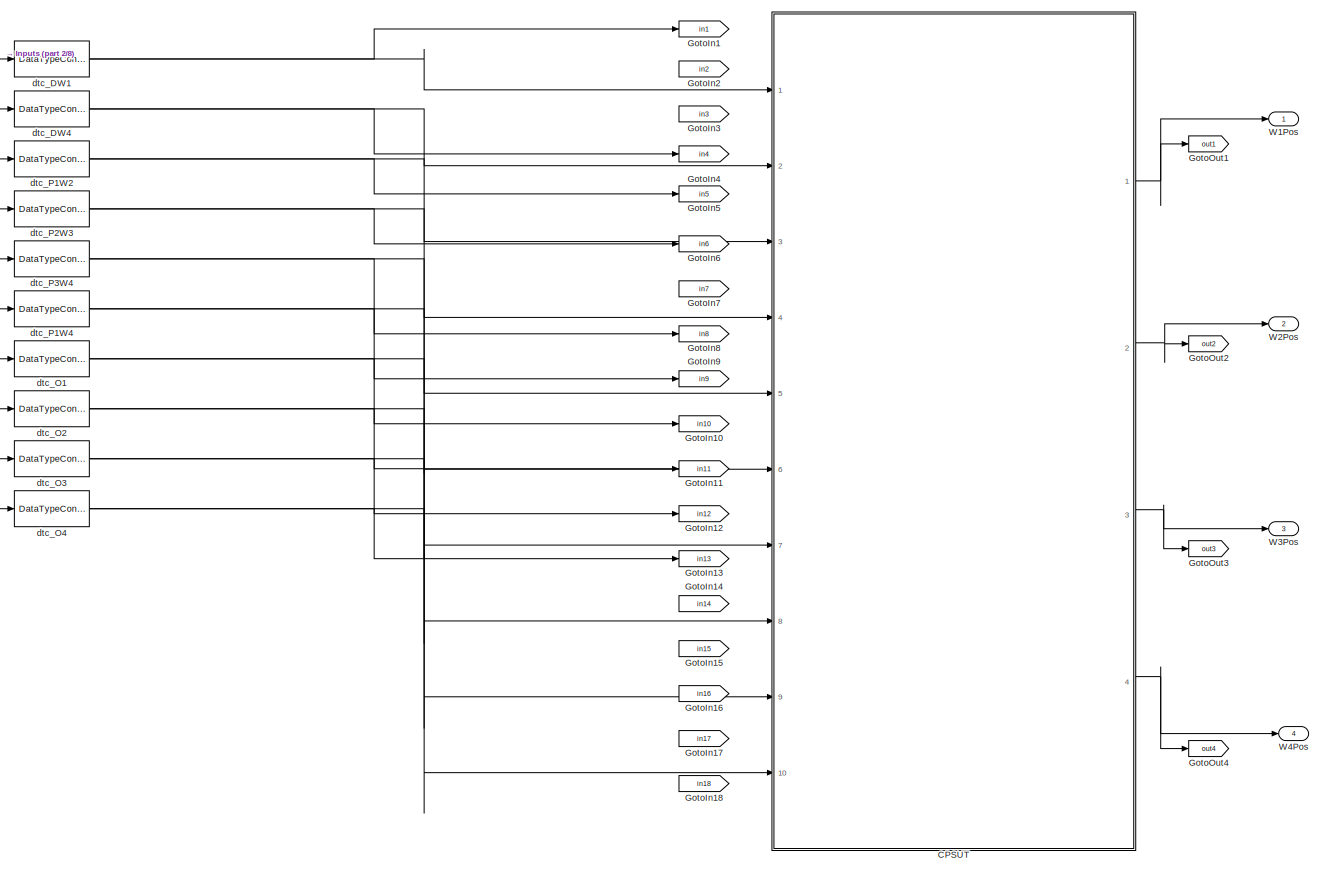
[diagram: root canvas - part 1/8, top left region]
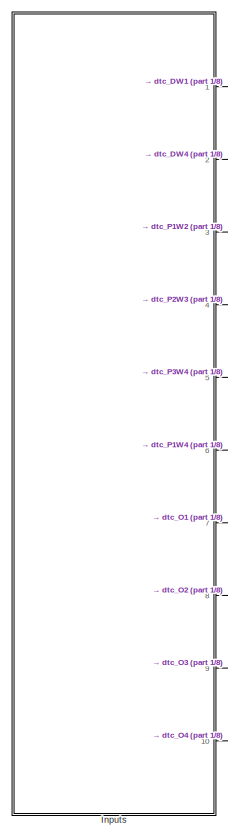
[diagram: root canvas - part 2/8, top left region]
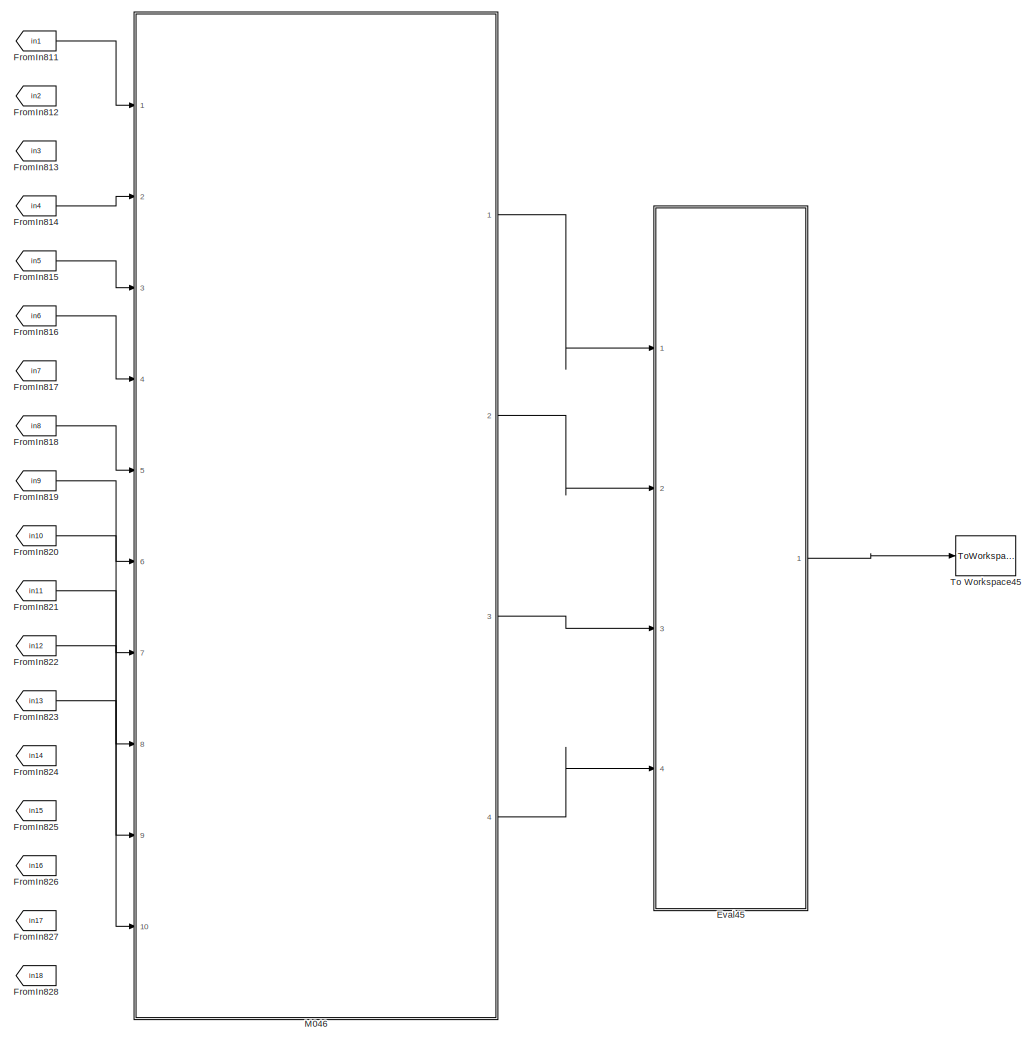
[diagram: root canvas - part 3/8, top right region]
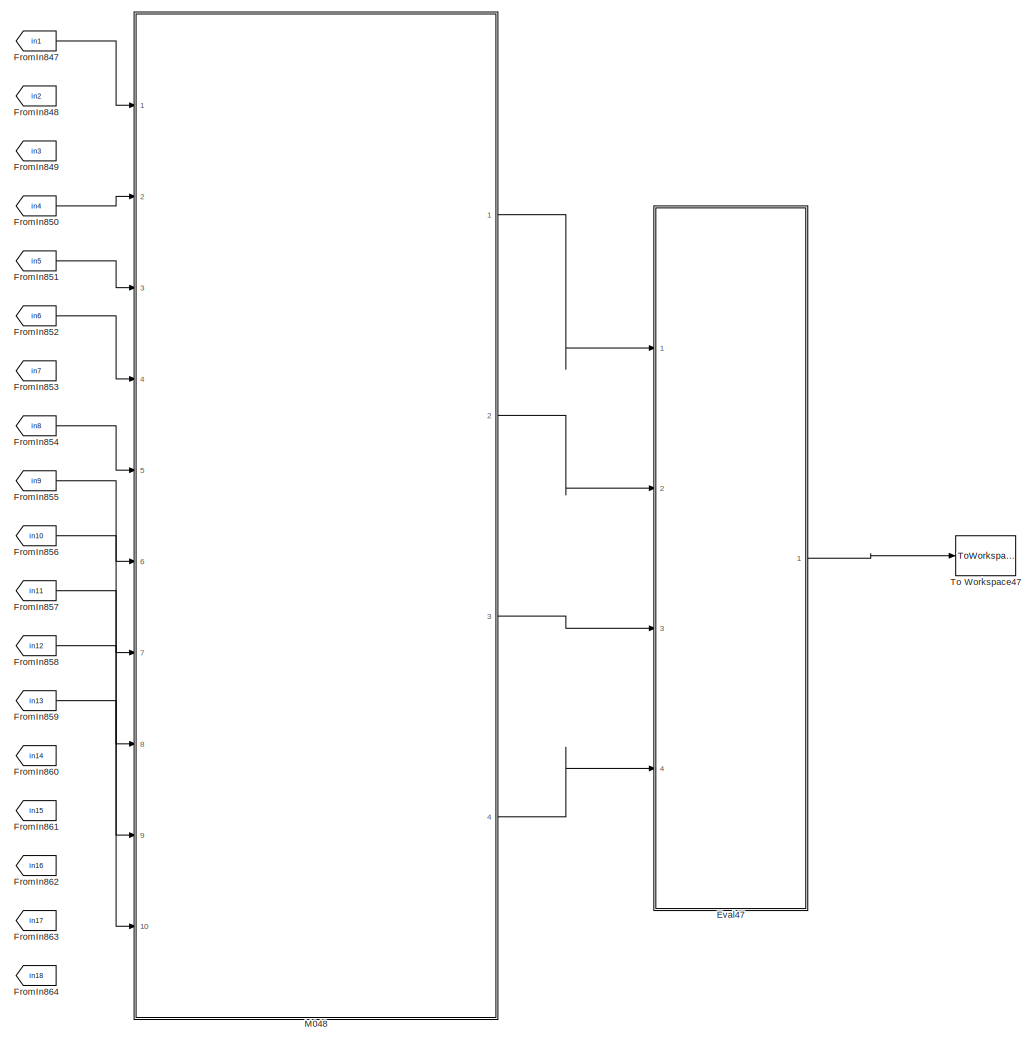
[diagram: root canvas - part 4/8, middle right region]
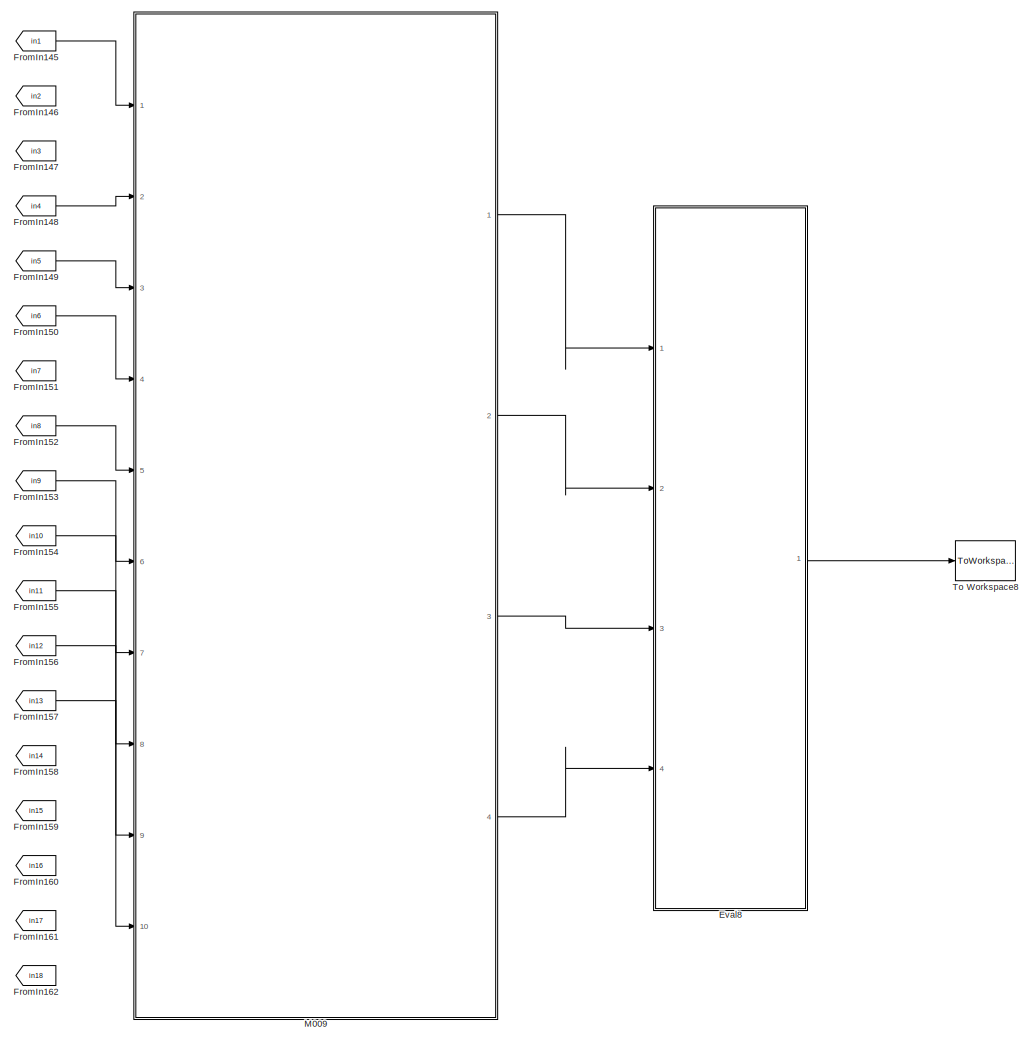
[diagram: root canvas - part 5/8, central region]
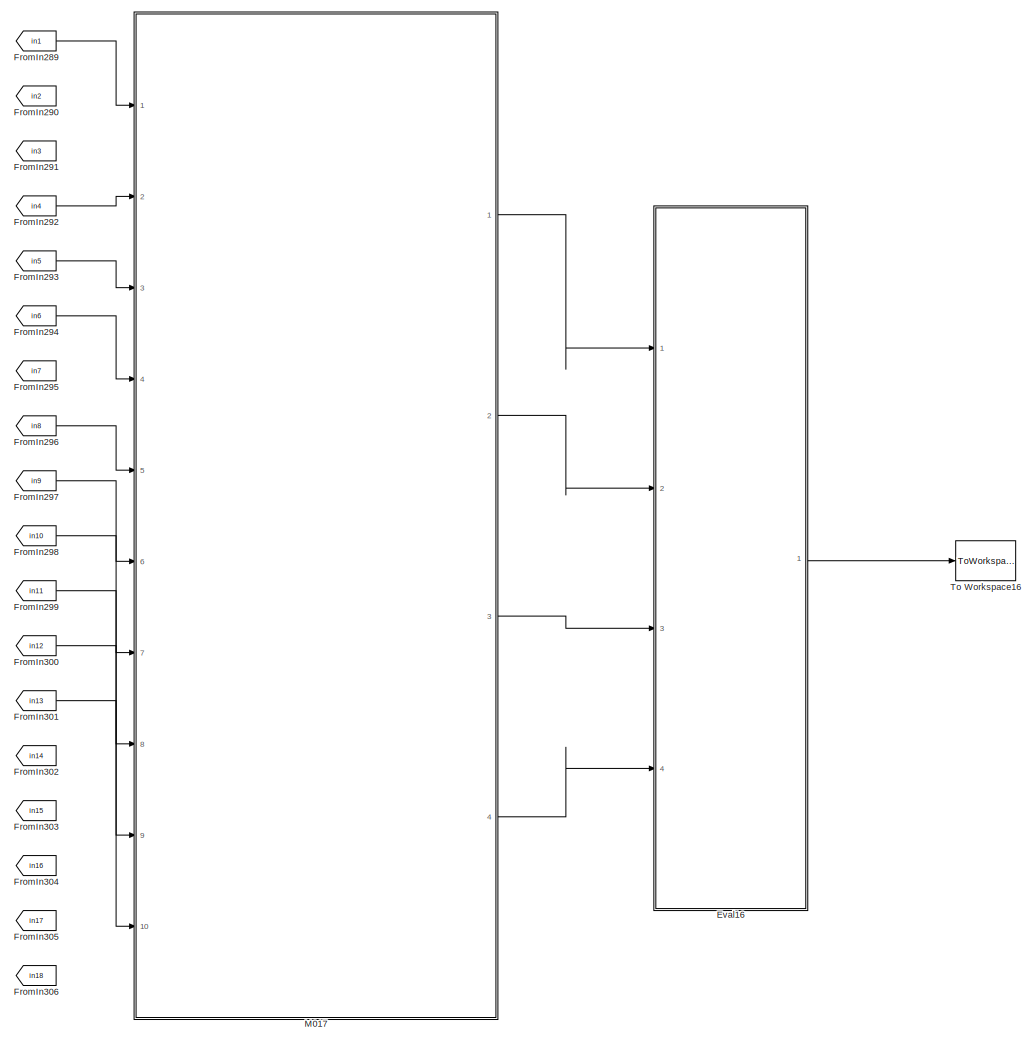
[diagram: root canvas - part 6/8, bottom center region]
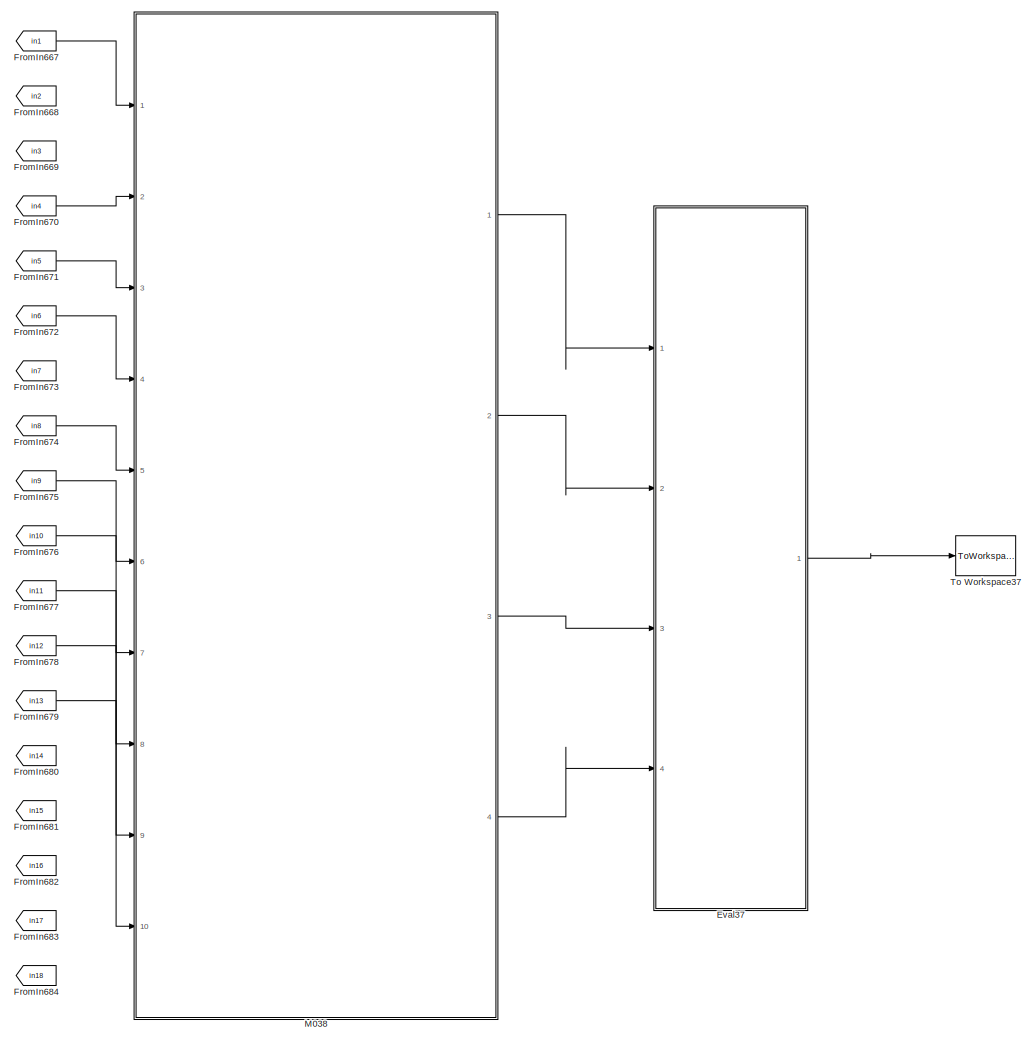
[diagram: root canvas - part 7/8, bottom center region]
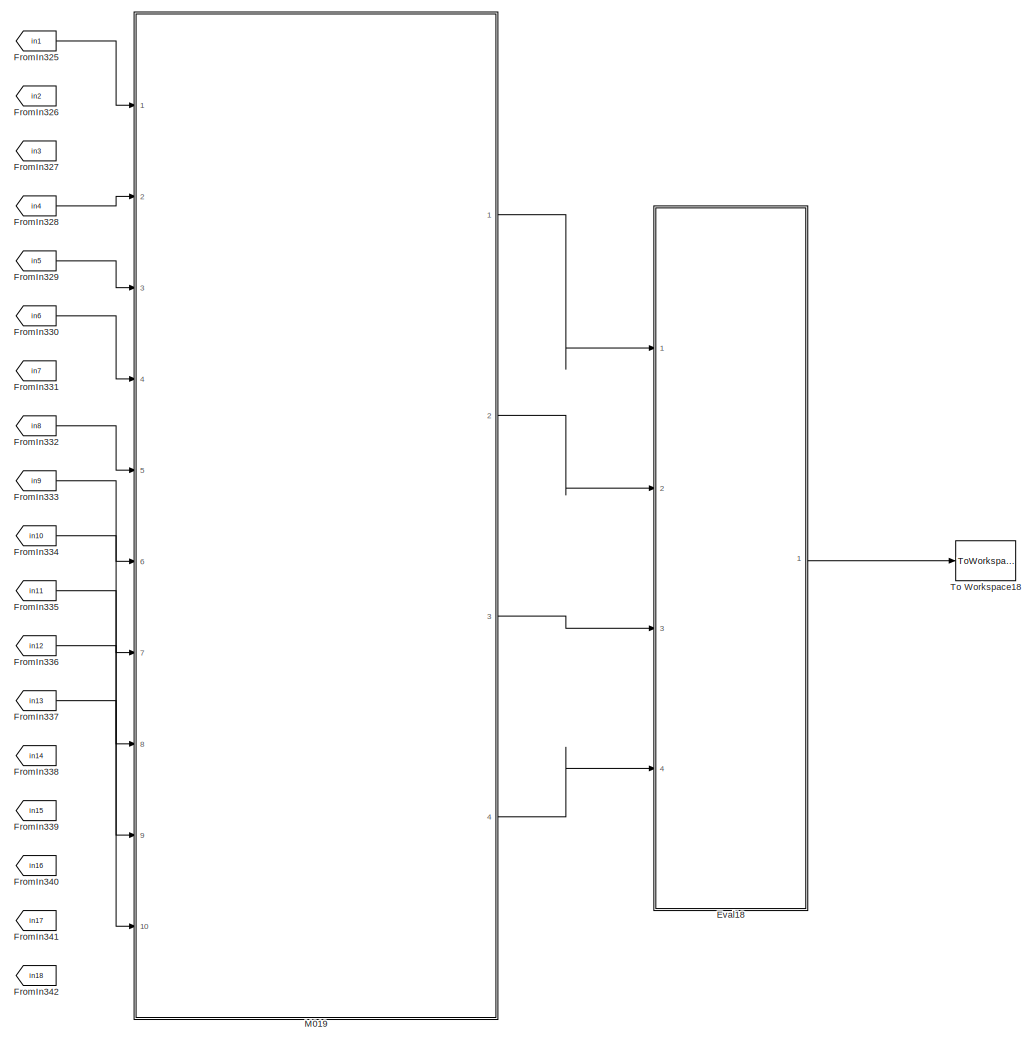
[diagram: root canvas - part 8/8, bottom center region]
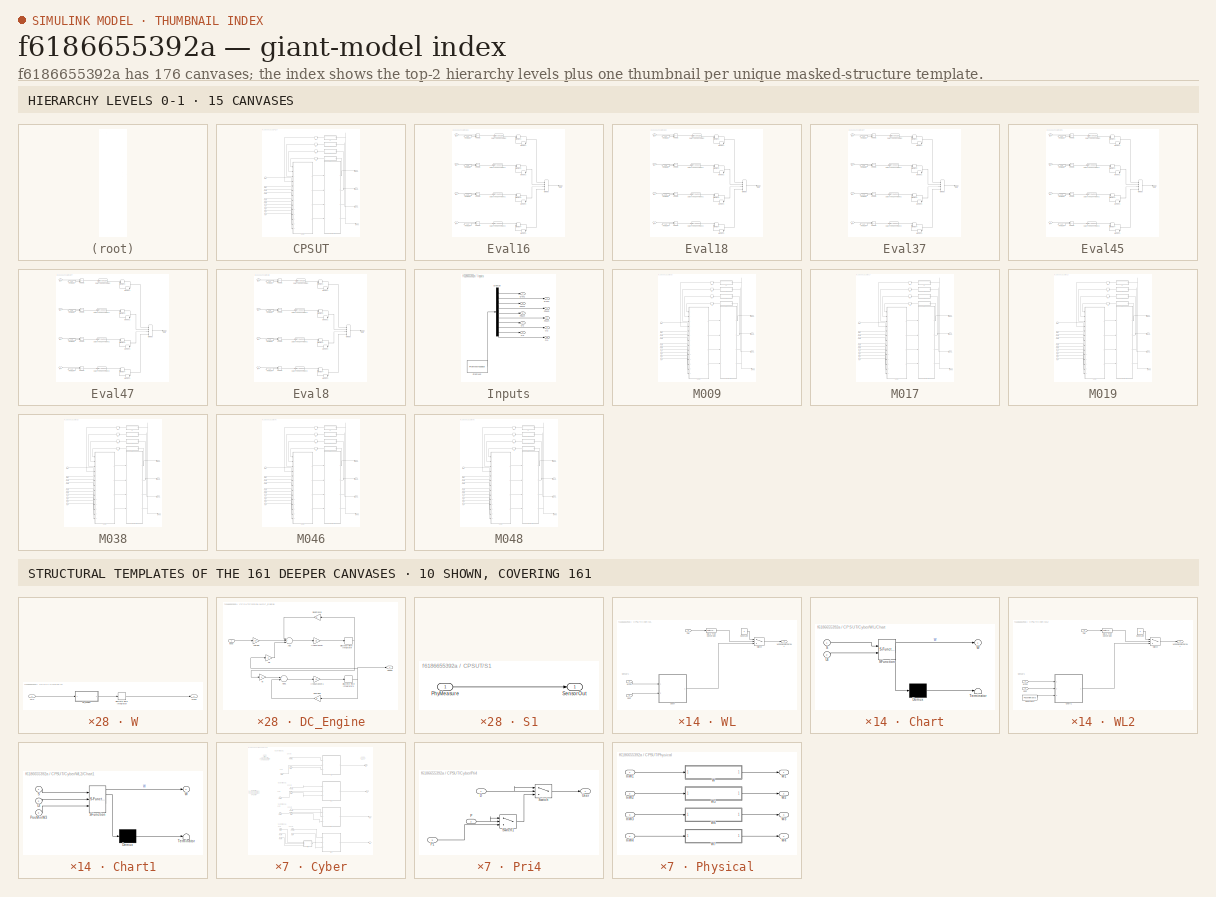
[diagram: thumbnail index - top-2 hierarchy levels (15 canvases) + 10 structural-template representatives of the remaining 161 canvases]
MODEL slx_f6186655392a
KIND model
CONFIG AbsTol = auto
CONFIG EnableMultiTasking = on
CONFIG FixedStep = auto
CONFIG MaxStep = auto
CONFIG MinStep = auto
CONFIG RelTol = 1e-3
CONFIG SampleTimeConstraint = Unconstrained
CONFIG Solver = ode3
CONFIG SolverName = ode3
CONFIG StartTime = 0.0
CONFIG StopTime = 10.0
BLOCK [SubSystem] CPSUT
  Ports = [10, 4]
  RequestExecContextInheritance = off
BLOCK [SubSystem] CPSUT/Cyber
  Ports = [14, 4]
  RequestExecContextInheritance = off
BLOCK [Inport] CPSUT/Cyber/DW1
  IconDisplay = Port number
  Port = 5
BLOCK [Inport] CPSUT/Cyber/DW4
  IconDisplay = Port number
  Port = 6
BLOCK [Inport] CPSUT/Cyber/OW1
  IconDisplay = Port number
  Port = 11
BLOCK [Inport] CPSUT/Cyber/OW2
  IconDisplay = Port number
  Port = 12
BLOCK [Inport] CPSUT/Cyber/OW3
  IconDisplay = Port number
  Port = 13
BLOCK [Inport] CPSUT/Cyber/OW4
  IconDisplay = Port number
  Port = 14
BLOCK [Inport] CPSUT/Cyber/P1W2
  IconDisplay = Port number
  Port = 7
BLOCK [Inport] CPSUT/Cyber/P1W4
  IconDisplay = Port number
  Port = 10
BLOCK [Inport] CPSUT/Cyber/P2W3
  IconDisplay = Port number
  Port = 8
BLOCK [Inport] CPSUT/Cyber/P3W4
  IconDisplay = Port number
  Port = 9
BLOCK [Inport] CPSUT/Cyber/PosW1
  IconDisplay = Port number
BLOCK [Inport] CPSUT/Cyber/PosW2
  IconDisplay = Port number
  Port = 2
BLOCK [Inport] CPSUT/Cyber/PosW3
  IconDisplay = Port number
  Port = 3
BLOCK [Inport] CPSUT/Cyber/PosW4
  IconDisplay = Port number
  Port = 4
BLOCK [SubSystem] CPSUT/Cyber/Pri4
  Ports = [3, 1]
  RequestExecContextInheritance = off
BLOCK [Inport] CPSUT/Cyber/Pri4/D
  IconDisplay = Port number
BLOCK [Inport] CPSUT/Cyber/Pri4/P
  IconDisplay = Port number
  Port = 2
BLOCK [Inport] CPSUT/Cyber/Pri4/P1
  IconDisplay = Port number
  Port = 3
BLOCK [Switch] CPSUT/Cyber/Pri4/Switch
  Criteria = u2 ~= 0
  InputSameDT = off
  SaturateOnIntegerOverflow = off
BLOCK [Switch] CPSUT/Cyber/Pri4/Switch1
  Criteria = u2 ~= 0
  InputSameDT = off
  SaturateOnIntegerOverflow = off
BLOCK [Outport] CPSUT/Cyber/Pri4/User
  IconDisplay = Port number
BLOCK [Outport] CPSUT/Cyber/W1
  IconDisplay = Port number
BLOCK [Outport] CPSUT/Cyber/W2
  IconDisplay = Port number
  Port = 2
BLOCK [Outport] CPSUT/Cyber/W3
  IconDisplay = Port number
  Port = 3
BLOCK [Outport] CPSUT/Cyber/W4
  IconDisplay = Port number
  Port = 4
BLOCK [SubSystem] CPSUT/Cyber/WL
  Ports = [3, 1]
  RequestExecContextInheritance = off
BLOCK [SubSystem] CPSUT/Cyber/WL/Chart
  ErrorFcn = Stateflow.Translate.translate
  PermitHierarchicalResolution = ExplicitOnly
  Ports = [2, 1]
  RequestExecContextInheritance = off
  SFBlockType = Chart
  TreatAsAtomicUnit = on
BLOCK [Demux] CPSUT/Cyber/WL/Chart/ Demux 
  Outputs = 1
  Ports = [1, 1]
BLOCK [S-Function] CPSUT/Cyber/WL/Chart/ SFunction 
  EnableBusSupport = off
  FunctionName = sf_sfun
  PortCounts = [2 2]
  Ports = [2, 2]
  SFcnIsStateOwnerBlock = off
  SFunctionDeploymentMode = off
  Tag = Stateflow S-Function c00017M_harness 1
BLOCK [Terminator] CPSUT/Cyber/WL/Chart/ Terminator 
BLOCK [Inport] CPSUT/Cyber/WL/Chart/S
  IconDisplay = Port number
BLOCK [Inport] CPSUT/Cyber/WL/Chart/UI
  IconDisplay = Port number
  Port = 2
BLOCK [Outport] CPSUT/Cyber/WL/Chart/W
  IconDisplay = Port number
BLOCK [Constant] CPSUT/Cyber/WL/Constant
  Value = -1
BLOCK [DataTypeConversion] CPSUT/Cyber/WL/Data Type Conversion
  RndMeth = Floor
  SaturateOnIntegerOverflow = off
BLOCK [Inport] CPSUT/Cyber/WL/OW
  IconDisplay = Port number
  Port = 3
BLOCK [Switch] CPSUT/Cyber/WL/Switch
  Criteria = u2 ~= 0
  InputSameDT = off
  SaturateOnIntegerOverflow = off
  Threshold = 1
  ZeroCross = off
BLOCK [Inport] CPSUT/Cyber/WL/User
  IconDisplay = Port number
  Port = 2
BLOCK [Inport] CPSUT/Cyber/WL/WPos
  IconDisplay = Port number
BLOCK [Outport] CPSUT/Cyber/WL/WindowLogicOutput
  IconDisplay = Port number
BLOCK [SubSystem] CPSUT/Cyber/WL1
  Ports = [3, 1]
  RequestExecContextInheritance = off
BLOCK [SubSystem] CPSUT/Cyber/WL1/Chart1
  ErrorFcn = Stateflow.Translate.translate
  PermitHierarchicalResolution = ExplicitOnly
  Ports = [2, 1]
  RequestExecContextInheritance = off
  SFBlockType = Chart
  TreatAsAtomicUnit = on
BLOCK [Demux] CPSUT/Cyber/WL1/Chart1/ Demux 
  Outputs = 1
  Ports = [1, 1]
BLOCK [S-Function] CPSUT/Cyber/WL1/Chart1/ SFunction 
  EnableBusSupport = off
  FunctionName = sf_sfun
  PortCounts = [2 2]
  Ports = [2, 2]
  SFcnIsStateOwnerBlock = off
  SFunctionDeploymentMode = off
  Tag = Stateflow S-Function c00017M_harness 3
BLOCK [Terminator] CPSUT/Cyber/WL1/Chart1/ Terminator 
BLOCK [Inport] CPSUT/Cyber/WL1/Chart1/S
  IconDisplay = Port number
BLOCK [Inport] CPSUT/Cyber/WL1/Chart1/UI
  IconDisplay = Port number
  Port = 2
BLOCK [Outport] CPSUT/Cyber/WL1/Chart1/W
  IconDisplay = Port number
BLOCK [Constant] CPSUT/Cyber/WL1/Constant
  Value = -1
BLOCK [DataTypeConversion] CPSUT/Cyber/WL1/Data Type Conversion
  RndMeth = Floor
  SaturateOnIntegerOverflow = off
BLOCK [Inport] CPSUT/Cyber/WL1/OW
  IconDisplay = Port number
  Port = 3
BLOCK [Switch] CPSUT/Cyber/WL1/Switch
  Criteria = u2 ~= 0
  InputSameDT = off
  SaturateOnIntegerOverflow = off
  Threshold = 1
  ZeroCross = off
BLOCK [Inport] CPSUT/Cyber/WL1/User
  IconDisplay = Port number
  Port = 2
BLOCK [Inport] CPSUT/Cyber/WL1/WPos
  IconDisplay = Port number
BLOCK [Outport] CPSUT/Cyber/WL1/WindowLogicOutput
  IconDisplay = Port number
BLOCK [SubSystem] CPSUT/Cyber/WL2
  Ports = [3, 1]
  RequestExecContextInheritance = off
BLOCK [SubSystem] CPSUT/Cyber/WL2/Chart1
  ErrorFcn = Stateflow.Translate.translate
  PermitHierarchicalResolution = ExplicitOnly
  Ports = [3, 1]
  RequestExecContextInheritance = off
  SFBlockType = Chart
  TreatAsAtomicUnit = on
BLOCK [Demux] CPSUT/Cyber/WL2/Chart1/ Demux 
  Outputs = 1
  Ports = [1, 1]
BLOCK [S-Function] CPSUT/Cyber/WL2/Chart1/ SFunction 
  EnableBusSupport = off
  FunctionName = sf_sfun
  PortCounts = [3 2]
  Ports = [3, 2]
  SFcnIsStateOwnerBlock = off
  SFunctionDeploymentMode = off
  Tag = Stateflow S-Function c00017M_harness 2
BLOCK [Terminator] CPSUT/Cyber/WL2/Chart1/ Terminator 
BLOCK [Inport] CPSUT/Cyber/WL2/Chart1/PosMinW3
  IconDisplay = Port number
  Port = 3
BLOCK [Inport] CPSUT/Cyber/WL2/Chart1/S
  IconDisplay = Port number
BLOCK [Inport] CPSUT/Cyber/WL2/Chart1/UI
  IconDisplay = Port number
  Port = 2
BLOCK [Outport] CPSUT/Cyber/WL2/Chart1/W
  IconDisplay = Port number
BLOCK [Constant] CPSUT/Cyber/WL2/Constant
  Value = -1
BLOCK [Constant] CPSUT/Cyber/WL2/Constant2
  Value = PosMinimaW3
BLOCK [DataTypeConversion] CPSUT/Cyber/WL2/Data Type Conversion
  RndMeth = Floor
  SaturateOnIntegerOverflow = off
BLOCK [Inport] CPSUT/Cyber/WL2/OW
  IconDisplay = Port number
  Port = 3
BLOCK [Switch] CPSUT/Cyber/WL2/Switch
  Criteria = u2 ~= 0
  InputSameDT = off
  SaturateOnIntegerOverflow = off
  Threshold = 1
  ZeroCross = off
BLOCK [Inport] CPSUT/Cyber/WL2/User
  IconDisplay = Port number
  Port = 2
BLOCK [Inport] CPSUT/Cyber/WL2/WPos
  IconDisplay = Port number
BLOCK [Outport] CPSUT/Cyber/WL2/WindowLogicOutput
  IconDisplay = Port number
BLOCK [SubSystem] CPSUT/Cyber/WL3
  Ports = [3, 1]
  RequestExecContextInheritance = off
BLOCK [SubSystem] CPSUT/Cyber/WL3/Chart2
  ErrorFcn = Stateflow.Translate.translate
  PermitHierarchicalResolution = ExplicitOnly
  Ports = [3, 1]
  RequestExecContextInheritance = off
  SFBlockType = Chart
  TreatAsAtomicUnit = on
BLOCK [Demux] CPSUT/Cyber/WL3/Chart2/ Demux 
  Outputs = 1
  Ports = [1, 1]
BLOCK [S-Function] CPSUT/Cyber/WL3/Chart2/ SFunction 
  EnableBusSupport = off
  FunctionName = sf_sfun
  PortCounts = [3 2]
  Ports = [3, 2]
  SFcnIsStateOwnerBlock = off
  SFunctionDeploymentMode = off
  Tag = Stateflow S-Function c00017M_harness 4
BLOCK [Terminator] CPSUT/Cyber/WL3/Chart2/ Terminator 
BLOCK [Inport] CPSUT/Cyber/WL3/Chart2/PosMinW4
  IconDisplay = Port number
  Port = 3
BLOCK [Inport] CPSUT/Cyber/WL3/Chart2/S
  IconDisplay = Port number
BLOCK [Inport] CPSUT/Cyber/WL3/Chart2/UI
  IconDisplay = Port number
  Port = 2
BLOCK [Outport] CPSUT/Cyber/WL3/Chart2/W
  IconDisplay = Port number
BLOCK [Constant] CPSUT/Cyber/WL3/Constant
  Value = -1
BLOCK [Constant] CPSUT/Cyber/WL3/Constant2
  Value = PosMinimaW4
BLOCK [DataTypeConversion] CPSUT/Cyber/WL3/Data Type Conversion
  RndMeth = Floor
  SaturateOnIntegerOverflow = off
BLOCK [Inport] CPSUT/Cyber/WL3/OW
  IconDisplay = Port number
  Port = 3
BLOCK [Switch] CPSUT/Cyber/WL3/Switch
  Criteria = u2 ~= 0
  InputSameDT = off
  SaturateOnIntegerOverflow = off
  Threshold = 1
  ZeroCross = off
BLOCK [Inport] CPSUT/Cyber/WL3/User
  IconDisplay = Port number
  Port = 2
BLOCK [Inport] CPSUT/Cyber/WL3/WPos
  IconDisplay = Port number
BLOCK [Outport] CPSUT/Cyber/WL3/WindowLogicOutput
  IconDisplay = Port number
BLOCK [Inport] CPSUT/DW1
  IconDisplay = Port number
  OutDataTypeStr = int8
  OutMax = 4
  OutMin = 0
BLOCK [Inport] CPSUT/DW4
  IconDisplay = Port number
  OutDataTypeStr = int8
  OutMax = 4
  OutMin = 0
  Port = 2
BLOCK [Memory] CPSUT/M
BLOCK [Memory] CPSUT/M1
BLOCK [Memory] CPSUT/M2
BLOCK [Memory] CPSUT/M3
BLOCK [Inport] CPSUT/O1
  IconDisplay = Port number
  OutDataTypeStr = boolean
  Port = 7
BLOCK [Inport] CPSUT/O2
  IconDisplay = Port number
  OutDataTypeStr = boolean
  Port = 8
BLOCK [Inport] CPSUT/O3
  IconDisplay = Port number
  OutDataTypeStr = boolean
  Port = 9
BLOCK [Inport] CPSUT/O4
  IconDisplay = Port number
  OutDataTypeStr = boolean
  Port = 10
BLOCK [Inport] CPSUT/P1W2
  IconDisplay = Port number
  OutDataTypeStr = int8
  OutMax = 4
  OutMin = 0
  Port = 3
BLOCK [Inport] CPSUT/P1W4
  IconDisplay = Port number
  OutDataTypeStr = int8
  OutMax = 4
  OutMin = 0
  Port = 6
BLOCK [Inport] CPSUT/P2W3
  IconDisplay = Port number
  OutDataTypeStr = int8
  OutMax = 4
  OutMin = 0
  Port = 4
BLOCK [Inport] CPSUT/P3W4
  IconDisplay = Port number
  OutDataTypeStr = int8
  OutMax = 4
  OutMin = 0
  Port = 5
BLOCK [SubSystem] CPSUT/Physical
  Ports = [4, 4]
  RequestExecContextInheritance = off
BLOCK [Inport] CPSUT/Physical/InW1
  IconDisplay = Port number
BLOCK [Inport] CPSUT/Physical/InW2
  IconDisplay = Port number
  Port = 2
BLOCK [Inport] CPSUT/Physical/InW3
  IconDisplay = Port number
  Port = 3
BLOCK [Inport] CPSUT/Physical/InW4
  IconDisplay = Port number
  Port = 4
BLOCK [SubSystem] CPSUT/Physical/W
  Ports = [1, 1]
  RequestExecContextInheritance = off
BLOCK [SubSystem] CPSUT/Physical/W/DC_Engine
  Ports = [1, 1]
  RequestExecContextInheritance = off
BLOCK [Gain] CPSUT/Physical/W/DC_Engine/(Inductance)
  Gain = 1/L
  OutDataTypeStr = Inherit: Inherit via internal rule
  ParamDataTypeStr = Inherit: Inherit via internal rule
  SaturateOnIntegerOverflow = off
BLOCK [Gain] CPSUT/Physical/W/DC_Engine/(Inductance)1
  Gain = 1/J
  OutDataTypeStr = Inherit: Inherit via internal rule
  ParamDataTypeStr = Inherit: Inherit via internal rule
  SaturateOnIntegerOverflow = off
BLOCK [Sum] CPSUT/Physical/W/DC_Engine/Add
  InputSameDT = off
  Inputs = -+-
  OutDataTypeStr = Inherit: Inherit via internal rule
  Ports = [3, 1]
  SaturateOnIntegerOverflow = off
BLOCK [Sum] CPSUT/Physical/W/DC_Engine/Add1
  InputSameDT = off
  Inputs = +-
  OutDataTypeStr = Inherit: Inherit via internal rule
  Ports = [2, 1]
  SaturateOnIntegerOverflow = off
BLOCK [Gain] CPSUT/Physical/W/DC_Engine/Damping
  Gain = b
  OutDataTypeStr = Inherit: Inherit via internal rule
  ParamDataTypeStr = Inherit: Inherit via internal rule
  SaturateOnIntegerOverflow = off
BLOCK [DiscreteIntegrator] CPSUT/Physical/W/DC_Engine/Discrete-Time Integrator
  ICPrevOutput = DiscIntNeverNeededParam
  ICPrevScaledInput = DiscIntNeverNeededParam
  Ports = [1, 1]
  SampleTime = -1
BLOCK [DiscreteIntegrator] CPSUT/Physical/W/DC_Engine/Discrete-Time Integrator1
  ICPrevOutput = DiscIntNeverNeededParam
  ICPrevScaledInput = DiscIntNeverNeededParam
  Ports = [1, 1]
  SampleTime = -1
BLOCK [Gain] CPSUT/Physical/W/DC_Engine/Ke
  Gain = K
  OutDataTypeStr = Inherit: Inherit via internal rule
  ParamDataTypeStr = Inherit: Inherit via internal rule
  SaturateOnIntegerOverflow = off
BLOCK [Gain] CPSUT/Physical/W/DC_Engine/Kt
  Gain = K
  OutDataTypeStr = Inherit: Inherit via internal rule
  ParamDataTypeStr = Inherit: Inherit via internal rule
  SaturateOnIntegerOverflow = off
BLOCK [Gain] CPSUT/Physical/W/DC_Engine/Resistance
  Gain = R
  OutDataTypeStr = Inherit: Inherit via internal rule
  ParamDataTypeStr = Inherit: Inherit via internal rule
  SaturateOnIntegerOverflow = off
BLOCK [Outport] CPSUT/Physical/W/DC_Engine/Speed
  IconDisplay = Port number
BLOCK [Gain] CPSUT/Physical/W/DC_Engine/Voltage
  Gain = 10
  OutDataTypeStr = Inherit: Inherit via internal rule
  ParamDataTypeStr = Inherit: Inherit via internal rule
  SaturateOnIntegerOverflow = off
BLOCK [Inport] CPSUT/Physical/W/DC_Engine/input
  IconDisplay = Port number
BLOCK [DiscreteIntegrator] CPSUT/Physical/W/Discrete-Time Integrator
  ICPrevOutput = DiscIntNeverNeededParam
  ICPrevScaledInput = DiscIntNeverNeededParam
  InitialCondition = 5
  LimitOutput = on
  LowerSaturationLimit = 0
  Ports = [1, 1]
  SampleTime = -1
  UpperSaturationLimit = 5
BLOCK [Inport] CPSUT/Physical/W/WIn
  IconDisplay = Port number
BLOCK [Outport] CPSUT/Physical/W/WPos
  IconDisplay = Port number
BLOCK [Outport] CPSUT/Physical/W1
  IconDisplay = Port number
BLOCK [Outport] CPSUT/Physical/W2
  IconDisplay = Port number
  Port = 2
BLOCK [Outport] CPSUT/Physical/W3
  IconDisplay = Port number
  Port = 3
BLOCK [Outport] CPSUT/Physical/W4
  IconDisplay = Port number
  Port = 4
BLOCK [SubSystem] CPSUT/Physical/W5
  Ports = [1, 1]
  RequestExecContextInheritance = off
BLOCK [SubSystem] CPSUT/Physical/W5/DC_Engine
  Ports = [1, 1]
  RequestExecContextInheritance = off
BLOCK [Gain] CPSUT/Physical/W5/DC_Engine/(Inductance)
  Gain = 1/L
  OutDataTypeStr = Inherit: Inherit via internal rule
  ParamDataTypeStr = Inherit: Inherit via internal rule
  SaturateOnIntegerOverflow = off
BLOCK [Gain] CPSUT/Physical/W5/DC_Engine/(Inductance)1
  Gain = 1/J
  OutDataTypeStr = Inherit: Inherit via internal rule
  ParamDataTypeStr = Inherit: Inherit via internal rule
  SaturateOnIntegerOverflow = off
BLOCK [Sum] CPSUT/Physical/W5/DC_Engine/Add
  InputSameDT = off
  Inputs = -+-
  OutDataTypeStr = Inherit: Inherit via internal rule
  Ports = [3, 1]
  SaturateOnIntegerOverflow = off
BLOCK [Sum] CPSUT/Physical/W5/DC_Engine/Add1
  InputSameDT = off
  Inputs = +-
  OutDataTypeStr = Inherit: Inherit via internal rule
  Ports = [2, 1]
  SaturateOnIntegerOverflow = off
BLOCK [Gain] CPSUT/Physical/W5/DC_Engine/Damping
  Gain = b
  OutDataTypeStr = Inherit: Inherit via internal rule
  ParamDataTypeStr = Inherit: Inherit via internal rule
  SaturateOnIntegerOverflow = off
BLOCK [DiscreteIntegrator] CPSUT/Physical/W5/DC_Engine/Discrete-Time Integrator
  ICPrevOutput = DiscIntNeverNeededParam
  ICPrevScaledInput = DiscIntNeverNeededParam
  Ports = [1, 1]
  SampleTime = -1
BLOCK [DiscreteIntegrator] CPSUT/Physical/W5/DC_Engine/Discrete-Time Integrator1
  ICPrevOutput = DiscIntNeverNeededParam
  ICPrevScaledInput = DiscIntNeverNeededParam
  Ports = [1, 1]
  SampleTime = -1
BLOCK [Gain] CPSUT/Physical/W5/DC_Engine/Ke
  Gain = K
  OutDataTypeStr = Inherit: Inherit via internal rule
  ParamDataTypeStr = Inherit: Inherit via internal rule
  SaturateOnIntegerOverflow = off
BLOCK [Gain] CPSUT/Physical/W5/DC_Engine/Kt
  Gain = K
  OutDataTypeStr = Inherit: Inherit via internal rule
  ParamDataTypeStr = Inherit: Inherit via internal rule
  SaturateOnIntegerOverflow = off
BLOCK [Gain] CPSUT/Physical/W5/DC_Engine/Resistance
  Gain = R
  OutDataTypeStr = Inherit: Inherit via internal rule
  ParamDataTypeStr = Inherit: Inherit via internal rule
  SaturateOnIntegerOverflow = off
BLOCK [Outport] CPSUT/Physical/W5/DC_Engine/Speed
  IconDisplay = Port number
BLOCK [Gain] CPSUT/Physical/W5/DC_Engine/Voltage
  Gain = 10
  OutDataTypeStr = Inherit: Inherit via internal rule
  ParamDataTypeStr = Inherit: Inherit via internal rule
  SaturateOnIntegerOverflow = off
BLOCK [Inport] CPSUT/Physical/W5/DC_Engine/input
  IconDisplay = Port number
BLOCK [DiscreteIntegrator] CPSUT/Physical/W5/Discrete-Time Integrator
  ICPrevOutput = DiscIntNeverNeededParam
  ICPrevScaledInput = DiscIntNeverNeededParam
  InitialCondition = 5
  LimitOutput = on
  LowerSaturationLimit = 0
  Ports = [1, 1]
  SampleTime = -1
  UpperSaturationLimit = 5
BLOCK [Inport] CPSUT/Physical/W5/WIn
  IconDisplay = Port number
BLOCK [Outport] CPSUT/Physical/W5/WPos
  IconDisplay = Port number
BLOCK [SubSystem] CPSUT/Physical/W6
  Ports = [1, 1]
  RequestExecContextInheritance = off
BLOCK [SubSystem] CPSUT/Physical/W6/DC_Engine
  Ports = [1, 1]
  RequestExecContextInheritance = off
BLOCK [Gain] CPSUT/Physical/W6/DC_Engine/(Inductance)
  Gain = 1/L
  OutDataTypeStr = Inherit: Inherit via internal rule
  ParamDataTypeStr = Inherit: Inherit via internal rule
  SaturateOnIntegerOverflow = off
BLOCK [Gain] CPSUT/Physical/W6/DC_Engine/(Inductance)1
  Gain = 1/J
  OutDataTypeStr = Inherit: Inherit via internal rule
  ParamDataTypeStr = Inherit: Inherit via internal rule
  SaturateOnIntegerOverflow = off
BLOCK [Sum] CPSUT/Physical/W6/DC_Engine/Add
  InputSameDT = off
  Inputs = -+-
  OutDataTypeStr = Inherit: Inherit via internal rule
  Ports = [3, 1]
  SaturateOnIntegerOverflow = off
BLOCK [Sum] CPSUT/Physical/W6/DC_Engine/Add1
  InputSameDT = off
  Inputs = +-
  OutDataTypeStr = Inherit: Inherit via internal rule
  Ports = [2, 1]
  SaturateOnIntegerOverflow = off
BLOCK [Gain] CPSUT/Physical/W6/DC_Engine/Damping
  Gain = b
  OutDataTypeStr = Inherit: Inherit via internal rule
  ParamDataTypeStr = Inherit: Inherit via internal rule
  SaturateOnIntegerOverflow = off
BLOCK [DiscreteIntegrator] CPSUT/Physical/W6/DC_Engine/Discrete-Time Integrator
  ICPrevOutput = DiscIntNeverNeededParam
  ICPrevScaledInput = DiscIntNeverNeededParam
  Ports = [1, 1]
  SampleTime = -1
BLOCK [DiscreteIntegrator] CPSUT/Physical/W6/DC_Engine/Discrete-Time Integrator1
  ICPrevOutput = DiscIntNeverNeededParam
  ICPrevScaledInput = DiscIntNeverNeededParam
  Ports = [1, 1]
  SampleTime = -1
BLOCK [Gain] CPSUT/Physical/W6/DC_Engine/Ke
  Gain = K
  OutDataTypeStr = Inherit: Inherit via internal rule
  ParamDataTypeStr = Inherit: Inherit via internal rule
  SaturateOnIntegerOverflow = off
BLOCK [Gain] CPSUT/Physical/W6/DC_Engine/Kt
  Gain = K
  OutDataTypeStr = Inherit: Inherit via internal rule
  ParamDataTypeStr = Inherit: Inherit via internal rule
  SaturateOnIntegerOverflow = off
BLOCK [Gain] CPSUT/Physical/W6/DC_Engine/Resistance
  Gain = R
  OutDataTypeStr = Inherit: Inherit via internal rule
  ParamDataTypeStr = Inherit: Inherit via internal rule
  SaturateOnIntegerOverflow = off
BLOCK [Outport] CPSUT/Physical/W6/DC_Engine/Speed
  IconDisplay = Port number
BLOCK [Gain] CPSUT/Physical/W6/DC_Engine/Voltage
  Gain = 10
  OutDataTypeStr = Inherit: Inherit via internal rule
  ParamDataTypeStr = Inherit: Inherit via internal rule
  SaturateOnIntegerOverflow = off
BLOCK [Inport] CPSUT/Physical/W6/DC_Engine/input
  IconDisplay = Port number
BLOCK [DiscreteIntegrator] CPSUT/Physical/W6/Discrete-Time Integrator
  ICPrevOutput = DiscIntNeverNeededParam
  ICPrevScaledInput = DiscIntNeverNeededParam
  InitialCondition = 5
  LimitOutput = on
  LowerSaturationLimit = PosMinimaW3
  Ports = [1, 1]
  SampleTime = -1
  UpperSaturationLimit = 5
BLOCK [Inport] CPSUT/Physical/W6/WIn
  IconDisplay = Port number
BLOCK [Outport] CPSUT/Physical/W6/WPos
  IconDisplay = Port number
BLOCK [SubSystem] CPSUT/Physical/W7
  Ports = [1, 1]
  RequestExecContextInheritance = off
BLOCK [SubSystem] CPSUT/Physical/W7/DC_Engine
  Ports = [1, 1]
  RequestExecContextInheritance = off
BLOCK [Gain] CPSUT/Physical/W7/DC_Engine/(Inductance)
  Gain = 1/L
  OutDataTypeStr = Inherit: Inherit via internal rule
  ParamDataTypeStr = Inherit: Inherit via internal rule
  SaturateOnIntegerOverflow = off
BLOCK [Gain] CPSUT/Physical/W7/DC_Engine/(Inductance)1
  Gain = 1/J
  OutDataTypeStr = Inherit: Inherit via internal rule
  ParamDataTypeStr = Inherit: Inherit via internal rule
  SaturateOnIntegerOverflow = off
BLOCK [Sum] CPSUT/Physical/W7/DC_Engine/Add
  InputSameDT = off
  Inputs = -+-
  OutDataTypeStr = Inherit: Inherit via internal rule
  Ports = [3, 1]
  SaturateOnIntegerOverflow = off
BLOCK [Sum] CPSUT/Physical/W7/DC_Engine/Add1
  InputSameDT = off
  Inputs = +-
  OutDataTypeStr = Inherit: Inherit via internal rule
  Ports = [2, 1]
  SaturateOnIntegerOverflow = off
BLOCK [Gain] CPSUT/Physical/W7/DC_Engine/Damping
  Gain = b
  OutDataTypeStr = Inherit: Inherit via internal rule
  ParamDataTypeStr = Inherit: Inherit via internal rule
  SaturateOnIntegerOverflow = off
BLOCK [DiscreteIntegrator] CPSUT/Physical/W7/DC_Engine/Discrete-Time Integrator
  ICPrevOutput = DiscIntNeverNeededParam
  ICPrevScaledInput = DiscIntNeverNeededParam
  Ports = [1, 1]
  SampleTime = -1
BLOCK [DiscreteIntegrator] CPSUT/Physical/W7/DC_Engine/Discrete-Time Integrator1
  ICPrevOutput = DiscIntNeverNeededParam
  ICPrevScaledInput = DiscIntNeverNeededParam
  Ports = [1, 1]
  SampleTime = -1
BLOCK [Gain] CPSUT/Physical/W7/DC_Engine/Ke
  Gain = K
  OutDataTypeStr = Inherit: Inherit via internal rule
  ParamDataTypeStr = Inherit: Inherit via internal rule
  SaturateOnIntegerOverflow = off
BLOCK [Gain] CPSUT/Physical/W7/DC_Engine/Kt
  Gain = K
  OutDataTypeStr = Inherit: Inherit via internal rule
  ParamDataTypeStr = Inherit: Inherit via internal rule
  SaturateOnIntegerOverflow = off
BLOCK [Gain] CPSUT/Physical/W7/DC_Engine/Resistance
  Gain = R
  OutDataTypeStr = Inherit: Inherit via internal rule
  ParamDataTypeStr = Inherit: Inherit via internal rule
  SaturateOnIntegerOverflow = off
BLOCK [Outport] CPSUT/Physical/W7/DC_Engine/Speed
  IconDisplay = Port number
BLOCK [Gain] CPSUT/Physical/W7/DC_Engine/Voltage
  Gain = 10
  OutDataTypeStr = Inherit: Inherit via internal rule
  ParamDataTypeStr = Inherit: Inherit via internal rule
  SaturateOnIntegerOverflow = off
BLOCK [Inport] CPSUT/Physical/W7/DC_Engine/input
  IconDisplay = Port number
BLOCK [DiscreteIntegrator] CPSUT/Physical/W7/Discrete-Time Integrator
  ICPrevOutput = DiscIntNeverNeededParam
  ICPrevScaledInput = DiscIntNeverNeededParam
  InitialCondition = 5
  LimitOutput = on
  LowerSaturationLimit = PosMinimaW4
  Ports = [1, 1]
  SampleTime = -1
  UpperSaturationLimit = 5
BLOCK [Inport] CPSUT/Physical/W7/WIn
  IconDisplay = Port number
BLOCK [Outport] CPSUT/Physical/W7/WPos
  IconDisplay = Port number
BLOCK [SubSystem] CPSUT/S1
  Ports = [1, 1]
  RequestExecContextInheritance = off
BLOCK [Inport] CPSUT/S1/PhyMeasure
  IconDisplay = Port number
BLOCK [Outport] CPSUT/S1/SensorOut
  IconDisplay = Port number
BLOCK [SubSystem] CPSUT/S2
  Ports = [1, 1]
  RequestExecContextInheritance = off
BLOCK [Inport] CPSUT/S2/PhyMeasure
  IconDisplay = Port number
BLOCK [Outport] CPSUT/S2/SensorOut
  IconDisplay = Port number
BLOCK [SubSystem] CPSUT/S3
  Ports = [1, 1]
  RequestExecContextInheritance = off
BLOCK [Inport] CPSUT/S3/PhyMeasure
  IconDisplay = Port number
BLOCK [Outport] CPSUT/S3/SensorOut
  IconDisplay = Port number
BLOCK [SubSystem] CPSUT/S4
  Ports = [1, 1]
  RequestExecContextInheritance = off
BLOCK [Inport] CPSUT/S4/PhyMeasure
  IconDisplay = Port number
BLOCK [Outport] CPSUT/S4/SensorOut
  IconDisplay = Port number
BLOCK [Outport] CPSUT/W1Pos
  IconDisplay = Port number
BLOCK [Outport] CPSUT/W2Pos
  IconDisplay = Port number
  Port = 2
BLOCK [Outport] CPSUT/W3Pos
  IconDisplay = Port number
  Port = 3
BLOCK [Outport] CPSUT/W4Pos
  IconDisplay = Port number
  Port = 4
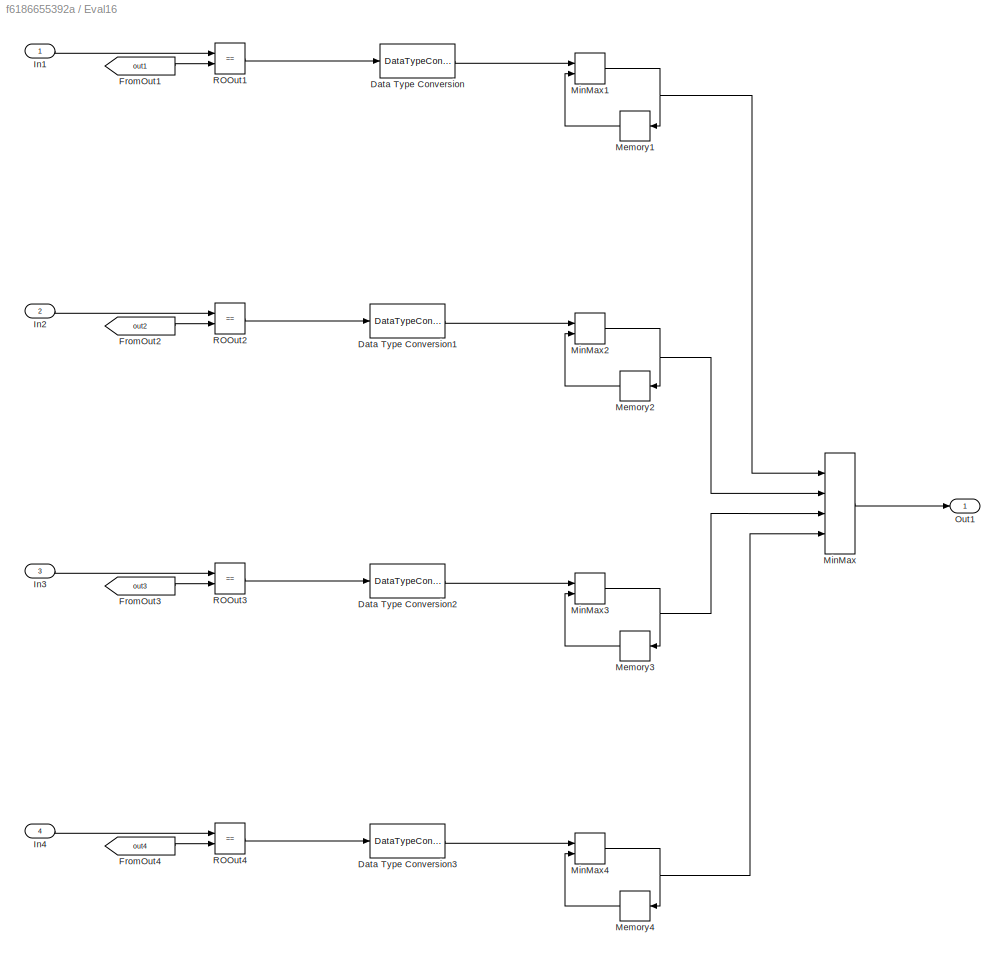
BLOCK [SubSystem] Eval16
  Ports = [4, 1]
  RequestExecContextInheritance = off
BLOCK [DataTypeConversion] Eval16/Data Type Conversion
  RndMeth = Floor
  SaturateOnIntegerOverflow = off
BLOCK [DataTypeConversion] Eval16/Data Type Conversion1
  RndMeth = Floor
  SaturateOnIntegerOverflow = off
BLOCK [DataTypeConversion] Eval16/Data Type Conversion2
  RndMeth = Floor
  SaturateOnIntegerOverflow = off
BLOCK [DataTypeConversion] Eval16/Data Type Conversion3
  RndMeth = Floor
  SaturateOnIntegerOverflow = off
BLOCK [From] Eval16/FromOut1
  GotoTag = out1
BLOCK [From] Eval16/FromOut2
  GotoTag = out2
BLOCK [From] Eval16/FromOut3
  GotoTag = out3
BLOCK [From] Eval16/FromOut4
  GotoTag = out4
BLOCK [Inport] Eval16/In1
  IconDisplay = Port number
BLOCK [Inport] Eval16/In2
  IconDisplay = Port number
  Port = 2
BLOCK [Inport] Eval16/In3
  IconDisplay = Port number
  Port = 3
BLOCK [Inport] Eval16/In4
  IconDisplay = Port number
  Port = 4
BLOCK [Memory] Eval16/Memory1
  InitialCondition = 1
BLOCK [Memory] Eval16/Memory2
  InitialCondition = 1
BLOCK [Memory] Eval16/Memory3
  InitialCondition = 1
BLOCK [Memory] Eval16/Memory4
  InitialCondition = 1
BLOCK [MinMax] Eval16/MinMax
  InputSameDT = off
  Inputs = 4
  Ports = [4, 1]
  SaturateOnIntegerOverflow = off
BLOCK [MinMax] Eval16/MinMax1
  InputSameDT = off
  Inputs = 2
  Ports = [2, 1]
  SaturateOnIntegerOverflow = off
BLOCK [MinMax] Eval16/MinMax2
  InputSameDT = off
  Inputs = 2
  Ports = [2, 1]
  SaturateOnIntegerOverflow = off
BLOCK [MinMax] Eval16/MinMax3
  InputSameDT = off
  Inputs = 2
  Ports = [2, 1]
  SaturateOnIntegerOverflow = off
BLOCK [MinMax] Eval16/MinMax4
  InputSameDT = off
  Inputs = 2
  Ports = [2, 1]
  SaturateOnIntegerOverflow = off
BLOCK [Outport] Eval16/Out1
  IconDisplay = Port number
BLOCK [RelationalOperator] Eval16/ROOut1
  InputSameDT = off
  Operator = ==
  OutDataTypeStr = boolean
  Ports = [2, 1]
  RndMeth = Simplest
BLOCK [RelationalOperator] Eval16/ROOut2
  InputSameDT = off
  Operator = ==
  OutDataTypeStr = boolean
  Ports = [2, 1]
  RndMeth = Simplest
BLOCK [RelationalOperator] Eval16/ROOut3
  InputSameDT = off
  Operator = ==
  OutDataTypeStr = boolean
  Ports = [2, 1]
  RndMeth = Simplest
BLOCK [RelationalOperator] Eval16/ROOut4
  InputSameDT = off
  Operator = ==
  OutDataTypeStr = boolean
  Ports = [2, 1]
  RndMeth = Simplest
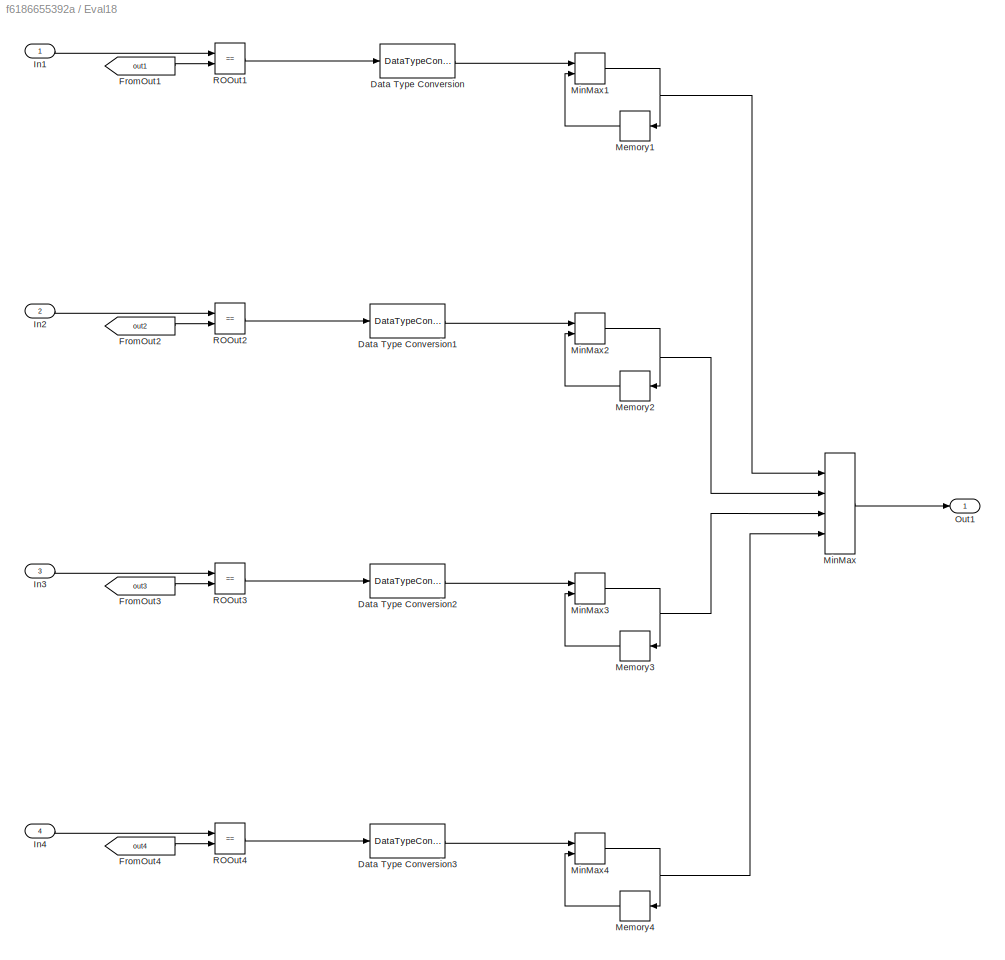
BLOCK [SubSystem] Eval18
  Ports = [4, 1]
  RequestExecContextInheritance = off
BLOCK [DataTypeConversion] Eval18/Data Type Conversion
  RndMeth = Floor
  SaturateOnIntegerOverflow = off
BLOCK [DataTypeConversion] Eval18/Data Type Conversion1
  RndMeth = Floor
  SaturateOnIntegerOverflow = off
BLOCK [DataTypeConversion] Eval18/Data Type Conversion2
  RndMeth = Floor
  SaturateOnIntegerOverflow = off
BLOCK [DataTypeConversion] Eval18/Data Type Conversion3
  RndMeth = Floor
  SaturateOnIntegerOverflow = off
BLOCK [From] Eval18/FromOut1
  GotoTag = out1
BLOCK [From] Eval18/FromOut2
  GotoTag = out2
BLOCK [From] Eval18/FromOut3
  GotoTag = out3
BLOCK [From] Eval18/FromOut4
  GotoTag = out4
BLOCK [Inport] Eval18/In1
  IconDisplay = Port number
BLOCK [Inport] Eval18/In2
  IconDisplay = Port number
  Port = 2
BLOCK [Inport] Eval18/In3
  IconDisplay = Port number
  Port = 3
BLOCK [Inport] Eval18/In4
  IconDisplay = Port number
  Port = 4
BLOCK [Memory] Eval18/Memory1
  InitialCondition = 1
BLOCK [Memory] Eval18/Memory2
  InitialCondition = 1
BLOCK [Memory] Eval18/Memory3
  InitialCondition = 1
BLOCK [Memory] Eval18/Memory4
  InitialCondition = 1
BLOCK [MinMax] Eval18/MinMax
  InputSameDT = off
  Inputs = 4
  Ports = [4, 1]
  SaturateOnIntegerOverflow = off
BLOCK [MinMax] Eval18/MinMax1
  InputSameDT = off
  Inputs = 2
  Ports = [2, 1]
  SaturateOnIntegerOverflow = off
BLOCK [MinMax] Eval18/MinMax2
  InputSameDT = off
  Inputs = 2
  Ports = [2, 1]
  SaturateOnIntegerOverflow = off
BLOCK [MinMax] Eval18/MinMax3
  InputSameDT = off
  Inputs = 2
  Ports = [2, 1]
  SaturateOnIntegerOverflow = off
BLOCK [MinMax] Eval18/MinMax4
  InputSameDT = off
  Inputs = 2
  Ports = [2, 1]
  SaturateOnIntegerOverflow = off
BLOCK [Outport] Eval18/Out1
  IconDisplay = Port number
BLOCK [RelationalOperator] Eval18/ROOut1
  InputSameDT = off
  Operator = ==
  OutDataTypeStr = boolean
  Ports = [2, 1]
  RndMeth = Simplest
BLOCK [RelationalOperator] Eval18/ROOut2
  InputSameDT = off
  Operator = ==
  OutDataTypeStr = boolean
  Ports = [2, 1]
  RndMeth = Simplest
BLOCK [RelationalOperator] Eval18/ROOut3
  InputSameDT = off
  Operator = ==
  OutDataTypeStr = boolean
  Ports = [2, 1]
  RndMeth = Simplest
BLOCK [RelationalOperator] Eval18/ROOut4
  InputSameDT = off
  Operator = ==
  OutDataTypeStr = boolean
  Ports = [2, 1]
  RndMeth = Simplest
BLOCK [SubSystem] Eval37
  Ports = [4, 1]
  RequestExecContextInheritance = off
BLOCK [DataTypeConversion] Eval37/Data Type Conversion
  RndMeth = Floor
  SaturateOnIntegerOverflow = off
BLOCK [DataTypeConversion] Eval37/Data Type Conversion1
  RndMeth = Floor
  SaturateOnIntegerOverflow = off
BLOCK [DataTypeConversion] Eval37/Data Type Conversion2
  RndMeth = Floor
  SaturateOnIntegerOverflow = off
BLOCK [DataTypeConversion] Eval37/Data Type Conversion3
  RndMeth = Floor
  SaturateOnIntegerOverflow = off
BLOCK [From] Eval37/FromOut1
  GotoTag = out1
BLOCK [From] Eval37/FromOut2
  GotoTag = out2
BLOCK [From] Eval37/FromOut3
  GotoTag = out3
BLOCK [From] Eval37/FromOut4
  GotoTag = out4
BLOCK [Inport] Eval37/In1
  IconDisplay = Port number
BLOCK [Inport] Eval37/In2
  IconDisplay = Port number
  Port = 2
BLOCK [Inport] Eval37/In3
  IconDisplay = Port number
  Port = 3
BLOCK [Inport] Eval37/In4
  IconDisplay = Port number
  Port = 4
BLOCK [Memory] Eval37/Memory1
  InitialCondition = 1
BLOCK [Memory] Eval37/Memory2
  InitialCondition = 1
BLOCK [Memory] Eval37/Memory3
  InitialCondition = 1
BLOCK [Memory] Eval37/Memory4
  InitialCondition = 1
BLOCK [MinMax] Eval37/MinMax
  InputSameDT = off
  Inputs = 4
  Ports = [4, 1]
  SaturateOnIntegerOverflow = off
BLOCK [MinMax] Eval37/MinMax1
  InputSameDT = off
  Inputs = 2
  Ports = [2, 1]
  SaturateOnIntegerOverflow = off
BLOCK [MinMax] Eval37/MinMax2
  InputSameDT = off
  Inputs = 2
  Ports = [2, 1]
  SaturateOnIntegerOverflow = off
BLOCK [MinMax] Eval37/MinMax3
  InputSameDT = off
  Inputs = 2
  Ports = [2, 1]
  SaturateOnIntegerOverflow = off
BLOCK [MinMax] Eval37/MinMax4
  InputSameDT = off
  Inputs = 2
  Ports = [2, 1]
  SaturateOnIntegerOverflow = off
BLOCK [Outport] Eval37/Out1
  IconDisplay = Port number
BLOCK [RelationalOperator] Eval37/ROOut1
  InputSameDT = off
  Operator = ==
  OutDataTypeStr = boolean
  Ports = [2, 1]
  RndMeth = Simplest
BLOCK [RelationalOperator] Eval37/ROOut2
  InputSameDT = off
  Operator = ==
  OutDataTypeStr = boolean
  Ports = [2, 1]
  RndMeth = Simplest
BLOCK [RelationalOperator] Eval37/ROOut3
  InputSameDT = off
  Operator = ==
  OutDataTypeStr = boolean
  Ports = [2, 1]
  RndMeth = Simplest
BLOCK [RelationalOperator] Eval37/ROOut4
  InputSameDT = off
  Operator = ==
  OutDataTypeStr = boolean
  Ports = [2, 1]
  RndMeth = Simplest
BLOCK [SubSystem] Eval45
  Ports = [4, 1]
  RequestExecContextInheritance = off
BLOCK [DataTypeConversion] Eval45/Data Type Conversion
  RndMeth = Floor
  SaturateOnIntegerOverflow = off
BLOCK [DataTypeConversion] Eval45/Data Type Conversion1
  RndMeth = Floor
  SaturateOnIntegerOverflow = off
BLOCK [DataTypeConversion] Eval45/Data Type Conversion2
  RndMeth = Floor
  SaturateOnIntegerOverflow = off
BLOCK [DataTypeConversion] Eval45/Data Type Conversion3
  RndMeth = Floor
  SaturateOnIntegerOverflow = off
BLOCK [From] Eval45/FromOut1
  GotoTag = out1
BLOCK [From] Eval45/FromOut2
  GotoTag = out2
BLOCK [From] Eval45/FromOut3
  GotoTag = out3
BLOCK [From] Eval45/FromOut4
  GotoTag = out4
BLOCK [Inport] Eval45/In1
  IconDisplay = Port number
BLOCK [Inport] Eval45/In2
  IconDisplay = Port number
  Port = 2
BLOCK [Inport] Eval45/In3
  IconDisplay = Port number
  Port = 3
BLOCK [Inport] Eval45/In4
  IconDisplay = Port number
  Port = 4
BLOCK [Memory] Eval45/Memory1
  InitialCondition = 1
BLOCK [Memory] Eval45/Memory2
  InitialCondition = 1
BLOCK [Memory] Eval45/Memory3
  InitialCondition = 1
BLOCK [Memory] Eval45/Memory4
  InitialCondition = 1
BLOCK [MinMax] Eval45/MinMax
  InputSameDT = off
  Inputs = 4
  Ports = [4, 1]
  SaturateOnIntegerOverflow = off
BLOCK [MinMax] Eval45/MinMax1
  InputSameDT = off
  Inputs = 2
  Ports = [2, 1]
  SaturateOnIntegerOverflow = off
BLOCK [MinMax] Eval45/MinMax2
  InputSameDT = off
  Inputs = 2
  Ports = [2, 1]
  SaturateOnIntegerOverflow = off
BLOCK [MinMax] Eval45/MinMax3
  InputSameDT = off
  Inputs = 2
  Ports = [2, 1]
  SaturateOnIntegerOverflow = off
BLOCK [MinMax] Eval45/MinMax4
  InputSameDT = off
  Inputs = 2
  Ports = [2, 1]
  SaturateOnIntegerOverflow = off
BLOCK [Outport] Eval45/Out1
  IconDisplay = Port number
BLOCK [RelationalOperator] Eval45/ROOut1
  InputSameDT = off
  Operator = ==
  OutDataTypeStr = boolean
  Ports = [2, 1]
  RndMeth = Simplest
BLOCK [RelationalOperator] Eval45/ROOut2
  InputSameDT = off
  Operator = ==
  OutDataTypeStr = boolean
  Ports = [2, 1]
  RndMeth = Simplest
BLOCK [RelationalOperator] Eval45/ROOut3
  InputSameDT = off
  Operator = ==
  OutDataTypeStr = boolean
  Ports = [2, 1]
  RndMeth = Simplest
BLOCK [RelationalOperator] Eval45/ROOut4
  InputSameDT = off
  Operator = ==
  OutDataTypeStr = boolean
  Ports = [2, 1]
  RndMeth = Simplest
BLOCK [SubSystem] Eval47
  Ports = [4, 1]
  RequestExecContextInheritance = off
BLOCK [DataTypeConversion] Eval47/Data Type Conversion
  RndMeth = Floor
  SaturateOnIntegerOverflow = off
BLOCK [DataTypeConversion] Eval47/Data Type Conversion1
  RndMeth = Floor
  SaturateOnIntegerOverflow = off
BLOCK [DataTypeConversion] Eval47/Data Type Conversion2
  RndMeth = Floor
  SaturateOnIntegerOverflow = off
BLOCK [DataTypeConversion] Eval47/Data Type Conversion3
  RndMeth = Floor
  SaturateOnIntegerOverflow = off
BLOCK [From] Eval47/FromOut1
  GotoTag = out1
BLOCK [From] Eval47/FromOut2
  GotoTag = out2
BLOCK [From] Eval47/FromOut3
  GotoTag = out3
BLOCK [From] Eval47/FromOut4
  GotoTag = out4
BLOCK [Inport] Eval47/In1
  IconDisplay = Port number
BLOCK [Inport] Eval47/In2
  IconDisplay = Port number
  Port = 2
BLOCK [Inport] Eval47/In3
  IconDisplay = Port number
  Port = 3
BLOCK [Inport] Eval47/In4
  IconDisplay = Port number
  Port = 4
BLOCK [Memory] Eval47/Memory1
  InitialCondition = 1
BLOCK [Memory] Eval47/Memory2
  InitialCondition = 1
BLOCK [Memory] Eval47/Memory3
  InitialCondition = 1
BLOCK [Memory] Eval47/Memory4
  InitialCondition = 1
BLOCK [MinMax] Eval47/MinMax
  InputSameDT = off
  Inputs = 4
  Ports = [4, 1]
  SaturateOnIntegerOverflow = off
BLOCK [MinMax] Eval47/MinMax1
  InputSameDT = off
  Inputs = 2
  Ports = [2, 1]
  SaturateOnIntegerOverflow = off
BLOCK [MinMax] Eval47/MinMax2
  InputSameDT = off
  Inputs = 2
  Ports = [2, 1]
  SaturateOnIntegerOverflow = off
BLOCK [MinMax] Eval47/MinMax3
  InputSameDT = off
  Inputs = 2
  Ports = [2, 1]
  SaturateOnIntegerOverflow = off
BLOCK [MinMax] Eval47/MinMax4
  InputSameDT = off
  Inputs = 2
  Ports = [2, 1]
  SaturateOnIntegerOverflow = off
BLOCK [Outport] Eval47/Out1
  IconDisplay = Port number
BLOCK [RelationalOperator] Eval47/ROOut1
  InputSameDT = off
  Operator = ==
  OutDataTypeStr = boolean
  Ports = [2, 1]
  RndMeth = Simplest
BLOCK [RelationalOperator] Eval47/ROOut2
  InputSameDT = off
  Operator = ==
  OutDataTypeStr = boolean
  Ports = [2, 1]
  RndMeth = Simplest
BLOCK [RelationalOperator] Eval47/ROOut3
  InputSameDT = off
  Operator = ==
  OutDataTypeStr = boolean
  Ports = [2, 1]
  RndMeth = Simplest
BLOCK [RelationalOperator] Eval47/ROOut4
  InputSameDT = off
  Operator = ==
  OutDataTypeStr = boolean
  Ports = [2, 1]
  RndMeth = Simplest
BLOCK [SubSystem] Eval8
  Ports = [4, 1]
  RequestExecContextInheritance = off
BLOCK [DataTypeConversion] Eval8/Data Type Conversion
  RndMeth = Floor
  SaturateOnIntegerOverflow = off
BLOCK [DataTypeConversion] Eval8/Data Type Conversion1
  RndMeth = Floor
  SaturateOnIntegerOverflow = off
BLOCK [DataTypeConversion] Eval8/Data Type Conversion2
  RndMeth = Floor
  SaturateOnIntegerOverflow = off
BLOCK [DataTypeConversion] Eval8/Data Type Conversion3
  RndMeth = Floor
  SaturateOnIntegerOverflow = off
BLOCK [From] Eval8/FromOut1
  GotoTag = out1
BLOCK [From] Eval8/FromOut2
  GotoTag = out2
BLOCK [From] Eval8/FromOut3
  GotoTag = out3
BLOCK [From] Eval8/FromOut4
  GotoTag = out4
BLOCK [Inport] Eval8/In1
  IconDisplay = Port number
BLOCK [Inport] Eval8/In2
  IconDisplay = Port number
  Port = 2
BLOCK [Inport] Eval8/In3
  IconDisplay = Port number
  Port = 3
BLOCK [Inport] Eval8/In4
  IconDisplay = Port number
  Port = 4
BLOCK [Memory] Eval8/Memory1
  InitialCondition = 1
BLOCK [Memory] Eval8/Memory2
  InitialCondition = 1
BLOCK [Memory] Eval8/Memory3
  InitialCondition = 1
BLOCK [Memory] Eval8/Memory4
  InitialCondition = 1
BLOCK [MinMax] Eval8/MinMax
  InputSameDT = off
  Inputs = 4
  Ports = [4, 1]
  SaturateOnIntegerOverflow = off
BLOCK [MinMax] Eval8/MinMax1
  InputSameDT = off
  Inputs = 2
  Ports = [2, 1]
  SaturateOnIntegerOverflow = off
BLOCK [MinMax] Eval8/MinMax2
  InputSameDT = off
  Inputs = 2
  Ports = [2, 1]
  SaturateOnIntegerOverflow = off
BLOCK [MinMax] Eval8/MinMax3
  InputSameDT = off
  Inputs = 2
  Ports = [2, 1]
  SaturateOnIntegerOverflow = off
BLOCK [MinMax] Eval8/MinMax4
  InputSameDT = off
  Inputs = 2
  Ports = [2, 1]
  SaturateOnIntegerOverflow = off
BLOCK [Outport] Eval8/Out1
  IconDisplay = Port number
BLOCK [RelationalOperator] Eval8/ROOut1
  InputSameDT = off
  Operator = ==
  OutDataTypeStr = boolean
  Ports = [2, 1]
  RndMeth = Simplest
BLOCK [RelationalOperator] Eval8/ROOut2
  InputSameDT = off
  Operator = ==
  OutDataTypeStr = boolean
  Ports = [2, 1]
  RndMeth = Simplest
BLOCK [RelationalOperator] Eval8/ROOut3
  InputSameDT = off
  Operator = ==
  OutDataTypeStr = boolean
  Ports = [2, 1]
  RndMeth = Simplest
BLOCK [RelationalOperator] Eval8/ROOut4
  InputSameDT = off
  Operator = ==
  OutDataTypeStr = boolean
  Ports = [2, 1]
  RndMeth = Simplest
BLOCK [From] FromIn145
  GotoTag = in1
BLOCK [From] FromIn146
  GotoTag = in2
BLOCK [From] FromIn147
  GotoTag = in3
BLOCK [From] FromIn148
  GotoTag = in4
BLOCK [From] FromIn149
  GotoTag = in5
BLOCK [From] FromIn150
  GotoTag = in6
BLOCK [From] FromIn151
  GotoTag = in7
BLOCK [From] FromIn152
  GotoTag = in8
BLOCK [From] FromIn153
  GotoTag = in9
BLOCK [From] FromIn154
  GotoTag = in10
BLOCK [From] FromIn155
  GotoTag = in11
BLOCK [From] FromIn156
  GotoTag = in12
BLOCK [From] FromIn157
  GotoTag = in13
BLOCK [From] FromIn158
  GotoTag = in14
BLOCK [From] FromIn159
  GotoTag = in15
BLOCK [From] FromIn160
  GotoTag = in16
BLOCK [From] FromIn161
  GotoTag = in17
BLOCK [From] FromIn162
  GotoTag = in18
BLOCK [From] FromIn289
  GotoTag = in1
BLOCK [From] FromIn290
  GotoTag = in2
BLOCK [From] FromIn291
  GotoTag = in3
BLOCK [From] FromIn292
  GotoTag = in4
BLOCK [From] FromIn293
  GotoTag = in5
BLOCK [From] FromIn294
  GotoTag = in6
BLOCK [From] FromIn295
  GotoTag = in7
BLOCK [From] FromIn296
  GotoTag = in8
BLOCK [From] FromIn297
  GotoTag = in9
BLOCK [From] FromIn298
  GotoTag = in10
BLOCK [From] FromIn299
  GotoTag = in11
BLOCK [From] FromIn300
  GotoTag = in12
BLOCK [From] FromIn301
  GotoTag = in13
BLOCK [From] FromIn302
  GotoTag = in14
BLOCK [From] FromIn303
  GotoTag = in15
BLOCK [From] FromIn304
  GotoTag = in16
BLOCK [From] FromIn305
  GotoTag = in17
BLOCK [From] FromIn306
  GotoTag = in18
BLOCK [From] FromIn325
  GotoTag = in1
BLOCK [From] FromIn326
  GotoTag = in2
BLOCK [From] FromIn327
  GotoTag = in3
BLOCK [From] FromIn328
  GotoTag = in4
BLOCK [From] FromIn329
  GotoTag = in5
BLOCK [From] FromIn330
  GotoTag = in6
BLOCK [From] FromIn331
  GotoTag = in7
BLOCK [From] FromIn332
  GotoTag = in8
BLOCK [From] FromIn333
  GotoTag = in9
BLOCK [From] FromIn334
  GotoTag = in10
BLOCK [From] FromIn335
  GotoTag = in11
BLOCK [From] FromIn336
  GotoTag = in12
BLOCK [From] FromIn337
  GotoTag = in13
BLOCK [From] FromIn338
  GotoTag = in14
BLOCK [From] FromIn339
  GotoTag = in15
BLOCK [From] FromIn340
  GotoTag = in16
BLOCK [From] FromIn341
  GotoTag = in17
BLOCK [From] FromIn342
  GotoTag = in18
BLOCK [From] FromIn667
  GotoTag = in1
BLOCK [From] FromIn668
  GotoTag = in2
BLOCK [From] FromIn669
  GotoTag = in3
BLOCK [From] FromIn670
  GotoTag = in4
BLOCK [From] FromIn671
  GotoTag = in5
BLOCK [From] FromIn672
  GotoTag = in6
BLOCK [From] FromIn673
  GotoTag = in7
BLOCK [From] FromIn674
  GotoTag = in8
BLOCK [From] FromIn675
  GotoTag = in9
BLOCK [From] FromIn676
  GotoTag = in10
BLOCK [From] FromIn677
  GotoTag = in11
BLOCK [From] FromIn678
  GotoTag = in12
BLOCK [From] FromIn679
  GotoTag = in13
BLOCK [From] FromIn680
  GotoTag = in14
BLOCK [From] FromIn681
  GotoTag = in15
BLOCK [From] FromIn682
  GotoTag = in16
BLOCK [From] FromIn683
  GotoTag = in17
BLOCK [From] FromIn684
  GotoTag = in18
BLOCK [From] FromIn811
  GotoTag = in1
BLOCK [From] FromIn812
  GotoTag = in2
BLOCK [From] FromIn813
  GotoTag = in3
BLOCK [From] FromIn814
  GotoTag = in4
BLOCK [From] FromIn815
  GotoTag = in5
BLOCK [From] FromIn816
  GotoTag = in6
BLOCK [From] FromIn817
  GotoTag = in7
BLOCK [From] FromIn818
  GotoTag = in8
BLOCK [From] FromIn819
  GotoTag = in9
BLOCK [From] FromIn820
  GotoTag = in10
BLOCK [From] FromIn821
  GotoTag = in11
BLOCK [From] FromIn822
  GotoTag = in12
BLOCK [From] FromIn823
  GotoTag = in13
BLOCK [From] FromIn824
  GotoTag = in14
BLOCK [From] FromIn825
  GotoTag = in15
BLOCK [From] FromIn826
  GotoTag = in16
BLOCK [From] FromIn827
  GotoTag = in17
BLOCK [From] FromIn828
  GotoTag = in18
BLOCK [From] FromIn847
  GotoTag = in1
BLOCK [From] FromIn848
  GotoTag = in2
BLOCK [From] FromIn849
  GotoTag = in3
BLOCK [From] FromIn850
  GotoTag = in4
BLOCK [From] FromIn851
  GotoTag = in5
BLOCK [From] FromIn852
  GotoTag = in6
BLOCK [From] FromIn853
  GotoTag = in7
BLOCK [From] FromIn854
  GotoTag = in8
BLOCK [From] FromIn855
  GotoTag = in9
BLOCK [From] FromIn856
  GotoTag = in10
BLOCK [From] FromIn857
  GotoTag = in11
BLOCK [From] FromIn858
  GotoTag = in12
BLOCK [From] FromIn859
  GotoTag = in13
BLOCK [From] FromIn860
  GotoTag = in14
BLOCK [From] FromIn861
  GotoTag = in15
BLOCK [From] FromIn862
  GotoTag = in16
BLOCK [From] FromIn863
  GotoTag = in17
BLOCK [From] FromIn864
  GotoTag = in18
BLOCK [Goto] GotoIn1
  GotoTag = in1
BLOCK [Goto] GotoIn10
  GotoTag = in10
BLOCK [Goto] GotoIn11
  GotoTag = in11
BLOCK [Goto] GotoIn12
  GotoTag = in12
BLOCK [Goto] GotoIn13
  GotoTag = in13
BLOCK [Goto] GotoIn14
  GotoTag = in14
BLOCK [Goto] GotoIn15
  GotoTag = in15
BLOCK [Goto] GotoIn16
  GotoTag = in16
BLOCK [Goto] GotoIn17
  GotoTag = in17
BLOCK [Goto] GotoIn18
  GotoTag = in18
BLOCK [Goto] GotoIn2
  GotoTag = in2
BLOCK [Goto] GotoIn3
  GotoTag = in3
BLOCK [Goto] GotoIn4
  GotoTag = in4
BLOCK [Goto] GotoIn5
  GotoTag = in5
BLOCK [Goto] GotoIn6
  GotoTag = in6
BLOCK [Goto] GotoIn7
  GotoTag = in7
BLOCK [Goto] GotoIn8
  GotoTag = in8
BLOCK [Goto] GotoIn9
  GotoTag = in9
BLOCK [Goto] GotoOut1
  GotoTag = out1
  TagVisibility = global
BLOCK [Goto] GotoOut2
  GotoTag = out2
  TagVisibility = global
BLOCK [Goto] GotoOut3
  GotoTag = out3
  TagVisibility = global
BLOCK [Goto] GotoOut4
  GotoTag = out4
  TagVisibility = global
BLOCK [SubSystem] Inputs
  ClipboardFcn = sigbuilder_block('clipboard');
  CloseFcn = sigbuilder_block('close');
  ContinueFcn = sigbuilder_block('continue');
  CopyFcn = sigbuilder_block('copy');
  DeleteFcn = sigbuilder_block('delete');
  LoadFcn = sigbuilder_block('load');
  MaskHideContents = on
  ModelCloseFcn = sigbuilder_block('modelClose');
  NameChangeFcn = sigbuilder_block('namechange');
  OpenFcn = sigbuilder_block('open');
  PauseFcn = sigbuilder_block('pause');
  Ports = [0, 10]
  PreSaveFcn = sigbuilder_block('preSave');
  RequestExecContextInheritance = off
  StartFcn = sigbuilder_block('start');
  StopFcn = sigbuilder_block('stop');
  Tag = STV Subsys
BLOCK [Outport] Inputs/DW1
  IconDisplay = Port number
  Tag = STV Outport
BLOCK [Outport] Inputs/DW4
  IconDisplay = Port number
  Port = 2
  Tag = STV Outport
BLOCK [Demux] Inputs/Demux
  Outputs = 10
  Ports = [1, 10]
  Tag = STV Demux
BLOCK [FromWorkspace] Inputs/FromWs
  SampleTime = 0
  Tag = STV FromWs
  VariableName = tuvar
BLOCK [Outport] Inputs/O1
  IconDisplay = Port number
  Port = 7
  Tag = STV Outport
BLOCK [Outport] Inputs/O2
  IconDisplay = Port number
  Port = 8
  Tag = STV Outport
BLOCK [Outport] Inputs/O3
  IconDisplay = Port number
  Port = 9
  Tag = STV Outport
BLOCK [Outport] Inputs/O4
  IconDisplay = Port number
  Port = 10
  Tag = STV Outport
BLOCK [Outport] Inputs/P1W2
  IconDisplay = Port number
  Port = 3
  Tag = STV Outport
BLOCK [Outport] Inputs/P1W4
  IconDisplay = Port number
  Port = 6
  Tag = STV Outport
BLOCK [Outport] Inputs/P2W3
  IconDisplay = Port number
  Port = 4
  Tag = STV Outport
BLOCK [Outport] Inputs/P3W4
  IconDisplay = Port number
  Port = 5
  Tag = STV Outport
BLOCK [SubSystem] M009
  Ports = [10, 4]
  RequestExecContextInheritance = off
BLOCK [SubSystem] M009/Cyber
  Ports = [14, 4]
  RequestExecContextInheritance = off
BLOCK [Inport] M009/Cyber/DW1
  IconDisplay = Port number
  Port = 5
BLOCK [Inport] M009/Cyber/DW4
  IconDisplay = Port number
  Port = 6
BLOCK [Inport] M009/Cyber/OW1
  IconDisplay = Port number
  Port = 11
BLOCK [Inport] M009/Cyber/OW2
  IconDisplay = Port number
  Port = 12
BLOCK [Inport] M009/Cyber/OW3
  IconDisplay = Port number
  Port = 13
BLOCK [Inport] M009/Cyber/OW4
  IconDisplay = Port number
  Port = 14
BLOCK [Inport] M009/Cyber/P1W2
  IconDisplay = Port number
  Port = 7
BLOCK [Inport] M009/Cyber/P1W4
  IconDisplay = Port number
  Port = 10
BLOCK [Inport] M009/Cyber/P2W3
  IconDisplay = Port number
  Port = 8
BLOCK [Inport] M009/Cyber/P3W4
  IconDisplay = Port number
  Port = 9
BLOCK [Inport] M009/Cyber/PosW1
  IconDisplay = Port number
BLOCK [Inport] M009/Cyber/PosW2
  IconDisplay = Port number
  Port = 2
BLOCK [Inport] M009/Cyber/PosW3
  IconDisplay = Port number
  Port = 3
BLOCK [Inport] M009/Cyber/PosW4
  IconDisplay = Port number
  Port = 4
BLOCK [SubSystem] M009/Cyber/Pri4
  Ports = [3, 1]
  RequestExecContextInheritance = off
BLOCK [Inport] M009/Cyber/Pri4/D
  IconDisplay = Port number
BLOCK [Inport] M009/Cyber/Pri4/P
  IconDisplay = Port number
  Port = 2
BLOCK [Inport] M009/Cyber/Pri4/P1
  IconDisplay = Port number
  Port = 3
BLOCK [Switch] M009/Cyber/Pri4/Switch
  Criteria = u2 ~= 0
  InputSameDT = off
  SaturateOnIntegerOverflow = off
BLOCK [Switch] M009/Cyber/Pri4/Switch1
  Criteria = u2 ~= 0
  InputSameDT = off
  SaturateOnIntegerOverflow = off
BLOCK [Outport] M009/Cyber/Pri4/User
  IconDisplay = Port number
BLOCK [Outport] M009/Cyber/W1
  IconDisplay = Port number
BLOCK [Outport] M009/Cyber/W2
  IconDisplay = Port number
  Port = 2
BLOCK [Outport] M009/Cyber/W3
  IconDisplay = Port number
  Port = 3
BLOCK [Outport] M009/Cyber/W4
  IconDisplay = Port number
  Port = 4
BLOCK [SubSystem] M009/Cyber/WL
  Ports = [3, 1]
  RequestExecContextInheritance = off
BLOCK [SubSystem] M009/Cyber/WL/Chart
  ErrorFcn = Stateflow.Translate.translate
  PermitHierarchicalResolution = ExplicitOnly
  Ports = [2, 1]
  RequestExecContextInheritance = off
  SFBlockType = Chart
  TreatAsAtomicUnit = on
BLOCK [Demux] M009/Cyber/WL/Chart/ Demux 
  Outputs = 1
  Ports = [1, 1]
BLOCK [S-Function] M009/Cyber/WL/Chart/ SFunction 
  EnableBusSupport = off
  FunctionName = sf_sfun
  PortCounts = [2 2]
  Ports = [2, 2]
  SFcnIsStateOwnerBlock = off
  SFunctionDeploymentMode = off
  Tag = Stateflow S-Function c00017M_harness 37
BLOCK [Terminator] M009/Cyber/WL/Chart/ Terminator 
BLOCK [Inport] M009/Cyber/WL/Chart/S
  IconDisplay = Port number
BLOCK [Inport] M009/Cyber/WL/Chart/UI
  IconDisplay = Port number
  Port = 2
BLOCK [Outport] M009/Cyber/WL/Chart/W
  IconDisplay = Port number
BLOCK [Constant] M009/Cyber/WL/Constant
  Value = -1
BLOCK [DataTypeConversion] M009/Cyber/WL/Data Type Conversion
  RndMeth = Floor
  SaturateOnIntegerOverflow = off
BLOCK [Inport] M009/Cyber/WL/OW
  IconDisplay = Port number
  Port = 3
BLOCK [Switch] M009/Cyber/WL/Switch
  Criteria = u2 ~= 0
  InputSameDT = off
  SaturateOnIntegerOverflow = off
  Threshold = 1
  ZeroCross = off
BLOCK [Inport] M009/Cyber/WL/User
  IconDisplay = Port number
  Port = 2
BLOCK [Inport] M009/Cyber/WL/WPos
  IconDisplay = Port number
BLOCK [Outport] M009/Cyber/WL/WindowLogicOutput
  IconDisplay = Port number
BLOCK [SubSystem] M009/Cyber/WL1
  Ports = [3, 1]
  RequestExecContextInheritance = off
BLOCK [SubSystem] M009/Cyber/WL1/Chart1
  ErrorFcn = Stateflow.Translate.translate
  PermitHierarchicalResolution = ExplicitOnly
  Ports = [2, 1]
  RequestExecContextInheritance = off
  SFBlockType = Chart
  TreatAsAtomicUnit = on
BLOCK [Demux] M009/Cyber/WL1/Chart1/ Demux 
  Outputs = 1
  Ports = [1, 1]
BLOCK [S-Function] M009/Cyber/WL1/Chart1/ SFunction 
  EnableBusSupport = off
  FunctionName = sf_sfun
  PortCounts = [2 2]
  Ports = [2, 2]
  SFcnIsStateOwnerBlock = off
  SFunctionDeploymentMode = off
  Tag = Stateflow S-Function c00017M_harness 38
BLOCK [Terminator] M009/Cyber/WL1/Chart1/ Terminator 
BLOCK [Inport] M009/Cyber/WL1/Chart1/S
  IconDisplay = Port number
BLOCK [Inport] M009/Cyber/WL1/Chart1/UI
  IconDisplay = Port number
  Port = 2
BLOCK [Outport] M009/Cyber/WL1/Chart1/W
  IconDisplay = Port number
BLOCK [Constant] M009/Cyber/WL1/Constant
  Value = -1
BLOCK [DataTypeConversion] M009/Cyber/WL1/Data Type Conversion
  RndMeth = Floor
  SaturateOnIntegerOverflow = off
BLOCK [Inport] M009/Cyber/WL1/OW
  IconDisplay = Port number
  Port = 3
BLOCK [Switch] M009/Cyber/WL1/Switch
  Criteria = u2 ~= 0
  InputSameDT = off
  SaturateOnIntegerOverflow = off
  Threshold = 1
  ZeroCross = off
BLOCK [Inport] M009/Cyber/WL1/User
  IconDisplay = Port number
  Port = 2
BLOCK [Inport] M009/Cyber/WL1/WPos
  IconDisplay = Port number
BLOCK [Outport] M009/Cyber/WL1/WindowLogicOutput
  IconDisplay = Port number
BLOCK [SubSystem] M009/Cyber/WL2
  Ports = [3, 1]
  RequestExecContextInheritance = off
BLOCK [SubSystem] M009/Cyber/WL2/Chart1
  ErrorFcn = Stateflow.Translate.translate
  PermitHierarchicalResolution = ExplicitOnly
  Ports = [3, 1]
  RequestExecContextInheritance = off
  SFBlockType = Chart
  TreatAsAtomicUnit = on
BLOCK [Demux] M009/Cyber/WL2/Chart1/ Demux 
  Outputs = 1
  Ports = [1, 1]
BLOCK [S-Function] M009/Cyber/WL2/Chart1/ SFunction 
  EnableBusSupport = off
  FunctionName = sf_sfun
  PortCounts = [3 2]
  Ports = [3, 2]
  SFcnIsStateOwnerBlock = off
  SFunctionDeploymentMode = off
  Tag = Stateflow S-Function c00017M_harness 39
BLOCK [Terminator] M009/Cyber/WL2/Chart1/ Terminator 
BLOCK [Inport] M009/Cyber/WL2/Chart1/PosMinW3
  IconDisplay = Port number
  Port = 3
BLOCK [Inport] M009/Cyber/WL2/Chart1/S
  IconDisplay = Port number
BLOCK [Inport] M009/Cyber/WL2/Chart1/UI
  IconDisplay = Port number
  Port = 2
BLOCK [Outport] M009/Cyber/WL2/Chart1/W
  IconDisplay = Port number
BLOCK [Constant] M009/Cyber/WL2/Constant
  Value = -1
BLOCK [Constant] M009/Cyber/WL2/Constant2
  Value = PosMinimaW3
BLOCK [DataTypeConversion] M009/Cyber/WL2/Data Type Conversion
  RndMeth = Floor
  SaturateOnIntegerOverflow = off
BLOCK [Inport] M009/Cyber/WL2/OW
  IconDisplay = Port number
  Port = 3
BLOCK [Switch] M009/Cyber/WL2/Switch
  Criteria = u2 ~= 0
  InputSameDT = off
  SaturateOnIntegerOverflow = off
  Threshold = 1
  ZeroCross = off
BLOCK [Inport] M009/Cyber/WL2/User
  IconDisplay = Port number
  Port = 2
BLOCK [Inport] M009/Cyber/WL2/WPos
  IconDisplay = Port number
BLOCK [Outport] M009/Cyber/WL2/WindowLogicOutput
  IconDisplay = Port number
BLOCK [SubSystem] M009/Cyber/WL3
  Ports = [3, 1]
  RequestExecContextInheritance = off
BLOCK [SubSystem] M009/Cyber/WL3/Chart2
  ErrorFcn = Stateflow.Translate.translate
  PermitHierarchicalResolution = ExplicitOnly
  Ports = [3, 1]
  RequestExecContextInheritance = off
  SFBlockType = Chart
  TreatAsAtomicUnit = on
BLOCK [Demux] M009/Cyber/WL3/Chart2/ Demux 
  Outputs = 1
  Ports = [1, 1]
BLOCK [S-Function] M009/Cyber/WL3/Chart2/ SFunction 
  EnableBusSupport = off
  FunctionName = sf_sfun
  PortCounts = [3 2]
  Ports = [3, 2]
  SFcnIsStateOwnerBlock = off
  SFunctionDeploymentMode = off
  Tag = Stateflow S-Function c00017M_harness 40
BLOCK [Terminator] M009/Cyber/WL3/Chart2/ Terminator 
BLOCK [Inport] M009/Cyber/WL3/Chart2/PosMinW4
  IconDisplay = Port number
  Port = 3
BLOCK [Inport] M009/Cyber/WL3/Chart2/S
  IconDisplay = Port number
BLOCK [Inport] M009/Cyber/WL3/Chart2/UI
  IconDisplay = Port number
  Port = 2
BLOCK [Outport] M009/Cyber/WL3/Chart2/W
  IconDisplay = Port number
BLOCK [Constant] M009/Cyber/WL3/Constant
  Value = -1
BLOCK [Constant] M009/Cyber/WL3/Constant2
  Value = PosMinimaW4
BLOCK [DataTypeConversion] M009/Cyber/WL3/Data Type Conversion
  RndMeth = Floor
  SaturateOnIntegerOverflow = off
BLOCK [Inport] M009/Cyber/WL3/OW
  IconDisplay = Port number
  Port = 3
BLOCK [Switch] M009/Cyber/WL3/Switch
  Criteria = u2 ~= 0
  InputSameDT = off
  SaturateOnIntegerOverflow = off
  Threshold = 1
  ZeroCross = off
BLOCK [Inport] M009/Cyber/WL3/User
  IconDisplay = Port number
  Port = 2
BLOCK [Inport] M009/Cyber/WL3/WPos
  IconDisplay = Port number
BLOCK [Outport] M009/Cyber/WL3/WindowLogicOutput
  IconDisplay = Port number
BLOCK [Inport] M009/DW1
  IconDisplay = Port number
  OutDataTypeStr = int8
  OutMax = 4
  OutMin = 0
BLOCK [Inport] M009/DW4
  IconDisplay = Port number
  OutDataTypeStr = int8
  OutMax = 4
  OutMin = 0
  Port = 2
BLOCK [Memory] M009/M
BLOCK [Memory] M009/M1
BLOCK [Memory] M009/M2
BLOCK [Memory] M009/M3
BLOCK [Inport] M009/O1
  IconDisplay = Port number
  OutDataTypeStr = boolean
  Port = 7
BLOCK [Inport] M009/O2
  IconDisplay = Port number
  OutDataTypeStr = boolean
  Port = 8
BLOCK [Inport] M009/O3
  IconDisplay = Port number
  OutDataTypeStr = boolean
  Port = 9
BLOCK [Inport] M009/O4
  IconDisplay = Port number
  OutDataTypeStr = boolean
  Port = 10
BLOCK [Inport] M009/P1W2
  IconDisplay = Port number
  OutDataTypeStr = int8
  OutMax = 4
  OutMin = 0
  Port = 3
BLOCK [Inport] M009/P1W4
  IconDisplay = Port number
  OutDataTypeStr = int8
  OutMax = 4
  OutMin = 0
  Port = 6
BLOCK [Inport] M009/P2W3
  IconDisplay = Port number
  OutDataTypeStr = int8
  OutMax = 4
  OutMin = 0
  Port = 4
BLOCK [Inport] M009/P3W4
  IconDisplay = Port number
  OutDataTypeStr = int8
  OutMax = 4
  OutMin = 0
  Port = 5
BLOCK [SubSystem] M009/Physical
  Ports = [4, 4]
  RequestExecContextInheritance = off
BLOCK [Inport] M009/Physical/InW1
  IconDisplay = Port number
BLOCK [Inport] M009/Physical/InW2
  IconDisplay = Port number
  Port = 2
BLOCK [Inport] M009/Physical/InW3
  IconDisplay = Port number
  Port = 3
BLOCK [Inport] M009/Physical/InW4
  IconDisplay = Port number
  Port = 4
BLOCK [SubSystem] M009/Physical/W
  Ports = [1, 1]
  RequestExecContextInheritance = off
BLOCK [SubSystem] M009/Physical/W/DC_Engine
  Ports = [1, 1]
  RequestExecContextInheritance = off
BLOCK [Gain] M009/Physical/W/DC_Engine/(Inductance)
  Gain = 1/L
  OutDataTypeStr = Inherit: Inherit via internal rule
  ParamDataTypeStr = Inherit: Inherit via internal rule
  SaturateOnIntegerOverflow = off
BLOCK [Gain] M009/Physical/W/DC_Engine/(Inductance)1
  Gain = 1/J
  OutDataTypeStr = Inherit: Inherit via internal rule
  ParamDataTypeStr = Inherit: Inherit via internal rule
  SaturateOnIntegerOverflow = off
BLOCK [Sum] M009/Physical/W/DC_Engine/Add
  InputSameDT = off
  Inputs = -+-
  OutDataTypeStr = Inherit: Inherit via internal rule
  Ports = [3, 1]
  SaturateOnIntegerOverflow = off
BLOCK [Sum] M009/Physical/W/DC_Engine/Add1
  InputSameDT = off
  Inputs = +-
  OutDataTypeStr = Inherit: Inherit via internal rule
  Ports = [2, 1]
  SaturateOnIntegerOverflow = off
BLOCK [Gain] M009/Physical/W/DC_Engine/Damping
  Gain = b
  OutDataTypeStr = Inherit: Inherit via internal rule
  ParamDataTypeStr = Inherit: Inherit via internal rule
  SaturateOnIntegerOverflow = off
BLOCK [DiscreteIntegrator] M009/Physical/W/DC_Engine/Discrete-Time Integrator
  ICPrevOutput = DiscIntNeverNeededParam
  ICPrevScaledInput = DiscIntNeverNeededParam
  Ports = [1, 1]
  SampleTime = -1
BLOCK [DiscreteIntegrator] M009/Physical/W/DC_Engine/Discrete-Time Integrator1
  ICPrevOutput = DiscIntNeverNeededParam
  ICPrevScaledInput = DiscIntNeverNeededParam
  Ports = [1, 1]
  SampleTime = -1
BLOCK [Gain] M009/Physical/W/DC_Engine/Ke
  Gain = K
  OutDataTypeStr = Inherit: Inherit via internal rule
  ParamDataTypeStr = Inherit: Inherit via internal rule
  SaturateOnIntegerOverflow = off
BLOCK [Gain] M009/Physical/W/DC_Engine/Kt
  Gain = K
  OutDataTypeStr = Inherit: Inherit via internal rule
  ParamDataTypeStr = Inherit: Inherit via internal rule
  SaturateOnIntegerOverflow = off
BLOCK [Gain] M009/Physical/W/DC_Engine/Resistance
  Gain = R
  OutDataTypeStr = Inherit: Inherit via internal rule
  ParamDataTypeStr = Inherit: Inherit via internal rule
  SaturateOnIntegerOverflow = off
BLOCK [Outport] M009/Physical/W/DC_Engine/Speed
  IconDisplay = Port number
BLOCK [Gain] M009/Physical/W/DC_Engine/Voltage
  Gain = 10
  OutDataTypeStr = Inherit: Inherit via internal rule
  ParamDataTypeStr = Inherit: Inherit via internal rule
  SaturateOnIntegerOverflow = off
BLOCK [Inport] M009/Physical/W/DC_Engine/input
  IconDisplay = Port number
BLOCK [DiscreteIntegrator] M009/Physical/W/Discrete-Time Integrator
  ICPrevOutput = DiscIntNeverNeededParam
  ICPrevScaledInput = DiscIntNeverNeededParam
  InitialCondition = 5
  LimitOutput = on
  LowerSaturationLimit = 0
  Ports = [1, 1]
  SampleTime = -1
  UpperSaturationLimit = 5
BLOCK [Inport] M009/Physical/W/WIn
  IconDisplay = Port number
BLOCK [Outport] M009/Physical/W/WPos
  IconDisplay = Port number
BLOCK [Outport] M009/Physical/W1
  IconDisplay = Port number
BLOCK [Outport] M009/Physical/W2
  IconDisplay = Port number
  Port = 2
BLOCK [Outport] M009/Physical/W3
  IconDisplay = Port number
  Port = 3
BLOCK [Outport] M009/Physical/W4
  IconDisplay = Port number
  Port = 4
BLOCK [SubSystem] M009/Physical/W5
  Ports = [1, 1]
  RequestExecContextInheritance = off
BLOCK [SubSystem] M009/Physical/W5/DC_Engine
  Ports = [1, 1]
  RequestExecContextInheritance = off
BLOCK [Gain] M009/Physical/W5/DC_Engine/(Inductance)
  Gain = 1/L
  OutDataTypeStr = Inherit: Inherit via internal rule
  ParamDataTypeStr = Inherit: Inherit via internal rule
  SaturateOnIntegerOverflow = off
BLOCK [Gain] M009/Physical/W5/DC_Engine/(Inductance)1
  Gain = 1/J
  OutDataTypeStr = Inherit: Inherit via internal rule
  ParamDataTypeStr = Inherit: Inherit via internal rule
  SaturateOnIntegerOverflow = off
BLOCK [Sum] M009/Physical/W5/DC_Engine/Add
  InputSameDT = off
  Inputs = -+-
  OutDataTypeStr = Inherit: Inherit via internal rule
  Ports = [3, 1]
  SaturateOnIntegerOverflow = off
BLOCK [Sum] M009/Physical/W5/DC_Engine/Add1
  InputSameDT = off
  Inputs = +-
  OutDataTypeStr = Inherit: Inherit via internal rule
  Ports = [2, 1]
  SaturateOnIntegerOverflow = off
BLOCK [Gain] M009/Physical/W5/DC_Engine/Damping
  Gain = b
  OutDataTypeStr = Inherit: Inherit via internal rule
  ParamDataTypeStr = Inherit: Inherit via internal rule
  SaturateOnIntegerOverflow = off
BLOCK [DiscreteIntegrator] M009/Physical/W5/DC_Engine/Discrete-Time Integrator
  ICPrevOutput = DiscIntNeverNeededParam
  ICPrevScaledInput = DiscIntNeverNeededParam
  Ports = [1, 1]
  SampleTime = -1
BLOCK [DiscreteIntegrator] M009/Physical/W5/DC_Engine/Discrete-Time Integrator1
  ICPrevOutput = DiscIntNeverNeededParam
  ICPrevScaledInput = DiscIntNeverNeededParam
  Ports = [1, 1]
  SampleTime = -1
BLOCK [Gain] M009/Physical/W5/DC_Engine/Ke
  Gain = K
  OutDataTypeStr = Inherit: Inherit via internal rule
  ParamDataTypeStr = Inherit: Inherit via internal rule
  SaturateOnIntegerOverflow = off
BLOCK [Gain] M009/Physical/W5/DC_Engine/Kt
  Gain = K
  OutDataTypeStr = Inherit: Inherit via internal rule
  ParamDataTypeStr = Inherit: Inherit via internal rule
  SaturateOnIntegerOverflow = off
BLOCK [Gain] M009/Physical/W5/DC_Engine/Resistance
  Gain = R
  OutDataTypeStr = Inherit: Inherit via internal rule
  ParamDataTypeStr = Inherit: Inherit via internal rule
  SaturateOnIntegerOverflow = off
BLOCK [Outport] M009/Physical/W5/DC_Engine/Speed
  IconDisplay = Port number
BLOCK [Gain] M009/Physical/W5/DC_Engine/Voltage
  Gain = 10
  OutDataTypeStr = Inherit: Inherit via internal rule
  ParamDataTypeStr = Inherit: Inherit via internal rule
  SaturateOnIntegerOverflow = off
BLOCK [Inport] M009/Physical/W5/DC_Engine/input
  IconDisplay = Port number
BLOCK [DiscreteIntegrator] M009/Physical/W5/Discrete-Time Integrator
  ICPrevOutput = DiscIntNeverNeededParam
  ICPrevScaledInput = DiscIntNeverNeededParam
  InitialCondition = 5
  LimitOutput = on
  LowerSaturationLimit = 0
  Ports = [1, 1]
  SampleTime = -1
  UpperSaturationLimit = 5
BLOCK [Inport] M009/Physical/W5/WIn
  IconDisplay = Port number
BLOCK [Outport] M009/Physical/W5/WPos
  IconDisplay = Port number
BLOCK [SubSystem] M009/Physical/W6
  Ports = [1, 1]
  RequestExecContextInheritance = off
BLOCK [SubSystem] M009/Physical/W6/DC_Engine
  Ports = [1, 1]
  RequestExecContextInheritance = off
BLOCK [Gain] M009/Physical/W6/DC_Engine/(Inductance)
  Gain = 1/L
  OutDataTypeStr = Inherit: Inherit via internal rule
  ParamDataTypeStr = Inherit: Inherit via internal rule
  SaturateOnIntegerOverflow = off
BLOCK [Gain] M009/Physical/W6/DC_Engine/(Inductance)1
  Gain = 1/J
  OutDataTypeStr = Inherit: Inherit via internal rule
  ParamDataTypeStr = Inherit: Inherit via internal rule
  SaturateOnIntegerOverflow = off
BLOCK [Sum] M009/Physical/W6/DC_Engine/Add
  InputSameDT = off
  Inputs = -+-
  OutDataTypeStr = Inherit: Inherit via internal rule
  Ports = [3, 1]
  SaturateOnIntegerOverflow = off
BLOCK [Sum] M009/Physical/W6/DC_Engine/Add1
  InputSameDT = off
  Inputs = +-
  OutDataTypeStr = Inherit: Inherit via internal rule
  Ports = [2, 1]
  SaturateOnIntegerOverflow = off
BLOCK [Gain] M009/Physical/W6/DC_Engine/Damping
  Gain = b
  OutDataTypeStr = Inherit: Inherit via internal rule
  ParamDataTypeStr = Inherit: Inherit via internal rule
  SaturateOnIntegerOverflow = off
BLOCK [DiscreteIntegrator] M009/Physical/W6/DC_Engine/Discrete-Time Integrator
  ICPrevOutput = DiscIntNeverNeededParam
  ICPrevScaledInput = DiscIntNeverNeededParam
  Ports = [1, 1]
  SampleTime = -1
BLOCK [DiscreteIntegrator] M009/Physical/W6/DC_Engine/Discrete-Time Integrator1
  ICPrevOutput = DiscIntNeverNeededParam
  ICPrevScaledInput = DiscIntNeverNeededParam
  Ports = [1, 1]
  SampleTime = -1
BLOCK [Gain] M009/Physical/W6/DC_Engine/Ke
  Gain = K
  OutDataTypeStr = Inherit: Inherit via internal rule
  ParamDataTypeStr = Inherit: Inherit via internal rule
  SaturateOnIntegerOverflow = off
BLOCK [Gain] M009/Physical/W6/DC_Engine/Kt
  Gain = K
  OutDataTypeStr = Inherit: Inherit via internal rule
  ParamDataTypeStr = Inherit: Inherit via internal rule
  SaturateOnIntegerOverflow = off
BLOCK [Gain] M009/Physical/W6/DC_Engine/Resistance
  Gain = R
  OutDataTypeStr = Inherit: Inherit via internal rule
  ParamDataTypeStr = Inherit: Inherit via internal rule
  SaturateOnIntegerOverflow = off
BLOCK [Outport] M009/Physical/W6/DC_Engine/Speed
  IconDisplay = Port number
BLOCK [Gain] M009/Physical/W6/DC_Engine/Voltage
  Gain = 10
  OutDataTypeStr = Inherit: Inherit via internal rule
  ParamDataTypeStr = Inherit: Inherit via internal rule
  SaturateOnIntegerOverflow = off
BLOCK [Inport] M009/Physical/W6/DC_Engine/input
  IconDisplay = Port number
BLOCK [DiscreteIntegrator] M009/Physical/W6/Discrete-Time Integrator
  ICPrevOutput = DiscIntNeverNeededParam
  ICPrevScaledInput = DiscIntNeverNeededParam
  InitialCondition = 5
  LimitOutput = on
  LowerSaturationLimit = PosMinimaW3
  Ports = [1, 1]
  SampleTime = -1
  UpperSaturationLimit = 5
BLOCK [Inport] M009/Physical/W6/WIn
  IconDisplay = Port number
BLOCK [Outport] M009/Physical/W6/WPos
  IconDisplay = Port number
BLOCK [SubSystem] M009/Physical/W7
  Ports = [1, 1]
  RequestExecContextInheritance = off
BLOCK [SubSystem] M009/Physical/W7/DC_Engine
  Ports = [1, 1]
  RequestExecContextInheritance = off
BLOCK [Gain] M009/Physical/W7/DC_Engine/(Inductance)
  Gain = 1/L
  OutDataTypeStr = Inherit: Inherit via internal rule
  ParamDataTypeStr = Inherit: Inherit via internal rule
  SaturateOnIntegerOverflow = off
BLOCK [Gain] M009/Physical/W7/DC_Engine/(Inductance)1
  Gain = 1/J
  OutDataTypeStr = Inherit: Inherit via internal rule
  ParamDataTypeStr = Inherit: Inherit via internal rule
  SaturateOnIntegerOverflow = off
BLOCK [Sum] M009/Physical/W7/DC_Engine/Add
  InputSameDT = off
  Inputs = -+-
  OutDataTypeStr = Inherit: Inherit via internal rule
  Ports = [3, 1]
  SaturateOnIntegerOverflow = off
BLOCK [Sum] M009/Physical/W7/DC_Engine/Add1
  InputSameDT = off
  Inputs = +-
  OutDataTypeStr = Inherit: Inherit via internal rule
  Ports = [2, 1]
  SaturateOnIntegerOverflow = off
BLOCK [Gain] M009/Physical/W7/DC_Engine/Damping
  Gain = b
  OutDataTypeStr = Inherit: Inherit via internal rule
  ParamDataTypeStr = Inherit: Inherit via internal rule
  SaturateOnIntegerOverflow = off
BLOCK [DiscreteIntegrator] M009/Physical/W7/DC_Engine/Discrete-Time Integrator
  ICPrevOutput = DiscIntNeverNeededParam
  ICPrevScaledInput = DiscIntNeverNeededParam
  Ports = [1, 1]
  SampleTime = -1
BLOCK [DiscreteIntegrator] M009/Physical/W7/DC_Engine/Discrete-Time Integrator1
  ICPrevOutput = DiscIntNeverNeededParam
  ICPrevScaledInput = DiscIntNeverNeededParam
  Ports = [1, 1]
  SampleTime = -1
BLOCK [Gain] M009/Physical/W7/DC_Engine/Ke
  Gain = K
  OutDataTypeStr = Inherit: Inherit via internal rule
  ParamDataTypeStr = Inherit: Inherit via internal rule
  SaturateOnIntegerOverflow = off
BLOCK [Gain] M009/Physical/W7/DC_Engine/Kt
  Gain = K
  OutDataTypeStr = Inherit: Inherit via internal rule
  ParamDataTypeStr = Inherit: Inherit via internal rule
  SaturateOnIntegerOverflow = off
BLOCK [Gain] M009/Physical/W7/DC_Engine/Resistance
  Gain = R
  OutDataTypeStr = Inherit: Inherit via internal rule
  ParamDataTypeStr = Inherit: Inherit via internal rule
  SaturateOnIntegerOverflow = off
BLOCK [Outport] M009/Physical/W7/DC_Engine/Speed
  IconDisplay = Port number
BLOCK [Gain] M009/Physical/W7/DC_Engine/Voltage
  Gain = 10
  OutDataTypeStr = Inherit: Inherit via internal rule
  ParamDataTypeStr = Inherit: Inherit via internal rule
  SaturateOnIntegerOverflow = off
BLOCK [Inport] M009/Physical/W7/DC_Engine/input
  IconDisplay = Port number
BLOCK [DiscreteIntegrator] M009/Physical/W7/Discrete-Time Integrator
  ICPrevOutput = DiscIntNeverNeededParam
  ICPrevScaledInput = DiscIntNeverNeededParam
  InitialCondition = 5
  LimitOutput = on
  LowerSaturationLimit = PosMinimaW4
  Ports = [1, 1]
  SampleTime = -1
  UpperSaturationLimit = 5
BLOCK [Inport] M009/Physical/W7/WIn
  IconDisplay = Port number
BLOCK [Outport] M009/Physical/W7/WPos
  IconDisplay = Port number
BLOCK [SubSystem] M009/S1
  Ports = [1, 1]
  RequestExecContextInheritance = off
BLOCK [Inport] M009/S1/PhyMeasure
  IconDisplay = Port number
BLOCK [Outport] M009/S1/SensorOut
  IconDisplay = Port number
BLOCK [SubSystem] M009/S2
  Ports = [1, 1]
  RequestExecContextInheritance = off
BLOCK [Inport] M009/S2/PhyMeasure
  IconDisplay = Port number
BLOCK [Outport] M009/S2/SensorOut
  IconDisplay = Port number
BLOCK [SubSystem] M009/S3
  Ports = [1, 1]
  RequestExecContextInheritance = off
BLOCK [Inport] M009/S3/PhyMeasure
  IconDisplay = Port number
BLOCK [Outport] M009/S3/SensorOut
  IconDisplay = Port number
BLOCK [SubSystem] M009/S4
  Ports = [1, 1]
  RequestExecContextInheritance = off
BLOCK [Inport] M009/S4/PhyMeasure
  IconDisplay = Port number
BLOCK [Outport] M009/S4/SensorOut
  IconDisplay = Port number
BLOCK [Outport] M009/W1Pos
  IconDisplay = Port number
BLOCK [Outport] M009/W2Pos
  IconDisplay = Port number
  Port = 2
BLOCK [Outport] M009/W3Pos
  IconDisplay = Port number
  Port = 3
BLOCK [Outport] M009/W4Pos
  IconDisplay = Port number
  Port = 4
BLOCK [SubSystem] M017
  Ports = [10, 4]
  RequestExecContextInheritance = off
BLOCK [SubSystem] M017/Cyber
  Ports = [14, 4]
  RequestExecContextInheritance = off
BLOCK [Inport] M017/Cyber/DW1
  IconDisplay = Port number
  Port = 5
BLOCK [Inport] M017/Cyber/DW4
  IconDisplay = Port number
  Port = 6
BLOCK [Inport] M017/Cyber/OW1
  IconDisplay = Port number
  Port = 11
BLOCK [Inport] M017/Cyber/OW2
  IconDisplay = Port number
  Port = 12
BLOCK [Inport] M017/Cyber/OW3
  IconDisplay = Port number
  Port = 13
BLOCK [Inport] M017/Cyber/OW4
  IconDisplay = Port number
  Port = 14
BLOCK [Inport] M017/Cyber/P1W2
  IconDisplay = Port number
  Port = 7
BLOCK [Inport] M017/Cyber/P1W4
  IconDisplay = Port number
  Port = 10
BLOCK [Inport] M017/Cyber/P2W3
  IconDisplay = Port number
  Port = 8
BLOCK [Inport] M017/Cyber/P3W4
  IconDisplay = Port number
  Port = 9
BLOCK [Inport] M017/Cyber/PosW1
  IconDisplay = Port number
BLOCK [Inport] M017/Cyber/PosW2
  IconDisplay = Port number
  Port = 2
BLOCK [Inport] M017/Cyber/PosW3
  IconDisplay = Port number
  Port = 3
BLOCK [Inport] M017/Cyber/PosW4
  IconDisplay = Port number
  Port = 4
BLOCK [SubSystem] M017/Cyber/Pri4
  Ports = [3, 1]
  RequestExecContextInheritance = off
BLOCK [Inport] M017/Cyber/Pri4/D
  IconDisplay = Port number
BLOCK [Inport] M017/Cyber/Pri4/P
  IconDisplay = Port number
  Port = 2
BLOCK [Inport] M017/Cyber/Pri4/P1
  IconDisplay = Port number
  Port = 3
BLOCK [Switch] M017/Cyber/Pri4/Switch
  Criteria = u2 > Threshold
  InputSameDT = off
  SaturateOnIntegerOverflow = off
  Threshold = 4
BLOCK [Switch] M017/Cyber/Pri4/Switch1
  Criteria = u2 ~= 0
  InputSameDT = off
  SaturateOnIntegerOverflow = off
BLOCK [Outport] M017/Cyber/Pri4/User
  IconDisplay = Port number
BLOCK [Outport] M017/Cyber/W1
  IconDisplay = Port number
BLOCK [Outport] M017/Cyber/W2
  IconDisplay = Port number
  Port = 2
BLOCK [Outport] M017/Cyber/W3
  IconDisplay = Port number
  Port = 3
BLOCK [Outport] M017/Cyber/W4
  IconDisplay = Port number
  Port = 4
BLOCK [SubSystem] M017/Cyber/WL
  Ports = [3, 1]
  RequestExecContextInheritance = off
BLOCK [SubSystem] M017/Cyber/WL/Chart
  ErrorFcn = Stateflow.Translate.translate
  PermitHierarchicalResolution = ExplicitOnly
  Ports = [2, 1]
  RequestExecContextInheritance = off
  SFBlockType = Chart
  TreatAsAtomicUnit = on
BLOCK [Demux] M017/Cyber/WL/Chart/ Demux 
  Outputs = 1
  Ports = [1, 1]
BLOCK [S-Function] M017/Cyber/WL/Chart/ SFunction 
  EnableBusSupport = off
  FunctionName = sf_sfun
  PortCounts = [2 2]
  Ports = [2, 2]
  SFcnIsStateOwnerBlock = off
  SFunctionDeploymentMode = off
  Tag = Stateflow S-Function c00017M_harness 69
BLOCK [Terminator] M017/Cyber/WL/Chart/ Terminator 
BLOCK [Inport] M017/Cyber/WL/Chart/S
  IconDisplay = Port number
BLOCK [Inport] M017/Cyber/WL/Chart/UI
  IconDisplay = Port number
  Port = 2
BLOCK [Outport] M017/Cyber/WL/Chart/W
  IconDisplay = Port number
BLOCK [Constant] M017/Cyber/WL/Constant
  Value = -1
BLOCK [DataTypeConversion] M017/Cyber/WL/Data Type Conversion
  RndMeth = Floor
  SaturateOnIntegerOverflow = off
BLOCK [Inport] M017/Cyber/WL/OW
  IconDisplay = Port number
  Port = 3
BLOCK [Switch] M017/Cyber/WL/Switch
  Criteria = u2 ~= 0
  InputSameDT = off
  SaturateOnIntegerOverflow = off
  Threshold = 1
  ZeroCross = off
BLOCK [Inport] M017/Cyber/WL/User
  IconDisplay = Port number
  Port = 2
BLOCK [Inport] M017/Cyber/WL/WPos
  IconDisplay = Port number
BLOCK [Outport] M017/Cyber/WL/WindowLogicOutput
  IconDisplay = Port number
BLOCK [SubSystem] M017/Cyber/WL1
  Ports = [3, 1]
  RequestExecContextInheritance = off
BLOCK [SubSystem] M017/Cyber/WL1/Chart1
  ErrorFcn = Stateflow.Translate.translate
  PermitHierarchicalResolution = ExplicitOnly
  Ports = [2, 1]
  RequestExecContextInheritance = off
  SFBlockType = Chart
  TreatAsAtomicUnit = on
BLOCK [Demux] M017/Cyber/WL1/Chart1/ Demux 
  Outputs = 1
  Ports = [1, 1]
BLOCK [S-Function] M017/Cyber/WL1/Chart1/ SFunction 
  EnableBusSupport = off
  FunctionName = sf_sfun
  PortCounts = [2 2]
  Ports = [2, 2]
  SFcnIsStateOwnerBlock = off
  SFunctionDeploymentMode = off
  Tag = Stateflow S-Function c00017M_harness 70
BLOCK [Terminator] M017/Cyber/WL1/Chart1/ Terminator 
BLOCK [Inport] M017/Cyber/WL1/Chart1/S
  IconDisplay = Port number
BLOCK [Inport] M017/Cyber/WL1/Chart1/UI
  IconDisplay = Port number
  Port = 2
BLOCK [Outport] M017/Cyber/WL1/Chart1/W
  IconDisplay = Port number
BLOCK [Constant] M017/Cyber/WL1/Constant
  Value = -1
BLOCK [DataTypeConversion] M017/Cyber/WL1/Data Type Conversion
  RndMeth = Floor
  SaturateOnIntegerOverflow = off
BLOCK [Inport] M017/Cyber/WL1/OW
  IconDisplay = Port number
  Port = 3
BLOCK [Switch] M017/Cyber/WL1/Switch
  Criteria = u2 ~= 0
  InputSameDT = off
  SaturateOnIntegerOverflow = off
  Threshold = 1
  ZeroCross = off
BLOCK [Inport] M017/Cyber/WL1/User
  IconDisplay = Port number
  Port = 2
BLOCK [Inport] M017/Cyber/WL1/WPos
  IconDisplay = Port number
BLOCK [Outport] M017/Cyber/WL1/WindowLogicOutput
  IconDisplay = Port number
BLOCK [SubSystem] M017/Cyber/WL2
  Ports = [3, 1]
  RequestExecContextInheritance = off
BLOCK [SubSystem] M017/Cyber/WL2/Chart1
  ErrorFcn = Stateflow.Translate.translate
  PermitHierarchicalResolution = ExplicitOnly
  Ports = [3, 1]
  RequestExecContextInheritance = off
  SFBlockType = Chart
  TreatAsAtomicUnit = on
BLOCK [Demux] M017/Cyber/WL2/Chart1/ Demux 
  Outputs = 1
  Ports = [1, 1]
BLOCK [S-Function] M017/Cyber/WL2/Chart1/ SFunction 
  EnableBusSupport = off
  FunctionName = sf_sfun
  PortCounts = [3 2]
  Ports = [3, 2]
  SFcnIsStateOwnerBlock = off
  SFunctionDeploymentMode = off
  Tag = Stateflow S-Function c00017M_harness 71
BLOCK [Terminator] M017/Cyber/WL2/Chart1/ Terminator 
BLOCK [Inport] M017/Cyber/WL2/Chart1/PosMinW3
  IconDisplay = Port number
  Port = 3
BLOCK [Inport] M017/Cyber/WL2/Chart1/S
  IconDisplay = Port number
BLOCK [Inport] M017/Cyber/WL2/Chart1/UI
  IconDisplay = Port number
  Port = 2
BLOCK [Outport] M017/Cyber/WL2/Chart1/W
  IconDisplay = Port number
BLOCK [Constant] M017/Cyber/WL2/Constant
  Value = -1
BLOCK [Constant] M017/Cyber/WL2/Constant2
  Value = PosMinimaW3
BLOCK [DataTypeConversion] M017/Cyber/WL2/Data Type Conversion
  RndMeth = Floor
  SaturateOnIntegerOverflow = off
BLOCK [Inport] M017/Cyber/WL2/OW
  IconDisplay = Port number
  Port = 3
BLOCK [Switch] M017/Cyber/WL2/Switch
  Criteria = u2 ~= 0
  InputSameDT = off
  SaturateOnIntegerOverflow = off
  Threshold = 1
  ZeroCross = off
BLOCK [Inport] M017/Cyber/WL2/User
  IconDisplay = Port number
  Port = 2
BLOCK [Inport] M017/Cyber/WL2/WPos
  IconDisplay = Port number
BLOCK [Outport] M017/Cyber/WL2/WindowLogicOutput
  IconDisplay = Port number
BLOCK [SubSystem] M017/Cyber/WL3
  Ports = [3, 1]
  RequestExecContextInheritance = off
BLOCK [SubSystem] M017/Cyber/WL3/Chart2
  ErrorFcn = Stateflow.Translate.translate
  PermitHierarchicalResolution = ExplicitOnly
  Ports = [3, 1]
  RequestExecContextInheritance = off
  SFBlockType = Chart
  TreatAsAtomicUnit = on
BLOCK [Demux] M017/Cyber/WL3/Chart2/ Demux 
  Outputs = 1
  Ports = [1, 1]
BLOCK [S-Function] M017/Cyber/WL3/Chart2/ SFunction 
  EnableBusSupport = off
  FunctionName = sf_sfun
  PortCounts = [3 2]
  Ports = [3, 2]
  SFcnIsStateOwnerBlock = off
  SFunctionDeploymentMode = off
  Tag = Stateflow S-Function c00017M_harness 72
BLOCK [Terminator] M017/Cyber/WL3/Chart2/ Terminator 
BLOCK [Inport] M017/Cyber/WL3/Chart2/PosMinW4
  IconDisplay = Port number
  Port = 3
BLOCK [Inport] M017/Cyber/WL3/Chart2/S
  IconDisplay = Port number
BLOCK [Inport] M017/Cyber/WL3/Chart2/UI
  IconDisplay = Port number
  Port = 2
BLOCK [Outport] M017/Cyber/WL3/Chart2/W
  IconDisplay = Port number
BLOCK [Constant] M017/Cyber/WL3/Constant
  Value = -1
BLOCK [Constant] M017/Cyber/WL3/Constant2
  Value = PosMinimaW4
BLOCK [DataTypeConversion] M017/Cyber/WL3/Data Type Conversion
  RndMeth = Floor
  SaturateOnIntegerOverflow = off
BLOCK [Inport] M017/Cyber/WL3/OW
  IconDisplay = Port number
  Port = 3
BLOCK [Switch] M017/Cyber/WL3/Switch
  Criteria = u2 ~= 0
  InputSameDT = off
  SaturateOnIntegerOverflow = off
  Threshold = 1
  ZeroCross = off
BLOCK [Inport] M017/Cyber/WL3/User
  IconDisplay = Port number
  Port = 2
BLOCK [Inport] M017/Cyber/WL3/WPos
  IconDisplay = Port number
BLOCK [Outport] M017/Cyber/WL3/WindowLogicOutput
  IconDisplay = Port number
BLOCK [Inport] M017/DW1
  IconDisplay = Port number
  OutDataTypeStr = int8
  OutMax = 4
  OutMin = 0
BLOCK [Inport] M017/DW4
  IconDisplay = Port number
  OutDataTypeStr = int8
  OutMax = 4
  OutMin = 0
  Port = 2
BLOCK [Memory] M017/M
BLOCK [Memory] M017/M1
BLOCK [Memory] M017/M2
BLOCK [Memory] M017/M3
BLOCK [Inport] M017/O1
  IconDisplay = Port number
  OutDataTypeStr = boolean
  Port = 7
BLOCK [Inport] M017/O2
  IconDisplay = Port number
  OutDataTypeStr = boolean
  Port = 8
BLOCK [Inport] M017/O3
  IconDisplay = Port number
  OutDataTypeStr = boolean
  Port = 9
BLOCK [Inport] M017/O4
  IconDisplay = Port number
  OutDataTypeStr = boolean
  Port = 10
BLOCK [Inport] M017/P1W2
  IconDisplay = Port number
  OutDataTypeStr = int8
  OutMax = 4
  OutMin = 0
  Port = 3
BLOCK [Inport] M017/P1W4
  IconDisplay = Port number
  OutDataTypeStr = int8
  OutMax = 4
  OutMin = 0
  Port = 6
BLOCK [Inport] M017/P2W3
  IconDisplay = Port number
  OutDataTypeStr = int8
  OutMax = 4
  OutMin = 0
  Port = 4
BLOCK [Inport] M017/P3W4
  IconDisplay = Port number
  OutDataTypeStr = int8
  OutMax = 4
  OutMin = 0
  Port = 5
BLOCK [SubSystem] M017/Physical
  Ports = [4, 4]
  RequestExecContextInheritance = off
BLOCK [Inport] M017/Physical/InW1
  IconDisplay = Port number
BLOCK [Inport] M017/Physical/InW2
  IconDisplay = Port number
  Port = 2
BLOCK [Inport] M017/Physical/InW3
  IconDisplay = Port number
  Port = 3
BLOCK [Inport] M017/Physical/InW4
  IconDisplay = Port number
  Port = 4
BLOCK [SubSystem] M017/Physical/W
  Ports = [1, 1]
  RequestExecContextInheritance = off
BLOCK [SubSystem] M017/Physical/W/DC_Engine
  Ports = [1, 1]
  RequestExecContextInheritance = off
BLOCK [Gain] M017/Physical/W/DC_Engine/(Inductance)
  Gain = 1/L
  OutDataTypeStr = Inherit: Inherit via internal rule
  ParamDataTypeStr = Inherit: Inherit via internal rule
  SaturateOnIntegerOverflow = off
BLOCK [Gain] M017/Physical/W/DC_Engine/(Inductance)1
  Gain = 1/J
  OutDataTypeStr = Inherit: Inherit via internal rule
  ParamDataTypeStr = Inherit: Inherit via internal rule
  SaturateOnIntegerOverflow = off
BLOCK [Sum] M017/Physical/W/DC_Engine/Add
  InputSameDT = off
  Inputs = -+-
  OutDataTypeStr = Inherit: Inherit via internal rule
  Ports = [3, 1]
  SaturateOnIntegerOverflow = off
BLOCK [Sum] M017/Physical/W/DC_Engine/Add1
  InputSameDT = off
  Inputs = +-
  OutDataTypeStr = Inherit: Inherit via internal rule
  Ports = [2, 1]
  SaturateOnIntegerOverflow = off
BLOCK [Gain] M017/Physical/W/DC_Engine/Damping
  Gain = b
  OutDataTypeStr = Inherit: Inherit via internal rule
  ParamDataTypeStr = Inherit: Inherit via internal rule
  SaturateOnIntegerOverflow = off
BLOCK [DiscreteIntegrator] M017/Physical/W/DC_Engine/Discrete-Time Integrator
  ICPrevOutput = DiscIntNeverNeededParam
  ICPrevScaledInput = DiscIntNeverNeededParam
  Ports = [1, 1]
  SampleTime = -1
BLOCK [DiscreteIntegrator] M017/Physical/W/DC_Engine/Discrete-Time Integrator1
  ICPrevOutput = DiscIntNeverNeededParam
  ICPrevScaledInput = DiscIntNeverNeededParam
  Ports = [1, 1]
  SampleTime = -1
BLOCK [Gain] M017/Physical/W/DC_Engine/Ke
  Gain = K
  OutDataTypeStr = Inherit: Inherit via internal rule
  ParamDataTypeStr = Inherit: Inherit via internal rule
  SaturateOnIntegerOverflow = off
BLOCK [Gain] M017/Physical/W/DC_Engine/Kt
  Gain = K
  OutDataTypeStr = Inherit: Inherit via internal rule
  ParamDataTypeStr = Inherit: Inherit via internal rule
  SaturateOnIntegerOverflow = off
BLOCK [Gain] M017/Physical/W/DC_Engine/Resistance
  Gain = R
  OutDataTypeStr = Inherit: Inherit via internal rule
  ParamDataTypeStr = Inherit: Inherit via internal rule
  SaturateOnIntegerOverflow = off
BLOCK [Outport] M017/Physical/W/DC_Engine/Speed
  IconDisplay = Port number
BLOCK [Gain] M017/Physical/W/DC_Engine/Voltage
  Gain = 10
  OutDataTypeStr = Inherit: Inherit via internal rule
  ParamDataTypeStr = Inherit: Inherit via internal rule
  SaturateOnIntegerOverflow = off
BLOCK [Inport] M017/Physical/W/DC_Engine/input
  IconDisplay = Port number
BLOCK [DiscreteIntegrator] M017/Physical/W/Discrete-Time Integrator
  ICPrevOutput = DiscIntNeverNeededParam
  ICPrevScaledInput = DiscIntNeverNeededParam
  InitialCondition = 5
  LimitOutput = on
  LowerSaturationLimit = 0
  Ports = [1, 1]
  SampleTime = -1
  UpperSaturationLimit = 5
BLOCK [Inport] M017/Physical/W/WIn
  IconDisplay = Port number
BLOCK [Outport] M017/Physical/W/WPos
  IconDisplay = Port number
BLOCK [Outport] M017/Physical/W1
  IconDisplay = Port number
BLOCK [Outport] M017/Physical/W2
  IconDisplay = Port number
  Port = 2
BLOCK [Outport] M017/Physical/W3
  IconDisplay = Port number
  Port = 3
BLOCK [Outport] M017/Physical/W4
  IconDisplay = Port number
  Port = 4
BLOCK [SubSystem] M017/Physical/W5
  Ports = [1, 1]
  RequestExecContextInheritance = off
BLOCK [SubSystem] M017/Physical/W5/DC_Engine
  Ports = [1, 1]
  RequestExecContextInheritance = off
BLOCK [Gain] M017/Physical/W5/DC_Engine/(Inductance)
  Gain = 1/L
  OutDataTypeStr = Inherit: Inherit via internal rule
  ParamDataTypeStr = Inherit: Inherit via internal rule
  SaturateOnIntegerOverflow = off
BLOCK [Gain] M017/Physical/W5/DC_Engine/(Inductance)1
  Gain = 1/J
  OutDataTypeStr = Inherit: Inherit via internal rule
  ParamDataTypeStr = Inherit: Inherit via internal rule
  SaturateOnIntegerOverflow = off
BLOCK [Sum] M017/Physical/W5/DC_Engine/Add
  InputSameDT = off
  Inputs = -+-
  OutDataTypeStr = Inherit: Inherit via internal rule
  Ports = [3, 1]
  SaturateOnIntegerOverflow = off
BLOCK [Sum] M017/Physical/W5/DC_Engine/Add1
  InputSameDT = off
  Inputs = +-
  OutDataTypeStr = Inherit: Inherit via internal rule
  Ports = [2, 1]
  SaturateOnIntegerOverflow = off
BLOCK [Gain] M017/Physical/W5/DC_Engine/Damping
  Gain = b
  OutDataTypeStr = Inherit: Inherit via internal rule
  ParamDataTypeStr = Inherit: Inherit via internal rule
  SaturateOnIntegerOverflow = off
BLOCK [DiscreteIntegrator] M017/Physical/W5/DC_Engine/Discrete-Time Integrator
  ICPrevOutput = DiscIntNeverNeededParam
  ICPrevScaledInput = DiscIntNeverNeededParam
  Ports = [1, 1]
  SampleTime = -1
BLOCK [DiscreteIntegrator] M017/Physical/W5/DC_Engine/Discrete-Time Integrator1
  ICPrevOutput = DiscIntNeverNeededParam
  ICPrevScaledInput = DiscIntNeverNeededParam
  Ports = [1, 1]
  SampleTime = -1
BLOCK [Gain] M017/Physical/W5/DC_Engine/Ke
  Gain = K
  OutDataTypeStr = Inherit: Inherit via internal rule
  ParamDataTypeStr = Inherit: Inherit via internal rule
  SaturateOnIntegerOverflow = off
BLOCK [Gain] M017/Physical/W5/DC_Engine/Kt
  Gain = K
  OutDataTypeStr = Inherit: Inherit via internal rule
  ParamDataTypeStr = Inherit: Inherit via internal rule
  SaturateOnIntegerOverflow = off
BLOCK [Gain] M017/Physical/W5/DC_Engine/Resistance
  Gain = R
  OutDataTypeStr = Inherit: Inherit via internal rule
  ParamDataTypeStr = Inherit: Inherit via internal rule
  SaturateOnIntegerOverflow = off
BLOCK [Outport] M017/Physical/W5/DC_Engine/Speed
  IconDisplay = Port number
BLOCK [Gain] M017/Physical/W5/DC_Engine/Voltage
  Gain = 10
  OutDataTypeStr = Inherit: Inherit via internal rule
  ParamDataTypeStr = Inherit: Inherit via internal rule
  SaturateOnIntegerOverflow = off
BLOCK [Inport] M017/Physical/W5/DC_Engine/input
  IconDisplay = Port number
BLOCK [DiscreteIntegrator] M017/Physical/W5/Discrete-Time Integrator
  ICPrevOutput = DiscIntNeverNeededParam
  ICPrevScaledInput = DiscIntNeverNeededParam
  InitialCondition = 5
  LimitOutput = on
  LowerSaturationLimit = 0
  Ports = [1, 1]
  SampleTime = -1
  UpperSaturationLimit = 5
BLOCK [Inport] M017/Physical/W5/WIn
  IconDisplay = Port number
BLOCK [Outport] M017/Physical/W5/WPos
  IconDisplay = Port number
BLOCK [SubSystem] M017/Physical/W6
  Ports = [1, 1]
  RequestExecContextInheritance = off
BLOCK [SubSystem] M017/Physical/W6/DC_Engine
  Ports = [1, 1]
  RequestExecContextInheritance = off
BLOCK [Gain] M017/Physical/W6/DC_Engine/(Inductance)
  Gain = 1/L
  OutDataTypeStr = Inherit: Inherit via internal rule
  ParamDataTypeStr = Inherit: Inherit via internal rule
  SaturateOnIntegerOverflow = off
BLOCK [Gain] M017/Physical/W6/DC_Engine/(Inductance)1
  Gain = 1/J
  OutDataTypeStr = Inherit: Inherit via internal rule
  ParamDataTypeStr = Inherit: Inherit via internal rule
  SaturateOnIntegerOverflow = off
BLOCK [Sum] M017/Physical/W6/DC_Engine/Add
  InputSameDT = off
  Inputs = -+-
  OutDataTypeStr = Inherit: Inherit via internal rule
  Ports = [3, 1]
  SaturateOnIntegerOverflow = off
BLOCK [Sum] M017/Physical/W6/DC_Engine/Add1
  InputSameDT = off
  Inputs = +-
  OutDataTypeStr = Inherit: Inherit via internal rule
  Ports = [2, 1]
  SaturateOnIntegerOverflow = off
BLOCK [Gain] M017/Physical/W6/DC_Engine/Damping
  Gain = b
  OutDataTypeStr = Inherit: Inherit via internal rule
  ParamDataTypeStr = Inherit: Inherit via internal rule
  SaturateOnIntegerOverflow = off
BLOCK [DiscreteIntegrator] M017/Physical/W6/DC_Engine/Discrete-Time Integrator
  ICPrevOutput = DiscIntNeverNeededParam
  ICPrevScaledInput = DiscIntNeverNeededParam
  Ports = [1, 1]
  SampleTime = -1
BLOCK [DiscreteIntegrator] M017/Physical/W6/DC_Engine/Discrete-Time Integrator1
  ICPrevOutput = DiscIntNeverNeededParam
  ICPrevScaledInput = DiscIntNeverNeededParam
  Ports = [1, 1]
  SampleTime = -1
BLOCK [Gain] M017/Physical/W6/DC_Engine/Ke
  Gain = K
  OutDataTypeStr = Inherit: Inherit via internal rule
  ParamDataTypeStr = Inherit: Inherit via internal rule
  SaturateOnIntegerOverflow = off
BLOCK [Gain] M017/Physical/W6/DC_Engine/Kt
  Gain = K
  OutDataTypeStr = Inherit: Inherit via internal rule
  ParamDataTypeStr = Inherit: Inherit via internal rule
  SaturateOnIntegerOverflow = off
BLOCK [Gain] M017/Physical/W6/DC_Engine/Resistance
  Gain = R
  OutDataTypeStr = Inherit: Inherit via internal rule
  ParamDataTypeStr = Inherit: Inherit via internal rule
  SaturateOnIntegerOverflow = off
BLOCK [Outport] M017/Physical/W6/DC_Engine/Speed
  IconDisplay = Port number
BLOCK [Gain] M017/Physical/W6/DC_Engine/Voltage
  Gain = 10
  OutDataTypeStr = Inherit: Inherit via internal rule
  ParamDataTypeStr = Inherit: Inherit via internal rule
  SaturateOnIntegerOverflow = off
BLOCK [Inport] M017/Physical/W6/DC_Engine/input
  IconDisplay = Port number
BLOCK [DiscreteIntegrator] M017/Physical/W6/Discrete-Time Integrator
  ICPrevOutput = DiscIntNeverNeededParam
  ICPrevScaledInput = DiscIntNeverNeededParam
  InitialCondition = 5
  LimitOutput = on
  LowerSaturationLimit = PosMinimaW3
  Ports = [1, 1]
  SampleTime = -1
  UpperSaturationLimit = 5
BLOCK [Inport] M017/Physical/W6/WIn
  IconDisplay = Port number
BLOCK [Outport] M017/Physical/W6/WPos
  IconDisplay = Port number
BLOCK [SubSystem] M017/Physical/W7
  Ports = [1, 1]
  RequestExecContextInheritance = off
BLOCK [SubSystem] M017/Physical/W7/DC_Engine
  Ports = [1, 1]
  RequestExecContextInheritance = off
BLOCK [Gain] M017/Physical/W7/DC_Engine/(Inductance)
  Gain = 1/L
  OutDataTypeStr = Inherit: Inherit via internal rule
  ParamDataTypeStr = Inherit: Inherit via internal rule
  SaturateOnIntegerOverflow = off
BLOCK [Gain] M017/Physical/W7/DC_Engine/(Inductance)1
  Gain = 1/J
  OutDataTypeStr = Inherit: Inherit via internal rule
  ParamDataTypeStr = Inherit: Inherit via internal rule
  SaturateOnIntegerOverflow = off
BLOCK [Sum] M017/Physical/W7/DC_Engine/Add
  InputSameDT = off
  Inputs = -+-
  OutDataTypeStr = Inherit: Inherit via internal rule
  Ports = [3, 1]
  SaturateOnIntegerOverflow = off
BLOCK [Sum] M017/Physical/W7/DC_Engine/Add1
  InputSameDT = off
  Inputs = +-
  OutDataTypeStr = Inherit: Inherit via internal rule
  Ports = [2, 1]
  SaturateOnIntegerOverflow = off
BLOCK [Gain] M017/Physical/W7/DC_Engine/Damping
  Gain = b
  OutDataTypeStr = Inherit: Inherit via internal rule
  ParamDataTypeStr = Inherit: Inherit via internal rule
  SaturateOnIntegerOverflow = off
BLOCK [DiscreteIntegrator] M017/Physical/W7/DC_Engine/Discrete-Time Integrator
  ICPrevOutput = DiscIntNeverNeededParam
  ICPrevScaledInput = DiscIntNeverNeededParam
  Ports = [1, 1]
  SampleTime = -1
BLOCK [DiscreteIntegrator] M017/Physical/W7/DC_Engine/Discrete-Time Integrator1
  ICPrevOutput = DiscIntNeverNeededParam
  ICPrevScaledInput = DiscIntNeverNeededParam
  Ports = [1, 1]
  SampleTime = -1
BLOCK [Gain] M017/Physical/W7/DC_Engine/Ke
  Gain = K
  OutDataTypeStr = Inherit: Inherit via internal rule
  ParamDataTypeStr = Inherit: Inherit via internal rule
  SaturateOnIntegerOverflow = off
BLOCK [Gain] M017/Physical/W7/DC_Engine/Kt
  Gain = K
  OutDataTypeStr = Inherit: Inherit via internal rule
  ParamDataTypeStr = Inherit: Inherit via internal rule
  SaturateOnIntegerOverflow = off
BLOCK [Gain] M017/Physical/W7/DC_Engine/Resistance
  Gain = R
  OutDataTypeStr = Inherit: Inherit via internal rule
  ParamDataTypeStr = Inherit: Inherit via internal rule
  SaturateOnIntegerOverflow = off
BLOCK [Outport] M017/Physical/W7/DC_Engine/Speed
  IconDisplay = Port number
BLOCK [Gain] M017/Physical/W7/DC_Engine/Voltage
  Gain = 10
  OutDataTypeStr = Inherit: Inherit via internal rule
  ParamDataTypeStr = Inherit: Inherit via internal rule
  SaturateOnIntegerOverflow = off
BLOCK [Inport] M017/Physical/W7/DC_Engine/input
  IconDisplay = Port number
BLOCK [DiscreteIntegrator] M017/Physical/W7/Discrete-Time Integrator
  ICPrevOutput = DiscIntNeverNeededParam
  ICPrevScaledInput = DiscIntNeverNeededParam
  InitialCondition = 5
  LimitOutput = on
  LowerSaturationLimit = PosMinimaW4
  Ports = [1, 1]
  SampleTime = -1
  UpperSaturationLimit = 5
BLOCK [Inport] M017/Physical/W7/WIn
  IconDisplay = Port number
BLOCK [Outport] M017/Physical/W7/WPos
  IconDisplay = Port number
BLOCK [SubSystem] M017/S1
  Ports = [1, 1]
  RequestExecContextInheritance = off
BLOCK [Inport] M017/S1/PhyMeasure
  IconDisplay = Port number
BLOCK [Outport] M017/S1/SensorOut
  IconDisplay = Port number
BLOCK [SubSystem] M017/S2
  Ports = [1, 1]
  RequestExecContextInheritance = off
BLOCK [Inport] M017/S2/PhyMeasure
  IconDisplay = Port number
BLOCK [Outport] M017/S2/SensorOut
  IconDisplay = Port number
BLOCK [SubSystem] M017/S3
  Ports = [1, 1]
  RequestExecContextInheritance = off
BLOCK [Inport] M017/S3/PhyMeasure
  IconDisplay = Port number
BLOCK [Outport] M017/S3/SensorOut
  IconDisplay = Port number
BLOCK [SubSystem] M017/S4
  Ports = [1, 1]
  RequestExecContextInheritance = off
BLOCK [Inport] M017/S4/PhyMeasure
  IconDisplay = Port number
BLOCK [Outport] M017/S4/SensorOut
  IconDisplay = Port number
BLOCK [Outport] M017/W1Pos
  IconDisplay = Port number
BLOCK [Outport] M017/W2Pos
  IconDisplay = Port number
  Port = 2
BLOCK [Outport] M017/W3Pos
  IconDisplay = Port number
  Port = 3
BLOCK [Outport] M017/W4Pos
  IconDisplay = Port number
  Port = 4
BLOCK [SubSystem] M019
  Ports = [10, 4]
  RequestExecContextInheritance = off
BLOCK [SubSystem] M019/Cyber
  Ports = [14, 4]
  RequestExecContextInheritance = off
BLOCK [Inport] M019/Cyber/DW1
  IconDisplay = Port number
  Port = 5
BLOCK [Inport] M019/Cyber/DW4
  IconDisplay = Port number
  Port = 6
BLOCK [Inport] M019/Cyber/OW1
  IconDisplay = Port number
  Port = 11
BLOCK [Inport] M019/Cyber/OW2
  IconDisplay = Port number
  Port = 12
BLOCK [Inport] M019/Cyber/OW3
  IconDisplay = Port number
  Port = 13
BLOCK [Inport] M019/Cyber/OW4
  IconDisplay = Port number
  Port = 14
BLOCK [Inport] M019/Cyber/P1W2
  IconDisplay = Port number
  Port = 7
BLOCK [Inport] M019/Cyber/P1W4
  IconDisplay = Port number
  Port = 10
BLOCK [Inport] M019/Cyber/P2W3
  IconDisplay = Port number
  Port = 8
BLOCK [Inport] M019/Cyber/P3W4
  IconDisplay = Port number
  Port = 9
BLOCK [Inport] M019/Cyber/PosW1
  IconDisplay = Port number
BLOCK [Inport] M019/Cyber/PosW2
  IconDisplay = Port number
  Port = 2
BLOCK [Inport] M019/Cyber/PosW3
  IconDisplay = Port number
  Port = 3
BLOCK [Inport] M019/Cyber/PosW4
  IconDisplay = Port number
  Port = 4
BLOCK [SubSystem] M019/Cyber/Pri4
  Ports = [3, 1]
  RequestExecContextInheritance = off
BLOCK [Inport] M019/Cyber/Pri4/D
  IconDisplay = Port number
BLOCK [Inport] M019/Cyber/Pri4/P
  IconDisplay = Port number
  Port = 2
BLOCK [Inport] M019/Cyber/Pri4/P1
  IconDisplay = Port number
  Port = 3
BLOCK [Switch] M019/Cyber/Pri4/Switch
  Criteria = u2 ~= 0
  InputSameDT = off
  SaturateOnIntegerOverflow = off
BLOCK [Switch] M019/Cyber/Pri4/Switch1
  Criteria = u2 > Threshold
  InputSameDT = off
  SaturateOnIntegerOverflow = off
  Threshold = 4
BLOCK [Outport] M019/Cyber/Pri4/User
  IconDisplay = Port number
BLOCK [Outport] M019/Cyber/W1
  IconDisplay = Port number
BLOCK [Outport] M019/Cyber/W2
  IconDisplay = Port number
  Port = 2
BLOCK [Outport] M019/Cyber/W3
  IconDisplay = Port number
  Port = 3
BLOCK [Outport] M019/Cyber/W4
  IconDisplay = Port number
  Port = 4
BLOCK [SubSystem] M019/Cyber/WL
  Ports = [3, 1]
  RequestExecContextInheritance = off
BLOCK [SubSystem] M019/Cyber/WL/Chart
  ErrorFcn = Stateflow.Translate.translate
  PermitHierarchicalResolution = ExplicitOnly
  Ports = [2, 1]
  RequestExecContextInheritance = off
  SFBlockType = Chart
  TreatAsAtomicUnit = on
BLOCK [Demux] M019/Cyber/WL/Chart/ Demux 
  Outputs = 1
  Ports = [1, 1]
BLOCK [S-Function] M019/Cyber/WL/Chart/ SFunction 
  EnableBusSupport = off
  FunctionName = sf_sfun
  PortCounts = [2 2]
  Ports = [2, 2]
  SFcnIsStateOwnerBlock = off
  SFunctionDeploymentMode = off
  Tag = Stateflow S-Function c00017M_harness 77
BLOCK [Terminator] M019/Cyber/WL/Chart/ Terminator 
BLOCK [Inport] M019/Cyber/WL/Chart/S
  IconDisplay = Port number
BLOCK [Inport] M019/Cyber/WL/Chart/UI
  IconDisplay = Port number
  Port = 2
BLOCK [Outport] M019/Cyber/WL/Chart/W
  IconDisplay = Port number
BLOCK [Constant] M019/Cyber/WL/Constant
  Value = -1
BLOCK [DataTypeConversion] M019/Cyber/WL/Data Type Conversion
  RndMeth = Floor
  SaturateOnIntegerOverflow = off
BLOCK [Inport] M019/Cyber/WL/OW
  IconDisplay = Port number
  Port = 3
BLOCK [Switch] M019/Cyber/WL/Switch
  Criteria = u2 ~= 0
  InputSameDT = off
  SaturateOnIntegerOverflow = off
  Threshold = 1
  ZeroCross = off
BLOCK [Inport] M019/Cyber/WL/User
  IconDisplay = Port number
  Port = 2
BLOCK [Inport] M019/Cyber/WL/WPos
  IconDisplay = Port number
BLOCK [Outport] M019/Cyber/WL/WindowLogicOutput
  IconDisplay = Port number
BLOCK [SubSystem] M019/Cyber/WL1
  Ports = [3, 1]
  RequestExecContextInheritance = off
BLOCK [SubSystem] M019/Cyber/WL1/Chart1
  ErrorFcn = Stateflow.Translate.translate
  PermitHierarchicalResolution = ExplicitOnly
  Ports = [2, 1]
  RequestExecContextInheritance = off
  SFBlockType = Chart
  TreatAsAtomicUnit = on
BLOCK [Demux] M019/Cyber/WL1/Chart1/ Demux 
  Outputs = 1
  Ports = [1, 1]
BLOCK [S-Function] M019/Cyber/WL1/Chart1/ SFunction 
  EnableBusSupport = off
  FunctionName = sf_sfun
  PortCounts = [2 2]
  Ports = [2, 2]
  SFcnIsStateOwnerBlock = off
  SFunctionDeploymentMode = off
  Tag = Stateflow S-Function c00017M_harness 78
BLOCK [Terminator] M019/Cyber/WL1/Chart1/ Terminator 
BLOCK [Inport] M019/Cyber/WL1/Chart1/S
  IconDisplay = Port number
BLOCK [Inport] M019/Cyber/WL1/Chart1/UI
  IconDisplay = Port number
  Port = 2
BLOCK [Outport] M019/Cyber/WL1/Chart1/W
  IconDisplay = Port number
BLOCK [Constant] M019/Cyber/WL1/Constant
  Value = -1
BLOCK [DataTypeConversion] M019/Cyber/WL1/Data Type Conversion
  RndMeth = Floor
  SaturateOnIntegerOverflow = off
BLOCK [Inport] M019/Cyber/WL1/OW
  IconDisplay = Port number
  Port = 3
BLOCK [Switch] M019/Cyber/WL1/Switch
  Criteria = u2 ~= 0
  InputSameDT = off
  SaturateOnIntegerOverflow = off
  Threshold = 1
  ZeroCross = off
BLOCK [Inport] M019/Cyber/WL1/User
  IconDisplay = Port number
  Port = 2
BLOCK [Inport] M019/Cyber/WL1/WPos
  IconDisplay = Port number
BLOCK [Outport] M019/Cyber/WL1/WindowLogicOutput
  IconDisplay = Port number
BLOCK [SubSystem] M019/Cyber/WL2
  Ports = [3, 1]
  RequestExecContextInheritance = off
BLOCK [SubSystem] M019/Cyber/WL2/Chart1
  ErrorFcn = Stateflow.Translate.translate
  PermitHierarchicalResolution = ExplicitOnly
  Ports = [3, 1]
  RequestExecContextInheritance = off
  SFBlockType = Chart
  TreatAsAtomicUnit = on
BLOCK [Demux] M019/Cyber/WL2/Chart1/ Demux 
  Outputs = 1
  Ports = [1, 1]
BLOCK [S-Function] M019/Cyber/WL2/Chart1/ SFunction 
  EnableBusSupport = off
  FunctionName = sf_sfun
  PortCounts = [3 2]
  Ports = [3, 2]
  SFcnIsStateOwnerBlock = off
  SFunctionDeploymentMode = off
  Tag = Stateflow S-Function c00017M_harness 79
BLOCK [Terminator] M019/Cyber/WL2/Chart1/ Terminator 
BLOCK [Inport] M019/Cyber/WL2/Chart1/PosMinW3
  IconDisplay = Port number
  Port = 3
BLOCK [Inport] M019/Cyber/WL2/Chart1/S
  IconDisplay = Port number
BLOCK [Inport] M019/Cyber/WL2/Chart1/UI
  IconDisplay = Port number
  Port = 2
BLOCK [Outport] M019/Cyber/WL2/Chart1/W
  IconDisplay = Port number
BLOCK [Constant] M019/Cyber/WL2/Constant
  Value = -1
BLOCK [Constant] M019/Cyber/WL2/Constant2
  Value = PosMinimaW3
BLOCK [DataTypeConversion] M019/Cyber/WL2/Data Type Conversion
  RndMeth = Floor
  SaturateOnIntegerOverflow = off
BLOCK [Inport] M019/Cyber/WL2/OW
  IconDisplay = Port number
  Port = 3
BLOCK [Switch] M019/Cyber/WL2/Switch
  Criteria = u2 ~= 0
  InputSameDT = off
  SaturateOnIntegerOverflow = off
  Threshold = 1
  ZeroCross = off
BLOCK [Inport] M019/Cyber/WL2/User
  IconDisplay = Port number
  Port = 2
BLOCK [Inport] M019/Cyber/WL2/WPos
  IconDisplay = Port number
BLOCK [Outport] M019/Cyber/WL2/WindowLogicOutput
  IconDisplay = Port number
BLOCK [SubSystem] M019/Cyber/WL3
  Ports = [3, 1]
  RequestExecContextInheritance = off
BLOCK [SubSystem] M019/Cyber/WL3/Chart2
  ErrorFcn = Stateflow.Translate.translate
  PermitHierarchicalResolution = ExplicitOnly
  Ports = [3, 1]
  RequestExecContextInheritance = off
  SFBlockType = Chart
  TreatAsAtomicUnit = on
BLOCK [Demux] M019/Cyber/WL3/Chart2/ Demux 
  Outputs = 1
  Ports = [1, 1]
BLOCK [S-Function] M019/Cyber/WL3/Chart2/ SFunction 
  EnableBusSupport = off
  FunctionName = sf_sfun
  PortCounts = [3 2]
  Ports = [3, 2]
  SFcnIsStateOwnerBlock = off
  SFunctionDeploymentMode = off
  Tag = Stateflow S-Function c00017M_harness 80
BLOCK [Terminator] M019/Cyber/WL3/Chart2/ Terminator 
BLOCK [Inport] M019/Cyber/WL3/Chart2/PosMinW4
  IconDisplay = Port number
  Port = 3
BLOCK [Inport] M019/Cyber/WL3/Chart2/S
  IconDisplay = Port number
BLOCK [Inport] M019/Cyber/WL3/Chart2/UI
  IconDisplay = Port number
  Port = 2
BLOCK [Outport] M019/Cyber/WL3/Chart2/W
  IconDisplay = Port number
BLOCK [Constant] M019/Cyber/WL3/Constant
  Value = -1
BLOCK [Constant] M019/Cyber/WL3/Constant2
  Value = PosMinimaW4
BLOCK [DataTypeConversion] M019/Cyber/WL3/Data Type Conversion
  RndMeth = Floor
  SaturateOnIntegerOverflow = off
BLOCK [Inport] M019/Cyber/WL3/OW
  IconDisplay = Port number
  Port = 3
BLOCK [Switch] M019/Cyber/WL3/Switch
  Criteria = u2 ~= 0
  InputSameDT = off
  SaturateOnIntegerOverflow = off
  Threshold = 1
  ZeroCross = off
BLOCK [Inport] M019/Cyber/WL3/User
  IconDisplay = Port number
  Port = 2
BLOCK [Inport] M019/Cyber/WL3/WPos
  IconDisplay = Port number
BLOCK [Outport] M019/Cyber/WL3/WindowLogicOutput
  IconDisplay = Port number
BLOCK [Inport] M019/DW1
  IconDisplay = Port number
  OutDataTypeStr = int8
  OutMax = 4
  OutMin = 0
BLOCK [Inport] M019/DW4
  IconDisplay = Port number
  OutDataTypeStr = int8
  OutMax = 4
  OutMin = 0
  Port = 2
BLOCK [Memory] M019/M
BLOCK [Memory] M019/M1
BLOCK [Memory] M019/M2
BLOCK [Memory] M019/M3
BLOCK [Inport] M019/O1
  IconDisplay = Port number
  OutDataTypeStr = boolean
  Port = 7
BLOCK [Inport] M019/O2
  IconDisplay = Port number
  OutDataTypeStr = boolean
  Port = 8
BLOCK [Inport] M019/O3
  IconDisplay = Port number
  OutDataTypeStr = boolean
  Port = 9
BLOCK [Inport] M019/O4
  IconDisplay = Port number
  OutDataTypeStr = boolean
  Port = 10
BLOCK [Inport] M019/P1W2
  IconDisplay = Port number
  OutDataTypeStr = int8
  OutMax = 4
  OutMin = 0
  Port = 3
BLOCK [Inport] M019/P1W4
  IconDisplay = Port number
  OutDataTypeStr = int8
  OutMax = 4
  OutMin = 0
  Port = 6
BLOCK [Inport] M019/P2W3
  IconDisplay = Port number
  OutDataTypeStr = int8
  OutMax = 4
  OutMin = 0
  Port = 4
BLOCK [Inport] M019/P3W4
  IconDisplay = Port number
  OutDataTypeStr = int8
  OutMax = 4
  OutMin = 0
  Port = 5
BLOCK [SubSystem] M019/Physical
  Ports = [4, 4]
  RequestExecContextInheritance = off
BLOCK [Inport] M019/Physical/InW1
  IconDisplay = Port number
BLOCK [Inport] M019/Physical/InW2
  IconDisplay = Port number
  Port = 2
BLOCK [Inport] M019/Physical/InW3
  IconDisplay = Port number
  Port = 3
BLOCK [Inport] M019/Physical/InW4
  IconDisplay = Port number
  Port = 4
BLOCK [SubSystem] M019/Physical/W
  Ports = [1, 1]
  RequestExecContextInheritance = off
BLOCK [SubSystem] M019/Physical/W/DC_Engine
  Ports = [1, 1]
  RequestExecContextInheritance = off
BLOCK [Gain] M019/Physical/W/DC_Engine/(Inductance)
  Gain = 1/L
  OutDataTypeStr = Inherit: Inherit via internal rule
  ParamDataTypeStr = Inherit: Inherit via internal rule
  SaturateOnIntegerOverflow = off
BLOCK [Gain] M019/Physical/W/DC_Engine/(Inductance)1
  Gain = 1/J
  OutDataTypeStr = Inherit: Inherit via internal rule
  ParamDataTypeStr = Inherit: Inherit via internal rule
  SaturateOnIntegerOverflow = off
BLOCK [Sum] M019/Physical/W/DC_Engine/Add
  InputSameDT = off
  Inputs = -+-
  OutDataTypeStr = Inherit: Inherit via internal rule
  Ports = [3, 1]
  SaturateOnIntegerOverflow = off
BLOCK [Sum] M019/Physical/W/DC_Engine/Add1
  InputSameDT = off
  Inputs = +-
  OutDataTypeStr = Inherit: Inherit via internal rule
  Ports = [2, 1]
  SaturateOnIntegerOverflow = off
BLOCK [Gain] M019/Physical/W/DC_Engine/Damping
  Gain = b
  OutDataTypeStr = Inherit: Inherit via internal rule
  ParamDataTypeStr = Inherit: Inherit via internal rule
  SaturateOnIntegerOverflow = off
BLOCK [DiscreteIntegrator] M019/Physical/W/DC_Engine/Discrete-Time Integrator
  ICPrevOutput = DiscIntNeverNeededParam
  ICPrevScaledInput = DiscIntNeverNeededParam
  Ports = [1, 1]
  SampleTime = -1
BLOCK [DiscreteIntegrator] M019/Physical/W/DC_Engine/Discrete-Time Integrator1
  ICPrevOutput = DiscIntNeverNeededParam
  ICPrevScaledInput = DiscIntNeverNeededParam
  Ports = [1, 1]
  SampleTime = -1
BLOCK [Gain] M019/Physical/W/DC_Engine/Ke
  Gain = K
  OutDataTypeStr = Inherit: Inherit via internal rule
  ParamDataTypeStr = Inherit: Inherit via internal rule
  SaturateOnIntegerOverflow = off
BLOCK [Gain] M019/Physical/W/DC_Engine/Kt
  Gain = K
  OutDataTypeStr = Inherit: Inherit via internal rule
  ParamDataTypeStr = Inherit: Inherit via internal rule
  SaturateOnIntegerOverflow = off
BLOCK [Gain] M019/Physical/W/DC_Engine/Resistance
  Gain = R
  OutDataTypeStr = Inherit: Inherit via internal rule
  ParamDataTypeStr = Inherit: Inherit via internal rule
  SaturateOnIntegerOverflow = off
BLOCK [Outport] M019/Physical/W/DC_Engine/Speed
  IconDisplay = Port number
BLOCK [Gain] M019/Physical/W/DC_Engine/Voltage
  Gain = 10
  OutDataTypeStr = Inherit: Inherit via internal rule
  ParamDataTypeStr = Inherit: Inherit via internal rule
  SaturateOnIntegerOverflow = off
BLOCK [Inport] M019/Physical/W/DC_Engine/input
  IconDisplay = Port number
BLOCK [DiscreteIntegrator] M019/Physical/W/Discrete-Time Integrator
  ICPrevOutput = DiscIntNeverNeededParam
  ICPrevScaledInput = DiscIntNeverNeededParam
  InitialCondition = 5
  LimitOutput = on
  LowerSaturationLimit = 0
  Ports = [1, 1]
  SampleTime = -1
  UpperSaturationLimit = 5
BLOCK [Inport] M019/Physical/W/WIn
  IconDisplay = Port number
BLOCK [Outport] M019/Physical/W/WPos
  IconDisplay = Port number
BLOCK [Outport] M019/Physical/W1
  IconDisplay = Port number
BLOCK [Outport] M019/Physical/W2
  IconDisplay = Port number
  Port = 2
BLOCK [Outport] M019/Physical/W3
  IconDisplay = Port number
  Port = 3
BLOCK [Outport] M019/Physical/W4
  IconDisplay = Port number
  Port = 4
BLOCK [SubSystem] M019/Physical/W5
  Ports = [1, 1]
  RequestExecContextInheritance = off
BLOCK [SubSystem] M019/Physical/W5/DC_Engine
  Ports = [1, 1]
  RequestExecContextInheritance = off
BLOCK [Gain] M019/Physical/W5/DC_Engine/(Inductance)
  Gain = 1/L
  OutDataTypeStr = Inherit: Inherit via internal rule
  ParamDataTypeStr = Inherit: Inherit via internal rule
  SaturateOnIntegerOverflow = off
BLOCK [Gain] M019/Physical/W5/DC_Engine/(Inductance)1
  Gain = 1/J
  OutDataTypeStr = Inherit: Inherit via internal rule
  ParamDataTypeStr = Inherit: Inherit via internal rule
  SaturateOnIntegerOverflow = off
BLOCK [Sum] M019/Physical/W5/DC_Engine/Add
  InputSameDT = off
  Inputs = -+-
  OutDataTypeStr = Inherit: Inherit via internal rule
  Ports = [3, 1]
  SaturateOnIntegerOverflow = off
BLOCK [Sum] M019/Physical/W5/DC_Engine/Add1
  InputSameDT = off
  Inputs = +-
  OutDataTypeStr = Inherit: Inherit via internal rule
  Ports = [2, 1]
  SaturateOnIntegerOverflow = off
BLOCK [Gain] M019/Physical/W5/DC_Engine/Damping
  Gain = b
  OutDataTypeStr = Inherit: Inherit via internal rule
  ParamDataTypeStr = Inherit: Inherit via internal rule
  SaturateOnIntegerOverflow = off
BLOCK [DiscreteIntegrator] M019/Physical/W5/DC_Engine/Discrete-Time Integrator
  ICPrevOutput = DiscIntNeverNeededParam
  ICPrevScaledInput = DiscIntNeverNeededParam
  Ports = [1, 1]
  SampleTime = -1
BLOCK [DiscreteIntegrator] M019/Physical/W5/DC_Engine/Discrete-Time Integrator1
  ICPrevOutput = DiscIntNeverNeededParam
  ICPrevScaledInput = DiscIntNeverNeededParam
  Ports = [1, 1]
  SampleTime = -1
BLOCK [Gain] M019/Physical/W5/DC_Engine/Ke
  Gain = K
  OutDataTypeStr = Inherit: Inherit via internal rule
  ParamDataTypeStr = Inherit: Inherit via internal rule
  SaturateOnIntegerOverflow = off
BLOCK [Gain] M019/Physical/W5/DC_Engine/Kt
  Gain = K
  OutDataTypeStr = Inherit: Inherit via internal rule
  ParamDataTypeStr = Inherit: Inherit via internal rule
  SaturateOnIntegerOverflow = off
BLOCK [Gain] M019/Physical/W5/DC_Engine/Resistance
  Gain = R
  OutDataTypeStr = Inherit: Inherit via internal rule
  ParamDataTypeStr = Inherit: Inherit via internal rule
  SaturateOnIntegerOverflow = off
BLOCK [Outport] M019/Physical/W5/DC_Engine/Speed
  IconDisplay = Port number
BLOCK [Gain] M019/Physical/W5/DC_Engine/Voltage
  Gain = 10
  OutDataTypeStr = Inherit: Inherit via internal rule
  ParamDataTypeStr = Inherit: Inherit via internal rule
  SaturateOnIntegerOverflow = off
BLOCK [Inport] M019/Physical/W5/DC_Engine/input
  IconDisplay = Port number
BLOCK [DiscreteIntegrator] M019/Physical/W5/Discrete-Time Integrator
  ICPrevOutput = DiscIntNeverNeededParam
  ICPrevScaledInput = DiscIntNeverNeededParam
  InitialCondition = 5
  LimitOutput = on
  LowerSaturationLimit = 0
  Ports = [1, 1]
  SampleTime = -1
  UpperSaturationLimit = 5
BLOCK [Inport] M019/Physical/W5/WIn
  IconDisplay = Port number
BLOCK [Outport] M019/Physical/W5/WPos
  IconDisplay = Port number
BLOCK [SubSystem] M019/Physical/W6
  Ports = [1, 1]
  RequestExecContextInheritance = off
BLOCK [SubSystem] M019/Physical/W6/DC_Engine
  Ports = [1, 1]
  RequestExecContextInheritance = off
BLOCK [Gain] M019/Physical/W6/DC_Engine/(Inductance)
  Gain = 1/L
  OutDataTypeStr = Inherit: Inherit via internal rule
  ParamDataTypeStr = Inherit: Inherit via internal rule
  SaturateOnIntegerOverflow = off
BLOCK [Gain] M019/Physical/W6/DC_Engine/(Inductance)1
  Gain = 1/J
  OutDataTypeStr = Inherit: Inherit via internal rule
  ParamDataTypeStr = Inherit: Inherit via internal rule
  SaturateOnIntegerOverflow = off
BLOCK [Sum] M019/Physical/W6/DC_Engine/Add
  InputSameDT = off
  Inputs = -+-
  OutDataTypeStr = Inherit: Inherit via internal rule
  Ports = [3, 1]
  SaturateOnIntegerOverflow = off
BLOCK [Sum] M019/Physical/W6/DC_Engine/Add1
  InputSameDT = off
  Inputs = +-
  OutDataTypeStr = Inherit: Inherit via internal rule
  Ports = [2, 1]
  SaturateOnIntegerOverflow = off
BLOCK [Gain] M019/Physical/W6/DC_Engine/Damping
  Gain = b
  OutDataTypeStr = Inherit: Inherit via internal rule
  ParamDataTypeStr = Inherit: Inherit via internal rule
  SaturateOnIntegerOverflow = off
BLOCK [DiscreteIntegrator] M019/Physical/W6/DC_Engine/Discrete-Time Integrator
  ICPrevOutput = DiscIntNeverNeededParam
  ICPrevScaledInput = DiscIntNeverNeededParam
  Ports = [1, 1]
  SampleTime = -1
BLOCK [DiscreteIntegrator] M019/Physical/W6/DC_Engine/Discrete-Time Integrator1
  ICPrevOutput = DiscIntNeverNeededParam
  ICPrevScaledInput = DiscIntNeverNeededParam
  Ports = [1, 1]
  SampleTime = -1
BLOCK [Gain] M019/Physical/W6/DC_Engine/Ke
  Gain = K
  OutDataTypeStr = Inherit: Inherit via internal rule
  ParamDataTypeStr = Inherit: Inherit via internal rule
  SaturateOnIntegerOverflow = off
BLOCK [Gain] M019/Physical/W6/DC_Engine/Kt
  Gain = K
  OutDataTypeStr = Inherit: Inherit via internal rule
  ParamDataTypeStr = Inherit: Inherit via internal rule
  SaturateOnIntegerOverflow = off
BLOCK [Gain] M019/Physical/W6/DC_Engine/Resistance
  Gain = R
  OutDataTypeStr = Inherit: Inherit via internal rule
  ParamDataTypeStr = Inherit: Inherit via internal rule
  SaturateOnIntegerOverflow = off
BLOCK [Outport] M019/Physical/W6/DC_Engine/Speed
  IconDisplay = Port number
BLOCK [Gain] M019/Physical/W6/DC_Engine/Voltage
  Gain = 10
  OutDataTypeStr = Inherit: Inherit via internal rule
  ParamDataTypeStr = Inherit: Inherit via internal rule
  SaturateOnIntegerOverflow = off
BLOCK [Inport] M019/Physical/W6/DC_Engine/input
  IconDisplay = Port number
BLOCK [DiscreteIntegrator] M019/Physical/W6/Discrete-Time Integrator
  ICPrevOutput = DiscIntNeverNeededParam
  ICPrevScaledInput = DiscIntNeverNeededParam
  InitialCondition = 5
  LimitOutput = on
  LowerSaturationLimit = PosMinimaW3
  Ports = [1, 1]
  SampleTime = -1
  UpperSaturationLimit = 5
BLOCK [Inport] M019/Physical/W6/WIn
  IconDisplay = Port number
BLOCK [Outport] M019/Physical/W6/WPos
  IconDisplay = Port number
BLOCK [SubSystem] M019/Physical/W7
  Ports = [1, 1]
  RequestExecContextInheritance = off
BLOCK [SubSystem] M019/Physical/W7/DC_Engine
  Ports = [1, 1]
  RequestExecContextInheritance = off
BLOCK [Gain] M019/Physical/W7/DC_Engine/(Inductance)
  Gain = 1/L
  OutDataTypeStr = Inherit: Inherit via internal rule
  ParamDataTypeStr = Inherit: Inherit via internal rule
  SaturateOnIntegerOverflow = off
BLOCK [Gain] M019/Physical/W7/DC_Engine/(Inductance)1
  Gain = 1/J
  OutDataTypeStr = Inherit: Inherit via internal rule
  ParamDataTypeStr = Inherit: Inherit via internal rule
  SaturateOnIntegerOverflow = off
BLOCK [Sum] M019/Physical/W7/DC_Engine/Add
  InputSameDT = off
  Inputs = -+-
  OutDataTypeStr = Inherit: Inherit via internal rule
  Ports = [3, 1]
  SaturateOnIntegerOverflow = off
BLOCK [Sum] M019/Physical/W7/DC_Engine/Add1
  InputSameDT = off
  Inputs = +-
  OutDataTypeStr = Inherit: Inherit via internal rule
  Ports = [2, 1]
  SaturateOnIntegerOverflow = off
BLOCK [Gain] M019/Physical/W7/DC_Engine/Damping
  Gain = b
  OutDataTypeStr = Inherit: Inherit via internal rule
  ParamDataTypeStr = Inherit: Inherit via internal rule
  SaturateOnIntegerOverflow = off
BLOCK [DiscreteIntegrator] M019/Physical/W7/DC_Engine/Discrete-Time Integrator
  ICPrevOutput = DiscIntNeverNeededParam
  ICPrevScaledInput = DiscIntNeverNeededParam
  Ports = [1, 1]
  SampleTime = -1
BLOCK [DiscreteIntegrator] M019/Physical/W7/DC_Engine/Discrete-Time Integrator1
  ICPrevOutput = DiscIntNeverNeededParam
  ICPrevScaledInput = DiscIntNeverNeededParam
  Ports = [1, 1]
  SampleTime = -1
BLOCK [Gain] M019/Physical/W7/DC_Engine/Ke
  Gain = K
  OutDataTypeStr = Inherit: Inherit via internal rule
  ParamDataTypeStr = Inherit: Inherit via internal rule
  SaturateOnIntegerOverflow = off
BLOCK [Gain] M019/Physical/W7/DC_Engine/Kt
  Gain = K
  OutDataTypeStr = Inherit: Inherit via internal rule
  ParamDataTypeStr = Inherit: Inherit via internal rule
  SaturateOnIntegerOverflow = off
BLOCK [Gain] M019/Physical/W7/DC_Engine/Resistance
  Gain = R
  OutDataTypeStr = Inherit: Inherit via internal rule
  ParamDataTypeStr = Inherit: Inherit via internal rule
  SaturateOnIntegerOverflow = off
BLOCK [Outport] M019/Physical/W7/DC_Engine/Speed
  IconDisplay = Port number
BLOCK [Gain] M019/Physical/W7/DC_Engine/Voltage
  Gain = 10
  OutDataTypeStr = Inherit: Inherit via internal rule
  ParamDataTypeStr = Inherit: Inherit via internal rule
  SaturateOnIntegerOverflow = off
BLOCK [Inport] M019/Physical/W7/DC_Engine/input
  IconDisplay = Port number
BLOCK [DiscreteIntegrator] M019/Physical/W7/Discrete-Time Integrator
  ICPrevOutput = DiscIntNeverNeededParam
  ICPrevScaledInput = DiscIntNeverNeededParam
  InitialCondition = 5
  LimitOutput = on
  LowerSaturationLimit = PosMinimaW4
  Ports = [1, 1]
  SampleTime = -1
  UpperSaturationLimit = 5
BLOCK [Inport] M019/Physical/W7/WIn
  IconDisplay = Port number
BLOCK [Outport] M019/Physical/W7/WPos
  IconDisplay = Port number
BLOCK [SubSystem] M019/S1
  Ports = [1, 1]
  RequestExecContextInheritance = off
BLOCK [Inport] M019/S1/PhyMeasure
  IconDisplay = Port number
BLOCK [Outport] M019/S1/SensorOut
  IconDisplay = Port number
BLOCK [SubSystem] M019/S2
  Ports = [1, 1]
  RequestExecContextInheritance = off
BLOCK [Inport] M019/S2/PhyMeasure
  IconDisplay = Port number
BLOCK [Outport] M019/S2/SensorOut
  IconDisplay = Port number
BLOCK [SubSystem] M019/S3
  Ports = [1, 1]
  RequestExecContextInheritance = off
BLOCK [Inport] M019/S3/PhyMeasure
  IconDisplay = Port number
BLOCK [Outport] M019/S3/SensorOut
  IconDisplay = Port number
BLOCK [SubSystem] M019/S4
  Ports = [1, 1]
  RequestExecContextInheritance = off
BLOCK [Inport] M019/S4/PhyMeasure
  IconDisplay = Port number
BLOCK [Outport] M019/S4/SensorOut
  IconDisplay = Port number
BLOCK [Outport] M019/W1Pos
  IconDisplay = Port number
BLOCK [Outport] M019/W2Pos
  IconDisplay = Port number
  Port = 2
BLOCK [Outport] M019/W3Pos
  IconDisplay = Port number
  Port = 3
BLOCK [Outport] M019/W4Pos
  IconDisplay = Port number
  Port = 4
BLOCK [SubSystem] M038
  Ports = [10, 4]
  RequestExecContextInheritance = off
BLOCK [SubSystem] M038/Cyber
  Ports = [14, 4]
  RequestExecContextInheritance = off
BLOCK [Inport] M038/Cyber/DW1
  IconDisplay = Port number
  Port = 5
BLOCK [Inport] M038/Cyber/DW4
  IconDisplay = Port number
  Port = 6
BLOCK [Inport] M038/Cyber/OW1
  IconDisplay = Port number
  Port = 11
BLOCK [Inport] M038/Cyber/OW2
  IconDisplay = Port number
  Port = 12
BLOCK [Inport] M038/Cyber/OW3
  IconDisplay = Port number
  Port = 13
BLOCK [Inport] M038/Cyber/OW4
  IconDisplay = Port number
  Port = 14
BLOCK [Inport] M038/Cyber/P1W2
  IconDisplay = Port number
  Port = 7
BLOCK [Inport] M038/Cyber/P1W4
  IconDisplay = Port number
  Port = 10
BLOCK [Inport] M038/Cyber/P2W3
  IconDisplay = Port number
  Port = 8
BLOCK [Inport] M038/Cyber/P3W4
  IconDisplay = Port number
  Port = 9
BLOCK [Inport] M038/Cyber/PosW1
  IconDisplay = Port number
BLOCK [Inport] M038/Cyber/PosW2
  IconDisplay = Port number
  Port = 2
BLOCK [Inport] M038/Cyber/PosW3
  IconDisplay = Port number
  Port = 3
BLOCK [Inport] M038/Cyber/PosW4
  IconDisplay = Port number
  Port = 4
BLOCK [SubSystem] M038/Cyber/Pri4
  Ports = [3, 1]
  RequestExecContextInheritance = off
BLOCK [Inport] M038/Cyber/Pri4/D
  IconDisplay = Port number
BLOCK [Inport] M038/Cyber/Pri4/P
  IconDisplay = Port number
  Port = 2
BLOCK [Inport] M038/Cyber/Pri4/P1
  IconDisplay = Port number
  Port = 3
BLOCK [Switch] M038/Cyber/Pri4/Switch
  Criteria = u2 ~= 0
  InputSameDT = off
  SaturateOnIntegerOverflow = off
BLOCK [Switch] M038/Cyber/Pri4/Switch1
  Criteria = u2 ~= 0
  InputSameDT = off
  SaturateOnIntegerOverflow = off
BLOCK [Outport] M038/Cyber/Pri4/User
  IconDisplay = Port number
BLOCK [Outport] M038/Cyber/W1
  IconDisplay = Port number
BLOCK [Outport] M038/Cyber/W2
  IconDisplay = Port number
  Port = 2
BLOCK [Outport] M038/Cyber/W3
  IconDisplay = Port number
  Port = 3
BLOCK [Outport] M038/Cyber/W4
  IconDisplay = Port number
  Port = 4
BLOCK [SubSystem] M038/Cyber/WL
  Ports = [3, 1]
  RequestExecContextInheritance = off
BLOCK [SubSystem] M038/Cyber/WL/Chart
  ErrorFcn = Stateflow.Translate.translate
  PermitHierarchicalResolution = ExplicitOnly
  Ports = [2, 1]
  RequestExecContextInheritance = off
  SFBlockType = Chart
  TreatAsAtomicUnit = on
BLOCK [Demux] M038/Cyber/WL/Chart/ Demux 
  Outputs = 1
  Ports = [1, 1]
BLOCK [S-Function] M038/Cyber/WL/Chart/ SFunction 
  EnableBusSupport = off
  FunctionName = sf_sfun
  PortCounts = [2 2]
  Ports = [2, 2]
  SFcnIsStateOwnerBlock = off
  SFunctionDeploymentMode = off
  Tag = Stateflow S-Function c00017M_harness 153
BLOCK [Terminator] M038/Cyber/WL/Chart/ Terminator 
BLOCK [Inport] M038/Cyber/WL/Chart/S
  IconDisplay = Port number
BLOCK [Inport] M038/Cyber/WL/Chart/UI
  IconDisplay = Port number
  Port = 2
BLOCK [Outport] M038/Cyber/WL/Chart/W
  IconDisplay = Port number
BLOCK [Constant] M038/Cyber/WL/Constant
  Value = -1
BLOCK [DataTypeConversion] M038/Cyber/WL/Data Type Conversion
  RndMeth = Floor
  SaturateOnIntegerOverflow = off
BLOCK [Inport] M038/Cyber/WL/OW
  IconDisplay = Port number
  Port = 3
BLOCK [Switch] M038/Cyber/WL/Switch
  Criteria = u2 ~= 0
  InputSameDT = off
  SaturateOnIntegerOverflow = off
  Threshold = 1
  ZeroCross = off
BLOCK [Inport] M038/Cyber/WL/User
  IconDisplay = Port number
  Port = 2
BLOCK [Inport] M038/Cyber/WL/WPos
  IconDisplay = Port number
BLOCK [Outport] M038/Cyber/WL/WindowLogicOutput
  IconDisplay = Port number
BLOCK [SubSystem] M038/Cyber/WL1
  Ports = [3, 1]
  RequestExecContextInheritance = off
BLOCK [SubSystem] M038/Cyber/WL1/Chart1
  ErrorFcn = Stateflow.Translate.translate
  PermitHierarchicalResolution = ExplicitOnly
  Ports = [2, 1]
  RequestExecContextInheritance = off
  SFBlockType = Chart
  TreatAsAtomicUnit = on
BLOCK [Demux] M038/Cyber/WL1/Chart1/ Demux 
  Outputs = 1
  Ports = [1, 1]
BLOCK [S-Function] M038/Cyber/WL1/Chart1/ SFunction 
  EnableBusSupport = off
  FunctionName = sf_sfun
  PortCounts = [2 2]
  Ports = [2, 2]
  SFcnIsStateOwnerBlock = off
  SFunctionDeploymentMode = off
  Tag = Stateflow S-Function c00017M_harness 154
BLOCK [Terminator] M038/Cyber/WL1/Chart1/ Terminator 
BLOCK [Inport] M038/Cyber/WL1/Chart1/S
  IconDisplay = Port number
BLOCK [Inport] M038/Cyber/WL1/Chart1/UI
  IconDisplay = Port number
  Port = 2
BLOCK [Outport] M038/Cyber/WL1/Chart1/W
  IconDisplay = Port number
BLOCK [Constant] M038/Cyber/WL1/Constant
  Value = -1
BLOCK [DataTypeConversion] M038/Cyber/WL1/Data Type Conversion
  RndMeth = Floor
  SaturateOnIntegerOverflow = off
BLOCK [Inport] M038/Cyber/WL1/OW
  IconDisplay = Port number
  Port = 3
BLOCK [Switch] M038/Cyber/WL1/Switch
  Criteria = u2 ~= 0
  InputSameDT = off
  SaturateOnIntegerOverflow = off
  Threshold = 1
  ZeroCross = off
BLOCK [Inport] M038/Cyber/WL1/User
  IconDisplay = Port number
  Port = 2
BLOCK [Inport] M038/Cyber/WL1/WPos
  IconDisplay = Port number
BLOCK [Outport] M038/Cyber/WL1/WindowLogicOutput
  IconDisplay = Port number
BLOCK [SubSystem] M038/Cyber/WL2
  Ports = [3, 1]
  RequestExecContextInheritance = off
BLOCK [SubSystem] M038/Cyber/WL2/Chart1
  ErrorFcn = Stateflow.Translate.translate
  PermitHierarchicalResolution = ExplicitOnly
  Ports = [3, 1]
  RequestExecContextInheritance = off
  SFBlockType = Chart
  TreatAsAtomicUnit = on
BLOCK [Demux] M038/Cyber/WL2/Chart1/ Demux 
  Outputs = 1
  Ports = [1, 1]
BLOCK [S-Function] M038/Cyber/WL2/Chart1/ SFunction 
  EnableBusSupport = off
  FunctionName = sf_sfun
  PortCounts = [3 2]
  Ports = [3, 2]
  SFcnIsStateOwnerBlock = off
  SFunctionDeploymentMode = off
  Tag = Stateflow S-Function c00017M_harness 155
BLOCK [Terminator] M038/Cyber/WL2/Chart1/ Terminator 
BLOCK [Inport] M038/Cyber/WL2/Chart1/PosMinW3
  IconDisplay = Port number
  Port = 3
BLOCK [Inport] M038/Cyber/WL2/Chart1/S
  IconDisplay = Port number
BLOCK [Inport] M038/Cyber/WL2/Chart1/UI
  IconDisplay = Port number
  Port = 2
BLOCK [Outport] M038/Cyber/WL2/Chart1/W
  IconDisplay = Port number
BLOCK [Constant] M038/Cyber/WL2/Constant
  Value = -1
BLOCK [Constant] M038/Cyber/WL2/Constant2
  Value = PosMinimaW3
BLOCK [DataTypeConversion] M038/Cyber/WL2/Data Type Conversion
  RndMeth = Floor
  SaturateOnIntegerOverflow = off
BLOCK [Inport] M038/Cyber/WL2/OW
  IconDisplay = Port number
  Port = 3
BLOCK [Switch] M038/Cyber/WL2/Switch
  Criteria = u2 ~= 0
  InputSameDT = off
  SaturateOnIntegerOverflow = off
  Threshold = 1
  ZeroCross = off
BLOCK [Inport] M038/Cyber/WL2/User
  IconDisplay = Port number
  Port = 2
BLOCK [Inport] M038/Cyber/WL2/WPos
  IconDisplay = Port number
BLOCK [Outport] M038/Cyber/WL2/WindowLogicOutput
  IconDisplay = Port number
BLOCK [SubSystem] M038/Cyber/WL3
  Ports = [3, 1]
  RequestExecContextInheritance = off
BLOCK [SubSystem] M038/Cyber/WL3/Chart2
  ErrorFcn = Stateflow.Translate.translate
  PermitHierarchicalResolution = ExplicitOnly
  Ports = [3, 1]
  RequestExecContextInheritance = off
  SFBlockType = Chart
  TreatAsAtomicUnit = on
BLOCK [Demux] M038/Cyber/WL3/Chart2/ Demux 
  Outputs = 1
  Ports = [1, 1]
BLOCK [S-Function] M038/Cyber/WL3/Chart2/ SFunction 
  EnableBusSupport = off
  FunctionName = sf_sfun
  PortCounts = [3 2]
  Ports = [3, 2]
  SFcnIsStateOwnerBlock = off
  SFunctionDeploymentMode = off
  Tag = Stateflow S-Function c00017M_harness 156
BLOCK [Terminator] M038/Cyber/WL3/Chart2/ Terminator 
BLOCK [Inport] M038/Cyber/WL3/Chart2/PosMinW4
  IconDisplay = Port number
  Port = 3
BLOCK [Inport] M038/Cyber/WL3/Chart2/S
  IconDisplay = Port number
BLOCK [Inport] M038/Cyber/WL3/Chart2/UI
  IconDisplay = Port number
  Port = 2
BLOCK [Outport] M038/Cyber/WL3/Chart2/W
  IconDisplay = Port number
BLOCK [Constant] M038/Cyber/WL3/Constant
  Value = -1
BLOCK [Constant] M038/Cyber/WL3/Constant2
  Value = PosMinimaW4
BLOCK [DataTypeConversion] M038/Cyber/WL3/Data Type Conversion
  RndMeth = Floor
  SaturateOnIntegerOverflow = off
BLOCK [Inport] M038/Cyber/WL3/OW
  IconDisplay = Port number
  Port = 3
BLOCK [Switch] M038/Cyber/WL3/Switch
  Criteria = u2 ~= 0
  InputSameDT = off
  SaturateOnIntegerOverflow = off
  Threshold = 1
  ZeroCross = off
BLOCK [Inport] M038/Cyber/WL3/User
  IconDisplay = Port number
  Port = 2
BLOCK [Inport] M038/Cyber/WL3/WPos
  IconDisplay = Port number
BLOCK [Outport] M038/Cyber/WL3/WindowLogicOutput
  IconDisplay = Port number
BLOCK [Inport] M038/DW1
  IconDisplay = Port number
  OutDataTypeStr = int8
  OutMax = 4
  OutMin = 0
BLOCK [Inport] M038/DW4
  IconDisplay = Port number
  OutDataTypeStr = int8
  OutMax = 4
  OutMin = 0
  Port = 2
BLOCK [Memory] M038/M
BLOCK [Memory] M038/M1
BLOCK [Memory] M038/M2
BLOCK [Memory] M038/M3
BLOCK [Inport] M038/O1
  IconDisplay = Port number
  OutDataTypeStr = boolean
  Port = 7
BLOCK [Inport] M038/O2
  IconDisplay = Port number
  OutDataTypeStr = boolean
  Port = 8
BLOCK [Inport] M038/O3
  IconDisplay = Port number
  OutDataTypeStr = boolean
  Port = 9
BLOCK [Inport] M038/O4
  IconDisplay = Port number
  OutDataTypeStr = boolean
  Port = 10
BLOCK [Inport] M038/P1W2
  IconDisplay = Port number
  OutDataTypeStr = int8
  OutMax = 4
  OutMin = 0
  Port = 3
BLOCK [Inport] M038/P1W4
  IconDisplay = Port number
  OutDataTypeStr = int8
  OutMax = 4
  OutMin = 0
  Port = 6
BLOCK [Inport] M038/P2W3
  IconDisplay = Port number
  OutDataTypeStr = int8
  OutMax = 4
  OutMin = 0
  Port = 4
BLOCK [Inport] M038/P3W4
  IconDisplay = Port number
  OutDataTypeStr = int8
  OutMax = 4
  OutMin = 0
  Port = 5
BLOCK [SubSystem] M038/Physical
  Ports = [4, 4]
  RequestExecContextInheritance = off
BLOCK [Inport] M038/Physical/InW1
  IconDisplay = Port number
BLOCK [Inport] M038/Physical/InW2
  IconDisplay = Port number
  Port = 2
BLOCK [Inport] M038/Physical/InW3
  IconDisplay = Port number
  Port = 3
BLOCK [Inport] M038/Physical/InW4
  IconDisplay = Port number
  Port = 4
BLOCK [SubSystem] M038/Physical/W
  Ports = [1, 1]
  RequestExecContextInheritance = off
BLOCK [SubSystem] M038/Physical/W/DC_Engine
  Ports = [1, 1]
  RequestExecContextInheritance = off
BLOCK [Gain] M038/Physical/W/DC_Engine/(Inductance)
  Gain = 1/L
  OutDataTypeStr = Inherit: Inherit via internal rule
  ParamDataTypeStr = Inherit: Inherit via internal rule
  SaturateOnIntegerOverflow = off
BLOCK [Gain] M038/Physical/W/DC_Engine/(Inductance)1
  Gain = 1/J
  OutDataTypeStr = Inherit: Inherit via internal rule
  ParamDataTypeStr = Inherit: Inherit via internal rule
  SaturateOnIntegerOverflow = off
BLOCK [Sum] M038/Physical/W/DC_Engine/Add
  InputSameDT = off
  Inputs = -+-
  OutDataTypeStr = Inherit: Inherit via internal rule
  Ports = [3, 1]
  SaturateOnIntegerOverflow = off
BLOCK [Sum] M038/Physical/W/DC_Engine/Add1
  InputSameDT = off
  Inputs = +-
  OutDataTypeStr = Inherit: Inherit via internal rule
  Ports = [2, 1]
  SaturateOnIntegerOverflow = off
BLOCK [Gain] M038/Physical/W/DC_Engine/Damping
  Gain = b
  OutDataTypeStr = Inherit: Inherit via internal rule
  ParamDataTypeStr = Inherit: Inherit via internal rule
  SaturateOnIntegerOverflow = off
BLOCK [DiscreteIntegrator] M038/Physical/W/DC_Engine/Discrete-Time Integrator
  ICPrevOutput = DiscIntNeverNeededParam
  ICPrevScaledInput = DiscIntNeverNeededParam
  Ports = [1, 1]
  SampleTime = -1
BLOCK [DiscreteIntegrator] M038/Physical/W/DC_Engine/Discrete-Time Integrator1
  ICPrevOutput = DiscIntNeverNeededParam
  ICPrevScaledInput = DiscIntNeverNeededParam
  Ports = [1, 1]
  SampleTime = -1
BLOCK [Gain] M038/Physical/W/DC_Engine/Ke
  Gain = K
  OutDataTypeStr = Inherit: Inherit via internal rule
  ParamDataTypeStr = Inherit: Inherit via internal rule
  SaturateOnIntegerOverflow = off
BLOCK [Gain] M038/Physical/W/DC_Engine/Kt
  Gain = K
  OutDataTypeStr = Inherit: Inherit via internal rule
  ParamDataTypeStr = Inherit: Inherit via internal rule
  SaturateOnIntegerOverflow = off
BLOCK [Gain] M038/Physical/W/DC_Engine/Resistance
  Gain = R
  OutDataTypeStr = Inherit: Inherit via internal rule
  ParamDataTypeStr = Inherit: Inherit via internal rule
  SaturateOnIntegerOverflow = off
BLOCK [Outport] M038/Physical/W/DC_Engine/Speed
  IconDisplay = Port number
BLOCK [Gain] M038/Physical/W/DC_Engine/Voltage
  Gain = 10
  OutDataTypeStr = Inherit: Inherit via internal rule
  ParamDataTypeStr = Inherit: Inherit via internal rule
  SaturateOnIntegerOverflow = off
BLOCK [Inport] M038/Physical/W/DC_Engine/input
  IconDisplay = Port number
BLOCK [DiscreteIntegrator] M038/Physical/W/Discrete-Time Integrator
  ICPrevOutput = DiscIntNeverNeededParam
  ICPrevScaledInput = DiscIntNeverNeededParam
  InitialCondition = 5
  LimitOutput = on
  LowerSaturationLimit = 0
  Ports = [1, 1]
  SampleTime = -1
  UpperSaturationLimit = 5
BLOCK [Inport] M038/Physical/W/WIn
  IconDisplay = Port number
BLOCK [Outport] M038/Physical/W/WPos
  IconDisplay = Port number
BLOCK [Outport] M038/Physical/W1
  IconDisplay = Port number
BLOCK [Outport] M038/Physical/W2
  IconDisplay = Port number
  Port = 2
BLOCK [Outport] M038/Physical/W3
  IconDisplay = Port number
  Port = 3
BLOCK [Outport] M038/Physical/W4
  IconDisplay = Port number
  Port = 4
BLOCK [SubSystem] M038/Physical/W5
  Ports = [1, 1]
  RequestExecContextInheritance = off
BLOCK [SubSystem] M038/Physical/W5/DC_Engine
  Ports = [1, 1]
  RequestExecContextInheritance = off
BLOCK [Gain] M038/Physical/W5/DC_Engine/(Inductance)
  Gain = 1/L
  OutDataTypeStr = Inherit: Inherit via internal rule
  ParamDataTypeStr = Inherit: Inherit via internal rule
  SaturateOnIntegerOverflow = off
BLOCK [Gain] M038/Physical/W5/DC_Engine/(Inductance)1
  Gain = 1/J
  OutDataTypeStr = Inherit: Inherit via internal rule
  ParamDataTypeStr = Inherit: Inherit via internal rule
  SaturateOnIntegerOverflow = off
BLOCK [Sum] M038/Physical/W5/DC_Engine/Add
  InputSameDT = off
  Inputs = -+-
  OutDataTypeStr = Inherit: Inherit via internal rule
  Ports = [3, 1]
  SaturateOnIntegerOverflow = off
BLOCK [Sum] M038/Physical/W5/DC_Engine/Add1
  InputSameDT = off
  Inputs = +-
  OutDataTypeStr = Inherit: Inherit via internal rule
  Ports = [2, 1]
  SaturateOnIntegerOverflow = off
BLOCK [Gain] M038/Physical/W5/DC_Engine/Damping
  Gain = b
  OutDataTypeStr = Inherit: Inherit via internal rule
  ParamDataTypeStr = Inherit: Inherit via internal rule
  SaturateOnIntegerOverflow = off
BLOCK [DiscreteIntegrator] M038/Physical/W5/DC_Engine/Discrete-Time Integrator
  ICPrevOutput = DiscIntNeverNeededParam
  ICPrevScaledInput = DiscIntNeverNeededParam
  Ports = [1, 1]
  SampleTime = -1
BLOCK [DiscreteIntegrator] M038/Physical/W5/DC_Engine/Discrete-Time Integrator1
  ICPrevOutput = DiscIntNeverNeededParam
  ICPrevScaledInput = DiscIntNeverNeededParam
  Ports = [1, 1]
  SampleTime = -1
BLOCK [Gain] M038/Physical/W5/DC_Engine/Ke
  Gain = K
  OutDataTypeStr = Inherit: Inherit via internal rule
  ParamDataTypeStr = Inherit: Inherit via internal rule
  SaturateOnIntegerOverflow = off
BLOCK [Gain] M038/Physical/W5/DC_Engine/Kt
  Gain = K
  OutDataTypeStr = Inherit: Inherit via internal rule
  ParamDataTypeStr = Inherit: Inherit via internal rule
  SaturateOnIntegerOverflow = off
BLOCK [Gain] M038/Physical/W5/DC_Engine/Resistance
  Gain = R
  OutDataTypeStr = Inherit: Inherit via internal rule
  ParamDataTypeStr = Inherit: Inherit via internal rule
  SaturateOnIntegerOverflow = off
BLOCK [Outport] M038/Physical/W5/DC_Engine/Speed
  IconDisplay = Port number
BLOCK [Gain] M038/Physical/W5/DC_Engine/Voltage
  Gain = 10
  OutDataTypeStr = Inherit: Inherit via internal rule
  ParamDataTypeStr = Inherit: Inherit via internal rule
  SaturateOnIntegerOverflow = off
BLOCK [Inport] M038/Physical/W5/DC_Engine/input
  IconDisplay = Port number
BLOCK [DiscreteIntegrator] M038/Physical/W5/Discrete-Time Integrator
  ICPrevOutput = DiscIntNeverNeededParam
  ICPrevScaledInput = DiscIntNeverNeededParam
  InitialCondition = 5
  LimitOutput = on
  LowerSaturationLimit = 0
  Ports = [1, 1]
  SampleTime = -1
  UpperSaturationLimit = 5
BLOCK [Inport] M038/Physical/W5/WIn
  IconDisplay = Port number
BLOCK [Outport] M038/Physical/W5/WPos
  IconDisplay = Port number
BLOCK [SubSystem] M038/Physical/W6
  Ports = [1, 1]
  RequestExecContextInheritance = off
BLOCK [SubSystem] M038/Physical/W6/DC_Engine
  Ports = [1, 1]
  RequestExecContextInheritance = off
BLOCK [Gain] M038/Physical/W6/DC_Engine/(Inductance)
  Gain = 1/L
  OutDataTypeStr = Inherit: Inherit via internal rule
  ParamDataTypeStr = Inherit: Inherit via internal rule
  SaturateOnIntegerOverflow = off
BLOCK [Gain] M038/Physical/W6/DC_Engine/(Inductance)1
  Gain = 1/J
  OutDataTypeStr = Inherit: Inherit via internal rule
  ParamDataTypeStr = Inherit: Inherit via internal rule
  SaturateOnIntegerOverflow = off
BLOCK [Sum] M038/Physical/W6/DC_Engine/Add
  InputSameDT = off
  Inputs = -+-
  OutDataTypeStr = Inherit: Inherit via internal rule
  Ports = [3, 1]
  SaturateOnIntegerOverflow = off
BLOCK [Sum] M038/Physical/W6/DC_Engine/Add1
  InputSameDT = off
  Inputs = +-
  OutDataTypeStr = Inherit: Inherit via internal rule
  Ports = [2, 1]
  SaturateOnIntegerOverflow = off
BLOCK [Gain] M038/Physical/W6/DC_Engine/Damping
  Gain = b
  OutDataTypeStr = Inherit: Inherit via internal rule
  ParamDataTypeStr = Inherit: Inherit via internal rule
  SaturateOnIntegerOverflow = off
BLOCK [DiscreteIntegrator] M038/Physical/W6/DC_Engine/Discrete-Time Integrator
  ICPrevOutput = DiscIntNeverNeededParam
  ICPrevScaledInput = DiscIntNeverNeededParam
  Ports = [1, 1]
  SampleTime = -1
BLOCK [DiscreteIntegrator] M038/Physical/W6/DC_Engine/Discrete-Time Integrator1
  ICPrevOutput = DiscIntNeverNeededParam
  ICPrevScaledInput = DiscIntNeverNeededParam
  Ports = [1, 1]
  SampleTime = -1
BLOCK [Gain] M038/Physical/W6/DC_Engine/Ke
  Gain = K
  OutDataTypeStr = Inherit: Inherit via internal rule
  ParamDataTypeStr = Inherit: Inherit via internal rule
  SaturateOnIntegerOverflow = off
BLOCK [Gain] M038/Physical/W6/DC_Engine/Kt
  Gain = K
  OutDataTypeStr = Inherit: Inherit via internal rule
  ParamDataTypeStr = Inherit: Inherit via internal rule
  SaturateOnIntegerOverflow = off
BLOCK [Gain] M038/Physical/W6/DC_Engine/Resistance
  Gain = R
  OutDataTypeStr = Inherit: Inherit via internal rule
  ParamDataTypeStr = Inherit: Inherit via internal rule
  SaturateOnIntegerOverflow = off
BLOCK [Outport] M038/Physical/W6/DC_Engine/Speed
  IconDisplay = Port number
BLOCK [Gain] M038/Physical/W6/DC_Engine/Voltage
  Gain = 10
  OutDataTypeStr = Inherit: Inherit via internal rule
  ParamDataTypeStr = Inherit: Inherit via internal rule
  SaturateOnIntegerOverflow = off
BLOCK [Inport] M038/Physical/W6/DC_Engine/input
  IconDisplay = Port number
BLOCK [DiscreteIntegrator] M038/Physical/W6/Discrete-Time Integrator
  ICPrevOutput = DiscIntNeverNeededParam
  ICPrevScaledInput = DiscIntNeverNeededParam
  InitialCondition = 5
  LimitOutput = on
  LowerSaturationLimit = PosMinimaW3
  Ports = [1, 1]
  SampleTime = -1
  UpperSaturationLimit = 5
BLOCK [Inport] M038/Physical/W6/WIn
  IconDisplay = Port number
BLOCK [Outport] M038/Physical/W6/WPos
  IconDisplay = Port number
BLOCK [SubSystem] M038/Physical/W7
  Ports = [1, 1]
  RequestExecContextInheritance = off
BLOCK [SubSystem] M038/Physical/W7/DC_Engine
  Ports = [1, 1]
  RequestExecContextInheritance = off
BLOCK [Gain] M038/Physical/W7/DC_Engine/(Inductance)
  Gain = 1/L
  OutDataTypeStr = Inherit: Inherit via internal rule
  ParamDataTypeStr = Inherit: Inherit via internal rule
  SaturateOnIntegerOverflow = off
BLOCK [Gain] M038/Physical/W7/DC_Engine/(Inductance)1
  Gain = 1/J
  OutDataTypeStr = Inherit: Inherit via internal rule
  ParamDataTypeStr = Inherit: Inherit via internal rule
  SaturateOnIntegerOverflow = off
BLOCK [Sum] M038/Physical/W7/DC_Engine/Add
  InputSameDT = off
  Inputs = -+-
  OutDataTypeStr = Inherit: Inherit via internal rule
  Ports = [3, 1]
  SaturateOnIntegerOverflow = off
BLOCK [Sum] M038/Physical/W7/DC_Engine/Add1
  InputSameDT = off
  Inputs = +-
  OutDataTypeStr = Inherit: Inherit via internal rule
  Ports = [2, 1]
  SaturateOnIntegerOverflow = off
BLOCK [Gain] M038/Physical/W7/DC_Engine/Damping
  Gain = b
  OutDataTypeStr = Inherit: Inherit via internal rule
  ParamDataTypeStr = Inherit: Inherit via internal rule
  SaturateOnIntegerOverflow = off
BLOCK [DiscreteIntegrator] M038/Physical/W7/DC_Engine/Discrete-Time Integrator
  ICPrevOutput = DiscIntNeverNeededParam
  ICPrevScaledInput = DiscIntNeverNeededParam
  Ports = [1, 1]
  SampleTime = -1
BLOCK [DiscreteIntegrator] M038/Physical/W7/DC_Engine/Discrete-Time Integrator1
  ICPrevOutput = DiscIntNeverNeededParam
  ICPrevScaledInput = DiscIntNeverNeededParam
  Ports = [1, 1]
  SampleTime = -1
BLOCK [Gain] M038/Physical/W7/DC_Engine/Ke
  Gain = K
  OutDataTypeStr = Inherit: Inherit via internal rule
  ParamDataTypeStr = Inherit: Inherit via internal rule
  SaturateOnIntegerOverflow = off
BLOCK [Gain] M038/Physical/W7/DC_Engine/Kt
  Gain = K
  OutDataTypeStr = Inherit: Inherit via internal rule
  ParamDataTypeStr = Inherit: Inherit via internal rule
  SaturateOnIntegerOverflow = off
BLOCK [Gain] M038/Physical/W7/DC_Engine/Resistance
  Gain = R
  OutDataTypeStr = Inherit: Inherit via internal rule
  ParamDataTypeStr = Inherit: Inherit via internal rule
  SaturateOnIntegerOverflow = off
BLOCK [Outport] M038/Physical/W7/DC_Engine/Speed
  IconDisplay = Port number
BLOCK [Gain] M038/Physical/W7/DC_Engine/Voltage
  Gain = 10
  OutDataTypeStr = Inherit: Inherit via internal rule
  ParamDataTypeStr = Inherit: Inherit via internal rule
  SaturateOnIntegerOverflow = off
BLOCK [Inport] M038/Physical/W7/DC_Engine/input
  IconDisplay = Port number
BLOCK [DiscreteIntegrator] M038/Physical/W7/Discrete-Time Integrator
  ICPrevOutput = DiscIntNeverNeededParam
  ICPrevScaledInput = DiscIntNeverNeededParam
  InitialCondition = 5
  LimitOutput = on
  LowerSaturationLimit = PosMinimaW4
  Ports = [1, 1]
  SampleTime = -1
  UpperSaturationLimit = 5
BLOCK [Inport] M038/Physical/W7/WIn
  IconDisplay = Port number
BLOCK [Outport] M038/Physical/W7/WPos
  IconDisplay = Port number
BLOCK [SubSystem] M038/S1
  Ports = [1, 1]
  RequestExecContextInheritance = off
BLOCK [Inport] M038/S1/PhyMeasure
  IconDisplay = Port number
BLOCK [Outport] M038/S1/SensorOut
  IconDisplay = Port number
BLOCK [SubSystem] M038/S2
  Ports = [1, 1]
  RequestExecContextInheritance = off
BLOCK [Inport] M038/S2/PhyMeasure
  IconDisplay = Port number
BLOCK [Outport] M038/S2/SensorOut
  IconDisplay = Port number
BLOCK [SubSystem] M038/S3
  Ports = [1, 1]
  RequestExecContextInheritance = off
BLOCK [Inport] M038/S3/PhyMeasure
  IconDisplay = Port number
BLOCK [Outport] M038/S3/SensorOut
  IconDisplay = Port number
BLOCK [SubSystem] M038/S4
  Ports = [1, 1]
  RequestExecContextInheritance = off
BLOCK [Inport] M038/S4/PhyMeasure
  IconDisplay = Port number
BLOCK [Outport] M038/S4/SensorOut
  IconDisplay = Port number
BLOCK [Outport] M038/W1Pos
  IconDisplay = Port number
BLOCK [Outport] M038/W2Pos
  IconDisplay = Port number
  Port = 2
BLOCK [Outport] M038/W3Pos
  IconDisplay = Port number
  Port = 3
BLOCK [Outport] M038/W4Pos
  IconDisplay = Port number
  Port = 4
BLOCK [SubSystem] M046
  Ports = [10, 4]
  RequestExecContextInheritance = off
BLOCK [SubSystem] M046/Cyber
  Ports = [14, 4]
  RequestExecContextInheritance = off
BLOCK [Inport] M046/Cyber/DW1
  IconDisplay = Port number
  Port = 5
BLOCK [Inport] M046/Cyber/DW4
  IconDisplay = Port number
  Port = 6
BLOCK [Inport] M046/Cyber/OW1
  IconDisplay = Port number
  Port = 11
BLOCK [Inport] M046/Cyber/OW2
  IconDisplay = Port number
  Port = 12
BLOCK [Inport] M046/Cyber/OW3
  IconDisplay = Port number
  Port = 13
BLOCK [Inport] M046/Cyber/OW4
  IconDisplay = Port number
  Port = 14
BLOCK [Inport] M046/Cyber/P1W2
  IconDisplay = Port number
  Port = 7
BLOCK [Inport] M046/Cyber/P1W4
  IconDisplay = Port number
  Port = 10
BLOCK [Inport] M046/Cyber/P2W3
  IconDisplay = Port number
  Port = 8
BLOCK [Inport] M046/Cyber/P3W4
  IconDisplay = Port number
  Port = 9
BLOCK [Inport] M046/Cyber/PosW1
  IconDisplay = Port number
BLOCK [Inport] M046/Cyber/PosW2
  IconDisplay = Port number
  Port = 2
BLOCK [Inport] M046/Cyber/PosW3
  IconDisplay = Port number
  Port = 3
BLOCK [Inport] M046/Cyber/PosW4
  IconDisplay = Port number
  Port = 4
BLOCK [SubSystem] M046/Cyber/Pri4
  Ports = [3, 1]
  RequestExecContextInheritance = off
BLOCK [Inport] M046/Cyber/Pri4/D
  IconDisplay = Port number
BLOCK [Inport] M046/Cyber/Pri4/P
  IconDisplay = Port number
  Port = 2
BLOCK [Inport] M046/Cyber/Pri4/P1
  IconDisplay = Port number
  Port = 3
BLOCK [Switch] M046/Cyber/Pri4/Switch
  Criteria = u2 ~= 0
  InputSameDT = off
  SaturateOnIntegerOverflow = off
BLOCK [Switch] M046/Cyber/Pri4/Switch1
  Criteria = u2 ~= 0
  InputSameDT = off
  SaturateOnIntegerOverflow = off
BLOCK [Outport] M046/Cyber/Pri4/User
  IconDisplay = Port number
BLOCK [Outport] M046/Cyber/W1
  IconDisplay = Port number
BLOCK [Outport] M046/Cyber/W2
  IconDisplay = Port number
  Port = 2
BLOCK [Outport] M046/Cyber/W3
  IconDisplay = Port number
  Port = 3
BLOCK [Outport] M046/Cyber/W4
  IconDisplay = Port number
  Port = 4
BLOCK [SubSystem] M046/Cyber/WL
  Ports = [3, 1]
  RequestExecContextInheritance = off
BLOCK [SubSystem] M046/Cyber/WL/Chart
  ErrorFcn = Stateflow.Translate.translate
  PermitHierarchicalResolution = ExplicitOnly
  Ports = [2, 1]
  RequestExecContextInheritance = off
  SFBlockType = Chart
  TreatAsAtomicUnit = on
BLOCK [Demux] M046/Cyber/WL/Chart/ Demux 
  Outputs = 1
  Ports = [1, 1]
BLOCK [S-Function] M046/Cyber/WL/Chart/ SFunction 
  EnableBusSupport = off
  FunctionName = sf_sfun
  PortCounts = [2 2]
  Ports = [2, 2]
  SFcnIsStateOwnerBlock = off
  SFunctionDeploymentMode = off
  Tag = Stateflow S-Function c00017M_harness 185
BLOCK [Terminator] M046/Cyber/WL/Chart/ Terminator 
BLOCK [Inport] M046/Cyber/WL/Chart/S
  IconDisplay = Port number
BLOCK [Inport] M046/Cyber/WL/Chart/UI
  IconDisplay = Port number
  Port = 2
BLOCK [Outport] M046/Cyber/WL/Chart/W
  IconDisplay = Port number
BLOCK [Constant] M046/Cyber/WL/Constant
  Value = -1
BLOCK [DataTypeConversion] M046/Cyber/WL/Data Type Conversion
  RndMeth = Floor
  SaturateOnIntegerOverflow = off
BLOCK [Inport] M046/Cyber/WL/OW
  IconDisplay = Port number
  Port = 3
BLOCK [Switch] M046/Cyber/WL/Switch
  Criteria = u2 ~= 0
  InputSameDT = off
  SaturateOnIntegerOverflow = off
  Threshold = 1
  ZeroCross = off
BLOCK [Inport] M046/Cyber/WL/User
  IconDisplay = Port number
  Port = 2
BLOCK [Inport] M046/Cyber/WL/WPos
  IconDisplay = Port number
BLOCK [Outport] M046/Cyber/WL/WindowLogicOutput
  IconDisplay = Port number
BLOCK [SubSystem] M046/Cyber/WL1
  Ports = [3, 1]
  RequestExecContextInheritance = off
BLOCK [SubSystem] M046/Cyber/WL1/Chart1
  ErrorFcn = Stateflow.Translate.translate
  PermitHierarchicalResolution = ExplicitOnly
  Ports = [2, 1]
  RequestExecContextInheritance = off
  SFBlockType = Chart
  TreatAsAtomicUnit = on
BLOCK [Demux] M046/Cyber/WL1/Chart1/ Demux 
  Outputs = 1
  Ports = [1, 1]
BLOCK [S-Function] M046/Cyber/WL1/Chart1/ SFunction 
  EnableBusSupport = off
  FunctionName = sf_sfun
  PortCounts = [2 2]
  Ports = [2, 2]
  SFcnIsStateOwnerBlock = off
  SFunctionDeploymentMode = off
  Tag = Stateflow S-Function c00017M_harness 186
BLOCK [Terminator] M046/Cyber/WL1/Chart1/ Terminator 
BLOCK [Inport] M046/Cyber/WL1/Chart1/S
  IconDisplay = Port number
BLOCK [Inport] M046/Cyber/WL1/Chart1/UI
  IconDisplay = Port number
  Port = 2
BLOCK [Outport] M046/Cyber/WL1/Chart1/W
  IconDisplay = Port number
BLOCK [Constant] M046/Cyber/WL1/Constant
  Value = -1
BLOCK [DataTypeConversion] M046/Cyber/WL1/Data Type Conversion
  RndMeth = Floor
  SaturateOnIntegerOverflow = off
BLOCK [Inport] M046/Cyber/WL1/OW
  IconDisplay = Port number
  Port = 3
BLOCK [Switch] M046/Cyber/WL1/Switch
  Criteria = u2 ~= 0
  InputSameDT = off
  SaturateOnIntegerOverflow = off
  Threshold = 1
  ZeroCross = off
BLOCK [Inport] M046/Cyber/WL1/User
  IconDisplay = Port number
  Port = 2
BLOCK [Inport] M046/Cyber/WL1/WPos
  IconDisplay = Port number
BLOCK [Outport] M046/Cyber/WL1/WindowLogicOutput
  IconDisplay = Port number
BLOCK [SubSystem] M046/Cyber/WL2
  Ports = [3, 1]
  RequestExecContextInheritance = off
BLOCK [SubSystem] M046/Cyber/WL2/Chart1
  ErrorFcn = Stateflow.Translate.translate
  PermitHierarchicalResolution = ExplicitOnly
  Ports = [3, 1]
  RequestExecContextInheritance = off
  SFBlockType = Chart
  TreatAsAtomicUnit = on
BLOCK [Demux] M046/Cyber/WL2/Chart1/ Demux 
  Outputs = 1
  Ports = [1, 1]
BLOCK [S-Function] M046/Cyber/WL2/Chart1/ SFunction 
  EnableBusSupport = off
  FunctionName = sf_sfun
  PortCounts = [3 2]
  Ports = [3, 2]
  SFcnIsStateOwnerBlock = off
  SFunctionDeploymentMode = off
  Tag = Stateflow S-Function c00017M_harness 187
BLOCK [Terminator] M046/Cyber/WL2/Chart1/ Terminator 
BLOCK [Inport] M046/Cyber/WL2/Chart1/PosMinW3
  IconDisplay = Port number
  Port = 3
BLOCK [Inport] M046/Cyber/WL2/Chart1/S
  IconDisplay = Port number
BLOCK [Inport] M046/Cyber/WL2/Chart1/UI
  IconDisplay = Port number
  Port = 2
BLOCK [Outport] M046/Cyber/WL2/Chart1/W
  IconDisplay = Port number
BLOCK [Constant] M046/Cyber/WL2/Constant
  Value = -1
BLOCK [Constant] M046/Cyber/WL2/Constant2
  Value = PosMinimaW3
BLOCK [DataTypeConversion] M046/Cyber/WL2/Data Type Conversion
  RndMeth = Floor
  SaturateOnIntegerOverflow = off
BLOCK [Inport] M046/Cyber/WL2/OW
  IconDisplay = Port number
  Port = 3
BLOCK [Switch] M046/Cyber/WL2/Switch
  Criteria = u2 ~= 0
  InputSameDT = off
  SaturateOnIntegerOverflow = off
  Threshold = 1
  ZeroCross = off
BLOCK [Inport] M046/Cyber/WL2/User
  IconDisplay = Port number
  Port = 2
BLOCK [Inport] M046/Cyber/WL2/WPos
  IconDisplay = Port number
BLOCK [Outport] M046/Cyber/WL2/WindowLogicOutput
  IconDisplay = Port number
BLOCK [SubSystem] M046/Cyber/WL3
  Ports = [3, 1]
  RequestExecContextInheritance = off
BLOCK [SubSystem] M046/Cyber/WL3/Chart2
  ErrorFcn = Stateflow.Translate.translate
  PermitHierarchicalResolution = ExplicitOnly
  Ports = [3, 1]
  RequestExecContextInheritance = off
  SFBlockType = Chart
  TreatAsAtomicUnit = on
BLOCK [Demux] M046/Cyber/WL3/Chart2/ Demux 
  Outputs = 1
  Ports = [1, 1]
BLOCK [S-Function] M046/Cyber/WL3/Chart2/ SFunction 
  EnableBusSupport = off
  FunctionName = sf_sfun
  PortCounts = [3 2]
  Ports = [3, 2]
  SFcnIsStateOwnerBlock = off
  SFunctionDeploymentMode = off
  Tag = Stateflow S-Function c00017M_harness 188
BLOCK [Terminator] M046/Cyber/WL3/Chart2/ Terminator 
BLOCK [Inport] M046/Cyber/WL3/Chart2/PosMinW4
  IconDisplay = Port number
  Port = 3
BLOCK [Inport] M046/Cyber/WL3/Chart2/S
  IconDisplay = Port number
BLOCK [Inport] M046/Cyber/WL3/Chart2/UI
  IconDisplay = Port number
  Port = 2
BLOCK [Outport] M046/Cyber/WL3/Chart2/W
  IconDisplay = Port number
BLOCK [Constant] M046/Cyber/WL3/Constant
  Value = -1
BLOCK [Constant] M046/Cyber/WL3/Constant2
  Value = PosMinimaW4
BLOCK [DataTypeConversion] M046/Cyber/WL3/Data Type Conversion
  RndMeth = Floor
  SaturateOnIntegerOverflow = off
BLOCK [Inport] M046/Cyber/WL3/OW
  IconDisplay = Port number
  Port = 3
BLOCK [Switch] M046/Cyber/WL3/Switch
  Criteria = u2 ~= 0
  InputSameDT = off
  SaturateOnIntegerOverflow = off
  Threshold = 1
  ZeroCross = off
BLOCK [Inport] M046/Cyber/WL3/User
  IconDisplay = Port number
  Port = 2
BLOCK [Inport] M046/Cyber/WL3/WPos
  IconDisplay = Port number
BLOCK [Outport] M046/Cyber/WL3/WindowLogicOutput
  IconDisplay = Port number
BLOCK [Inport] M046/DW1
  IconDisplay = Port number
  OutDataTypeStr = int8
  OutMax = 4
  OutMin = 0
BLOCK [Inport] M046/DW4
  IconDisplay = Port number
  OutDataTypeStr = int8
  OutMax = 4
  OutMin = 0
  Port = 2
BLOCK [Memory] M046/M
BLOCK [Memory] M046/M1
BLOCK [Memory] M046/M2
BLOCK [Memory] M046/M3
BLOCK [Inport] M046/O1
  IconDisplay = Port number
  OutDataTypeStr = boolean
  Port = 7
BLOCK [Inport] M046/O2
  IconDisplay = Port number
  OutDataTypeStr = boolean
  Port = 8
BLOCK [Inport] M046/O3
  IconDisplay = Port number
  OutDataTypeStr = boolean
  Port = 9
BLOCK [Inport] M046/O4
  IconDisplay = Port number
  OutDataTypeStr = boolean
  Port = 10
BLOCK [Inport] M046/P1W2
  IconDisplay = Port number
  OutDataTypeStr = int8
  OutMax = 4
  OutMin = 0
  Port = 3
BLOCK [Inport] M046/P1W4
  IconDisplay = Port number
  OutDataTypeStr = int8
  OutMax = 4
  OutMin = 0
  Port = 6
BLOCK [Inport] M046/P2W3
  IconDisplay = Port number
  OutDataTypeStr = int8
  OutMax = 4
  OutMin = 0
  Port = 4
BLOCK [Inport] M046/P3W4
  IconDisplay = Port number
  OutDataTypeStr = int8
  OutMax = 4
  OutMin = 0
  Port = 5
BLOCK [SubSystem] M046/Physical
  Ports = [4, 4]
  RequestExecContextInheritance = off
BLOCK [Inport] M046/Physical/InW1
  IconDisplay = Port number
BLOCK [Inport] M046/Physical/InW2
  IconDisplay = Port number
  Port = 2
BLOCK [Inport] M046/Physical/InW3
  IconDisplay = Port number
  Port = 3
BLOCK [Inport] M046/Physical/InW4
  IconDisplay = Port number
  Port = 4
BLOCK [SubSystem] M046/Physical/W
  Ports = [1, 1]
  RequestExecContextInheritance = off
BLOCK [SubSystem] M046/Physical/W/DC_Engine
  Ports = [1, 1]
  RequestExecContextInheritance = off
BLOCK [Gain] M046/Physical/W/DC_Engine/(Inductance)
  Gain = 1/L
  OutDataTypeStr = Inherit: Inherit via internal rule
  ParamDataTypeStr = Inherit: Inherit via internal rule
  SaturateOnIntegerOverflow = off
BLOCK [Gain] M046/Physical/W/DC_Engine/(Inductance)1
  Gain = 1/J
  OutDataTypeStr = Inherit: Inherit via internal rule
  ParamDataTypeStr = Inherit: Inherit via internal rule
  SaturateOnIntegerOverflow = off
BLOCK [Sum] M046/Physical/W/DC_Engine/Add
  InputSameDT = off
  Inputs = -+-
  OutDataTypeStr = Inherit: Inherit via internal rule
  Ports = [3, 1]
  SaturateOnIntegerOverflow = off
BLOCK [Sum] M046/Physical/W/DC_Engine/Add1
  InputSameDT = off
  Inputs = +-
  OutDataTypeStr = Inherit: Inherit via internal rule
  Ports = [2, 1]
  SaturateOnIntegerOverflow = off
BLOCK [Gain] M046/Physical/W/DC_Engine/Damping
  Gain = b
  OutDataTypeStr = Inherit: Inherit via internal rule
  ParamDataTypeStr = Inherit: Inherit via internal rule
  SaturateOnIntegerOverflow = off
BLOCK [DiscreteIntegrator] M046/Physical/W/DC_Engine/Discrete-Time Integrator
  ICPrevOutput = DiscIntNeverNeededParam
  ICPrevScaledInput = DiscIntNeverNeededParam
  Ports = [1, 1]
  SampleTime = -1
BLOCK [DiscreteIntegrator] M046/Physical/W/DC_Engine/Discrete-Time Integrator1
  ICPrevOutput = DiscIntNeverNeededParam
  ICPrevScaledInput = DiscIntNeverNeededParam
  Ports = [1, 1]
  SampleTime = -1
BLOCK [Gain] M046/Physical/W/DC_Engine/Ke
  Gain = K
  OutDataTypeStr = Inherit: Inherit via internal rule
  ParamDataTypeStr = Inherit: Inherit via internal rule
  SaturateOnIntegerOverflow = off
BLOCK [Gain] M046/Physical/W/DC_Engine/Kt
  Gain = K
  OutDataTypeStr = Inherit: Inherit via internal rule
  ParamDataTypeStr = Inherit: Inherit via internal rule
  SaturateOnIntegerOverflow = off
BLOCK [Gain] M046/Physical/W/DC_Engine/Resistance
  Gain = R
  OutDataTypeStr = Inherit: Inherit via internal rule
  ParamDataTypeStr = Inherit: Inherit via internal rule
  SaturateOnIntegerOverflow = off
BLOCK [Outport] M046/Physical/W/DC_Engine/Speed
  IconDisplay = Port number
BLOCK [Gain] M046/Physical/W/DC_Engine/Voltage
  Gain = 10
  OutDataTypeStr = Inherit: Inherit via internal rule
  ParamDataTypeStr = Inherit: Inherit via internal rule
  SaturateOnIntegerOverflow = off
BLOCK [Inport] M046/Physical/W/DC_Engine/input
  IconDisplay = Port number
BLOCK [DiscreteIntegrator] M046/Physical/W/Discrete-Time Integrator
  ICPrevOutput = DiscIntNeverNeededParam
  ICPrevScaledInput = DiscIntNeverNeededParam
  InitialCondition = 5
  LimitOutput = on
  LowerSaturationLimit = 0
  Ports = [1, 1]
  SampleTime = -1
  UpperSaturationLimit = 5
BLOCK [Inport] M046/Physical/W/WIn
  IconDisplay = Port number
BLOCK [Outport] M046/Physical/W/WPos
  IconDisplay = Port number
BLOCK [Outport] M046/Physical/W1
  IconDisplay = Port number
BLOCK [Outport] M046/Physical/W2
  IconDisplay = Port number
  Port = 2
BLOCK [Outport] M046/Physical/W3
  IconDisplay = Port number
  Port = 3
BLOCK [Outport] M046/Physical/W4
  IconDisplay = Port number
  Port = 4
BLOCK [SubSystem] M046/Physical/W5
  Ports = [1, 1]
  RequestExecContextInheritance = off
BLOCK [SubSystem] M046/Physical/W5/DC_Engine
  Ports = [1, 1]
  RequestExecContextInheritance = off
BLOCK [Gain] M046/Physical/W5/DC_Engine/(Inductance)
  Gain = 1/L
  OutDataTypeStr = Inherit: Inherit via internal rule
  ParamDataTypeStr = Inherit: Inherit via internal rule
  SaturateOnIntegerOverflow = off
BLOCK [Gain] M046/Physical/W5/DC_Engine/(Inductance)1
  Gain = 1/J
  OutDataTypeStr = Inherit: Inherit via internal rule
  ParamDataTypeStr = Inherit: Inherit via internal rule
  SaturateOnIntegerOverflow = off
BLOCK [Sum] M046/Physical/W5/DC_Engine/Add
  InputSameDT = off
  Inputs = -+-
  OutDataTypeStr = Inherit: Inherit via internal rule
  Ports = [3, 1]
  SaturateOnIntegerOverflow = off
BLOCK [Sum] M046/Physical/W5/DC_Engine/Add1
  InputSameDT = off
  Inputs = +-
  OutDataTypeStr = Inherit: Inherit via internal rule
  Ports = [2, 1]
  SaturateOnIntegerOverflow = off
BLOCK [Gain] M046/Physical/W5/DC_Engine/Damping
  Gain = b
  OutDataTypeStr = Inherit: Inherit via internal rule
  ParamDataTypeStr = Inherit: Inherit via internal rule
  SaturateOnIntegerOverflow = off
BLOCK [DiscreteIntegrator] M046/Physical/W5/DC_Engine/Discrete-Time Integrator
  ICPrevOutput = DiscIntNeverNeededParam
  ICPrevScaledInput = DiscIntNeverNeededParam
  Ports = [1, 1]
  SampleTime = -1
BLOCK [DiscreteIntegrator] M046/Physical/W5/DC_Engine/Discrete-Time Integrator1
  ICPrevOutput = DiscIntNeverNeededParam
  ICPrevScaledInput = DiscIntNeverNeededParam
  Ports = [1, 1]
  SampleTime = -1
BLOCK [Gain] M046/Physical/W5/DC_Engine/Ke
  Gain = K
  OutDataTypeStr = Inherit: Inherit via internal rule
  ParamDataTypeStr = Inherit: Inherit via internal rule
  SaturateOnIntegerOverflow = off
BLOCK [Gain] M046/Physical/W5/DC_Engine/Kt
  Gain = K
  OutDataTypeStr = Inherit: Inherit via internal rule
  ParamDataTypeStr = Inherit: Inherit via internal rule
  SaturateOnIntegerOverflow = off
BLOCK [Gain] M046/Physical/W5/DC_Engine/Resistance
  Gain = R
  OutDataTypeStr = Inherit: Inherit via internal rule
  ParamDataTypeStr = Inherit: Inherit via internal rule
  SaturateOnIntegerOverflow = off
BLOCK [Outport] M046/Physical/W5/DC_Engine/Speed
  IconDisplay = Port number
BLOCK [Gain] M046/Physical/W5/DC_Engine/Voltage
  Gain = 10
  OutDataTypeStr = Inherit: Inherit via internal rule
  ParamDataTypeStr = Inherit: Inherit via internal rule
  SaturateOnIntegerOverflow = off
BLOCK [Inport] M046/Physical/W5/DC_Engine/input
  IconDisplay = Port number
BLOCK [DiscreteIntegrator] M046/Physical/W5/Discrete-Time Integrator
  ICPrevOutput = DiscIntNeverNeededParam
  ICPrevScaledInput = DiscIntNeverNeededParam
  InitialCondition = 5
  LimitOutput = on
  LowerSaturationLimit = 0
  Ports = [1, 1]
  SampleTime = -1
  UpperSaturationLimit = 5
BLOCK [Inport] M046/Physical/W5/WIn
  IconDisplay = Port number
BLOCK [Outport] M046/Physical/W5/WPos
  IconDisplay = Port number
BLOCK [SubSystem] M046/Physical/W6
  Ports = [1, 1]
  RequestExecContextInheritance = off
BLOCK [SubSystem] M046/Physical/W6/DC_Engine
  Ports = [1, 1]
  RequestExecContextInheritance = off
BLOCK [Gain] M046/Physical/W6/DC_Engine/(Inductance)
  Gain = 1/L
  OutDataTypeStr = Inherit: Inherit via internal rule
  ParamDataTypeStr = Inherit: Inherit via internal rule
  SaturateOnIntegerOverflow = off
BLOCK [Gain] M046/Physical/W6/DC_Engine/(Inductance)1
  Gain = 1/J
  OutDataTypeStr = Inherit: Inherit via internal rule
  ParamDataTypeStr = Inherit: Inherit via internal rule
  SaturateOnIntegerOverflow = off
BLOCK [Sum] M046/Physical/W6/DC_Engine/Add
  InputSameDT = off
  Inputs = -+-
  OutDataTypeStr = Inherit: Inherit via internal rule
  Ports = [3, 1]
  SaturateOnIntegerOverflow = off
BLOCK [Sum] M046/Physical/W6/DC_Engine/Add1
  InputSameDT = off
  Inputs = +-
  OutDataTypeStr = Inherit: Inherit via internal rule
  Ports = [2, 1]
  SaturateOnIntegerOverflow = off
BLOCK [Gain] M046/Physical/W6/DC_Engine/Damping
  Gain = b
  OutDataTypeStr = Inherit: Inherit via internal rule
  ParamDataTypeStr = Inherit: Inherit via internal rule
  SaturateOnIntegerOverflow = off
BLOCK [DiscreteIntegrator] M046/Physical/W6/DC_Engine/Discrete-Time Integrator
  ICPrevOutput = DiscIntNeverNeededParam
  ICPrevScaledInput = DiscIntNeverNeededParam
  Ports = [1, 1]
  SampleTime = -1
BLOCK [DiscreteIntegrator] M046/Physical/W6/DC_Engine/Discrete-Time Integrator1
  ICPrevOutput = DiscIntNeverNeededParam
  ICPrevScaledInput = DiscIntNeverNeededParam
  Ports = [1, 1]
  SampleTime = -1
BLOCK [Gain] M046/Physical/W6/DC_Engine/Ke
  Gain = K
  OutDataTypeStr = Inherit: Inherit via internal rule
  ParamDataTypeStr = Inherit: Inherit via internal rule
  SaturateOnIntegerOverflow = off
BLOCK [Gain] M046/Physical/W6/DC_Engine/Kt
  Gain = K
  OutDataTypeStr = Inherit: Inherit via internal rule
  ParamDataTypeStr = Inherit: Inherit via internal rule
  SaturateOnIntegerOverflow = off
BLOCK [Gain] M046/Physical/W6/DC_Engine/Resistance
  Gain = R
  OutDataTypeStr = Inherit: Inherit via internal rule
  ParamDataTypeStr = Inherit: Inherit via internal rule
  SaturateOnIntegerOverflow = off
BLOCK [Outport] M046/Physical/W6/DC_Engine/Speed
  IconDisplay = Port number
BLOCK [Gain] M046/Physical/W6/DC_Engine/Voltage
  Gain = 10
  OutDataTypeStr = Inherit: Inherit via internal rule
  ParamDataTypeStr = Inherit: Inherit via internal rule
  SaturateOnIntegerOverflow = off
BLOCK [Inport] M046/Physical/W6/DC_Engine/input
  IconDisplay = Port number
BLOCK [DiscreteIntegrator] M046/Physical/W6/Discrete-Time Integrator
  ICPrevOutput = DiscIntNeverNeededParam
  ICPrevScaledInput = DiscIntNeverNeededParam
  InitialCondition = 5
  LimitOutput = on
  LowerSaturationLimit = PosMinimaW3
  Ports = [1, 1]
  SampleTime = -1
  UpperSaturationLimit = 5
BLOCK [Inport] M046/Physical/W6/WIn
  IconDisplay = Port number
BLOCK [Outport] M046/Physical/W6/WPos
  IconDisplay = Port number
BLOCK [SubSystem] M046/Physical/W7
  Ports = [1, 1]
  RequestExecContextInheritance = off
BLOCK [SubSystem] M046/Physical/W7/DC_Engine
  Ports = [1, 1]
  RequestExecContextInheritance = off
BLOCK [Gain] M046/Physical/W7/DC_Engine/(Inductance)
  Gain = 1/L
  OutDataTypeStr = Inherit: Inherit via internal rule
  ParamDataTypeStr = Inherit: Inherit via internal rule
  SaturateOnIntegerOverflow = off
BLOCK [Gain] M046/Physical/W7/DC_Engine/(Inductance)1
  Gain = 1/J
  OutDataTypeStr = Inherit: Inherit via internal rule
  ParamDataTypeStr = Inherit: Inherit via internal rule
  SaturateOnIntegerOverflow = off
BLOCK [Sum] M046/Physical/W7/DC_Engine/Add
  InputSameDT = off
  Inputs = -+-
  OutDataTypeStr = Inherit: Inherit via internal rule
  Ports = [3, 1]
  SaturateOnIntegerOverflow = off
BLOCK [Sum] M046/Physical/W7/DC_Engine/Add1
  InputSameDT = off
  Inputs = +-
  OutDataTypeStr = Inherit: Inherit via internal rule
  Ports = [2, 1]
  SaturateOnIntegerOverflow = off
BLOCK [Gain] M046/Physical/W7/DC_Engine/Damping
  Gain = b
  OutDataTypeStr = Inherit: Inherit via internal rule
  ParamDataTypeStr = Inherit: Inherit via internal rule
  SaturateOnIntegerOverflow = off
BLOCK [DiscreteIntegrator] M046/Physical/W7/DC_Engine/Discrete-Time Integrator
  ICPrevOutput = DiscIntNeverNeededParam
  ICPrevScaledInput = DiscIntNeverNeededParam
  Ports = [1, 1]
  SampleTime = -1
BLOCK [DiscreteIntegrator] M046/Physical/W7/DC_Engine/Discrete-Time Integrator1
  ICPrevOutput = DiscIntNeverNeededParam
  ICPrevScaledInput = DiscIntNeverNeededParam
  Ports = [1, 1]
  SampleTime = -1
BLOCK [Gain] M046/Physical/W7/DC_Engine/Ke
  Gain = K
  OutDataTypeStr = Inherit: Inherit via internal rule
  ParamDataTypeStr = Inherit: Inherit via internal rule
  SaturateOnIntegerOverflow = off
BLOCK [Gain] M046/Physical/W7/DC_Engine/Kt
  Gain = K
  OutDataTypeStr = Inherit: Inherit via internal rule
  ParamDataTypeStr = Inherit: Inherit via internal rule
  SaturateOnIntegerOverflow = off
BLOCK [Gain] M046/Physical/W7/DC_Engine/Resistance
  Gain = R
  OutDataTypeStr = Inherit: Inherit via internal rule
  ParamDataTypeStr = Inherit: Inherit via internal rule
  SaturateOnIntegerOverflow = off
BLOCK [Outport] M046/Physical/W7/DC_Engine/Speed
  IconDisplay = Port number
BLOCK [Gain] M046/Physical/W7/DC_Engine/Voltage
  Gain = 10
  OutDataTypeStr = Inherit: Inherit via internal rule
  ParamDataTypeStr = Inherit: Inherit via internal rule
  SaturateOnIntegerOverflow = off
BLOCK [Inport] M046/Physical/W7/DC_Engine/input
  IconDisplay = Port number
BLOCK [DiscreteIntegrator] M046/Physical/W7/Discrete-Time Integrator
  ICPrevOutput = DiscIntNeverNeededParam
  ICPrevScaledInput = DiscIntNeverNeededParam
  InitialCondition = 5
  LimitOutput = on
  LowerSaturationLimit = PosMinimaW4
  Ports = [1, 1]
  SampleTime = -1
  UpperSaturationLimit = 5
BLOCK [Inport] M046/Physical/W7/WIn
  IconDisplay = Port number
BLOCK [Outport] M046/Physical/W7/WPos
  IconDisplay = Port number
BLOCK [SubSystem] M046/S1
  Ports = [1, 1]
  RequestExecContextInheritance = off
BLOCK [Inport] M046/S1/PhyMeasure
  IconDisplay = Port number
BLOCK [Outport] M046/S1/SensorOut
  IconDisplay = Port number
BLOCK [SubSystem] M046/S2
  Ports = [1, 1]
  RequestExecContextInheritance = off
BLOCK [Inport] M046/S2/PhyMeasure
  IconDisplay = Port number
BLOCK [Outport] M046/S2/SensorOut
  IconDisplay = Port number
BLOCK [SubSystem] M046/S3
  Ports = [1, 1]
  RequestExecContextInheritance = off
BLOCK [Inport] M046/S3/PhyMeasure
  IconDisplay = Port number
BLOCK [Outport] M046/S3/SensorOut
  IconDisplay = Port number
BLOCK [SubSystem] M046/S4
  Ports = [1, 1]
  RequestExecContextInheritance = off
BLOCK [Inport] M046/S4/PhyMeasure
  IconDisplay = Port number
BLOCK [Outport] M046/S4/SensorOut
  IconDisplay = Port number
BLOCK [Outport] M046/W1Pos
  IconDisplay = Port number
BLOCK [Outport] M046/W2Pos
  IconDisplay = Port number
  Port = 2
BLOCK [Outport] M046/W3Pos
  IconDisplay = Port number
  Port = 3
BLOCK [Outport] M046/W4Pos
  IconDisplay = Port number
  Port = 4
BLOCK [SubSystem] M048
  Ports = [10, 4]
  RequestExecContextInheritance = off
BLOCK [SubSystem] M048/Cyber
  Ports = [14, 4]
  RequestExecContextInheritance = off
BLOCK [Inport] M048/Cyber/DW1
  IconDisplay = Port number
  Port = 5
BLOCK [Inport] M048/Cyber/DW4
  IconDisplay = Port number
  Port = 6
BLOCK [Inport] M048/Cyber/OW1
  IconDisplay = Port number
  Port = 11
BLOCK [Inport] M048/Cyber/OW2
  IconDisplay = Port number
  Port = 12
BLOCK [Inport] M048/Cyber/OW3
  IconDisplay = Port number
  Port = 13
BLOCK [Inport] M048/Cyber/OW4
  IconDisplay = Port number
  Port = 14
BLOCK [Inport] M048/Cyber/P1W2
  IconDisplay = Port number
  Port = 7
BLOCK [Inport] M048/Cyber/P1W4
  IconDisplay = Port number
  Port = 10
BLOCK [Inport] M048/Cyber/P2W3
  IconDisplay = Port number
  Port = 8
BLOCK [Inport] M048/Cyber/P3W4
  IconDisplay = Port number
  Port = 9
BLOCK [Inport] M048/Cyber/PosW1
  IconDisplay = Port number
BLOCK [Inport] M048/Cyber/PosW2
  IconDisplay = Port number
  Port = 2
BLOCK [Inport] M048/Cyber/PosW3
  IconDisplay = Port number
  Port = 3
BLOCK [Inport] M048/Cyber/PosW4
  IconDisplay = Port number
  Port = 4
BLOCK [SubSystem] M048/Cyber/Pri4
  Ports = [3, 1]
  RequestExecContextInheritance = off
BLOCK [Inport] M048/Cyber/Pri4/D
  IconDisplay = Port number
BLOCK [Inport] M048/Cyber/Pri4/P
  IconDisplay = Port number
  Port = 2
BLOCK [Inport] M048/Cyber/Pri4/P1
  IconDisplay = Port number
  Port = 3
BLOCK [Switch] M048/Cyber/Pri4/Switch
  Criteria = u2 ~= 0
  InputSameDT = off
  SaturateOnIntegerOverflow = off
BLOCK [Switch] M048/Cyber/Pri4/Switch1
  Criteria = u2 ~= 0
  InputSameDT = off
  SaturateOnIntegerOverflow = off
BLOCK [Outport] M048/Cyber/Pri4/User
  IconDisplay = Port number
BLOCK [Outport] M048/Cyber/W1
  IconDisplay = Port number
BLOCK [Outport] M048/Cyber/W2
  IconDisplay = Port number
  Port = 2
BLOCK [Outport] M048/Cyber/W3
  IconDisplay = Port number
  Port = 3
BLOCK [Outport] M048/Cyber/W4
  IconDisplay = Port number
  Port = 4
BLOCK [SubSystem] M048/Cyber/WL
  Ports = [3, 1]
  RequestExecContextInheritance = off
BLOCK [SubSystem] M048/Cyber/WL/Chart
  ErrorFcn = Stateflow.Translate.translate
  PermitHierarchicalResolution = ExplicitOnly
  Ports = [2, 1]
  RequestExecContextInheritance = off
  SFBlockType = Chart
  TreatAsAtomicUnit = on
BLOCK [Demux] M048/Cyber/WL/Chart/ Demux 
  Outputs = 1
  Ports = [1, 1]
BLOCK [S-Function] M048/Cyber/WL/Chart/ SFunction 
  EnableBusSupport = off
  FunctionName = sf_sfun
  PortCounts = [2 2]
  Ports = [2, 2]
  SFcnIsStateOwnerBlock = off
  SFunctionDeploymentMode = off
  Tag = Stateflow S-Function c00017M_harness 193
BLOCK [Terminator] M048/Cyber/WL/Chart/ Terminator 
BLOCK [Inport] M048/Cyber/WL/Chart/S
  IconDisplay = Port number
BLOCK [Inport] M048/Cyber/WL/Chart/UI
  IconDisplay = Port number
  Port = 2
BLOCK [Outport] M048/Cyber/WL/Chart/W
  IconDisplay = Port number
BLOCK [Constant] M048/Cyber/WL/Constant
  Value = -1
BLOCK [DataTypeConversion] M048/Cyber/WL/Data Type Conversion
  RndMeth = Floor
  SaturateOnIntegerOverflow = off
BLOCK [Inport] M048/Cyber/WL/OW
  IconDisplay = Port number
  Port = 3
BLOCK [Switch] M048/Cyber/WL/Switch
  Criteria = u2 ~= 0
  InputSameDT = off
  SaturateOnIntegerOverflow = off
  Threshold = 1
  ZeroCross = off
BLOCK [Inport] M048/Cyber/WL/User
  IconDisplay = Port number
  Port = 2
BLOCK [Inport] M048/Cyber/WL/WPos
  IconDisplay = Port number
BLOCK [Outport] M048/Cyber/WL/WindowLogicOutput
  IconDisplay = Port number
BLOCK [SubSystem] M048/Cyber/WL1
  Ports = [3, 1]
  RequestExecContextInheritance = off
BLOCK [SubSystem] M048/Cyber/WL1/Chart1
  ErrorFcn = Stateflow.Translate.translate
  PermitHierarchicalResolution = ExplicitOnly
  Ports = [2, 1]
  RequestExecContextInheritance = off
  SFBlockType = Chart
  TreatAsAtomicUnit = on
BLOCK [Demux] M048/Cyber/WL1/Chart1/ Demux 
  Outputs = 1
  Ports = [1, 1]
BLOCK [S-Function] M048/Cyber/WL1/Chart1/ SFunction 
  EnableBusSupport = off
  FunctionName = sf_sfun
  PortCounts = [2 2]
  Ports = [2, 2]
  SFcnIsStateOwnerBlock = off
  SFunctionDeploymentMode = off
  Tag = Stateflow S-Function c00017M_harness 194
BLOCK [Terminator] M048/Cyber/WL1/Chart1/ Terminator 
BLOCK [Inport] M048/Cyber/WL1/Chart1/S
  IconDisplay = Port number
BLOCK [Inport] M048/Cyber/WL1/Chart1/UI
  IconDisplay = Port number
  Port = 2
BLOCK [Outport] M048/Cyber/WL1/Chart1/W
  IconDisplay = Port number
BLOCK [Constant] M048/Cyber/WL1/Constant
  Value = -1
BLOCK [DataTypeConversion] M048/Cyber/WL1/Data Type Conversion
  RndMeth = Floor
  SaturateOnIntegerOverflow = off
BLOCK [Inport] M048/Cyber/WL1/OW
  IconDisplay = Port number
  Port = 3
BLOCK [Switch] M048/Cyber/WL1/Switch
  Criteria = u2 ~= 0
  InputSameDT = off
  SaturateOnIntegerOverflow = off
  Threshold = 1
  ZeroCross = off
BLOCK [Inport] M048/Cyber/WL1/User
  IconDisplay = Port number
  Port = 2
BLOCK [Inport] M048/Cyber/WL1/WPos
  IconDisplay = Port number
BLOCK [Outport] M048/Cyber/WL1/WindowLogicOutput
  IconDisplay = Port number
BLOCK [SubSystem] M048/Cyber/WL2
  Ports = [3, 1]
  RequestExecContextInheritance = off
BLOCK [SubSystem] M048/Cyber/WL2/Chart1
  ErrorFcn = Stateflow.Translate.translate
  PermitHierarchicalResolution = ExplicitOnly
  Ports = [3, 1]
  RequestExecContextInheritance = off
  SFBlockType = Chart
  TreatAsAtomicUnit = on
BLOCK [Demux] M048/Cyber/WL2/Chart1/ Demux 
  Outputs = 1
  Ports = [1, 1]
BLOCK [S-Function] M048/Cyber/WL2/Chart1/ SFunction 
  EnableBusSupport = off
  FunctionName = sf_sfun
  PortCounts = [3 2]
  Ports = [3, 2]
  SFcnIsStateOwnerBlock = off
  SFunctionDeploymentMode = off
  Tag = Stateflow S-Function c00017M_harness 195
BLOCK [Terminator] M048/Cyber/WL2/Chart1/ Terminator 
BLOCK [Inport] M048/Cyber/WL2/Chart1/PosMinW3
  IconDisplay = Port number
  Port = 3
BLOCK [Inport] M048/Cyber/WL2/Chart1/S
  IconDisplay = Port number
BLOCK [Inport] M048/Cyber/WL2/Chart1/UI
  IconDisplay = Port number
  Port = 2
BLOCK [Outport] M048/Cyber/WL2/Chart1/W
  IconDisplay = Port number
BLOCK [Constant] M048/Cyber/WL2/Constant
  Value = -1
BLOCK [Constant] M048/Cyber/WL2/Constant2
  Value = PosMinimaW3
BLOCK [DataTypeConversion] M048/Cyber/WL2/Data Type Conversion
  RndMeth = Floor
  SaturateOnIntegerOverflow = off
BLOCK [Inport] M048/Cyber/WL2/OW
  IconDisplay = Port number
  Port = 3
BLOCK [Switch] M048/Cyber/WL2/Switch
  Criteria = u2 ~= 0
  InputSameDT = off
  SaturateOnIntegerOverflow = off
  Threshold = 1
  ZeroCross = off
BLOCK [Inport] M048/Cyber/WL2/User
  IconDisplay = Port number
  Port = 2
BLOCK [Inport] M048/Cyber/WL2/WPos
  IconDisplay = Port number
BLOCK [Outport] M048/Cyber/WL2/WindowLogicOutput
  IconDisplay = Port number
BLOCK [SubSystem] M048/Cyber/WL3
  Ports = [3, 1]
  RequestExecContextInheritance = off
BLOCK [SubSystem] M048/Cyber/WL3/Chart2
  ErrorFcn = Stateflow.Translate.translate
  PermitHierarchicalResolution = ExplicitOnly
  Ports = [3, 1]
  RequestExecContextInheritance = off
  SFBlockType = Chart
  TreatAsAtomicUnit = on
BLOCK [Demux] M048/Cyber/WL3/Chart2/ Demux 
  Outputs = 1
  Ports = [1, 1]
BLOCK [S-Function] M048/Cyber/WL3/Chart2/ SFunction 
  EnableBusSupport = off
  FunctionName = sf_sfun
  PortCounts = [3 2]
  Ports = [3, 2]
  SFcnIsStateOwnerBlock = off
  SFunctionDeploymentMode = off
  Tag = Stateflow S-Function c00017M_harness 196
BLOCK [Terminator] M048/Cyber/WL3/Chart2/ Terminator 
BLOCK [Inport] M048/Cyber/WL3/Chart2/PosMinW4
  IconDisplay = Port number
  Port = 3
BLOCK [Inport] M048/Cyber/WL3/Chart2/S
  IconDisplay = Port number
BLOCK [Inport] M048/Cyber/WL3/Chart2/UI
  IconDisplay = Port number
  Port = 2
BLOCK [Outport] M048/Cyber/WL3/Chart2/W
  IconDisplay = Port number
BLOCK [Constant] M048/Cyber/WL3/Constant
  Value = -1
BLOCK [Constant] M048/Cyber/WL3/Constant2
  Value = PosMinimaW4
BLOCK [DataTypeConversion] M048/Cyber/WL3/Data Type Conversion
  RndMeth = Floor
  SaturateOnIntegerOverflow = off
BLOCK [Inport] M048/Cyber/WL3/OW
  IconDisplay = Port number
  Port = 3
BLOCK [Switch] M048/Cyber/WL3/Switch
  Criteria = u2 ~= 0
  InputSameDT = off
  SaturateOnIntegerOverflow = off
  Threshold = 1
  ZeroCross = off
BLOCK [Inport] M048/Cyber/WL3/User
  IconDisplay = Port number
  Port = 2
BLOCK [Inport] M048/Cyber/WL3/WPos
  IconDisplay = Port number
BLOCK [Outport] M048/Cyber/WL3/WindowLogicOutput
  IconDisplay = Port number
BLOCK [Inport] M048/DW1
  IconDisplay = Port number
  OutDataTypeStr = int8
  OutMax = 4
  OutMin = 0
BLOCK [Inport] M048/DW4
  IconDisplay = Port number
  OutDataTypeStr = int8
  OutMax = 4
  OutMin = 0
  Port = 2
BLOCK [Memory] M048/M
BLOCK [Memory] M048/M1
BLOCK [Memory] M048/M2
BLOCK [Memory] M048/M3
BLOCK [Inport] M048/O1
  IconDisplay = Port number
  OutDataTypeStr = boolean
  Port = 7
BLOCK [Inport] M048/O2
  IconDisplay = Port number
  OutDataTypeStr = boolean
  Port = 8
BLOCK [Inport] M048/O3
  IconDisplay = Port number
  OutDataTypeStr = boolean
  Port = 9
BLOCK [Inport] M048/O4
  IconDisplay = Port number
  OutDataTypeStr = boolean
  Port = 10
BLOCK [Inport] M048/P1W2
  IconDisplay = Port number
  OutDataTypeStr = int8
  OutMax = 4
  OutMin = 0
  Port = 3
BLOCK [Inport] M048/P1W4
  IconDisplay = Port number
  OutDataTypeStr = int8
  OutMax = 4
  OutMin = 0
  Port = 6
BLOCK [Inport] M048/P2W3
  IconDisplay = Port number
  OutDataTypeStr = int8
  OutMax = 4
  OutMin = 0
  Port = 4
BLOCK [Inport] M048/P3W4
  IconDisplay = Port number
  OutDataTypeStr = int8
  OutMax = 4
  OutMin = 0
  Port = 5
BLOCK [SubSystem] M048/Physical
  Ports = [4, 4]
  RequestExecContextInheritance = off
BLOCK [Inport] M048/Physical/InW1
  IconDisplay = Port number
BLOCK [Inport] M048/Physical/InW2
  IconDisplay = Port number
  Port = 2
BLOCK [Inport] M048/Physical/InW3
  IconDisplay = Port number
  Port = 3
BLOCK [Inport] M048/Physical/InW4
  IconDisplay = Port number
  Port = 4
BLOCK [SubSystem] M048/Physical/W
  Ports = [1, 1]
  RequestExecContextInheritance = off
BLOCK [SubSystem] M048/Physical/W/DC_Engine
  Ports = [1, 1]
  RequestExecContextInheritance = off
BLOCK [Gain] M048/Physical/W/DC_Engine/(Inductance)
  Gain = 1/L
  OutDataTypeStr = Inherit: Inherit via internal rule
  ParamDataTypeStr = Inherit: Inherit via internal rule
  SaturateOnIntegerOverflow = off
BLOCK [Gain] M048/Physical/W/DC_Engine/(Inductance)1
  Gain = 1/J
  OutDataTypeStr = Inherit: Inherit via internal rule
  ParamDataTypeStr = Inherit: Inherit via internal rule
  SaturateOnIntegerOverflow = off
BLOCK [Sum] M048/Physical/W/DC_Engine/Add
  InputSameDT = off
  Inputs = -+-
  OutDataTypeStr = Inherit: Inherit via internal rule
  Ports = [3, 1]
  SaturateOnIntegerOverflow = off
BLOCK [Sum] M048/Physical/W/DC_Engine/Add1
  InputSameDT = off
  Inputs = +-
  OutDataTypeStr = Inherit: Inherit via internal rule
  Ports = [2, 1]
  SaturateOnIntegerOverflow = off
BLOCK [Gain] M048/Physical/W/DC_Engine/Damping
  Gain = b
  OutDataTypeStr = Inherit: Inherit via internal rule
  ParamDataTypeStr = Inherit: Inherit via internal rule
  SaturateOnIntegerOverflow = off
BLOCK [DiscreteIntegrator] M048/Physical/W/DC_Engine/Discrete-Time Integrator
  ICPrevOutput = DiscIntNeverNeededParam
  ICPrevScaledInput = DiscIntNeverNeededParam
  Ports = [1, 1]
  SampleTime = -1
BLOCK [DiscreteIntegrator] M048/Physical/W/DC_Engine/Discrete-Time Integrator1
  ICPrevOutput = DiscIntNeverNeededParam
  ICPrevScaledInput = DiscIntNeverNeededParam
  Ports = [1, 1]
  SampleTime = -1
BLOCK [Gain] M048/Physical/W/DC_Engine/Ke
  Gain = K
  OutDataTypeStr = Inherit: Inherit via internal rule
  ParamDataTypeStr = Inherit: Inherit via internal rule
  SaturateOnIntegerOverflow = off
BLOCK [Gain] M048/Physical/W/DC_Engine/Kt
  Gain = K
  OutDataTypeStr = Inherit: Inherit via internal rule
  ParamDataTypeStr = Inherit: Inherit via internal rule
  SaturateOnIntegerOverflow = off
BLOCK [Gain] M048/Physical/W/DC_Engine/Resistance
  Gain = R
  OutDataTypeStr = Inherit: Inherit via internal rule
  ParamDataTypeStr = Inherit: Inherit via internal rule
  SaturateOnIntegerOverflow = off
BLOCK [Outport] M048/Physical/W/DC_Engine/Speed
  IconDisplay = Port number
BLOCK [Gain] M048/Physical/W/DC_Engine/Voltage
  Gain = 10
  OutDataTypeStr = Inherit: Inherit via internal rule
  ParamDataTypeStr = Inherit: Inherit via internal rule
  SaturateOnIntegerOverflow = off
BLOCK [Inport] M048/Physical/W/DC_Engine/input
  IconDisplay = Port number
BLOCK [DiscreteIntegrator] M048/Physical/W/Discrete-Time Integrator
  ICPrevOutput = DiscIntNeverNeededParam
  ICPrevScaledInput = DiscIntNeverNeededParam
  InitialCondition = 5
  LimitOutput = on
  LowerSaturationLimit = 0
  Ports = [1, 1]
  SampleTime = -1
  UpperSaturationLimit = 5
BLOCK [Inport] M048/Physical/W/WIn
  IconDisplay = Port number
BLOCK [Outport] M048/Physical/W/WPos
  IconDisplay = Port number
BLOCK [Outport] M048/Physical/W1
  IconDisplay = Port number
BLOCK [Outport] M048/Physical/W2
  IconDisplay = Port number
  Port = 2
BLOCK [Outport] M048/Physical/W3
  IconDisplay = Port number
  Port = 3
BLOCK [Outport] M048/Physical/W4
  IconDisplay = Port number
  Port = 4
BLOCK [SubSystem] M048/Physical/W5
  Ports = [1, 1]
  RequestExecContextInheritance = off
BLOCK [SubSystem] M048/Physical/W5/DC_Engine
  Ports = [1, 1]
  RequestExecContextInheritance = off
BLOCK [Gain] M048/Physical/W5/DC_Engine/(Inductance)
  Gain = 1/L
  OutDataTypeStr = Inherit: Inherit via internal rule
  ParamDataTypeStr = Inherit: Inherit via internal rule
  SaturateOnIntegerOverflow = off
BLOCK [Gain] M048/Physical/W5/DC_Engine/(Inductance)1
  Gain = 1/J
  OutDataTypeStr = Inherit: Inherit via internal rule
  ParamDataTypeStr = Inherit: Inherit via internal rule
  SaturateOnIntegerOverflow = off
BLOCK [Sum] M048/Physical/W5/DC_Engine/Add
  InputSameDT = off
  Inputs = -+-
  OutDataTypeStr = Inherit: Inherit via internal rule
  Ports = [3, 1]
  SaturateOnIntegerOverflow = off
BLOCK [Sum] M048/Physical/W5/DC_Engine/Add1
  InputSameDT = off
  Inputs = +-
  OutDataTypeStr = Inherit: Inherit via internal rule
  Ports = [2, 1]
  SaturateOnIntegerOverflow = off
BLOCK [Gain] M048/Physical/W5/DC_Engine/Damping
  Gain = b
  OutDataTypeStr = Inherit: Inherit via internal rule
  ParamDataTypeStr = Inherit: Inherit via internal rule
  SaturateOnIntegerOverflow = off
BLOCK [DiscreteIntegrator] M048/Physical/W5/DC_Engine/Discrete-Time Integrator
  ICPrevOutput = DiscIntNeverNeededParam
  ICPrevScaledInput = DiscIntNeverNeededParam
  Ports = [1, 1]
  SampleTime = -1
BLOCK [DiscreteIntegrator] M048/Physical/W5/DC_Engine/Discrete-Time Integrator1
  ICPrevOutput = DiscIntNeverNeededParam
  ICPrevScaledInput = DiscIntNeverNeededParam
  Ports = [1, 1]
  SampleTime = -1
BLOCK [Gain] M048/Physical/W5/DC_Engine/Ke
  Gain = K
  OutDataTypeStr = Inherit: Inherit via internal rule
  ParamDataTypeStr = Inherit: Inherit via internal rule
  SaturateOnIntegerOverflow = off
BLOCK [Gain] M048/Physical/W5/DC_Engine/Kt
  Gain = K
  OutDataTypeStr = Inherit: Inherit via internal rule
  ParamDataTypeStr = Inherit: Inherit via internal rule
  SaturateOnIntegerOverflow = off
BLOCK [Gain] M048/Physical/W5/DC_Engine/Resistance
  Gain = R
  OutDataTypeStr = Inherit: Inherit via internal rule
  ParamDataTypeStr = Inherit: Inherit via internal rule
  SaturateOnIntegerOverflow = off
BLOCK [Outport] M048/Physical/W5/DC_Engine/Speed
  IconDisplay = Port number
BLOCK [Gain] M048/Physical/W5/DC_Engine/Voltage
  Gain = 10
  OutDataTypeStr = Inherit: Inherit via internal rule
  ParamDataTypeStr = Inherit: Inherit via internal rule
  SaturateOnIntegerOverflow = off
BLOCK [Inport] M048/Physical/W5/DC_Engine/input
  IconDisplay = Port number
BLOCK [DiscreteIntegrator] M048/Physical/W5/Discrete-Time Integrator
  ICPrevOutput = DiscIntNeverNeededParam
  ICPrevScaledInput = DiscIntNeverNeededParam
  InitialCondition = 5
  LimitOutput = on
  LowerSaturationLimit = 0
  Ports = [1, 1]
  SampleTime = -1
  UpperSaturationLimit = 5
BLOCK [Inport] M048/Physical/W5/WIn
  IconDisplay = Port number
BLOCK [Outport] M048/Physical/W5/WPos
  IconDisplay = Port number
BLOCK [SubSystem] M048/Physical/W6
  Ports = [1, 1]
  RequestExecContextInheritance = off
BLOCK [SubSystem] M048/Physical/W6/DC_Engine
  Ports = [1, 1]
  RequestExecContextInheritance = off
BLOCK [Gain] M048/Physical/W6/DC_Engine/(Inductance)
  Gain = 1/L
  OutDataTypeStr = Inherit: Inherit via internal rule
  ParamDataTypeStr = Inherit: Inherit via internal rule
  SaturateOnIntegerOverflow = off
BLOCK [Gain] M048/Physical/W6/DC_Engine/(Inductance)1
  Gain = 1/J
  OutDataTypeStr = Inherit: Inherit via internal rule
  ParamDataTypeStr = Inherit: Inherit via internal rule
  SaturateOnIntegerOverflow = off
BLOCK [Sum] M048/Physical/W6/DC_Engine/Add
  InputSameDT = off
  Inputs = -+-
  OutDataTypeStr = Inherit: Inherit via internal rule
  Ports = [3, 1]
  SaturateOnIntegerOverflow = off
BLOCK [Sum] M048/Physical/W6/DC_Engine/Add1
  InputSameDT = off
  Inputs = +-
  OutDataTypeStr = Inherit: Inherit via internal rule
  Ports = [2, 1]
  SaturateOnIntegerOverflow = off
BLOCK [Gain] M048/Physical/W6/DC_Engine/Damping
  Gain = b
  OutDataTypeStr = Inherit: Inherit via internal rule
  ParamDataTypeStr = Inherit: Inherit via internal rule
  SaturateOnIntegerOverflow = off
BLOCK [DiscreteIntegrator] M048/Physical/W6/DC_Engine/Discrete-Time Integrator
  ICPrevOutput = DiscIntNeverNeededParam
  ICPrevScaledInput = DiscIntNeverNeededParam
  Ports = [1, 1]
  SampleTime = -1
BLOCK [DiscreteIntegrator] M048/Physical/W6/DC_Engine/Discrete-Time Integrator1
  ICPrevOutput = DiscIntNeverNeededParam
  ICPrevScaledInput = DiscIntNeverNeededParam
  Ports = [1, 1]
  SampleTime = -1
BLOCK [Gain] M048/Physical/W6/DC_Engine/Ke
  Gain = K
  OutDataTypeStr = Inherit: Inherit via internal rule
  ParamDataTypeStr = Inherit: Inherit via internal rule
  SaturateOnIntegerOverflow = off
BLOCK [Gain] M048/Physical/W6/DC_Engine/Kt
  Gain = K
  OutDataTypeStr = Inherit: Inherit via internal rule
  ParamDataTypeStr = Inherit: Inherit via internal rule
  SaturateOnIntegerOverflow = off
BLOCK [Gain] M048/Physical/W6/DC_Engine/Resistance
  Gain = R
  OutDataTypeStr = Inherit: Inherit via internal rule
  ParamDataTypeStr = Inherit: Inherit via internal rule
  SaturateOnIntegerOverflow = off
BLOCK [Outport] M048/Physical/W6/DC_Engine/Speed
  IconDisplay = Port number
BLOCK [Gain] M048/Physical/W6/DC_Engine/Voltage
  Gain = 10
  OutDataTypeStr = Inherit: Inherit via internal rule
  ParamDataTypeStr = Inherit: Inherit via internal rule
  SaturateOnIntegerOverflow = off
BLOCK [Inport] M048/Physical/W6/DC_Engine/input
  IconDisplay = Port number
BLOCK [DiscreteIntegrator] M048/Physical/W6/Discrete-Time Integrator
  ICPrevOutput = DiscIntNeverNeededParam
  ICPrevScaledInput = DiscIntNeverNeededParam
  InitialCondition = 5
  LimitOutput = on
  LowerSaturationLimit = PosMinimaW3
  Ports = [1, 1]
  SampleTime = -1
  UpperSaturationLimit = 5
BLOCK [Inport] M048/Physical/W6/WIn
  IconDisplay = Port number
BLOCK [Outport] M048/Physical/W6/WPos
  IconDisplay = Port number
BLOCK [SubSystem] M048/Physical/W7
  Ports = [1, 1]
  RequestExecContextInheritance = off
BLOCK [SubSystem] M048/Physical/W7/DC_Engine
  Ports = [1, 1]
  RequestExecContextInheritance = off
BLOCK [Gain] M048/Physical/W7/DC_Engine/(Inductance)
  Gain = 1/L
  OutDataTypeStr = Inherit: Inherit via internal rule
  ParamDataTypeStr = Inherit: Inherit via internal rule
  SaturateOnIntegerOverflow = off
BLOCK [Gain] M048/Physical/W7/DC_Engine/(Inductance)1
  Gain = 1/J
  OutDataTypeStr = Inherit: Inherit via internal rule
  ParamDataTypeStr = Inherit: Inherit via internal rule
  SaturateOnIntegerOverflow = off
BLOCK [Sum] M048/Physical/W7/DC_Engine/Add
  InputSameDT = off
  Inputs = -+-
  OutDataTypeStr = Inherit: Inherit via internal rule
  Ports = [3, 1]
  SaturateOnIntegerOverflow = off
BLOCK [Sum] M048/Physical/W7/DC_Engine/Add1
  InputSameDT = off
  Inputs = +-
  OutDataTypeStr = Inherit: Inherit via internal rule
  Ports = [2, 1]
  SaturateOnIntegerOverflow = off
BLOCK [Gain] M048/Physical/W7/DC_Engine/Damping
  Gain = b
  OutDataTypeStr = Inherit: Inherit via internal rule
  ParamDataTypeStr = Inherit: Inherit via internal rule
  SaturateOnIntegerOverflow = off
BLOCK [DiscreteIntegrator] M048/Physical/W7/DC_Engine/Discrete-Time Integrator
  ICPrevOutput = DiscIntNeverNeededParam
  ICPrevScaledInput = DiscIntNeverNeededParam
  Ports = [1, 1]
  SampleTime = -1
BLOCK [DiscreteIntegrator] M048/Physical/W7/DC_Engine/Discrete-Time Integrator1
  ICPrevOutput = DiscIntNeverNeededParam
  ICPrevScaledInput = DiscIntNeverNeededParam
  Ports = [1, 1]
  SampleTime = -1
BLOCK [Gain] M048/Physical/W7/DC_Engine/Ke
  Gain = K
  OutDataTypeStr = Inherit: Inherit via internal rule
  ParamDataTypeStr = Inherit: Inherit via internal rule
  SaturateOnIntegerOverflow = off
BLOCK [Gain] M048/Physical/W7/DC_Engine/Kt
  Gain = K
  OutDataTypeStr = Inherit: Inherit via internal rule
  ParamDataTypeStr = Inherit: Inherit via internal rule
  SaturateOnIntegerOverflow = off
BLOCK [Gain] M048/Physical/W7/DC_Engine/Resistance
  Gain = R
  OutDataTypeStr = Inherit: Inherit via internal rule
  ParamDataTypeStr = Inherit: Inherit via internal rule
  SaturateOnIntegerOverflow = off
BLOCK [Outport] M048/Physical/W7/DC_Engine/Speed
  IconDisplay = Port number
BLOCK [Gain] M048/Physical/W7/DC_Engine/Voltage
  Gain = 10
  OutDataTypeStr = Inherit: Inherit via internal rule
  ParamDataTypeStr = Inherit: Inherit via internal rule
  SaturateOnIntegerOverflow = off
BLOCK [Inport] M048/Physical/W7/DC_Engine/input
  IconDisplay = Port number
BLOCK [DiscreteIntegrator] M048/Physical/W7/Discrete-Time Integrator
  ICPrevOutput = DiscIntNeverNeededParam
  ICPrevScaledInput = DiscIntNeverNeededParam
  InitialCondition = 5
  LimitOutput = on
  LowerSaturationLimit = PosMinimaW4
  Ports = [1, 1]
  SampleTime = -1
  UpperSaturationLimit = 5
BLOCK [Inport] M048/Physical/W7/WIn
  IconDisplay = Port number
BLOCK [Outport] M048/Physical/W7/WPos
  IconDisplay = Port number
BLOCK [SubSystem] M048/S1
  Ports = [1, 1]
  RequestExecContextInheritance = off
BLOCK [Inport] M048/S1/PhyMeasure
  IconDisplay = Port number
BLOCK [Outport] M048/S1/SensorOut
  IconDisplay = Port number
BLOCK [SubSystem] M048/S2
  Ports = [1, 1]
  RequestExecContextInheritance = off
BLOCK [Inport] M048/S2/PhyMeasure
  IconDisplay = Port number
BLOCK [Outport] M048/S2/SensorOut
  IconDisplay = Port number
BLOCK [SubSystem] M048/S3
  Ports = [1, 1]
  RequestExecContextInheritance = off
BLOCK [Inport] M048/S3/PhyMeasure
  IconDisplay = Port number
BLOCK [Outport] M048/S3/SensorOut
  IconDisplay = Port number
BLOCK [SubSystem] M048/S4
  Ports = [1, 1]
  RequestExecContextInheritance = off
BLOCK [Inport] M048/S4/PhyMeasure
  IconDisplay = Port number
BLOCK [Outport] M048/S4/SensorOut
  IconDisplay = Port number
BLOCK [Outport] M048/W1Pos
  IconDisplay = Port number
BLOCK [Outport] M048/W2Pos
  IconDisplay = Port number
  Port = 2
BLOCK [Outport] M048/W3Pos
  IconDisplay = Port number
  Port = 3
BLOCK [Outport] M048/W4Pos
  IconDisplay = Port number
  Port = 4
BLOCK [ToWorkspace] To Workspace16
  FixptAsFi = on
  MaxDataPoints = inf
  Ports = [1]
  SampleTime = -1
  Save2DSignal = 3-D array (concatenate along third dimension)
  VariableName = mutant017
BLOCK [ToWorkspace] To Workspace18
  FixptAsFi = on
  MaxDataPoints = inf
  Ports = [1]
  SampleTime = -1
  Save2DSignal = 3-D array (concatenate along third dimension)
  VariableName = mutant019
BLOCK [ToWorkspace] To Workspace37
  FixptAsFi = on
  MaxDataPoints = inf
  Ports = [1]
  SampleTime = -1
  Save2DSignal = 3-D array (concatenate along third dimension)
  VariableName = mutant038
BLOCK [ToWorkspace] To Workspace45
  FixptAsFi = on
  MaxDataPoints = inf
  Ports = [1]
  SampleTime = -1
  Save2DSignal = 3-D array (concatenate along third dimension)
  VariableName = mutant046
BLOCK [ToWorkspace] To Workspace47
  FixptAsFi = on
  MaxDataPoints = inf
  Ports = [1]
  SampleTime = -1
  Save2DSignal = 3-D array (concatenate along third dimension)
  VariableName = mutant048
BLOCK [ToWorkspace] To Workspace8
  FixptAsFi = on
  MaxDataPoints = inf
  Ports = [1]
  SampleTime = -1
  Save2DSignal = 3-D array (concatenate along third dimension)
  VariableName = mutant009
BLOCK [Outport] W1Pos
  IconDisplay = Port number
BLOCK [Outport] W2Pos
  IconDisplay = Port number
  Port = 2
BLOCK [Outport] W3Pos
  IconDisplay = Port number
  Port = 3
BLOCK [Outport] W4Pos
  IconDisplay = Port number
  Port = 4
BLOCK [DataTypeConversion] dtc_DW1
  RndMeth = Floor
  SaturateOnIntegerOverflow = off
BLOCK [DataTypeConversion] dtc_DW4
  RndMeth = Floor
  SaturateOnIntegerOverflow = off
BLOCK [DataTypeConversion] dtc_O1
  RndMeth = Floor
  SaturateOnIntegerOverflow = off
BLOCK [DataTypeConversion] dtc_O2
  RndMeth = Floor
  SaturateOnIntegerOverflow = off
BLOCK [DataTypeConversion] dtc_O3
  RndMeth = Floor
  SaturateOnIntegerOverflow = off
BLOCK [DataTypeConversion] dtc_O4
  RndMeth = Floor
  SaturateOnIntegerOverflow = off
BLOCK [DataTypeConversion] dtc_P1W2
  RndMeth = Floor
  SaturateOnIntegerOverflow = off
BLOCK [DataTypeConversion] dtc_P1W4
  RndMeth = Floor
  SaturateOnIntegerOverflow = off
BLOCK [DataTypeConversion] dtc_P2W3
  RndMeth = Floor
  SaturateOnIntegerOverflow = off
BLOCK [DataTypeConversion] dtc_P3W4
  RndMeth = Floor
  SaturateOnIntegerOverflow = off
ANNOTATION CPSUT/Cyber: 1: SUBE 0: PARADO -1 BAJA
ANNOTATION CPSUT/Cyber: Inputs For Window1
ANNOTATION CPSUT/Cyber: Inputs for Window 2
ANNOTATION CPSUT/Cyber: Inputs for window 3
ANNOTATION CPSUT/Cyber: Inputs for window 4
ANNOTATION CPSUT/Cyber: Sensors
ANNOTATION CPSUT/Cyber: USERS --------------------------------- 0: None 1: Ventana Arriba 2: Ventana hasta arriba 3: Ventana abajo 4: Ventana hasta abajo
ANNOTATION CPSUT/Cyber: Users
ANNOTATION CPSUT/Cyber: D = Driver (W1) P1 = Passenger 1 (W2) P2 = Passenger 2 (W3) P3 = Passenger 3 (W4) O = Obstacle C = Control Pri = Prioritizer LD = LockDriver PosW = PositionWindow WL = WindowLogic OW = ObstacleWindow CWXC = ControlWindowXCentralized S = Sensor L = Lock WPos = WindowPosition M = Memory InW = InputWindow WIn = WindowInput
ANNOTATION CPSUT/Cyber/WL: Sensors
ANNOTATION CPSUT/Cyber/WL1: Sensors
ANNOTATION CPSUT/Cyber/WL2: Sensors
ANNOTATION CPSUT/Cyber/WL3: Sensors
ANNOTATION M009/Cyber: 1: SUBE 0: PARADO -1 BAJA
ANNOTATION M009/Cyber: Inputs For Window1
ANNOTATION M009/Cyber: Inputs for Window 2
ANNOTATION M009/Cyber: Inputs for window 3
ANNOTATION M009/Cyber: Inputs for window 4
ANNOTATION M009/Cyber: Sensors
ANNOTATION M009/Cyber: USERS --------------------------------- 0: None 1: Ventana Arriba 2: Ventana hasta arriba 3: Ventana abajo 4: Ventana hasta abajo
ANNOTATION M009/Cyber: Users
ANNOTATION M009/Cyber: D = Driver (W1) P1 = Passenger 1 (W2) P2 = Passenger 2 (W3) P3 = Passenger 3 (W4) O = Obstacle C = Control Pri = Prioritizer LD = LockDriver PosW = PositionWindow WL = WindowLogic OW = ObstacleWindow CWXC = ControlWindowXCentralized S = Sensor L = Lock WPos = WindowPosition M = Memory InW = InputWindow WIn = WindowInput
ANNOTATION M009/Cyber/WL: Sensors
ANNOTATION M009/Cyber/WL1: Sensors
ANNOTATION M009/Cyber/WL2: Sensors
ANNOTATION M009/Cyber/WL3: Sensors
ANNOTATION M017/Cyber: 1: SUBE 0: PARADO -1 BAJA
ANNOTATION M017/Cyber: Inputs For Window1
ANNOTATION M017/Cyber: Inputs for Window 2
ANNOTATION M017/Cyber: Inputs for window 3
ANNOTATION M017/Cyber: Inputs for window 4
ANNOTATION M017/Cyber: Sensors
ANNOTATION M017/Cyber: USERS --------------------------------- 0: None 1: Ventana Arriba 2: Ventana hasta arriba 3: Ventana abajo 4: Ventana hasta abajo
ANNOTATION M017/Cyber: Users
ANNOTATION M017/Cyber: D = Driver (W1) P1 = Passenger 1 (W2) P2 = Passenger 2 (W3) P3 = Passenger 3 (W4) O = Obstacle C = Control Pri = Prioritizer LD = LockDriver PosW = PositionWindow WL = WindowLogic OW = ObstacleWindow CWXC = ControlWindowXCentralized S = Sensor L = Lock WPos = WindowPosition M = Memory InW = InputWindow WIn = WindowInput
ANNOTATION M017/Cyber/WL: Sensors
ANNOTATION M017/Cyber/WL1: Sensors
ANNOTATION M017/Cyber/WL2: Sensors
ANNOTATION M017/Cyber/WL3: Sensors
ANNOTATION M019/Cyber: 1: SUBE 0: PARADO -1 BAJA
ANNOTATION M019/Cyber: Inputs For Window1
ANNOTATION M019/Cyber: Inputs for Window 2
ANNOTATION M019/Cyber: Inputs for window 3
ANNOTATION M019/Cyber: Inputs for window 4
ANNOTATION M019/Cyber: Sensors
ANNOTATION M019/Cyber: USERS --------------------------------- 0: None 1: Ventana Arriba 2: Ventana hasta arriba 3: Ventana abajo 4: Ventana hasta abajo
ANNOTATION M019/Cyber: Users
ANNOTATION M019/Cyber: D = Driver (W1) P1 = Passenger 1 (W2) P2 = Passenger 2 (W3) P3 = Passenger 3 (W4) O = Obstacle C = Control Pri = Prioritizer LD = LockDriver PosW = PositionWindow WL = WindowLogic OW = ObstacleWindow CWXC = ControlWindowXCentralized S = Sensor L = Lock WPos = WindowPosition M = Memory InW = InputWindow WIn = WindowInput
ANNOTATION M019/Cyber/WL: Sensors
ANNOTATION M019/Cyber/WL1: Sensors
ANNOTATION M019/Cyber/WL2: Sensors
ANNOTATION M019/Cyber/WL3: Sensors
ANNOTATION M038/Cyber: 1: SUBE 0: PARADO -1 BAJA
ANNOTATION M038/Cyber: Inputs For Window1
ANNOTATION M038/Cyber: Inputs for Window 2
ANNOTATION M038/Cyber: Inputs for window 3
ANNOTATION M038/Cyber: Inputs for window 4
ANNOTATION M038/Cyber: Sensors
ANNOTATION M038/Cyber: USERS --------------------------------- 0: None 1: Ventana Arriba 2: Ventana hasta arriba 3: Ventana abajo 4: Ventana hasta abajo
ANNOTATION M038/Cyber: Users
ANNOTATION M038/Cyber: D = Driver (W1) P1 = Passenger 1 (W2) P2 = Passenger 2 (W3) P3 = Passenger 3 (W4) O = Obstacle C = Control Pri = Prioritizer LD = LockDriver PosW = PositionWindow WL = WindowLogic OW = ObstacleWindow CWXC = ControlWindowXCentralized S = Sensor L = Lock WPos = WindowPosition M = Memory InW = InputWindow WIn = WindowInput
ANNOTATION M038/Cyber/WL: Sensors
ANNOTATION M038/Cyber/WL1: Sensors
ANNOTATION M038/Cyber/WL2: Sensors
ANNOTATION M038/Cyber/WL3: Sensors
ANNOTATION M046/Cyber: 1: SUBE 0: PARADO -1 BAJA
ANNOTATION M046/Cyber: Inputs For Window1
ANNOTATION M046/Cyber: Inputs for Window 2
ANNOTATION M046/Cyber: Inputs for window 3
ANNOTATION M046/Cyber: Inputs for window 4
ANNOTATION M046/Cyber: Sensors
ANNOTATION M046/Cyber: USERS --------------------------------- 0: None 1: Ventana Arriba 2: Ventana hasta arriba 3: Ventana abajo 4: Ventana hasta abajo
ANNOTATION M046/Cyber: Users
ANNOTATION M046/Cyber: D = Driver (W1) P1 = Passenger 1 (W2) P2 = Passenger 2 (W3) P3 = Passenger 3 (W4) O = Obstacle C = Control Pri = Prioritizer LD = LockDriver PosW = PositionWindow WL = WindowLogic OW = ObstacleWindow CWXC = ControlWindowXCentralized S = Sensor L = Lock WPos = WindowPosition M = Memory InW = InputWindow WIn = WindowInput
ANNOTATION M046/Cyber/WL: Sensors
ANNOTATION M046/Cyber/WL1: Sensors
ANNOTATION M046/Cyber/WL2: Sensors
ANNOTATION M046/Cyber/WL3: Sensors
ANNOTATION M048/Cyber: 1: SUBE 0: PARADO -1 BAJA
ANNOTATION M048/Cyber: Inputs For Window1
ANNOTATION M048/Cyber: Inputs for Window 2
ANNOTATION M048/Cyber: Inputs for window 3
ANNOTATION M048/Cyber: Inputs for window 4
ANNOTATION M048/Cyber: Sensors
ANNOTATION M048/Cyber: USERS --------------------------------- 0: None 1: Ventana Arriba 2: Ventana hasta arriba 3: Ventana abajo 4: Ventana hasta abajo
ANNOTATION M048/Cyber: Users
ANNOTATION M048/Cyber: D = Driver (W1) P1 = Passenger 1 (W2) P2 = Passenger 2 (W3) P3 = Passenger 3 (W4) O = Obstacle C = Control Pri = Prioritizer LD = LockDriver PosW = PositionWindow WL = WindowLogic OW = ObstacleWindow CWXC = ControlWindowXCentralized S = Sensor L = Lock WPos = WindowPosition M = Memory InW = InputWindow WIn = WindowInput
ANNOTATION M048/Cyber/WL: Sensors
ANNOTATION M048/Cyber/WL1: Sensors
ANNOTATION M048/Cyber/WL2: Sensors
ANNOTATION M048/Cyber/WL3: Sensors
LINE CPSUT/Cyber/DW1:1 -> CPSUT/Cyber/WL:2
LINE CPSUT/Cyber/DW4:1 -> CPSUT/Cyber/Pri4:1
LINE CPSUT/Cyber/OW1:1 -> CPSUT/Cyber/WL:3
LINE CPSUT/Cyber/OW2:1 -> CPSUT/Cyber/WL1:3
LINE CPSUT/Cyber/OW3:1 -> CPSUT/Cyber/WL2:3
LINE CPSUT/Cyber/OW4:1 -> CPSUT/Cyber/WL3:3
LINE CPSUT/Cyber/P1W2:1 -> CPSUT/Cyber/WL1:2
LINE CPSUT/Cyber/P1W4:1 -> CPSUT/Cyber/Pri4:3
LINE CPSUT/Cyber/P2W3:1 -> CPSUT/Cyber/WL2:2
LINE CPSUT/Cyber/P3W4:1 -> CPSUT/Cyber/Pri4:2
LINE CPSUT/Cyber/PosW1:1 -> CPSUT/Cyber/WL:1
LINE CPSUT/Cyber/PosW2:1 -> CPSUT/Cyber/WL1:1
LINE CPSUT/Cyber/PosW3:1 -> CPSUT/Cyber/WL2:1
LINE CPSUT/Cyber/PosW4:1 -> CPSUT/Cyber/WL3:1
NET CPSUT/Cyber/Pri4/D:1 -> CPSUT/Cyber/Pri4/Switch:1, CPSUT/Cyber/Pri4/Switch:2
LINE CPSUT/Cyber/Pri4/P1:1 -> CPSUT/Cyber/Pri4/Switch1:3
NET CPSUT/Cyber/Pri4/P:1 -> CPSUT/Cyber/Pri4/Switch1:1, CPSUT/Cyber/Pri4/Switch1:2
LINE CPSUT/Cyber/Pri4/Switch1:1 -> CPSUT/Cyber/Pri4/Switch:3
LINE CPSUT/Cyber/Pri4/Switch:1 -> CPSUT/Cyber/Pri4/User:1
LINE CPSUT/Cyber/Pri4:1 -> CPSUT/Cyber/WL3:2
LINE CPSUT/Cyber/WL/Chart:1 -> CPSUT/Cyber/WL/Switch:3
LINE CPSUT/Cyber/WL/Constant:1 -> CPSUT/Cyber/WL/Switch:1
LINE CPSUT/Cyber/WL/Data Type Conversion:1 -> CPSUT/Cyber/WL/Switch:2
LINE CPSUT/Cyber/WL/OW:1 -> CPSUT/Cyber/WL/Data Type Conversion:1
LINE CPSUT/Cyber/WL/Switch:1 -> CPSUT/Cyber/WL/WindowLogicOutput:1
LINE CPSUT/Cyber/WL/User:1 -> CPSUT/Cyber/WL/Chart:2
LINE CPSUT/Cyber/WL/WPos:1 -> CPSUT/Cyber/WL/Chart:1
LINE CPSUT/Cyber/WL1/Chart1:1 -> CPSUT/Cyber/WL1/Switch:3
LINE CPSUT/Cyber/WL1/Constant:1 -> CPSUT/Cyber/WL1/Switch:1
LINE CPSUT/Cyber/WL1/Data Type Conversion:1 -> CPSUT/Cyber/WL1/Switch:2
LINE CPSUT/Cyber/WL1/OW:1 -> CPSUT/Cyber/WL1/Data Type Conversion:1
LINE CPSUT/Cyber/WL1/Switch:1 -> CPSUT/Cyber/WL1/WindowLogicOutput:1
LINE CPSUT/Cyber/WL1/User:1 -> CPSUT/Cyber/WL1/Chart1:2
LINE CPSUT/Cyber/WL1/WPos:1 -> CPSUT/Cyber/WL1/Chart1:1
LINE CPSUT/Cyber/WL1:1 -> CPSUT/Cyber/W2:1
LINE CPSUT/Cyber/WL2/Chart1:1 -> CPSUT/Cyber/WL2/Switch:3
LINE CPSUT/Cyber/WL2/Constant2:1 -> CPSUT/Cyber/WL2/Chart1:3
LINE CPSUT/Cyber/WL2/Constant:1 -> CPSUT/Cyber/WL2/Switch:1
LINE CPSUT/Cyber/WL2/Data Type Conversion:1 -> CPSUT/Cyber/WL2/Switch:2
LINE CPSUT/Cyber/WL2/OW:1 -> CPSUT/Cyber/WL2/Data Type Conversion:1
LINE CPSUT/Cyber/WL2/Switch:1 -> CPSUT/Cyber/WL2/WindowLogicOutput:1
LINE CPSUT/Cyber/WL2/User:1 -> CPSUT/Cyber/WL2/Chart1:2
LINE CPSUT/Cyber/WL2/WPos:1 -> CPSUT/Cyber/WL2/Chart1:1
LINE CPSUT/Cyber/WL2:1 -> CPSUT/Cyber/W3:1
LINE CPSUT/Cyber/WL3/Chart2:1 -> CPSUT/Cyber/WL3/Switch:3
LINE CPSUT/Cyber/WL3/Constant2:1 -> CPSUT/Cyber/WL3/Chart2:3
LINE CPSUT/Cyber/WL3/Constant:1 -> CPSUT/Cyber/WL3/Switch:1
LINE CPSUT/Cyber/WL3/Data Type Conversion:1 -> CPSUT/Cyber/WL3/Switch:2
LINE CPSUT/Cyber/WL3/OW:1 -> CPSUT/Cyber/WL3/Data Type Conversion:1
LINE CPSUT/Cyber/WL3/Switch:1 -> CPSUT/Cyber/WL3/WindowLogicOutput:1
LINE CPSUT/Cyber/WL3/User:1 -> CPSUT/Cyber/WL3/Chart2:2
LINE CPSUT/Cyber/WL3/WPos:1 -> CPSUT/Cyber/WL3/Chart2:1
LINE CPSUT/Cyber/WL3:1 -> CPSUT/Cyber/W4:1
LINE CPSUT/Cyber/WL:1 -> CPSUT/Cyber/W1:1
LINE CPSUT/Cyber:1 -> CPSUT/Physical:1
LINE CPSUT/Cyber:2 -> CPSUT/Physical:2
LINE CPSUT/Cyber:3 -> CPSUT/Physical:3
LINE CPSUT/Cyber:4 -> CPSUT/Physical:4
LINE CPSUT/DW1:1 -> CPSUT/Cyber:5
LINE CPSUT/DW4:1 -> CPSUT/Cyber:6
LINE CPSUT/M1:1 -> CPSUT/Cyber:2
LINE CPSUT/M2:1 -> CPSUT/Cyber:3
LINE CPSUT/M3:1 -> CPSUT/Cyber:4
LINE CPSUT/M:1 -> CPSUT/Cyber:1
LINE CPSUT/O1:1 -> CPSUT/Cyber:11
LINE CPSUT/O2:1 -> CPSUT/Cyber:12
LINE CPSUT/O3:1 -> CPSUT/Cyber:13
LINE CPSUT/O4:1 -> CPSUT/Cyber:14
LINE CPSUT/P1W2:1 -> CPSUT/Cyber:7
LINE CPSUT/P1W4:1 -> CPSUT/Cyber:10
LINE CPSUT/P2W3:1 -> CPSUT/Cyber:8
LINE CPSUT/P3W4:1 -> CPSUT/Cyber:9
LINE CPSUT/Physical/InW1:1 -> CPSUT/Physical/W:1
LINE CPSUT/Physical/InW2:1 -> CPSUT/Physical/W5:1
LINE CPSUT/Physical/InW3:1 -> CPSUT/Physical/W6:1
LINE CPSUT/Physical/InW4:1 -> CPSUT/Physical/W7:1
LINE CPSUT/Physical/W/DC_Engine/(Inductance)1:1 -> CPSUT/Physical/W/DC_Engine/Discrete-Time Integrator1:1
LINE CPSUT/Physical/W/DC_Engine/(Inductance):1 -> CPSUT/Physical/W/DC_Engine/Discrete-Time Integrator:1
LINE CPSUT/Physical/W/DC_Engine/Add1:1 -> CPSUT/Physical/W/DC_Engine/(Inductance)1:1
LINE CPSUT/Physical/W/DC_Engine/Add:1 -> CPSUT/Physical/W/DC_Engine/(Inductance):1
LINE CPSUT/Physical/W/DC_Engine/Damping:1 -> CPSUT/Physical/W/DC_Engine/Add1:2
NET CPSUT/Physical/W/DC_Engine/Discrete-Time Integrator1:1 -> CPSUT/Physical/W/DC_Engine/Damping:1, CPSUT/Physical/W/DC_Engine/Ke:1, CPSUT/Physical/W/DC_Engine/Speed:1
NET CPSUT/Physical/W/DC_Engine/Discrete-Time Integrator:1 -> CPSUT/Physical/W/DC_Engine/Kt:1, CPSUT/Physical/W/DC_Engine/Resistance:1
LINE CPSUT/Physical/W/DC_Engine/Ke:1 -> CPSUT/Physical/W/DC_Engine/Add:3
LINE CPSUT/Physical/W/DC_Engine/Kt:1 -> CPSUT/Physical/W/DC_Engine/Add1:1
LINE CPSUT/Physical/W/DC_Engine/Resistance:1 -> CPSUT/Physical/W/DC_Engine/Add:1
LINE CPSUT/Physical/W/DC_Engine/Voltage:1 -> CPSUT/Physical/W/DC_Engine/Add:2
LINE CPSUT/Physical/W/DC_Engine/input:1 -> CPSUT/Physical/W/DC_Engine/Voltage:1
LINE CPSUT/Physical/W/DC_Engine:1 -> CPSUT/Physical/W/Discrete-Time Integrator:1
LINE CPSUT/Physical/W/Discrete-Time Integrator:1 -> CPSUT/Physical/W/WPos:1
LINE CPSUT/Physical/W/WIn:1 -> CPSUT/Physical/W/DC_Engine:1
LINE CPSUT/Physical/W5/DC_Engine/(Inductance)1:1 -> CPSUT/Physical/W5/DC_Engine/Discrete-Time Integrator1:1
LINE CPSUT/Physical/W5/DC_Engine/(Inductance):1 -> CPSUT/Physical/W5/DC_Engine/Discrete-Time Integrator:1
LINE CPSUT/Physical/W5/DC_Engine/Add1:1 -> CPSUT/Physical/W5/DC_Engine/(Inductance)1:1
LINE CPSUT/Physical/W5/DC_Engine/Add:1 -> CPSUT/Physical/W5/DC_Engine/(Inductance):1
LINE CPSUT/Physical/W5/DC_Engine/Damping:1 -> CPSUT/Physical/W5/DC_Engine/Add1:2
NET CPSUT/Physical/W5/DC_Engine/Discrete-Time Integrator1:1 -> CPSUT/Physical/W5/DC_Engine/Damping:1, CPSUT/Physical/W5/DC_Engine/Ke:1, CPSUT/Physical/W5/DC_Engine/Speed:1
NET CPSUT/Physical/W5/DC_Engine/Discrete-Time Integrator:1 -> CPSUT/Physical/W5/DC_Engine/Kt:1, CPSUT/Physical/W5/DC_Engine/Resistance:1
LINE CPSUT/Physical/W5/DC_Engine/Ke:1 -> CPSUT/Physical/W5/DC_Engine/Add:3
LINE CPSUT/Physical/W5/DC_Engine/Kt:1 -> CPSUT/Physical/W5/DC_Engine/Add1:1
LINE CPSUT/Physical/W5/DC_Engine/Resistance:1 -> CPSUT/Physical/W5/DC_Engine/Add:1
LINE CPSUT/Physical/W5/DC_Engine/Voltage:1 -> CPSUT/Physical/W5/DC_Engine/Add:2
LINE CPSUT/Physical/W5/DC_Engine/input:1 -> CPSUT/Physical/W5/DC_Engine/Voltage:1
LINE CPSUT/Physical/W5/DC_Engine:1 -> CPSUT/Physical/W5/Discrete-Time Integrator:1
LINE CPSUT/Physical/W5/Discrete-Time Integrator:1 -> CPSUT/Physical/W5/WPos:1
LINE CPSUT/Physical/W5/WIn:1 -> CPSUT/Physical/W5/DC_Engine:1
LINE CPSUT/Physical/W5:1 -> CPSUT/Physical/W2:1
LINE CPSUT/Physical/W6/DC_Engine/(Inductance)1:1 -> CPSUT/Physical/W6/DC_Engine/Discrete-Time Integrator1:1
LINE CPSUT/Physical/W6/DC_Engine/(Inductance):1 -> CPSUT/Physical/W6/DC_Engine/Discrete-Time Integrator:1
LINE CPSUT/Physical/W6/DC_Engine/Add1:1 -> CPSUT/Physical/W6/DC_Engine/(Inductance)1:1
LINE CPSUT/Physical/W6/DC_Engine/Add:1 -> CPSUT/Physical/W6/DC_Engine/(Inductance):1
LINE CPSUT/Physical/W6/DC_Engine/Damping:1 -> CPSUT/Physical/W6/DC_Engine/Add1:2
NET CPSUT/Physical/W6/DC_Engine/Discrete-Time Integrator1:1 -> CPSUT/Physical/W6/DC_Engine/Damping:1, CPSUT/Physical/W6/DC_Engine/Ke:1, CPSUT/Physical/W6/DC_Engine/Speed:1
NET CPSUT/Physical/W6/DC_Engine/Discrete-Time Integrator:1 -> CPSUT/Physical/W6/DC_Engine/Kt:1, CPSUT/Physical/W6/DC_Engine/Resistance:1
LINE CPSUT/Physical/W6/DC_Engine/Ke:1 -> CPSUT/Physical/W6/DC_Engine/Add:3
LINE CPSUT/Physical/W6/DC_Engine/Kt:1 -> CPSUT/Physical/W6/DC_Engine/Add1:1
LINE CPSUT/Physical/W6/DC_Engine/Resistance:1 -> CPSUT/Physical/W6/DC_Engine/Add:1
LINE CPSUT/Physical/W6/DC_Engine/Voltage:1 -> CPSUT/Physical/W6/DC_Engine/Add:2
LINE CPSUT/Physical/W6/DC_Engine/input:1 -> CPSUT/Physical/W6/DC_Engine/Voltage:1
LINE CPSUT/Physical/W6/DC_Engine:1 -> CPSUT/Physical/W6/Discrete-Time Integrator:1
LINE CPSUT/Physical/W6/Discrete-Time Integrator:1 -> CPSUT/Physical/W6/WPos:1
LINE CPSUT/Physical/W6/WIn:1 -> CPSUT/Physical/W6/DC_Engine:1
LINE CPSUT/Physical/W6:1 -> CPSUT/Physical/W3:1
LINE CPSUT/Physical/W7/DC_Engine/(Inductance)1:1 -> CPSUT/Physical/W7/DC_Engine/Discrete-Time Integrator1:1
LINE CPSUT/Physical/W7/DC_Engine/(Inductance):1 -> CPSUT/Physical/W7/DC_Engine/Discrete-Time Integrator:1
LINE CPSUT/Physical/W7/DC_Engine/Add1:1 -> CPSUT/Physical/W7/DC_Engine/(Inductance)1:1
LINE CPSUT/Physical/W7/DC_Engine/Add:1 -> CPSUT/Physical/W7/DC_Engine/(Inductance):1
LINE CPSUT/Physical/W7/DC_Engine/Damping:1 -> CPSUT/Physical/W7/DC_Engine/Add1:2
NET CPSUT/Physical/W7/DC_Engine/Discrete-Time Integrator1:1 -> CPSUT/Physical/W7/DC_Engine/Damping:1, CPSUT/Physical/W7/DC_Engine/Ke:1, CPSUT/Physical/W7/DC_Engine/Speed:1
NET CPSUT/Physical/W7/DC_Engine/Discrete-Time Integrator:1 -> CPSUT/Physical/W7/DC_Engine/Kt:1, CPSUT/Physical/W7/DC_Engine/Resistance:1
LINE CPSUT/Physical/W7/DC_Engine/Ke:1 -> CPSUT/Physical/W7/DC_Engine/Add:3
LINE CPSUT/Physical/W7/DC_Engine/Kt:1 -> CPSUT/Physical/W7/DC_Engine/Add1:1
LINE CPSUT/Physical/W7/DC_Engine/Resistance:1 -> CPSUT/Physical/W7/DC_Engine/Add:1
LINE CPSUT/Physical/W7/DC_Engine/Voltage:1 -> CPSUT/Physical/W7/DC_Engine/Add:2
LINE CPSUT/Physical/W7/DC_Engine/input:1 -> CPSUT/Physical/W7/DC_Engine/Voltage:1
LINE CPSUT/Physical/W7/DC_Engine:1 -> CPSUT/Physical/W7/Discrete-Time Integrator:1
LINE CPSUT/Physical/W7/Discrete-Time Integrator:1 -> CPSUT/Physical/W7/WPos:1
LINE CPSUT/Physical/W7/WIn:1 -> CPSUT/Physical/W7/DC_Engine:1
LINE CPSUT/Physical/W7:1 -> CPSUT/Physical/W4:1
LINE CPSUT/Physical/W:1 -> CPSUT/Physical/W1:1
NET CPSUT/Physical:1 -> CPSUT/S1:1, CPSUT/W1Pos:1
NET CPSUT/Physical:2 -> CPSUT/S2:1, CPSUT/W2Pos:1
NET CPSUT/Physical:3 -> CPSUT/S3:1, CPSUT/W3Pos:1
NET CPSUT/Physical:4 -> CPSUT/S4:1, CPSUT/W4Pos:1
LINE CPSUT/S1/PhyMeasure:1 -> CPSUT/S1/SensorOut:1
LINE CPSUT/S1:1 -> CPSUT/M:1
LINE CPSUT/S2/PhyMeasure:1 -> CPSUT/S2/SensorOut:1
LINE CPSUT/S2:1 -> CPSUT/M1:1
LINE CPSUT/S3/PhyMeasure:1 -> CPSUT/S3/SensorOut:1
LINE CPSUT/S3:1 -> CPSUT/M2:1
LINE CPSUT/S4/PhyMeasure:1 -> CPSUT/S4/SensorOut:1
LINE CPSUT/S4:1 -> CPSUT/M3:1
NET CPSUT:1 -> GotoOut1:1, W1Pos:1
NET CPSUT:2 -> GotoOut2:1, W2Pos:1
NET CPSUT:3 -> GotoOut3:1, W3Pos:1
NET CPSUT:4 -> GotoOut4:1, W4Pos:1
LINE Eval16/Data Type Conversion1:1 -> Eval16/MinMax2:1
LINE Eval16/Data Type Conversion2:1 -> Eval16/MinMax3:1
LINE Eval16/Data Type Conversion3:1 -> Eval16/MinMax4:1
LINE Eval16/Data Type Conversion:1 -> Eval16/MinMax1:1
LINE Eval16/FromOut1:1 -> Eval16/ROOut1:2
LINE Eval16/FromOut2:1 -> Eval16/ROOut2:2
LINE Eval16/FromOut3:1 -> Eval16/ROOut3:2
LINE Eval16/FromOut4:1 -> Eval16/ROOut4:2
LINE Eval16/In1:1 -> Eval16/ROOut1:1
LINE Eval16/In2:1 -> Eval16/ROOut2:1
LINE Eval16/In3:1 -> Eval16/ROOut3:1
LINE Eval16/In4:1 -> Eval16/ROOut4:1
LINE Eval16/Memory1:1 -> Eval16/MinMax1:2
LINE Eval16/Memory2:1 -> Eval16/MinMax2:2
LINE Eval16/Memory3:1 -> Eval16/MinMax3:2
LINE Eval16/Memory4:1 -> Eval16/MinMax4:2
NET Eval16/MinMax1:1 -> Eval16/Memory1:1, Eval16/MinMax:1
NET Eval16/MinMax2:1 -> Eval16/Memory2:1, Eval16/MinMax:2
NET Eval16/MinMax3:1 -> Eval16/Memory3:1, Eval16/MinMax:3
NET Eval16/MinMax4:1 -> Eval16/Memory4:1, Eval16/MinMax:4
LINE Eval16/MinMax:1 -> Eval16/Out1:1
LINE Eval16/ROOut1:1 -> Eval16/Data Type Conversion:1
LINE Eval16/ROOut2:1 -> Eval16/Data Type Conversion1:1
LINE Eval16/ROOut3:1 -> Eval16/Data Type Conversion2:1
LINE Eval16/ROOut4:1 -> Eval16/Data Type Conversion3:1
LINE Eval16:1 -> To Workspace16:1
LINE Eval18/Data Type Conversion1:1 -> Eval18/MinMax2:1
LINE Eval18/Data Type Conversion2:1 -> Eval18/MinMax3:1
LINE Eval18/Data Type Conversion3:1 -> Eval18/MinMax4:1
LINE Eval18/Data Type Conversion:1 -> Eval18/MinMax1:1
LINE Eval18/FromOut1:1 -> Eval18/ROOut1:2
LINE Eval18/FromOut2:1 -> Eval18/ROOut2:2
LINE Eval18/FromOut3:1 -> Eval18/ROOut3:2
LINE Eval18/FromOut4:1 -> Eval18/ROOut4:2
LINE Eval18/In1:1 -> Eval18/ROOut1:1
LINE Eval18/In2:1 -> Eval18/ROOut2:1
LINE Eval18/In3:1 -> Eval18/ROOut3:1
LINE Eval18/In4:1 -> Eval18/ROOut4:1
LINE Eval18/Memory1:1 -> Eval18/MinMax1:2
LINE Eval18/Memory2:1 -> Eval18/MinMax2:2
LINE Eval18/Memory3:1 -> Eval18/MinMax3:2
LINE Eval18/Memory4:1 -> Eval18/MinMax4:2
NET Eval18/MinMax1:1 -> Eval18/Memory1:1, Eval18/MinMax:1
NET Eval18/MinMax2:1 -> Eval18/Memory2:1, Eval18/MinMax:2
NET Eval18/MinMax3:1 -> Eval18/Memory3:1, Eval18/MinMax:3
NET Eval18/MinMax4:1 -> Eval18/Memory4:1, Eval18/MinMax:4
LINE Eval18/MinMax:1 -> Eval18/Out1:1
LINE Eval18/ROOut1:1 -> Eval18/Data Type Conversion:1
LINE Eval18/ROOut2:1 -> Eval18/Data Type Conversion1:1
LINE Eval18/ROOut3:1 -> Eval18/Data Type Conversion2:1
LINE Eval18/ROOut4:1 -> Eval18/Data Type Conversion3:1
LINE Eval18:1 -> To Workspace18:1
LINE Eval37/Data Type Conversion1:1 -> Eval37/MinMax2:1
LINE Eval37/Data Type Conversion2:1 -> Eval37/MinMax3:1
LINE Eval37/Data Type Conversion3:1 -> Eval37/MinMax4:1
LINE Eval37/Data Type Conversion:1 -> Eval37/MinMax1:1
LINE Eval37/FromOut1:1 -> Eval37/ROOut1:2
LINE Eval37/FromOut2:1 -> Eval37/ROOut2:2
LINE Eval37/FromOut3:1 -> Eval37/ROOut3:2
LINE Eval37/FromOut4:1 -> Eval37/ROOut4:2
LINE Eval37/In1:1 -> Eval37/ROOut1:1
LINE Eval37/In2:1 -> Eval37/ROOut2:1
LINE Eval37/In3:1 -> Eval37/ROOut3:1
LINE Eval37/In4:1 -> Eval37/ROOut4:1
LINE Eval37/Memory1:1 -> Eval37/MinMax1:2
LINE Eval37/Memory2:1 -> Eval37/MinMax2:2
LINE Eval37/Memory3:1 -> Eval37/MinMax3:2
LINE Eval37/Memory4:1 -> Eval37/MinMax4:2
NET Eval37/MinMax1:1 -> Eval37/Memory1:1, Eval37/MinMax:1
NET Eval37/MinMax2:1 -> Eval37/Memory2:1, Eval37/MinMax:2
NET Eval37/MinMax3:1 -> Eval37/Memory3:1, Eval37/MinMax:3
NET Eval37/MinMax4:1 -> Eval37/Memory4:1, Eval37/MinMax:4
LINE Eval37/MinMax:1 -> Eval37/Out1:1
LINE Eval37/ROOut1:1 -> Eval37/Data Type Conversion:1
LINE Eval37/ROOut2:1 -> Eval37/Data Type Conversion1:1
LINE Eval37/ROOut3:1 -> Eval37/Data Type Conversion2:1
LINE Eval37/ROOut4:1 -> Eval37/Data Type Conversion3:1
LINE Eval37:1 -> To Workspace37:1
LINE Eval45/Data Type Conversion1:1 -> Eval45/MinMax2:1
LINE Eval45/Data Type Conversion2:1 -> Eval45/MinMax3:1
LINE Eval45/Data Type Conversion3:1 -> Eval45/MinMax4:1
LINE Eval45/Data Type Conversion:1 -> Eval45/MinMax1:1
LINE Eval45/FromOut1:1 -> Eval45/ROOut1:2
LINE Eval45/FromOut2:1 -> Eval45/ROOut2:2
LINE Eval45/FromOut3:1 -> Eval45/ROOut3:2
LINE Eval45/FromOut4:1 -> Eval45/ROOut4:2
LINE Eval45/In1:1 -> Eval45/ROOut1:1
LINE Eval45/In2:1 -> Eval45/ROOut2:1
LINE Eval45/In3:1 -> Eval45/ROOut3:1
LINE Eval45/In4:1 -> Eval45/ROOut4:1
LINE Eval45/Memory1:1 -> Eval45/MinMax1:2
LINE Eval45/Memory2:1 -> Eval45/MinMax2:2
LINE Eval45/Memory3:1 -> Eval45/MinMax3:2
LINE Eval45/Memory4:1 -> Eval45/MinMax4:2
NET Eval45/MinMax1:1 -> Eval45/Memory1:1, Eval45/MinMax:1
NET Eval45/MinMax2:1 -> Eval45/Memory2:1, Eval45/MinMax:2
NET Eval45/MinMax3:1 -> Eval45/Memory3:1, Eval45/MinMax:3
NET Eval45/MinMax4:1 -> Eval45/Memory4:1, Eval45/MinMax:4
LINE Eval45/MinMax:1 -> Eval45/Out1:1
LINE Eval45/ROOut1:1 -> Eval45/Data Type Conversion:1
LINE Eval45/ROOut2:1 -> Eval45/Data Type Conversion1:1
LINE Eval45/ROOut3:1 -> Eval45/Data Type Conversion2:1
LINE Eval45/ROOut4:1 -> Eval45/Data Type Conversion3:1
LINE Eval45:1 -> To Workspace45:1
LINE Eval47/Data Type Conversion1:1 -> Eval47/MinMax2:1
LINE Eval47/Data Type Conversion2:1 -> Eval47/MinMax3:1
LINE Eval47/Data Type Conversion3:1 -> Eval47/MinMax4:1
LINE Eval47/Data Type Conversion:1 -> Eval47/MinMax1:1
LINE Eval47/FromOut1:1 -> Eval47/ROOut1:2
LINE Eval47/FromOut2:1 -> Eval47/ROOut2:2
LINE Eval47/FromOut3:1 -> Eval47/ROOut3:2
LINE Eval47/FromOut4:1 -> Eval47/ROOut4:2
LINE Eval47/In1:1 -> Eval47/ROOut1:1
LINE Eval47/In2:1 -> Eval47/ROOut2:1
LINE Eval47/In3:1 -> Eval47/ROOut3:1
LINE Eval47/In4:1 -> Eval47/ROOut4:1
LINE Eval47/Memory1:1 -> Eval47/MinMax1:2
LINE Eval47/Memory2:1 -> Eval47/MinMax2:2
LINE Eval47/Memory3:1 -> Eval47/MinMax3:2
LINE Eval47/Memory4:1 -> Eval47/MinMax4:2
NET Eval47/MinMax1:1 -> Eval47/Memory1:1, Eval47/MinMax:1
NET Eval47/MinMax2:1 -> Eval47/Memory2:1, Eval47/MinMax:2
NET Eval47/MinMax3:1 -> Eval47/Memory3:1, Eval47/MinMax:3
NET Eval47/MinMax4:1 -> Eval47/Memory4:1, Eval47/MinMax:4
LINE Eval47/MinMax:1 -> Eval47/Out1:1
LINE Eval47/ROOut1:1 -> Eval47/Data Type Conversion:1
LINE Eval47/ROOut2:1 -> Eval47/Data Type Conversion1:1
LINE Eval47/ROOut3:1 -> Eval47/Data Type Conversion2:1
LINE Eval47/ROOut4:1 -> Eval47/Data Type Conversion3:1
LINE Eval47:1 -> To Workspace47:1
LINE Eval8/Data Type Conversion1:1 -> Eval8/MinMax2:1
LINE Eval8/Data Type Conversion2:1 -> Eval8/MinMax3:1
LINE Eval8/Data Type Conversion3:1 -> Eval8/MinMax4:1
LINE Eval8/Data Type Conversion:1 -> Eval8/MinMax1:1
LINE Eval8/FromOut1:1 -> Eval8/ROOut1:2
LINE Eval8/FromOut2:1 -> Eval8/ROOut2:2
LINE Eval8/FromOut3:1 -> Eval8/ROOut3:2
LINE Eval8/FromOut4:1 -> Eval8/ROOut4:2
LINE Eval8/In1:1 -> Eval8/ROOut1:1
LINE Eval8/In2:1 -> Eval8/ROOut2:1
LINE Eval8/In3:1 -> Eval8/ROOut3:1
LINE Eval8/In4:1 -> Eval8/ROOut4:1
LINE Eval8/Memory1:1 -> Eval8/MinMax1:2
LINE Eval8/Memory2:1 -> Eval8/MinMax2:2
LINE Eval8/Memory3:1 -> Eval8/MinMax3:2
LINE Eval8/Memory4:1 -> Eval8/MinMax4:2
NET Eval8/MinMax1:1 -> Eval8/Memory1:1, Eval8/MinMax:1
NET Eval8/MinMax2:1 -> Eval8/Memory2:1, Eval8/MinMax:2
NET Eval8/MinMax3:1 -> Eval8/Memory3:1, Eval8/MinMax:3
NET Eval8/MinMax4:1 -> Eval8/Memory4:1, Eval8/MinMax:4
LINE Eval8/MinMax:1 -> Eval8/Out1:1
LINE Eval8/ROOut1:1 -> Eval8/Data Type Conversion:1
LINE Eval8/ROOut2:1 -> Eval8/Data Type Conversion1:1
LINE Eval8/ROOut3:1 -> Eval8/Data Type Conversion2:1
LINE Eval8/ROOut4:1 -> Eval8/Data Type Conversion3:1
LINE Eval8:1 -> To Workspace8:1
LINE FromIn145:1 -> M009:1
LINE FromIn148:1 -> M009:2
LINE FromIn149:1 -> M009:3
LINE FromIn150:1 -> M009:4
LINE FromIn152:1 -> M009:5
LINE FromIn153:1 -> M009:6
LINE FromIn154:1 -> M009:7
LINE FromIn155:1 -> M009:8
LINE FromIn156:1 -> M009:9
LINE FromIn157:1 -> M009:10
LINE FromIn289:1 -> M017:1
LINE FromIn292:1 -> M017:2
LINE FromIn293:1 -> M017:3
LINE FromIn294:1 -> M017:4
LINE FromIn296:1 -> M017:5
LINE FromIn297:1 -> M017:6
LINE FromIn298:1 -> M017:7
LINE FromIn299:1 -> M017:8
LINE FromIn300:1 -> M017:9
LINE FromIn301:1 -> M017:10
LINE FromIn325:1 -> M019:1
LINE FromIn328:1 -> M019:2
LINE FromIn329:1 -> M019:3
LINE FromIn330:1 -> M019:4
LINE FromIn332:1 -> M019:5
LINE FromIn333:1 -> M019:6
LINE FromIn334:1 -> M019:7
LINE FromIn335:1 -> M019:8
LINE FromIn336:1 -> M019:9
LINE FromIn337:1 -> M019:10
LINE FromIn667:1 -> M038:1
LINE FromIn670:1 -> M038:2
LINE FromIn671:1 -> M038:3
LINE FromIn672:1 -> M038:4
LINE FromIn674:1 -> M038:5
LINE FromIn675:1 -> M038:6
LINE FromIn676:1 -> M038:7
LINE FromIn677:1 -> M038:8
LINE FromIn678:1 -> M038:9
LINE FromIn679:1 -> M038:10
LINE FromIn811:1 -> M046:1
LINE FromIn814:1 -> M046:2
LINE FromIn815:1 -> M046:3
LINE FromIn816:1 -> M046:4
LINE FromIn818:1 -> M046:5
LINE FromIn819:1 -> M046:6
LINE FromIn820:1 -> M046:7
LINE FromIn821:1 -> M046:8
LINE FromIn822:1 -> M046:9
LINE FromIn823:1 -> M046:10
LINE FromIn847:1 -> M048:1
LINE FromIn850:1 -> M048:2
LINE FromIn851:1 -> M048:3
LINE FromIn852:1 -> M048:4
LINE FromIn854:1 -> M048:5
LINE FromIn855:1 -> M048:6
LINE FromIn856:1 -> M048:7
LINE FromIn857:1 -> M048:8
LINE FromIn858:1 -> M048:9
LINE FromIn859:1 -> M048:10
LINE Inputs/Demux:1 -> Inputs/DW1:1
LINE Inputs/Demux:10 -> Inputs/O4:1
LINE Inputs/Demux:2 -> Inputs/DW4:1
LINE Inputs/Demux:3 -> Inputs/P1W2:1
LINE Inputs/Demux:4 -> Inputs/P2W3:1
LINE Inputs/Demux:5 -> Inputs/P3W4:1
LINE Inputs/Demux:6 -> Inputs/P1W4:1
LINE Inputs/Demux:7 -> Inputs/O1:1
LINE Inputs/Demux:8 -> Inputs/O2:1
LINE Inputs/Demux:9 -> Inputs/O3:1
LINE Inputs/FromWs:1 -> Inputs/Demux:1
LINE Inputs:1 -> dtc_DW1:1
LINE Inputs:10 -> dtc_O4:1
LINE Inputs:2 -> dtc_DW4:1
LINE Inputs:3 -> dtc_P1W2:1
LINE Inputs:4 -> dtc_P2W3:1
LINE Inputs:5 -> dtc_P3W4:1
LINE Inputs:6 -> dtc_P1W4:1
LINE Inputs:7 -> dtc_O1:1
LINE Inputs:8 -> dtc_O2:1
LINE Inputs:9 -> dtc_O3:1
LINE M009/Cyber/DW1:1 -> M009/Cyber/WL:2
LINE M009/Cyber/DW4:1 -> M009/Cyber/Pri4:1
LINE M009/Cyber/OW1:1 -> M009/Cyber/WL:3
LINE M009/Cyber/OW2:1 -> M009/Cyber/WL1:3
LINE M009/Cyber/OW3:1 -> M009/Cyber/WL2:3
LINE M009/Cyber/OW4:1 -> M009/Cyber/WL3:3
LINE M009/Cyber/P1W2:1 -> M009/Cyber/WL1:2
LINE M009/Cyber/P1W4:1 -> M009/Cyber/Pri4:3
LINE M009/Cyber/P2W3:1 -> M009/Cyber/WL2:2
LINE M009/Cyber/P3W4:1 -> M009/Cyber/Pri4:2
LINE M009/Cyber/PosW1:1 -> M009/Cyber/WL:1
LINE M009/Cyber/PosW2:1 -> M009/Cyber/WL1:1
LINE M009/Cyber/PosW3:1 -> M009/Cyber/WL2:1
LINE M009/Cyber/PosW4:1 -> M009/Cyber/WL3:1
NET M009/Cyber/Pri4/D:1 -> M009/Cyber/Pri4/Switch:1, M009/Cyber/Pri4/Switch:2
LINE M009/Cyber/Pri4/P1:1 -> M009/Cyber/Pri4/Switch1:3
NET M009/Cyber/Pri4/P:1 -> M009/Cyber/Pri4/Switch1:1, M009/Cyber/Pri4/Switch1:2
LINE M009/Cyber/Pri4/Switch1:1 -> M009/Cyber/Pri4/Switch:3
LINE M009/Cyber/Pri4/Switch:1 -> M009/Cyber/Pri4/User:1
LINE M009/Cyber/Pri4:1 -> M009/Cyber/WL3:2
LINE M009/Cyber/WL/Chart:1 -> M009/Cyber/WL/Switch:3
LINE M009/Cyber/WL/Constant:1 -> M009/Cyber/WL/Switch:1
LINE M009/Cyber/WL/Data Type Conversion:1 -> M009/Cyber/WL/Switch:2
LINE M009/Cyber/WL/OW:1 -> M009/Cyber/WL/Data Type Conversion:1
LINE M009/Cyber/WL/Switch:1 -> M009/Cyber/WL/WindowLogicOutput:1
LINE M009/Cyber/WL/User:1 -> M009/Cyber/WL/Chart:2
LINE M009/Cyber/WL/WPos:1 -> M009/Cyber/WL/Chart:1
LINE M009/Cyber/WL1/Chart1:1 -> M009/Cyber/WL1/Switch:3
LINE M009/Cyber/WL1/Constant:1 -> M009/Cyber/WL1/Switch:1
LINE M009/Cyber/WL1/Data Type Conversion:1 -> M009/Cyber/WL1/Switch:2
LINE M009/Cyber/WL1/OW:1 -> M009/Cyber/WL1/Data Type Conversion:1
LINE M009/Cyber/WL1/Switch:1 -> M009/Cyber/WL1/WindowLogicOutput:1
LINE M009/Cyber/WL1/User:1 -> M009/Cyber/WL1/Chart1:2
LINE M009/Cyber/WL1/WPos:1 -> M009/Cyber/WL1/Chart1:1
LINE M009/Cyber/WL1:1 -> M009/Cyber/W2:1
LINE M009/Cyber/WL2/Chart1:1 -> M009/Cyber/WL2/Switch:3
LINE M009/Cyber/WL2/Constant2:1 -> M009/Cyber/WL2/Chart1:3
LINE M009/Cyber/WL2/Constant:1 -> M009/Cyber/WL2/Switch:1
LINE M009/Cyber/WL2/Data Type Conversion:1 -> M009/Cyber/WL2/Switch:2
LINE M009/Cyber/WL2/OW:1 -> M009/Cyber/WL2/Data Type Conversion:1
LINE M009/Cyber/WL2/Switch:1 -> M009/Cyber/WL2/WindowLogicOutput:1
LINE M009/Cyber/WL2/User:1 -> M009/Cyber/WL2/Chart1:2
LINE M009/Cyber/WL2/WPos:1 -> M009/Cyber/WL2/Chart1:1
LINE M009/Cyber/WL2:1 -> M009/Cyber/W3:1
LINE M009/Cyber/WL3/Chart2:1 -> M009/Cyber/WL3/Switch:3
LINE M009/Cyber/WL3/Constant2:1 -> M009/Cyber/WL3/Chart2:3
LINE M009/Cyber/WL3/Constant:1 -> M009/Cyber/WL3/Switch:1
LINE M009/Cyber/WL3/Data Type Conversion:1 -> M009/Cyber/WL3/Switch:2
LINE M009/Cyber/WL3/OW:1 -> M009/Cyber/WL3/Data Type Conversion:1
LINE M009/Cyber/WL3/Switch:1 -> M009/Cyber/WL3/WindowLogicOutput:1
LINE M009/Cyber/WL3/User:1 -> M009/Cyber/WL3/Chart2:2
LINE M009/Cyber/WL3/WPos:1 -> M009/Cyber/WL3/Chart2:1
LINE M009/Cyber/WL3:1 -> M009/Cyber/W4:1
LINE M009/Cyber/WL:1 -> M009/Cyber/W1:1
LINE M009/Cyber:1 -> M009/Physical:1
LINE M009/Cyber:2 -> M009/Physical:2
LINE M009/Cyber:3 -> M009/Physical:3
LINE M009/Cyber:4 -> M009/Physical:4
LINE M009/DW1:1 -> M009/Cyber:5
LINE M009/DW4:1 -> M009/Cyber:6
LINE M009/M1:1 -> M009/Cyber:2
LINE M009/M2:1 -> M009/Cyber:3
LINE M009/M3:1 -> M009/Cyber:4
LINE M009/M:1 -> M009/Cyber:1
LINE M009/O1:1 -> M009/Cyber:11
LINE M009/O2:1 -> M009/Cyber:12
LINE M009/O3:1 -> M009/Cyber:13
LINE M009/O4:1 -> M009/Cyber:14
LINE M009/P1W2:1 -> M009/Cyber:7
LINE M009/P1W4:1 -> M009/Cyber:10
LINE M009/P2W3:1 -> M009/Cyber:8
LINE M009/P3W4:1 -> M009/Cyber:9
LINE M009/Physical/InW1:1 -> M009/Physical/W:1
LINE M009/Physical/InW2:1 -> M009/Physical/W5:1
LINE M009/Physical/InW3:1 -> M009/Physical/W6:1
LINE M009/Physical/InW4:1 -> M009/Physical/W7:1
LINE M009/Physical/W/DC_Engine/(Inductance)1:1 -> M009/Physical/W/DC_Engine/Discrete-Time Integrator1:1
LINE M009/Physical/W/DC_Engine/(Inductance):1 -> M009/Physical/W/DC_Engine/Discrete-Time Integrator:1
LINE M009/Physical/W/DC_Engine/Add1:1 -> M009/Physical/W/DC_Engine/(Inductance)1:1
LINE M009/Physical/W/DC_Engine/Add:1 -> M009/Physical/W/DC_Engine/(Inductance):1
LINE M009/Physical/W/DC_Engine/Damping:1 -> M009/Physical/W/DC_Engine/Add1:2
NET M009/Physical/W/DC_Engine/Discrete-Time Integrator1:1 -> M009/Physical/W/DC_Engine/Damping:1, M009/Physical/W/DC_Engine/Ke:1, M009/Physical/W/DC_Engine/Speed:1
NET M009/Physical/W/DC_Engine/Discrete-Time Integrator:1 -> M009/Physical/W/DC_Engine/Kt:1, M009/Physical/W/DC_Engine/Resistance:1
LINE M009/Physical/W/DC_Engine/Ke:1 -> M009/Physical/W/DC_Engine/Add:3
LINE M009/Physical/W/DC_Engine/Kt:1 -> M009/Physical/W/DC_Engine/Add1:1
LINE M009/Physical/W/DC_Engine/Resistance:1 -> M009/Physical/W/DC_Engine/Add:1
LINE M009/Physical/W/DC_Engine/Voltage:1 -> M009/Physical/W/DC_Engine/Add:2
LINE M009/Physical/W/DC_Engine/input:1 -> M009/Physical/W/DC_Engine/Voltage:1
LINE M009/Physical/W/DC_Engine:1 -> M009/Physical/W/Discrete-Time Integrator:1
LINE M009/Physical/W/Discrete-Time Integrator:1 -> M009/Physical/W/WPos:1
LINE M009/Physical/W/WIn:1 -> M009/Physical/W/DC_Engine:1
LINE M009/Physical/W5/DC_Engine/(Inductance)1:1 -> M009/Physical/W5/DC_Engine/Discrete-Time Integrator1:1
LINE M009/Physical/W5/DC_Engine/(Inductance):1 -> M009/Physical/W5/DC_Engine/Discrete-Time Integrator:1
LINE M009/Physical/W5/DC_Engine/Add1:1 -> M009/Physical/W5/DC_Engine/(Inductance)1:1
LINE M009/Physical/W5/DC_Engine/Add:1 -> M009/Physical/W5/DC_Engine/(Inductance):1
LINE M009/Physical/W5/DC_Engine/Damping:1 -> M009/Physical/W5/DC_Engine/Add1:2
NET M009/Physical/W5/DC_Engine/Discrete-Time Integrator1:1 -> M009/Physical/W5/DC_Engine/Damping:1, M009/Physical/W5/DC_Engine/Ke:1, M009/Physical/W5/DC_Engine/Speed:1
NET M009/Physical/W5/DC_Engine/Discrete-Time Integrator:1 -> M009/Physical/W5/DC_Engine/Kt:1, M009/Physical/W5/DC_Engine/Resistance:1
LINE M009/Physical/W5/DC_Engine/Ke:1 -> M009/Physical/W5/DC_Engine/Add:3
LINE M009/Physical/W5/DC_Engine/Kt:1 -> M009/Physical/W5/DC_Engine/Add1:1
LINE M009/Physical/W5/DC_Engine/Resistance:1 -> M009/Physical/W5/DC_Engine/Add:1
LINE M009/Physical/W5/DC_Engine/Voltage:1 -> M009/Physical/W5/DC_Engine/Add:2
LINE M009/Physical/W5/DC_Engine/input:1 -> M009/Physical/W5/DC_Engine/Voltage:1
LINE M009/Physical/W5/DC_Engine:1 -> M009/Physical/W5/Discrete-Time Integrator:1
LINE M009/Physical/W5/Discrete-Time Integrator:1 -> M009/Physical/W5/WPos:1
LINE M009/Physical/W5/WIn:1 -> M009/Physical/W5/DC_Engine:1
LINE M009/Physical/W5:1 -> M009/Physical/W2:1
LINE M009/Physical/W6/DC_Engine/(Inductance)1:1 -> M009/Physical/W6/DC_Engine/Discrete-Time Integrator1:1
LINE M009/Physical/W6/DC_Engine/(Inductance):1 -> M009/Physical/W6/DC_Engine/Discrete-Time Integrator:1
LINE M009/Physical/W6/DC_Engine/Add1:1 -> M009/Physical/W6/DC_Engine/(Inductance)1:1
LINE M009/Physical/W6/DC_Engine/Add:1 -> M009/Physical/W6/DC_Engine/(Inductance):1
LINE M009/Physical/W6/DC_Engine/Damping:1 -> M009/Physical/W6/DC_Engine/Add1:2
NET M009/Physical/W6/DC_Engine/Discrete-Time Integrator1:1 -> M009/Physical/W6/DC_Engine/Damping:1, M009/Physical/W6/DC_Engine/Ke:1, M009/Physical/W6/DC_Engine/Speed:1
NET M009/Physical/W6/DC_Engine/Discrete-Time Integrator:1 -> M009/Physical/W6/DC_Engine/Kt:1, M009/Physical/W6/DC_Engine/Resistance:1
LINE M009/Physical/W6/DC_Engine/Ke:1 -> M009/Physical/W6/DC_Engine/Add:3
LINE M009/Physical/W6/DC_Engine/Kt:1 -> M009/Physical/W6/DC_Engine/Add1:1
LINE M009/Physical/W6/DC_Engine/Resistance:1 -> M009/Physical/W6/DC_Engine/Add:1
LINE M009/Physical/W6/DC_Engine/Voltage:1 -> M009/Physical/W6/DC_Engine/Add:2
LINE M009/Physical/W6/DC_Engine/input:1 -> M009/Physical/W6/DC_Engine/Voltage:1
LINE M009/Physical/W6/DC_Engine:1 -> M009/Physical/W6/Discrete-Time Integrator:1
LINE M009/Physical/W6/Discrete-Time Integrator:1 -> M009/Physical/W6/WPos:1
LINE M009/Physical/W6/WIn:1 -> M009/Physical/W6/DC_Engine:1
LINE M009/Physical/W6:1 -> M009/Physical/W3:1
LINE M009/Physical/W7/DC_Engine/(Inductance)1:1 -> M009/Physical/W7/DC_Engine/Discrete-Time Integrator1:1
LINE M009/Physical/W7/DC_Engine/(Inductance):1 -> M009/Physical/W7/DC_Engine/Discrete-Time Integrator:1
LINE M009/Physical/W7/DC_Engine/Add1:1 -> M009/Physical/W7/DC_Engine/(Inductance)1:1
LINE M009/Physical/W7/DC_Engine/Add:1 -> M009/Physical/W7/DC_Engine/(Inductance):1
LINE M009/Physical/W7/DC_Engine/Damping:1 -> M009/Physical/W7/DC_Engine/Add1:2
NET M009/Physical/W7/DC_Engine/Discrete-Time Integrator1:1 -> M009/Physical/W7/DC_Engine/Damping:1, M009/Physical/W7/DC_Engine/Ke:1, M009/Physical/W7/DC_Engine/Speed:1
NET M009/Physical/W7/DC_Engine/Discrete-Time Integrator:1 -> M009/Physical/W7/DC_Engine/Kt:1, M009/Physical/W7/DC_Engine/Resistance:1
LINE M009/Physical/W7/DC_Engine/Ke:1 -> M009/Physical/W7/DC_Engine/Add:3
LINE M009/Physical/W7/DC_Engine/Kt:1 -> M009/Physical/W7/DC_Engine/Add1:1
LINE M009/Physical/W7/DC_Engine/Resistance:1 -> M009/Physical/W7/DC_Engine/Add:1
LINE M009/Physical/W7/DC_Engine/Voltage:1 -> M009/Physical/W7/DC_Engine/Add:2
LINE M009/Physical/W7/DC_Engine/input:1 -> M009/Physical/W7/DC_Engine/Voltage:1
LINE M009/Physical/W7/DC_Engine:1 -> M009/Physical/W7/Discrete-Time Integrator:1
LINE M009/Physical/W7/Discrete-Time Integrator:1 -> M009/Physical/W7/WPos:1
LINE M009/Physical/W7/WIn:1 -> M009/Physical/W7/DC_Engine:1
LINE M009/Physical/W7:1 -> M009/Physical/W4:1
LINE M009/Physical/W:1 -> M009/Physical/W1:1
NET M009/Physical:1 -> M009/S1:1, M009/W1Pos:1
NET M009/Physical:2 -> M009/S2:1, M009/W2Pos:1
NET M009/Physical:3 -> M009/S3:1, M009/W3Pos:1
NET M009/Physical:4 -> M009/S4:1, M009/W4Pos:1
LINE M009/S1/PhyMeasure:1 -> M009/S1/SensorOut:1
LINE M009/S1:1 -> M009/M:1
LINE M009/S2/PhyMeasure:1 -> M009/S2/SensorOut:1
LINE M009/S2:1 -> M009/M1:1
LINE M009/S3/PhyMeasure:1 -> M009/S3/SensorOut:1
LINE M009/S3:1 -> M009/M2:1
LINE M009/S4/PhyMeasure:1 -> M009/S4/SensorOut:1
LINE M009/S4:1 -> M009/M3:1
LINE M009:1 -> Eval8:1
LINE M009:2 -> Eval8:2
LINE M009:3 -> Eval8:3
LINE M009:4 -> Eval8:4
LINE M017/Cyber/DW1:1 -> M017/Cyber/WL:2
LINE M017/Cyber/DW4:1 -> M017/Cyber/Pri4:1
LINE M017/Cyber/OW1:1 -> M017/Cyber/WL:3
LINE M017/Cyber/OW2:1 -> M017/Cyber/WL1:3
LINE M017/Cyber/OW3:1 -> M017/Cyber/WL2:3
LINE M017/Cyber/OW4:1 -> M017/Cyber/WL3:3
LINE M017/Cyber/P1W2:1 -> M017/Cyber/WL1:2
LINE M017/Cyber/P1W4:1 -> M017/Cyber/Pri4:3
LINE M017/Cyber/P2W3:1 -> M017/Cyber/WL2:2
LINE M017/Cyber/P3W4:1 -> M017/Cyber/Pri4:2
LINE M017/Cyber/PosW1:1 -> M017/Cyber/WL:1
LINE M017/Cyber/PosW2:1 -> M017/Cyber/WL1:1
LINE M017/Cyber/PosW3:1 -> M017/Cyber/WL2:1
LINE M017/Cyber/PosW4:1 -> M017/Cyber/WL3:1
NET M017/Cyber/Pri4/D:1 -> M017/Cyber/Pri4/Switch:1, M017/Cyber/Pri4/Switch:2
LINE M017/Cyber/Pri4/P1:1 -> M017/Cyber/Pri4/Switch1:3
NET M017/Cyber/Pri4/P:1 -> M017/Cyber/Pri4/Switch1:1, M017/Cyber/Pri4/Switch1:2
LINE M017/Cyber/Pri4/Switch1:1 -> M017/Cyber/Pri4/Switch:3
LINE M017/Cyber/Pri4/Switch:1 -> M017/Cyber/Pri4/User:1
LINE M017/Cyber/Pri4:1 -> M017/Cyber/WL3:2
LINE M017/Cyber/WL/Chart:1 -> M017/Cyber/WL/Switch:3
LINE M017/Cyber/WL/Constant:1 -> M017/Cyber/WL/Switch:1
LINE M017/Cyber/WL/Data Type Conversion:1 -> M017/Cyber/WL/Switch:2
LINE M017/Cyber/WL/OW:1 -> M017/Cyber/WL/Data Type Conversion:1
LINE M017/Cyber/WL/Switch:1 -> M017/Cyber/WL/WindowLogicOutput:1
LINE M017/Cyber/WL/User:1 -> M017/Cyber/WL/Chart:2
LINE M017/Cyber/WL/WPos:1 -> M017/Cyber/WL/Chart:1
LINE M017/Cyber/WL1/Chart1:1 -> M017/Cyber/WL1/Switch:3
LINE M017/Cyber/WL1/Constant:1 -> M017/Cyber/WL1/Switch:1
LINE M017/Cyber/WL1/Data Type Conversion:1 -> M017/Cyber/WL1/Switch:2
LINE M017/Cyber/WL1/OW:1 -> M017/Cyber/WL1/Data Type Conversion:1
LINE M017/Cyber/WL1/Switch:1 -> M017/Cyber/WL1/WindowLogicOutput:1
LINE M017/Cyber/WL1/User:1 -> M017/Cyber/WL1/Chart1:2
LINE M017/Cyber/WL1/WPos:1 -> M017/Cyber/WL1/Chart1:1
LINE M017/Cyber/WL1:1 -> M017/Cyber/W2:1
LINE M017/Cyber/WL2/Chart1:1 -> M017/Cyber/WL2/Switch:3
LINE M017/Cyber/WL2/Constant2:1 -> M017/Cyber/WL2/Chart1:3
LINE M017/Cyber/WL2/Constant:1 -> M017/Cyber/WL2/Switch:1
LINE M017/Cyber/WL2/Data Type Conversion:1 -> M017/Cyber/WL2/Switch:2
LINE M017/Cyber/WL2/OW:1 -> M017/Cyber/WL2/Data Type Conversion:1
LINE M017/Cyber/WL2/Switch:1 -> M017/Cyber/WL2/WindowLogicOutput:1
LINE M017/Cyber/WL2/User:1 -> M017/Cyber/WL2/Chart1:2
LINE M017/Cyber/WL2/WPos:1 -> M017/Cyber/WL2/Chart1:1
LINE M017/Cyber/WL2:1 -> M017/Cyber/W3:1
LINE M017/Cyber/WL3/Chart2:1 -> M017/Cyber/WL3/Switch:3
LINE M017/Cyber/WL3/Constant2:1 -> M017/Cyber/WL3/Chart2:3
LINE M017/Cyber/WL3/Constant:1 -> M017/Cyber/WL3/Switch:1
LINE M017/Cyber/WL3/Data Type Conversion:1 -> M017/Cyber/WL3/Switch:2
LINE M017/Cyber/WL3/OW:1 -> M017/Cyber/WL3/Data Type Conversion:1
LINE M017/Cyber/WL3/Switch:1 -> M017/Cyber/WL3/WindowLogicOutput:1
LINE M017/Cyber/WL3/User:1 -> M017/Cyber/WL3/Chart2:2
LINE M017/Cyber/WL3/WPos:1 -> M017/Cyber/WL3/Chart2:1
LINE M017/Cyber/WL3:1 -> M017/Cyber/W4:1
LINE M017/Cyber/WL:1 -> M017/Cyber/W1:1
LINE M017/Cyber:1 -> M017/Physical:1
LINE M017/Cyber:2 -> M017/Physical:2
LINE M017/Cyber:3 -> M017/Physical:3
LINE M017/Cyber:4 -> M017/Physical:4
LINE M017/DW1:1 -> M017/Cyber:5
LINE M017/DW4:1 -> M017/Cyber:6
LINE M017/M1:1 -> M017/Cyber:2
LINE M017/M2:1 -> M017/Cyber:3
LINE M017/M3:1 -> M017/Cyber:4
LINE M017/M:1 -> M017/Cyber:1
LINE M017/O1:1 -> M017/Cyber:11
LINE M017/O2:1 -> M017/Cyber:12
LINE M017/O3:1 -> M017/Cyber:13
LINE M017/O4:1 -> M017/Cyber:14
LINE M017/P1W2:1 -> M017/Cyber:7
LINE M017/P1W4:1 -> M017/Cyber:10
LINE M017/P2W3:1 -> M017/Cyber:8
LINE M017/P3W4:1 -> M017/Cyber:9
LINE M017/Physical/InW1:1 -> M017/Physical/W:1
LINE M017/Physical/InW2:1 -> M017/Physical/W5:1
LINE M017/Physical/InW3:1 -> M017/Physical/W6:1
LINE M017/Physical/InW4:1 -> M017/Physical/W7:1
LINE M017/Physical/W/DC_Engine/(Inductance)1:1 -> M017/Physical/W/DC_Engine/Discrete-Time Integrator1:1
LINE M017/Physical/W/DC_Engine/(Inductance):1 -> M017/Physical/W/DC_Engine/Discrete-Time Integrator:1
LINE M017/Physical/W/DC_Engine/Add1:1 -> M017/Physical/W/DC_Engine/(Inductance)1:1
LINE M017/Physical/W/DC_Engine/Add:1 -> M017/Physical/W/DC_Engine/(Inductance):1
LINE M017/Physical/W/DC_Engine/Damping:1 -> M017/Physical/W/DC_Engine/Add1:2
NET M017/Physical/W/DC_Engine/Discrete-Time Integrator1:1 -> M017/Physical/W/DC_Engine/Damping:1, M017/Physical/W/DC_Engine/Ke:1, M017/Physical/W/DC_Engine/Speed:1
NET M017/Physical/W/DC_Engine/Discrete-Time Integrator:1 -> M017/Physical/W/DC_Engine/Kt:1, M017/Physical/W/DC_Engine/Resistance:1
LINE M017/Physical/W/DC_Engine/Ke:1 -> M017/Physical/W/DC_Engine/Add:3
LINE M017/Physical/W/DC_Engine/Kt:1 -> M017/Physical/W/DC_Engine/Add1:1
LINE M017/Physical/W/DC_Engine/Resistance:1 -> M017/Physical/W/DC_Engine/Add:1
LINE M017/Physical/W/DC_Engine/Voltage:1 -> M017/Physical/W/DC_Engine/Add:2
LINE M017/Physical/W/DC_Engine/input:1 -> M017/Physical/W/DC_Engine/Voltage:1
LINE M017/Physical/W/DC_Engine:1 -> M017/Physical/W/Discrete-Time Integrator:1
LINE M017/Physical/W/Discrete-Time Integrator:1 -> M017/Physical/W/WPos:1
LINE M017/Physical/W/WIn:1 -> M017/Physical/W/DC_Engine:1
LINE M017/Physical/W5/DC_Engine/(Inductance)1:1 -> M017/Physical/W5/DC_Engine/Discrete-Time Integrator1:1
LINE M017/Physical/W5/DC_Engine/(Inductance):1 -> M017/Physical/W5/DC_Engine/Discrete-Time Integrator:1
LINE M017/Physical/W5/DC_Engine/Add1:1 -> M017/Physical/W5/DC_Engine/(Inductance)1:1
LINE M017/Physical/W5/DC_Engine/Add:1 -> M017/Physical/W5/DC_Engine/(Inductance):1
LINE M017/Physical/W5/DC_Engine/Damping:1 -> M017/Physical/W5/DC_Engine/Add1:2
NET M017/Physical/W5/DC_Engine/Discrete-Time Integrator1:1 -> M017/Physical/W5/DC_Engine/Damping:1, M017/Physical/W5/DC_Engine/Ke:1, M017/Physical/W5/DC_Engine/Speed:1
NET M017/Physical/W5/DC_Engine/Discrete-Time Integrator:1 -> M017/Physical/W5/DC_Engine/Kt:1, M017/Physical/W5/DC_Engine/Resistance:1
LINE M017/Physical/W5/DC_Engine/Ke:1 -> M017/Physical/W5/DC_Engine/Add:3
LINE M017/Physical/W5/DC_Engine/Kt:1 -> M017/Physical/W5/DC_Engine/Add1:1
LINE M017/Physical/W5/DC_Engine/Resistance:1 -> M017/Physical/W5/DC_Engine/Add:1
LINE M017/Physical/W5/DC_Engine/Voltage:1 -> M017/Physical/W5/DC_Engine/Add:2
LINE M017/Physical/W5/DC_Engine/input:1 -> M017/Physical/W5/DC_Engine/Voltage:1
LINE M017/Physical/W5/DC_Engine:1 -> M017/Physical/W5/Discrete-Time Integrator:1
LINE M017/Physical/W5/Discrete-Time Integrator:1 -> M017/Physical/W5/WPos:1
LINE M017/Physical/W5/WIn:1 -> M017/Physical/W5/DC_Engine:1
LINE M017/Physical/W5:1 -> M017/Physical/W2:1
LINE M017/Physical/W6/DC_Engine/(Inductance)1:1 -> M017/Physical/W6/DC_Engine/Discrete-Time Integrator1:1
LINE M017/Physical/W6/DC_Engine/(Inductance):1 -> M017/Physical/W6/DC_Engine/Discrete-Time Integrator:1
LINE M017/Physical/W6/DC_Engine/Add1:1 -> M017/Physical/W6/DC_Engine/(Inductance)1:1
LINE M017/Physical/W6/DC_Engine/Add:1 -> M017/Physical/W6/DC_Engine/(Inductance):1
LINE M017/Physical/W6/DC_Engine/Damping:1 -> M017/Physical/W6/DC_Engine/Add1:2
NET M017/Physical/W6/DC_Engine/Discrete-Time Integrator1:1 -> M017/Physical/W6/DC_Engine/Damping:1, M017/Physical/W6/DC_Engine/Ke:1, M017/Physical/W6/DC_Engine/Speed:1
NET M017/Physical/W6/DC_Engine/Discrete-Time Integrator:1 -> M017/Physical/W6/DC_Engine/Kt:1, M017/Physical/W6/DC_Engine/Resistance:1
LINE M017/Physical/W6/DC_Engine/Ke:1 -> M017/Physical/W6/DC_Engine/Add:3
LINE M017/Physical/W6/DC_Engine/Kt:1 -> M017/Physical/W6/DC_Engine/Add1:1
LINE M017/Physical/W6/DC_Engine/Resistance:1 -> M017/Physical/W6/DC_Engine/Add:1
LINE M017/Physical/W6/DC_Engine/Voltage:1 -> M017/Physical/W6/DC_Engine/Add:2
LINE M017/Physical/W6/DC_Engine/input:1 -> M017/Physical/W6/DC_Engine/Voltage:1
LINE M017/Physical/W6/DC_Engine:1 -> M017/Physical/W6/Discrete-Time Integrator:1
LINE M017/Physical/W6/Discrete-Time Integrator:1 -> M017/Physical/W6/WPos:1
LINE M017/Physical/W6/WIn:1 -> M017/Physical/W6/DC_Engine:1
LINE M017/Physical/W6:1 -> M017/Physical/W3:1
LINE M017/Physical/W7/DC_Engine/(Inductance)1:1 -> M017/Physical/W7/DC_Engine/Discrete-Time Integrator1:1
LINE M017/Physical/W7/DC_Engine/(Inductance):1 -> M017/Physical/W7/DC_Engine/Discrete-Time Integrator:1
LINE M017/Physical/W7/DC_Engine/Add1:1 -> M017/Physical/W7/DC_Engine/(Inductance)1:1
LINE M017/Physical/W7/DC_Engine/Add:1 -> M017/Physical/W7/DC_Engine/(Inductance):1
LINE M017/Physical/W7/DC_Engine/Damping:1 -> M017/Physical/W7/DC_Engine/Add1:2
NET M017/Physical/W7/DC_Engine/Discrete-Time Integrator1:1 -> M017/Physical/W7/DC_Engine/Damping:1, M017/Physical/W7/DC_Engine/Ke:1, M017/Physical/W7/DC_Engine/Speed:1
NET M017/Physical/W7/DC_Engine/Discrete-Time Integrator:1 -> M017/Physical/W7/DC_Engine/Kt:1, M017/Physical/W7/DC_Engine/Resistance:1
LINE M017/Physical/W7/DC_Engine/Ke:1 -> M017/Physical/W7/DC_Engine/Add:3
LINE M017/Physical/W7/DC_Engine/Kt:1 -> M017/Physical/W7/DC_Engine/Add1:1
LINE M017/Physical/W7/DC_Engine/Resistance:1 -> M017/Physical/W7/DC_Engine/Add:1
LINE M017/Physical/W7/DC_Engine/Voltage:1 -> M017/Physical/W7/DC_Engine/Add:2
LINE M017/Physical/W7/DC_Engine/input:1 -> M017/Physical/W7/DC_Engine/Voltage:1
LINE M017/Physical/W7/DC_Engine:1 -> M017/Physical/W7/Discrete-Time Integrator:1
LINE M017/Physical/W7/Discrete-Time Integrator:1 -> M017/Physical/W7/WPos:1
LINE M017/Physical/W7/WIn:1 -> M017/Physical/W7/DC_Engine:1
LINE M017/Physical/W7:1 -> M017/Physical/W4:1
LINE M017/Physical/W:1 -> M017/Physical/W1:1
NET M017/Physical:1 -> M017/S1:1, M017/W1Pos:1
NET M017/Physical:2 -> M017/S2:1, M017/W2Pos:1
NET M017/Physical:3 -> M017/S3:1, M017/W3Pos:1
NET M017/Physical:4 -> M017/S4:1, M017/W4Pos:1
LINE M017/S1/PhyMeasure:1 -> M017/S1/SensorOut:1
LINE M017/S1:1 -> M017/M:1
LINE M017/S2/PhyMeasure:1 -> M017/S2/SensorOut:1
LINE M017/S2:1 -> M017/M1:1
LINE M017/S3/PhyMeasure:1 -> M017/S3/SensorOut:1
LINE M017/S3:1 -> M017/M2:1
LINE M017/S4/PhyMeasure:1 -> M017/S4/SensorOut:1
LINE M017/S4:1 -> M017/M3:1
LINE M017:1 -> Eval16:1
LINE M017:2 -> Eval16:2
LINE M017:3 -> Eval16:3
LINE M017:4 -> Eval16:4
LINE M019/Cyber/DW1:1 -> M019/Cyber/WL:2
LINE M019/Cyber/DW4:1 -> M019/Cyber/Pri4:1
LINE M019/Cyber/OW1:1 -> M019/Cyber/WL:3
LINE M019/Cyber/OW2:1 -> M019/Cyber/WL1:3
LINE M019/Cyber/OW3:1 -> M019/Cyber/WL2:3
LINE M019/Cyber/OW4:1 -> M019/Cyber/WL3:3
LINE M019/Cyber/P1W2:1 -> M019/Cyber/WL1:2
LINE M019/Cyber/P1W4:1 -> M019/Cyber/Pri4:3
LINE M019/Cyber/P2W3:1 -> M019/Cyber/WL2:2
LINE M019/Cyber/P3W4:1 -> M019/Cyber/Pri4:2
LINE M019/Cyber/PosW1:1 -> M019/Cyber/WL:1
LINE M019/Cyber/PosW2:1 -> M019/Cyber/WL1:1
LINE M019/Cyber/PosW3:1 -> M019/Cyber/WL2:1
LINE M019/Cyber/PosW4:1 -> M019/Cyber/WL3:1
NET M019/Cyber/Pri4/D:1 -> M019/Cyber/Pri4/Switch:1, M019/Cyber/Pri4/Switch:2
LINE M019/Cyber/Pri4/P1:1 -> M019/Cyber/Pri4/Switch1:3
NET M019/Cyber/Pri4/P:1 -> M019/Cyber/Pri4/Switch1:1, M019/Cyber/Pri4/Switch1:2
LINE M019/Cyber/Pri4/Switch1:1 -> M019/Cyber/Pri4/Switch:3
LINE M019/Cyber/Pri4/Switch:1 -> M019/Cyber/Pri4/User:1
LINE M019/Cyber/Pri4:1 -> M019/Cyber/WL3:2
LINE M019/Cyber/WL/Chart:1 -> M019/Cyber/WL/Switch:3
LINE M019/Cyber/WL/Constant:1 -> M019/Cyber/WL/Switch:1
LINE M019/Cyber/WL/Data Type Conversion:1 -> M019/Cyber/WL/Switch:2
LINE M019/Cyber/WL/OW:1 -> M019/Cyber/WL/Data Type Conversion:1
LINE M019/Cyber/WL/Switch:1 -> M019/Cyber/WL/WindowLogicOutput:1
LINE M019/Cyber/WL/User:1 -> M019/Cyber/WL/Chart:2
LINE M019/Cyber/WL/WPos:1 -> M019/Cyber/WL/Chart:1
LINE M019/Cyber/WL1/Chart1:1 -> M019/Cyber/WL1/Switch:3
LINE M019/Cyber/WL1/Constant:1 -> M019/Cyber/WL1/Switch:1
LINE M019/Cyber/WL1/Data Type Conversion:1 -> M019/Cyber/WL1/Switch:2
LINE M019/Cyber/WL1/OW:1 -> M019/Cyber/WL1/Data Type Conversion:1
LINE M019/Cyber/WL1/Switch:1 -> M019/Cyber/WL1/WindowLogicOutput:1
LINE M019/Cyber/WL1/User:1 -> M019/Cyber/WL1/Chart1:2
LINE M019/Cyber/WL1/WPos:1 -> M019/Cyber/WL1/Chart1:1
LINE M019/Cyber/WL1:1 -> M019/Cyber/W2:1
LINE M019/Cyber/WL2/Chart1:1 -> M019/Cyber/WL2/Switch:3
LINE M019/Cyber/WL2/Constant2:1 -> M019/Cyber/WL2/Chart1:3
LINE M019/Cyber/WL2/Constant:1 -> M019/Cyber/WL2/Switch:1
LINE M019/Cyber/WL2/Data Type Conversion:1 -> M019/Cyber/WL2/Switch:2
LINE M019/Cyber/WL2/OW:1 -> M019/Cyber/WL2/Data Type Conversion:1
LINE M019/Cyber/WL2/Switch:1 -> M019/Cyber/WL2/WindowLogicOutput:1
LINE M019/Cyber/WL2/User:1 -> M019/Cyber/WL2/Chart1:2
LINE M019/Cyber/WL2/WPos:1 -> M019/Cyber/WL2/Chart1:1
LINE M019/Cyber/WL2:1 -> M019/Cyber/W3:1
LINE M019/Cyber/WL3/Chart2:1 -> M019/Cyber/WL3/Switch:3
LINE M019/Cyber/WL3/Constant2:1 -> M019/Cyber/WL3/Chart2:3
LINE M019/Cyber/WL3/Constant:1 -> M019/Cyber/WL3/Switch:1
LINE M019/Cyber/WL3/Data Type Conversion:1 -> M019/Cyber/WL3/Switch:2
LINE M019/Cyber/WL3/OW:1 -> M019/Cyber/WL3/Data Type Conversion:1
LINE M019/Cyber/WL3/Switch:1 -> M019/Cyber/WL3/WindowLogicOutput:1
LINE M019/Cyber/WL3/User:1 -> M019/Cyber/WL3/Chart2:2
LINE M019/Cyber/WL3/WPos:1 -> M019/Cyber/WL3/Chart2:1
LINE M019/Cyber/WL3:1 -> M019/Cyber/W4:1
LINE M019/Cyber/WL:1 -> M019/Cyber/W1:1
LINE M019/Cyber:1 -> M019/Physical:1
LINE M019/Cyber:2 -> M019/Physical:2
LINE M019/Cyber:3 -> M019/Physical:3
LINE M019/Cyber:4 -> M019/Physical:4
LINE M019/DW1:1 -> M019/Cyber:5
LINE M019/DW4:1 -> M019/Cyber:6
LINE M019/M1:1 -> M019/Cyber:2
LINE M019/M2:1 -> M019/Cyber:3
LINE M019/M3:1 -> M019/Cyber:4
LINE M019/M:1 -> M019/Cyber:1
LINE M019/O1:1 -> M019/Cyber:11
LINE M019/O2:1 -> M019/Cyber:12
LINE M019/O3:1 -> M019/Cyber:13
LINE M019/O4:1 -> M019/Cyber:14
LINE M019/P1W2:1 -> M019/Cyber:7
LINE M019/P1W4:1 -> M019/Cyber:10
LINE M019/P2W3:1 -> M019/Cyber:8
LINE M019/P3W4:1 -> M019/Cyber:9
LINE M019/Physical/InW1:1 -> M019/Physical/W:1
LINE M019/Physical/InW2:1 -> M019/Physical/W5:1
LINE M019/Physical/InW3:1 -> M019/Physical/W6:1
LINE M019/Physical/InW4:1 -> M019/Physical/W7:1
LINE M019/Physical/W/DC_Engine/(Inductance)1:1 -> M019/Physical/W/DC_Engine/Discrete-Time Integrator1:1
LINE M019/Physical/W/DC_Engine/(Inductance):1 -> M019/Physical/W/DC_Engine/Discrete-Time Integrator:1
LINE M019/Physical/W/DC_Engine/Add1:1 -> M019/Physical/W/DC_Engine/(Inductance)1:1
LINE M019/Physical/W/DC_Engine/Add:1 -> M019/Physical/W/DC_Engine/(Inductance):1
LINE M019/Physical/W/DC_Engine/Damping:1 -> M019/Physical/W/DC_Engine/Add1:2
NET M019/Physical/W/DC_Engine/Discrete-Time Integrator1:1 -> M019/Physical/W/DC_Engine/Damping:1, M019/Physical/W/DC_Engine/Ke:1, M019/Physical/W/DC_Engine/Speed:1
NET M019/Physical/W/DC_Engine/Discrete-Time Integrator:1 -> M019/Physical/W/DC_Engine/Kt:1, M019/Physical/W/DC_Engine/Resistance:1
LINE M019/Physical/W/DC_Engine/Ke:1 -> M019/Physical/W/DC_Engine/Add:3
LINE M019/Physical/W/DC_Engine/Kt:1 -> M019/Physical/W/DC_Engine/Add1:1
LINE M019/Physical/W/DC_Engine/Resistance:1 -> M019/Physical/W/DC_Engine/Add:1
LINE M019/Physical/W/DC_Engine/Voltage:1 -> M019/Physical/W/DC_Engine/Add:2
LINE M019/Physical/W/DC_Engine/input:1 -> M019/Physical/W/DC_Engine/Voltage:1
LINE M019/Physical/W/DC_Engine:1 -> M019/Physical/W/Discrete-Time Integrator:1
LINE M019/Physical/W/Discrete-Time Integrator:1 -> M019/Physical/W/WPos:1
LINE M019/Physical/W/WIn:1 -> M019/Physical/W/DC_Engine:1
LINE M019/Physical/W5/DC_Engine/(Inductance)1:1 -> M019/Physical/W5/DC_Engine/Discrete-Time Integrator1:1
LINE M019/Physical/W5/DC_Engine/(Inductance):1 -> M019/Physical/W5/DC_Engine/Discrete-Time Integrator:1
LINE M019/Physical/W5/DC_Engine/Add1:1 -> M019/Physical/W5/DC_Engine/(Inductance)1:1
LINE M019/Physical/W5/DC_Engine/Add:1 -> M019/Physical/W5/DC_Engine/(Inductance):1
LINE M019/Physical/W5/DC_Engine/Damping:1 -> M019/Physical/W5/DC_Engine/Add1:2
NET M019/Physical/W5/DC_Engine/Discrete-Time Integrator1:1 -> M019/Physical/W5/DC_Engine/Damping:1, M019/Physical/W5/DC_Engine/Ke:1, M019/Physical/W5/DC_Engine/Speed:1
NET M019/Physical/W5/DC_Engine/Discrete-Time Integrator:1 -> M019/Physical/W5/DC_Engine/Kt:1, M019/Physical/W5/DC_Engine/Resistance:1
LINE M019/Physical/W5/DC_Engine/Ke:1 -> M019/Physical/W5/DC_Engine/Add:3
LINE M019/Physical/W5/DC_Engine/Kt:1 -> M019/Physical/W5/DC_Engine/Add1:1
LINE M019/Physical/W5/DC_Engine/Resistance:1 -> M019/Physical/W5/DC_Engine/Add:1
LINE M019/Physical/W5/DC_Engine/Voltage:1 -> M019/Physical/W5/DC_Engine/Add:2
LINE M019/Physical/W5/DC_Engine/input:1 -> M019/Physical/W5/DC_Engine/Voltage:1
LINE M019/Physical/W5/DC_Engine:1 -> M019/Physical/W5/Discrete-Time Integrator:1
LINE M019/Physical/W5/Discrete-Time Integrator:1 -> M019/Physical/W5/WPos:1
LINE M019/Physical/W5/WIn:1 -> M019/Physical/W5/DC_Engine:1
LINE M019/Physical/W5:1 -> M019/Physical/W2:1
LINE M019/Physical/W6/DC_Engine/(Inductance)1:1 -> M019/Physical/W6/DC_Engine/Discrete-Time Integrator1:1
LINE M019/Physical/W6/DC_Engine/(Inductance):1 -> M019/Physical/W6/DC_Engine/Discrete-Time Integrator:1
LINE M019/Physical/W6/DC_Engine/Add1:1 -> M019/Physical/W6/DC_Engine/(Inductance)1:1
LINE M019/Physical/W6/DC_Engine/Add:1 -> M019/Physical/W6/DC_Engine/(Inductance):1
LINE M019/Physical/W6/DC_Engine/Damping:1 -> M019/Physical/W6/DC_Engine/Add1:2
NET M019/Physical/W6/DC_Engine/Discrete-Time Integrator1:1 -> M019/Physical/W6/DC_Engine/Damping:1, M019/Physical/W6/DC_Engine/Ke:1, M019/Physical/W6/DC_Engine/Speed:1
NET M019/Physical/W6/DC_Engine/Discrete-Time Integrator:1 -> M019/Physical/W6/DC_Engine/Kt:1, M019/Physical/W6/DC_Engine/Resistance:1
LINE M019/Physical/W6/DC_Engine/Ke:1 -> M019/Physical/W6/DC_Engine/Add:3
LINE M019/Physical/W6/DC_Engine/Kt:1 -> M019/Physical/W6/DC_Engine/Add1:1
LINE M019/Physical/W6/DC_Engine/Resistance:1 -> M019/Physical/W6/DC_Engine/Add:1
LINE M019/Physical/W6/DC_Engine/Voltage:1 -> M019/Physical/W6/DC_Engine/Add:2
LINE M019/Physical/W6/DC_Engine/input:1 -> M019/Physical/W6/DC_Engine/Voltage:1
LINE M019/Physical/W6/DC_Engine:1 -> M019/Physical/W6/Discrete-Time Integrator:1
LINE M019/Physical/W6/Discrete-Time Integrator:1 -> M019/Physical/W6/WPos:1
LINE M019/Physical/W6/WIn:1 -> M019/Physical/W6/DC_Engine:1
LINE M019/Physical/W6:1 -> M019/Physical/W3:1
LINE M019/Physical/W7/DC_Engine/(Inductance)1:1 -> M019/Physical/W7/DC_Engine/Discrete-Time Integrator1:1
LINE M019/Physical/W7/DC_Engine/(Inductance):1 -> M019/Physical/W7/DC_Engine/Discrete-Time Integrator:1
LINE M019/Physical/W7/DC_Engine/Add1:1 -> M019/Physical/W7/DC_Engine/(Inductance)1:1
LINE M019/Physical/W7/DC_Engine/Add:1 -> M019/Physical/W7/DC_Engine/(Inductance):1
LINE M019/Physical/W7/DC_Engine/Damping:1 -> M019/Physical/W7/DC_Engine/Add1:2
NET M019/Physical/W7/DC_Engine/Discrete-Time Integrator1:1 -> M019/Physical/W7/DC_Engine/Damping:1, M019/Physical/W7/DC_Engine/Ke:1, M019/Physical/W7/DC_Engine/Speed:1
NET M019/Physical/W7/DC_Engine/Discrete-Time Integrator:1 -> M019/Physical/W7/DC_Engine/Kt:1, M019/Physical/W7/DC_Engine/Resistance:1
LINE M019/Physical/W7/DC_Engine/Ke:1 -> M019/Physical/W7/DC_Engine/Add:3
LINE M019/Physical/W7/DC_Engine/Kt:1 -> M019/Physical/W7/DC_Engine/Add1:1
LINE M019/Physical/W7/DC_Engine/Resistance:1 -> M019/Physical/W7/DC_Engine/Add:1
LINE M019/Physical/W7/DC_Engine/Voltage:1 -> M019/Physical/W7/DC_Engine/Add:2
LINE M019/Physical/W7/DC_Engine/input:1 -> M019/Physical/W7/DC_Engine/Voltage:1
LINE M019/Physical/W7/DC_Engine:1 -> M019/Physical/W7/Discrete-Time Integrator:1
LINE M019/Physical/W7/Discrete-Time Integrator:1 -> M019/Physical/W7/WPos:1
LINE M019/Physical/W7/WIn:1 -> M019/Physical/W7/DC_Engine:1
LINE M019/Physical/W7:1 -> M019/Physical/W4:1
LINE M019/Physical/W:1 -> M019/Physical/W1:1
NET M019/Physical:1 -> M019/S1:1, M019/W1Pos:1
NET M019/Physical:2 -> M019/S2:1, M019/W2Pos:1
NET M019/Physical:3 -> M019/S3:1, M019/W3Pos:1
NET M019/Physical:4 -> M019/S4:1, M019/W4Pos:1
LINE M019/S1/PhyMeasure:1 -> M019/S1/SensorOut:1
LINE M019/S1:1 -> M019/M:1
LINE M019/S2/PhyMeasure:1 -> M019/S2/SensorOut:1
LINE M019/S2:1 -> M019/M1:1
LINE M019/S3/PhyMeasure:1 -> M019/S3/SensorOut:1
LINE M019/S3:1 -> M019/M2:1
LINE M019/S4/PhyMeasure:1 -> M019/S4/SensorOut:1
LINE M019/S4:1 -> M019/M3:1
LINE M019:1 -> Eval18:1
LINE M019:2 -> Eval18:2
LINE M019:3 -> Eval18:3
LINE M019:4 -> Eval18:4
LINE M038/Cyber/DW1:1 -> M038/Cyber/WL:2
LINE M038/Cyber/DW4:1 -> M038/Cyber/Pri4:1
LINE M038/Cyber/OW1:1 -> M038/Cyber/WL:3
LINE M038/Cyber/OW2:1 -> M038/Cyber/WL1:3
LINE M038/Cyber/OW3:1 -> M038/Cyber/WL2:3
LINE M038/Cyber/OW4:1 -> M038/Cyber/WL3:3
LINE M038/Cyber/P1W2:1 -> M038/Cyber/WL1:2
LINE M038/Cyber/P1W4:1 -> M038/Cyber/Pri4:3
LINE M038/Cyber/P2W3:1 -> M038/Cyber/WL2:2
LINE M038/Cyber/P3W4:1 -> M038/Cyber/Pri4:2
LINE M038/Cyber/PosW1:1 -> M038/Cyber/WL:1
LINE M038/Cyber/PosW2:1 -> M038/Cyber/WL1:1
LINE M038/Cyber/PosW3:1 -> M038/Cyber/WL2:1
LINE M038/Cyber/PosW4:1 -> M038/Cyber/WL3:1
NET M038/Cyber/Pri4/D:1 -> M038/Cyber/Pri4/Switch:1, M038/Cyber/Pri4/Switch:2
LINE M038/Cyber/Pri4/P1:1 -> M038/Cyber/Pri4/Switch1:3
NET M038/Cyber/Pri4/P:1 -> M038/Cyber/Pri4/Switch1:1, M038/Cyber/Pri4/Switch1:2
LINE M038/Cyber/Pri4/Switch1:1 -> M038/Cyber/Pri4/Switch:3
LINE M038/Cyber/Pri4/Switch:1 -> M038/Cyber/Pri4/User:1
LINE M038/Cyber/Pri4:1 -> M038/Cyber/WL3:2
LINE M038/Cyber/WL/Chart:1 -> M038/Cyber/WL/Switch:3
LINE M038/Cyber/WL/Constant:1 -> M038/Cyber/WL/Switch:1
LINE M038/Cyber/WL/Data Type Conversion:1 -> M038/Cyber/WL/Switch:2
LINE M038/Cyber/WL/OW:1 -> M038/Cyber/WL/Data Type Conversion:1
LINE M038/Cyber/WL/Switch:1 -> M038/Cyber/WL/WindowLogicOutput:1
LINE M038/Cyber/WL/User:1 -> M038/Cyber/WL/Chart:2
LINE M038/Cyber/WL/WPos:1 -> M038/Cyber/WL/Chart:1
LINE M038/Cyber/WL1/Chart1:1 -> M038/Cyber/WL1/Switch:3
LINE M038/Cyber/WL1/Constant:1 -> M038/Cyber/WL1/Switch:1
LINE M038/Cyber/WL1/Data Type Conversion:1 -> M038/Cyber/WL1/Switch:2
LINE M038/Cyber/WL1/OW:1 -> M038/Cyber/WL1/Data Type Conversion:1
LINE M038/Cyber/WL1/Switch:1 -> M038/Cyber/WL1/WindowLogicOutput:1
LINE M038/Cyber/WL1/User:1 -> M038/Cyber/WL1/Chart1:2
LINE M038/Cyber/WL1/WPos:1 -> M038/Cyber/WL1/Chart1:1
LINE M038/Cyber/WL1:1 -> M038/Cyber/W2:1
LINE M038/Cyber/WL2/Chart1:1 -> M038/Cyber/WL2/Switch:3
LINE M038/Cyber/WL2/Constant2:1 -> M038/Cyber/WL2/Chart1:3
LINE M038/Cyber/WL2/Constant:1 -> M038/Cyber/WL2/Switch:1
LINE M038/Cyber/WL2/Data Type Conversion:1 -> M038/Cyber/WL2/Switch:2
LINE M038/Cyber/WL2/OW:1 -> M038/Cyber/WL2/Data Type Conversion:1
LINE M038/Cyber/WL2/Switch:1 -> M038/Cyber/WL2/WindowLogicOutput:1
LINE M038/Cyber/WL2/User:1 -> M038/Cyber/WL2/Chart1:2
LINE M038/Cyber/WL2/WPos:1 -> M038/Cyber/WL2/Chart1:1
LINE M038/Cyber/WL2:1 -> M038/Cyber/W3:1
LINE M038/Cyber/WL3/Chart2:1 -> M038/Cyber/WL3/Switch:3
LINE M038/Cyber/WL3/Constant2:1 -> M038/Cyber/WL3/Chart2:3
LINE M038/Cyber/WL3/Constant:1 -> M038/Cyber/WL3/Switch:1
LINE M038/Cyber/WL3/Data Type Conversion:1 -> M038/Cyber/WL3/Switch:2
LINE M038/Cyber/WL3/OW:1 -> M038/Cyber/WL3/Data Type Conversion:1
LINE M038/Cyber/WL3/Switch:1 -> M038/Cyber/WL3/WindowLogicOutput:1
LINE M038/Cyber/WL3/User:1 -> M038/Cyber/WL3/Chart2:2
LINE M038/Cyber/WL3/WPos:1 -> M038/Cyber/WL3/Chart2:1
LINE M038/Cyber/WL3:1 -> M038/Cyber/W4:1
LINE M038/Cyber/WL:1 -> M038/Cyber/W1:1
LINE M038/Cyber:1 -> M038/Physical:1
LINE M038/Cyber:2 -> M038/Physical:2
LINE M038/Cyber:3 -> M038/Physical:3
LINE M038/Cyber:4 -> M038/Physical:4
LINE M038/DW1:1 -> M038/Cyber:5
LINE M038/DW4:1 -> M038/Cyber:6
LINE M038/M1:1 -> M038/Cyber:2
LINE M038/M2:1 -> M038/Cyber:3
LINE M038/M3:1 -> M038/Cyber:4
LINE M038/M:1 -> M038/Cyber:1
LINE M038/O1:1 -> M038/Cyber:11
LINE M038/O2:1 -> M038/Cyber:12
LINE M038/O3:1 -> M038/Cyber:13
LINE M038/O4:1 -> M038/Cyber:14
LINE M038/P1W2:1 -> M038/Cyber:7
LINE M038/P1W4:1 -> M038/Cyber:10
LINE M038/P2W3:1 -> M038/Cyber:8
LINE M038/P3W4:1 -> M038/Cyber:9
LINE M038/Physical/InW1:1 -> M038/Physical/W:1
LINE M038/Physical/InW2:1 -> M038/Physical/W5:1
LINE M038/Physical/InW3:1 -> M038/Physical/W6:1
LINE M038/Physical/InW4:1 -> M038/Physical/W7:1
LINE M038/Physical/W/DC_Engine/(Inductance)1:1 -> M038/Physical/W/DC_Engine/Discrete-Time Integrator1:1
LINE M038/Physical/W/DC_Engine/(Inductance):1 -> M038/Physical/W/DC_Engine/Discrete-Time Integrator:1
LINE M038/Physical/W/DC_Engine/Add1:1 -> M038/Physical/W/DC_Engine/(Inductance)1:1
LINE M038/Physical/W/DC_Engine/Add:1 -> M038/Physical/W/DC_Engine/(Inductance):1
LINE M038/Physical/W/DC_Engine/Damping:1 -> M038/Physical/W/DC_Engine/Add1:2
NET M038/Physical/W/DC_Engine/Discrete-Time Integrator1:1 -> M038/Physical/W/DC_Engine/Damping:1, M038/Physical/W/DC_Engine/Ke:1, M038/Physical/W/DC_Engine/Speed:1
NET M038/Physical/W/DC_Engine/Discrete-Time Integrator:1 -> M038/Physical/W/DC_Engine/Kt:1, M038/Physical/W/DC_Engine/Resistance:1
LINE M038/Physical/W/DC_Engine/Ke:1 -> M038/Physical/W/DC_Engine/Add:3
LINE M038/Physical/W/DC_Engine/Kt:1 -> M038/Physical/W/DC_Engine/Add1:1
LINE M038/Physical/W/DC_Engine/Resistance:1 -> M038/Physical/W/DC_Engine/Add:1
LINE M038/Physical/W/DC_Engine/Voltage:1 -> M038/Physical/W/DC_Engine/Add:2
LINE M038/Physical/W/DC_Engine/input:1 -> M038/Physical/W/DC_Engine/Voltage:1
LINE M038/Physical/W/DC_Engine:1 -> M038/Physical/W/Discrete-Time Integrator:1
LINE M038/Physical/W/Discrete-Time Integrator:1 -> M038/Physical/W/WPos:1
LINE M038/Physical/W/WIn:1 -> M038/Physical/W/DC_Engine:1
LINE M038/Physical/W5/DC_Engine/(Inductance)1:1 -> M038/Physical/W5/DC_Engine/Discrete-Time Integrator1:1
LINE M038/Physical/W5/DC_Engine/(Inductance):1 -> M038/Physical/W5/DC_Engine/Discrete-Time Integrator:1
LINE M038/Physical/W5/DC_Engine/Add1:1 -> M038/Physical/W5/DC_Engine/(Inductance)1:1
LINE M038/Physical/W5/DC_Engine/Add:1 -> M038/Physical/W5/DC_Engine/(Inductance):1
LINE M038/Physical/W5/DC_Engine/Damping:1 -> M038/Physical/W5/DC_Engine/Add1:2
NET M038/Physical/W5/DC_Engine/Discrete-Time Integrator1:1 -> M038/Physical/W5/DC_Engine/Damping:1, M038/Physical/W5/DC_Engine/Ke:1, M038/Physical/W5/DC_Engine/Speed:1
NET M038/Physical/W5/DC_Engine/Discrete-Time Integrator:1 -> M038/Physical/W5/DC_Engine/Kt:1, M038/Physical/W5/DC_Engine/Resistance:1
LINE M038/Physical/W5/DC_Engine/Ke:1 -> M038/Physical/W5/DC_Engine/Add:3
LINE M038/Physical/W5/DC_Engine/Kt:1 -> M038/Physical/W5/DC_Engine/Add1:1
LINE M038/Physical/W5/DC_Engine/Resistance:1 -> M038/Physical/W5/DC_Engine/Add:1
LINE M038/Physical/W5/DC_Engine/Voltage:1 -> M038/Physical/W5/DC_Engine/Add:2
LINE M038/Physical/W5/DC_Engine/input:1 -> M038/Physical/W5/DC_Engine/Voltage:1
LINE M038/Physical/W5/DC_Engine:1 -> M038/Physical/W5/Discrete-Time Integrator:1
LINE M038/Physical/W5/Discrete-Time Integrator:1 -> M038/Physical/W5/WPos:1
LINE M038/Physical/W5/WIn:1 -> M038/Physical/W5/DC_Engine:1
LINE M038/Physical/W5:1 -> M038/Physical/W2:1
LINE M038/Physical/W6/DC_Engine/(Inductance)1:1 -> M038/Physical/W6/DC_Engine/Discrete-Time Integrator1:1
LINE M038/Physical/W6/DC_Engine/(Inductance):1 -> M038/Physical/W6/DC_Engine/Discrete-Time Integrator:1
LINE M038/Physical/W6/DC_Engine/Add1:1 -> M038/Physical/W6/DC_Engine/(Inductance)1:1
LINE M038/Physical/W6/DC_Engine/Add:1 -> M038/Physical/W6/DC_Engine/(Inductance):1
LINE M038/Physical/W6/DC_Engine/Damping:1 -> M038/Physical/W6/DC_Engine/Add1:2
NET M038/Physical/W6/DC_Engine/Discrete-Time Integrator1:1 -> M038/Physical/W6/DC_Engine/Damping:1, M038/Physical/W6/DC_Engine/Ke:1, M038/Physical/W6/DC_Engine/Speed:1
NET M038/Physical/W6/DC_Engine/Discrete-Time Integrator:1 -> M038/Physical/W6/DC_Engine/Kt:1, M038/Physical/W6/DC_Engine/Resistance:1
LINE M038/Physical/W6/DC_Engine/Ke:1 -> M038/Physical/W6/DC_Engine/Add:3
LINE M038/Physical/W6/DC_Engine/Kt:1 -> M038/Physical/W6/DC_Engine/Add1:1
LINE M038/Physical/W6/DC_Engine/Resistance:1 -> M038/Physical/W6/DC_Engine/Add:1
LINE M038/Physical/W6/DC_Engine/Voltage:1 -> M038/Physical/W6/DC_Engine/Add:2
LINE M038/Physical/W6/DC_Engine/input:1 -> M038/Physical/W6/DC_Engine/Voltage:1
LINE M038/Physical/W6/DC_Engine:1 -> M038/Physical/W6/Discrete-Time Integrator:1
LINE M038/Physical/W6/Discrete-Time Integrator:1 -> M038/Physical/W6/WPos:1
LINE M038/Physical/W6/WIn:1 -> M038/Physical/W6/DC_Engine:1
LINE M038/Physical/W6:1 -> M038/Physical/W3:1
LINE M038/Physical/W7/DC_Engine/(Inductance)1:1 -> M038/Physical/W7/DC_Engine/Discrete-Time Integrator1:1
LINE M038/Physical/W7/DC_Engine/(Inductance):1 -> M038/Physical/W7/DC_Engine/Discrete-Time Integrator:1
LINE M038/Physical/W7/DC_Engine/Add1:1 -> M038/Physical/W7/DC_Engine/(Inductance)1:1
LINE M038/Physical/W7/DC_Engine/Add:1 -> M038/Physical/W7/DC_Engine/(Inductance):1
LINE M038/Physical/W7/DC_Engine/Damping:1 -> M038/Physical/W7/DC_Engine/Add1:2
NET M038/Physical/W7/DC_Engine/Discrete-Time Integrator1:1 -> M038/Physical/W7/DC_Engine/Damping:1, M038/Physical/W7/DC_Engine/Ke:1, M038/Physical/W7/DC_Engine/Speed:1
NET M038/Physical/W7/DC_Engine/Discrete-Time Integrator:1 -> M038/Physical/W7/DC_Engine/Kt:1, M038/Physical/W7/DC_Engine/Resistance:1
LINE M038/Physical/W7/DC_Engine/Ke:1 -> M038/Physical/W7/DC_Engine/Add:3
LINE M038/Physical/W7/DC_Engine/Kt:1 -> M038/Physical/W7/DC_Engine/Add1:1
LINE M038/Physical/W7/DC_Engine/Resistance:1 -> M038/Physical/W7/DC_Engine/Add:1
LINE M038/Physical/W7/DC_Engine/Voltage:1 -> M038/Physical/W7/DC_Engine/Add:2
LINE M038/Physical/W7/DC_Engine/input:1 -> M038/Physical/W7/DC_Engine/Voltage:1
LINE M038/Physical/W7/DC_Engine:1 -> M038/Physical/W7/Discrete-Time Integrator:1
LINE M038/Physical/W7/Discrete-Time Integrator:1 -> M038/Physical/W7/WPos:1
LINE M038/Physical/W7/WIn:1 -> M038/Physical/W7/DC_Engine:1
LINE M038/Physical/W7:1 -> M038/Physical/W4:1
LINE M038/Physical/W:1 -> M038/Physical/W1:1
NET M038/Physical:1 -> M038/S1:1, M038/W1Pos:1
NET M038/Physical:2 -> M038/S2:1, M038/W2Pos:1
NET M038/Physical:3 -> M038/S3:1, M038/W3Pos:1
NET M038/Physical:4 -> M038/S4:1, M038/W4Pos:1
LINE M038/S1/PhyMeasure:1 -> M038/S1/SensorOut:1
LINE M038/S1:1 -> M038/M:1
LINE M038/S2/PhyMeasure:1 -> M038/S2/SensorOut:1
LINE M038/S2:1 -> M038/M1:1
LINE M038/S3/PhyMeasure:1 -> M038/S3/SensorOut:1
LINE M038/S3:1 -> M038/M2:1
LINE M038/S4/PhyMeasure:1 -> M038/S4/SensorOut:1
LINE M038/S4:1 -> M038/M3:1
LINE M038:1 -> Eval37:1
LINE M038:2 -> Eval37:2
LINE M038:3 -> Eval37:3
LINE M038:4 -> Eval37:4
LINE M046/Cyber/DW1:1 -> M046/Cyber/WL:2
LINE M046/Cyber/DW4:1 -> M046/Cyber/Pri4:1
LINE M046/Cyber/OW1:1 -> M046/Cyber/WL:3
LINE M046/Cyber/OW2:1 -> M046/Cyber/WL1:3
LINE M046/Cyber/OW3:1 -> M046/Cyber/WL2:3
LINE M046/Cyber/OW4:1 -> M046/Cyber/WL3:3
LINE M046/Cyber/P1W2:1 -> M046/Cyber/WL1:2
LINE M046/Cyber/P1W4:1 -> M046/Cyber/Pri4:3
LINE M046/Cyber/P2W3:1 -> M046/Cyber/WL2:2
LINE M046/Cyber/P3W4:1 -> M046/Cyber/Pri4:2
LINE M046/Cyber/PosW1:1 -> M046/Cyber/WL:1
LINE M046/Cyber/PosW2:1 -> M046/Cyber/WL1:1
LINE M046/Cyber/PosW3:1 -> M046/Cyber/WL2:1
LINE M046/Cyber/PosW4:1 -> M046/Cyber/WL3:1
LINE M046/Cyber/Pri4/D:1 -> M046/Cyber/Pri4/Switch:3
LINE M046/Cyber/Pri4/P1:1 -> M046/Cyber/Pri4/Switch1:3
NET M046/Cyber/Pri4/P:1 -> M046/Cyber/Pri4/Switch1:1, M046/Cyber/Pri4/Switch1:2
NET M046/Cyber/Pri4/Switch1:1 -> M046/Cyber/Pri4/Switch:1, M046/Cyber/Pri4/Switch:2
LINE M046/Cyber/Pri4/Switch:1 -> M046/Cyber/Pri4/User:1
LINE M046/Cyber/Pri4:1 -> M046/Cyber/WL3:2
LINE M046/Cyber/WL/Chart:1 -> M046/Cyber/WL/Switch:3
LINE M046/Cyber/WL/Constant:1 -> M046/Cyber/WL/Switch:1
LINE M046/Cyber/WL/Data Type Conversion:1 -> M046/Cyber/WL/Switch:2
LINE M046/Cyber/WL/OW:1 -> M046/Cyber/WL/Data Type Conversion:1
LINE M046/Cyber/WL/Switch:1 -> M046/Cyber/WL/WindowLogicOutput:1
LINE M046/Cyber/WL/User:1 -> M046/Cyber/WL/Chart:2
LINE M046/Cyber/WL/WPos:1 -> M046/Cyber/WL/Chart:1
LINE M046/Cyber/WL1/Chart1:1 -> M046/Cyber/WL1/Switch:3
LINE M046/Cyber/WL1/Constant:1 -> M046/Cyber/WL1/Switch:1
LINE M046/Cyber/WL1/Data Type Conversion:1 -> M046/Cyber/WL1/Switch:2
LINE M046/Cyber/WL1/OW:1 -> M046/Cyber/WL1/Data Type Conversion:1
LINE M046/Cyber/WL1/Switch:1 -> M046/Cyber/WL1/WindowLogicOutput:1
LINE M046/Cyber/WL1/User:1 -> M046/Cyber/WL1/Chart1:2
LINE M046/Cyber/WL1/WPos:1 -> M046/Cyber/WL1/Chart1:1
LINE M046/Cyber/WL1:1 -> M046/Cyber/W2:1
LINE M046/Cyber/WL2/Chart1:1 -> M046/Cyber/WL2/Switch:3
LINE M046/Cyber/WL2/Constant2:1 -> M046/Cyber/WL2/Chart1:3
LINE M046/Cyber/WL2/Constant:1 -> M046/Cyber/WL2/Switch:1
LINE M046/Cyber/WL2/Data Type Conversion:1 -> M046/Cyber/WL2/Switch:2
LINE M046/Cyber/WL2/OW:1 -> M046/Cyber/WL2/Data Type Conversion:1
LINE M046/Cyber/WL2/Switch:1 -> M046/Cyber/WL2/WindowLogicOutput:1
LINE M046/Cyber/WL2/User:1 -> M046/Cyber/WL2/Chart1:2
LINE M046/Cyber/WL2/WPos:1 -> M046/Cyber/WL2/Chart1:1
LINE M046/Cyber/WL2:1 -> M046/Cyber/W3:1
LINE M046/Cyber/WL3/Chart2:1 -> M046/Cyber/WL3/Switch:3
LINE M046/Cyber/WL3/Constant2:1 -> M046/Cyber/WL3/Chart2:3
LINE M046/Cyber/WL3/Constant:1 -> M046/Cyber/WL3/Switch:1
LINE M046/Cyber/WL3/Data Type Conversion:1 -> M046/Cyber/WL3/Switch:2
LINE M046/Cyber/WL3/OW:1 -> M046/Cyber/WL3/Data Type Conversion:1
LINE M046/Cyber/WL3/Switch:1 -> M046/Cyber/WL3/WindowLogicOutput:1
LINE M046/Cyber/WL3/User:1 -> M046/Cyber/WL3/Chart2:2
LINE M046/Cyber/WL3/WPos:1 -> M046/Cyber/WL3/Chart2:1
LINE M046/Cyber/WL3:1 -> M046/Cyber/W4:1
LINE M046/Cyber/WL:1 -> M046/Cyber/W1:1
LINE M046/Cyber:1 -> M046/Physical:1
LINE M046/Cyber:2 -> M046/Physical:2
LINE M046/Cyber:3 -> M046/Physical:3
LINE M046/Cyber:4 -> M046/Physical:4
LINE M046/DW1:1 -> M046/Cyber:5
LINE M046/DW4:1 -> M046/Cyber:6
LINE M046/M1:1 -> M046/Cyber:2
LINE M046/M2:1 -> M046/Cyber:3
LINE M046/M3:1 -> M046/Cyber:4
LINE M046/M:1 -> M046/Cyber:1
LINE M046/O1:1 -> M046/Cyber:11
LINE M046/O2:1 -> M046/Cyber:12
LINE M046/O3:1 -> M046/Cyber:13
LINE M046/O4:1 -> M046/Cyber:14
LINE M046/P1W2:1 -> M046/Cyber:7
LINE M046/P1W4:1 -> M046/Cyber:10
LINE M046/P2W3:1 -> M046/Cyber:8
LINE M046/P3W4:1 -> M046/Cyber:9
LINE M046/Physical/InW1:1 -> M046/Physical/W:1
LINE M046/Physical/InW2:1 -> M046/Physical/W5:1
LINE M046/Physical/InW3:1 -> M046/Physical/W6:1
LINE M046/Physical/InW4:1 -> M046/Physical/W7:1
LINE M046/Physical/W/DC_Engine/(Inductance)1:1 -> M046/Physical/W/DC_Engine/Discrete-Time Integrator1:1
LINE M046/Physical/W/DC_Engine/(Inductance):1 -> M046/Physical/W/DC_Engine/Discrete-Time Integrator:1
LINE M046/Physical/W/DC_Engine/Add1:1 -> M046/Physical/W/DC_Engine/(Inductance)1:1
LINE M046/Physical/W/DC_Engine/Add:1 -> M046/Physical/W/DC_Engine/(Inductance):1
LINE M046/Physical/W/DC_Engine/Damping:1 -> M046/Physical/W/DC_Engine/Add1:2
NET M046/Physical/W/DC_Engine/Discrete-Time Integrator1:1 -> M046/Physical/W/DC_Engine/Damping:1, M046/Physical/W/DC_Engine/Ke:1, M046/Physical/W/DC_Engine/Speed:1
NET M046/Physical/W/DC_Engine/Discrete-Time Integrator:1 -> M046/Physical/W/DC_Engine/Kt:1, M046/Physical/W/DC_Engine/Resistance:1
LINE M046/Physical/W/DC_Engine/Ke:1 -> M046/Physical/W/DC_Engine/Add:3
LINE M046/Physical/W/DC_Engine/Kt:1 -> M046/Physical/W/DC_Engine/Add1:1
LINE M046/Physical/W/DC_Engine/Resistance:1 -> M046/Physical/W/DC_Engine/Add:1
LINE M046/Physical/W/DC_Engine/Voltage:1 -> M046/Physical/W/DC_Engine/Add:2
LINE M046/Physical/W/DC_Engine/input:1 -> M046/Physical/W/DC_Engine/Voltage:1
LINE M046/Physical/W/DC_Engine:1 -> M046/Physical/W/Discrete-Time Integrator:1
LINE M046/Physical/W/Discrete-Time Integrator:1 -> M046/Physical/W/WPos:1
LINE M046/Physical/W/WIn:1 -> M046/Physical/W/DC_Engine:1
LINE M046/Physical/W5/DC_Engine/(Inductance)1:1 -> M046/Physical/W5/DC_Engine/Discrete-Time Integrator1:1
LINE M046/Physical/W5/DC_Engine/(Inductance):1 -> M046/Physical/W5/DC_Engine/Discrete-Time Integrator:1
LINE M046/Physical/W5/DC_Engine/Add1:1 -> M046/Physical/W5/DC_Engine/(Inductance)1:1
LINE M046/Physical/W5/DC_Engine/Add:1 -> M046/Physical/W5/DC_Engine/(Inductance):1
LINE M046/Physical/W5/DC_Engine/Damping:1 -> M046/Physical/W5/DC_Engine/Add1:2
NET M046/Physical/W5/DC_Engine/Discrete-Time Integrator1:1 -> M046/Physical/W5/DC_Engine/Damping:1, M046/Physical/W5/DC_Engine/Ke:1, M046/Physical/W5/DC_Engine/Speed:1
NET M046/Physical/W5/DC_Engine/Discrete-Time Integrator:1 -> M046/Physical/W5/DC_Engine/Kt:1, M046/Physical/W5/DC_Engine/Resistance:1
LINE M046/Physical/W5/DC_Engine/Ke:1 -> M046/Physical/W5/DC_Engine/Add:3
LINE M046/Physical/W5/DC_Engine/Kt:1 -> M046/Physical/W5/DC_Engine/Add1:1
LINE M046/Physical/W5/DC_Engine/Resistance:1 -> M046/Physical/W5/DC_Engine/Add:1
LINE M046/Physical/W5/DC_Engine/Voltage:1 -> M046/Physical/W5/DC_Engine/Add:2
LINE M046/Physical/W5/DC_Engine/input:1 -> M046/Physical/W5/DC_Engine/Voltage:1
LINE M046/Physical/W5/DC_Engine:1 -> M046/Physical/W5/Discrete-Time Integrator:1
LINE M046/Physical/W5/Discrete-Time Integrator:1 -> M046/Physical/W5/WPos:1
LINE M046/Physical/W5/WIn:1 -> M046/Physical/W5/DC_Engine:1
LINE M046/Physical/W5:1 -> M046/Physical/W2:1
LINE M046/Physical/W6/DC_Engine/(Inductance)1:1 -> M046/Physical/W6/DC_Engine/Discrete-Time Integrator1:1
LINE M046/Physical/W6/DC_Engine/(Inductance):1 -> M046/Physical/W6/DC_Engine/Discrete-Time Integrator:1
LINE M046/Physical/W6/DC_Engine/Add1:1 -> M046/Physical/W6/DC_Engine/(Inductance)1:1
LINE M046/Physical/W6/DC_Engine/Add:1 -> M046/Physical/W6/DC_Engine/(Inductance):1
LINE M046/Physical/W6/DC_Engine/Damping:1 -> M046/Physical/W6/DC_Engine/Add1:2
NET M046/Physical/W6/DC_Engine/Discrete-Time Integrator1:1 -> M046/Physical/W6/DC_Engine/Damping:1, M046/Physical/W6/DC_Engine/Ke:1, M046/Physical/W6/DC_Engine/Speed:1
NET M046/Physical/W6/DC_Engine/Discrete-Time Integrator:1 -> M046/Physical/W6/DC_Engine/Kt:1, M046/Physical/W6/DC_Engine/Resistance:1
LINE M046/Physical/W6/DC_Engine/Ke:1 -> M046/Physical/W6/DC_Engine/Add:3
LINE M046/Physical/W6/DC_Engine/Kt:1 -> M046/Physical/W6/DC_Engine/Add1:1
LINE M046/Physical/W6/DC_Engine/Resistance:1 -> M046/Physical/W6/DC_Engine/Add:1
LINE M046/Physical/W6/DC_Engine/Voltage:1 -> M046/Physical/W6/DC_Engine/Add:2
LINE M046/Physical/W6/DC_Engine/input:1 -> M046/Physical/W6/DC_Engine/Voltage:1
LINE M046/Physical/W6/DC_Engine:1 -> M046/Physical/W6/Discrete-Time Integrator:1
LINE M046/Physical/W6/Discrete-Time Integrator:1 -> M046/Physical/W6/WPos:1
LINE M046/Physical/W6/WIn:1 -> M046/Physical/W6/DC_Engine:1
LINE M046/Physical/W6:1 -> M046/Physical/W3:1
LINE M046/Physical/W7/DC_Engine/(Inductance)1:1 -> M046/Physical/W7/DC_Engine/Discrete-Time Integrator1:1
LINE M046/Physical/W7/DC_Engine/(Inductance):1 -> M046/Physical/W7/DC_Engine/Discrete-Time Integrator:1
LINE M046/Physical/W7/DC_Engine/Add1:1 -> M046/Physical/W7/DC_Engine/(Inductance)1:1
LINE M046/Physical/W7/DC_Engine/Add:1 -> M046/Physical/W7/DC_Engine/(Inductance):1
LINE M046/Physical/W7/DC_Engine/Damping:1 -> M046/Physical/W7/DC_Engine/Add1:2
NET M046/Physical/W7/DC_Engine/Discrete-Time Integrator1:1 -> M046/Physical/W7/DC_Engine/Damping:1, M046/Physical/W7/DC_Engine/Ke:1, M046/Physical/W7/DC_Engine/Speed:1
NET M046/Physical/W7/DC_Engine/Discrete-Time Integrator:1 -> M046/Physical/W7/DC_Engine/Kt:1, M046/Physical/W7/DC_Engine/Resistance:1
LINE M046/Physical/W7/DC_Engine/Ke:1 -> M046/Physical/W7/DC_Engine/Add:3
LINE M046/Physical/W7/DC_Engine/Kt:1 -> M046/Physical/W7/DC_Engine/Add1:1
LINE M046/Physical/W7/DC_Engine/Resistance:1 -> M046/Physical/W7/DC_Engine/Add:1
LINE M046/Physical/W7/DC_Engine/Voltage:1 -> M046/Physical/W7/DC_Engine/Add:2
LINE M046/Physical/W7/DC_Engine/input:1 -> M046/Physical/W7/DC_Engine/Voltage:1
LINE M046/Physical/W7/DC_Engine:1 -> M046/Physical/W7/Discrete-Time Integrator:1
LINE M046/Physical/W7/Discrete-Time Integrator:1 -> M046/Physical/W7/WPos:1
LINE M046/Physical/W7/WIn:1 -> M046/Physical/W7/DC_Engine:1
LINE M046/Physical/W7:1 -> M046/Physical/W4:1
LINE M046/Physical/W:1 -> M046/Physical/W1:1
NET M046/Physical:1 -> M046/S1:1, M046/W1Pos:1
NET M046/Physical:2 -> M046/S2:1, M046/W2Pos:1
NET M046/Physical:3 -> M046/S3:1, M046/W3Pos:1
NET M046/Physical:4 -> M046/S4:1, M046/W4Pos:1
LINE M046/S1/PhyMeasure:1 -> M046/S1/SensorOut:1
LINE M046/S1:1 -> M046/M:1
LINE M046/S2/PhyMeasure:1 -> M046/S2/SensorOut:1
LINE M046/S2:1 -> M046/M1:1
LINE M046/S3/PhyMeasure:1 -> M046/S3/SensorOut:1
LINE M046/S3:1 -> M046/M2:1
LINE M046/S4/PhyMeasure:1 -> M046/S4/SensorOut:1
LINE M046/S4:1 -> M046/M3:1
LINE M046:1 -> Eval45:1
LINE M046:2 -> Eval45:2
LINE M046:3 -> Eval45:3
LINE M046:4 -> Eval45:4
LINE M048/Cyber/DW1:1 -> M048/Cyber/WL:2
LINE M048/Cyber/DW4:1 -> M048/Cyber/Pri4:1
LINE M048/Cyber/OW1:1 -> M048/Cyber/WL:3
LINE M048/Cyber/OW2:1 -> M048/Cyber/WL1:3
LINE M048/Cyber/OW3:1 -> M048/Cyber/WL2:3
LINE M048/Cyber/OW4:1 -> M048/Cyber/WL3:3
LINE M048/Cyber/P1W2:1 -> M048/Cyber/WL1:2
LINE M048/Cyber/P1W4:1 -> M048/Cyber/Pri4:3
LINE M048/Cyber/P2W3:1 -> M048/Cyber/WL2:2
LINE M048/Cyber/P3W4:1 -> M048/Cyber/Pri4:2
LINE M048/Cyber/PosW1:1 -> M048/Cyber/WL:1
LINE M048/Cyber/PosW2:1 -> M048/Cyber/WL1:1
LINE M048/Cyber/PosW3:1 -> M048/Cyber/WL2:1
LINE M048/Cyber/PosW4:1 -> M048/Cyber/WL3:1
NET M048/Cyber/Pri4/D:1 -> M048/Cyber/Pri4/Switch:1, M048/Cyber/Pri4/Switch:2
NET M048/Cyber/Pri4/P1:1 -> M048/Cyber/Pri4/Switch1:1, M048/Cyber/Pri4/Switch1:2
LINE M048/Cyber/Pri4/P:1 -> M048/Cyber/Pri4/Switch1:3
LINE M048/Cyber/Pri4/Switch1:1 -> M048/Cyber/Pri4/Switch:3
LINE M048/Cyber/Pri4/Switch:1 -> M048/Cyber/Pri4/User:1
LINE M048/Cyber/Pri4:1 -> M048/Cyber/WL3:2
LINE M048/Cyber/WL/Chart:1 -> M048/Cyber/WL/Switch:3
LINE M048/Cyber/WL/Constant:1 -> M048/Cyber/WL/Switch:1
LINE M048/Cyber/WL/Data Type Conversion:1 -> M048/Cyber/WL/Switch:2
LINE M048/Cyber/WL/OW:1 -> M048/Cyber/WL/Data Type Conversion:1
LINE M048/Cyber/WL/Switch:1 -> M048/Cyber/WL/WindowLogicOutput:1
LINE M048/Cyber/WL/User:1 -> M048/Cyber/WL/Chart:2
LINE M048/Cyber/WL/WPos:1 -> M048/Cyber/WL/Chart:1
LINE M048/Cyber/WL1/Chart1:1 -> M048/Cyber/WL1/Switch:3
LINE M048/Cyber/WL1/Constant:1 -> M048/Cyber/WL1/Switch:1
LINE M048/Cyber/WL1/Data Type Conversion:1 -> M048/Cyber/WL1/Switch:2
LINE M048/Cyber/WL1/OW:1 -> M048/Cyber/WL1/Data Type Conversion:1
LINE M048/Cyber/WL1/Switch:1 -> M048/Cyber/WL1/WindowLogicOutput:1
LINE M048/Cyber/WL1/User:1 -> M048/Cyber/WL1/Chart1:2
LINE M048/Cyber/WL1/WPos:1 -> M048/Cyber/WL1/Chart1:1
LINE M048/Cyber/WL1:1 -> M048/Cyber/W2:1
LINE M048/Cyber/WL2/Chart1:1 -> M048/Cyber/WL2/Switch:3
LINE M048/Cyber/WL2/Constant2:1 -> M048/Cyber/WL2/Chart1:3
LINE M048/Cyber/WL2/Constant:1 -> M048/Cyber/WL2/Switch:1
LINE M048/Cyber/WL2/Data Type Conversion:1 -> M048/Cyber/WL2/Switch:2
LINE M048/Cyber/WL2/OW:1 -> M048/Cyber/WL2/Data Type Conversion:1
LINE M048/Cyber/WL2/Switch:1 -> M048/Cyber/WL2/WindowLogicOutput:1
LINE M048/Cyber/WL2/User:1 -> M048/Cyber/WL2/Chart1:2
LINE M048/Cyber/WL2/WPos:1 -> M048/Cyber/WL2/Chart1:1
LINE M048/Cyber/WL2:1 -> M048/Cyber/W3:1
LINE M048/Cyber/WL3/Chart2:1 -> M048/Cyber/WL3/Switch:3
LINE M048/Cyber/WL3/Constant2:1 -> M048/Cyber/WL3/Chart2:3
LINE M048/Cyber/WL3/Constant:1 -> M048/Cyber/WL3/Switch:1
LINE M048/Cyber/WL3/Data Type Conversion:1 -> M048/Cyber/WL3/Switch:2
LINE M048/Cyber/WL3/OW:1 -> M048/Cyber/WL3/Data Type Conversion:1
LINE M048/Cyber/WL3/Switch:1 -> M048/Cyber/WL3/WindowLogicOutput:1
LINE M048/Cyber/WL3/User:1 -> M048/Cyber/WL3/Chart2:2
LINE M048/Cyber/WL3/WPos:1 -> M048/Cyber/WL3/Chart2:1
LINE M048/Cyber/WL3:1 -> M048/Cyber/W4:1
LINE M048/Cyber/WL:1 -> M048/Cyber/W1:1
LINE M048/Cyber:1 -> M048/Physical:1
LINE M048/Cyber:2 -> M048/Physical:2
LINE M048/Cyber:3 -> M048/Physical:3
LINE M048/Cyber:4 -> M048/Physical:4
LINE M048/DW1:1 -> M048/Cyber:5
LINE M048/DW4:1 -> M048/Cyber:6
LINE M048/M1:1 -> M048/Cyber:2
LINE M048/M2:1 -> M048/Cyber:3
LINE M048/M3:1 -> M048/Cyber:4
LINE M048/M:1 -> M048/Cyber:1
LINE M048/O1:1 -> M048/Cyber:11
LINE M048/O2:1 -> M048/Cyber:12
LINE M048/O3:1 -> M048/Cyber:13
LINE M048/O4:1 -> M048/Cyber:14
LINE M048/P1W2:1 -> M048/Cyber:7
LINE M048/P1W4:1 -> M048/Cyber:10
LINE M048/P2W3:1 -> M048/Cyber:8
LINE M048/P3W4:1 -> M048/Cyber:9
LINE M048/Physical/InW1:1 -> M048/Physical/W:1
LINE M048/Physical/InW2:1 -> M048/Physical/W5:1
LINE M048/Physical/InW3:1 -> M048/Physical/W6:1
LINE M048/Physical/InW4:1 -> M048/Physical/W7:1
LINE M048/Physical/W/DC_Engine/(Inductance)1:1 -> M048/Physical/W/DC_Engine/Discrete-Time Integrator1:1
LINE M048/Physical/W/DC_Engine/(Inductance):1 -> M048/Physical/W/DC_Engine/Discrete-Time Integrator:1
LINE M048/Physical/W/DC_Engine/Add1:1 -> M048/Physical/W/DC_Engine/(Inductance)1:1
LINE M048/Physical/W/DC_Engine/Add:1 -> M048/Physical/W/DC_Engine/(Inductance):1
LINE M048/Physical/W/DC_Engine/Damping:1 -> M048/Physical/W/DC_Engine/Add1:2
NET M048/Physical/W/DC_Engine/Discrete-Time Integrator1:1 -> M048/Physical/W/DC_Engine/Damping:1, M048/Physical/W/DC_Engine/Ke:1, M048/Physical/W/DC_Engine/Speed:1
NET M048/Physical/W/DC_Engine/Discrete-Time Integrator:1 -> M048/Physical/W/DC_Engine/Kt:1, M048/Physical/W/DC_Engine/Resistance:1
LINE M048/Physical/W/DC_Engine/Ke:1 -> M048/Physical/W/DC_Engine/Add:3
LINE M048/Physical/W/DC_Engine/Kt:1 -> M048/Physical/W/DC_Engine/Add1:1
LINE M048/Physical/W/DC_Engine/Resistance:1 -> M048/Physical/W/DC_Engine/Add:1
LINE M048/Physical/W/DC_Engine/Voltage:1 -> M048/Physical/W/DC_Engine/Add:2
LINE M048/Physical/W/DC_Engine/input:1 -> M048/Physical/W/DC_Engine/Voltage:1
LINE M048/Physical/W/DC_Engine:1 -> M048/Physical/W/Discrete-Time Integrator:1
LINE M048/Physical/W/Discrete-Time Integrator:1 -> M048/Physical/W/WPos:1
LINE M048/Physical/W/WIn:1 -> M048/Physical/W/DC_Engine:1
LINE M048/Physical/W5/DC_Engine/(Inductance)1:1 -> M048/Physical/W5/DC_Engine/Discrete-Time Integrator1:1
LINE M048/Physical/W5/DC_Engine/(Inductance):1 -> M048/Physical/W5/DC_Engine/Discrete-Time Integrator:1
LINE M048/Physical/W5/DC_Engine/Add1:1 -> M048/Physical/W5/DC_Engine/(Inductance)1:1
LINE M048/Physical/W5/DC_Engine/Add:1 -> M048/Physical/W5/DC_Engine/(Inductance):1
LINE M048/Physical/W5/DC_Engine/Damping:1 -> M048/Physical/W5/DC_Engine/Add1:2
NET M048/Physical/W5/DC_Engine/Discrete-Time Integrator1:1 -> M048/Physical/W5/DC_Engine/Damping:1, M048/Physical/W5/DC_Engine/Ke:1, M048/Physical/W5/DC_Engine/Speed:1
NET M048/Physical/W5/DC_Engine/Discrete-Time Integrator:1 -> M048/Physical/W5/DC_Engine/Kt:1, M048/Physical/W5/DC_Engine/Resistance:1
LINE M048/Physical/W5/DC_Engine/Ke:1 -> M048/Physical/W5/DC_Engine/Add:3
LINE M048/Physical/W5/DC_Engine/Kt:1 -> M048/Physical/W5/DC_Engine/Add1:1
LINE M048/Physical/W5/DC_Engine/Resistance:1 -> M048/Physical/W5/DC_Engine/Add:1
LINE M048/Physical/W5/DC_Engine/Voltage:1 -> M048/Physical/W5/DC_Engine/Add:2
LINE M048/Physical/W5/DC_Engine/input:1 -> M048/Physical/W5/DC_Engine/Voltage:1
LINE M048/Physical/W5/DC_Engine:1 -> M048/Physical/W5/Discrete-Time Integrator:1
LINE M048/Physical/W5/Discrete-Time Integrator:1 -> M048/Physical/W5/WPos:1
LINE M048/Physical/W5/WIn:1 -> M048/Physical/W5/DC_Engine:1
LINE M048/Physical/W5:1 -> M048/Physical/W2:1
LINE M048/Physical/W6/DC_Engine/(Inductance)1:1 -> M048/Physical/W6/DC_Engine/Discrete-Time Integrator1:1
LINE M048/Physical/W6/DC_Engine/(Inductance):1 -> M048/Physical/W6/DC_Engine/Discrete-Time Integrator:1
LINE M048/Physical/W6/DC_Engine/Add1:1 -> M048/Physical/W6/DC_Engine/(Inductance)1:1
LINE M048/Physical/W6/DC_Engine/Add:1 -> M048/Physical/W6/DC_Engine/(Inductance):1
LINE M048/Physical/W6/DC_Engine/Damping:1 -> M048/Physical/W6/DC_Engine/Add1:2
NET M048/Physical/W6/DC_Engine/Discrete-Time Integrator1:1 -> M048/Physical/W6/DC_Engine/Damping:1, M048/Physical/W6/DC_Engine/Ke:1, M048/Physical/W6/DC_Engine/Speed:1
NET M048/Physical/W6/DC_Engine/Discrete-Time Integrator:1 -> M048/Physical/W6/DC_Engine/Kt:1, M048/Physical/W6/DC_Engine/Resistance:1
LINE M048/Physical/W6/DC_Engine/Ke:1 -> M048/Physical/W6/DC_Engine/Add:3
LINE M048/Physical/W6/DC_Engine/Kt:1 -> M048/Physical/W6/DC_Engine/Add1:1
LINE M048/Physical/W6/DC_Engine/Resistance:1 -> M048/Physical/W6/DC_Engine/Add:1
LINE M048/Physical/W6/DC_Engine/Voltage:1 -> M048/Physical/W6/DC_Engine/Add:2
LINE M048/Physical/W6/DC_Engine/input:1 -> M048/Physical/W6/DC_Engine/Voltage:1
LINE M048/Physical/W6/DC_Engine:1 -> M048/Physical/W6/Discrete-Time Integrator:1
LINE M048/Physical/W6/Discrete-Time Integrator:1 -> M048/Physical/W6/WPos:1
LINE M048/Physical/W6/WIn:1 -> M048/Physical/W6/DC_Engine:1
LINE M048/Physical/W6:1 -> M048/Physical/W3:1
LINE M048/Physical/W7/DC_Engine/(Inductance)1:1 -> M048/Physical/W7/DC_Engine/Discrete-Time Integrator1:1
LINE M048/Physical/W7/DC_Engine/(Inductance):1 -> M048/Physical/W7/DC_Engine/Discrete-Time Integrator:1
LINE M048/Physical/W7/DC_Engine/Add1:1 -> M048/Physical/W7/DC_Engine/(Inductance)1:1
LINE M048/Physical/W7/DC_Engine/Add:1 -> M048/Physical/W7/DC_Engine/(Inductance):1
LINE M048/Physical/W7/DC_Engine/Damping:1 -> M048/Physical/W7/DC_Engine/Add1:2
NET M048/Physical/W7/DC_Engine/Discrete-Time Integrator1:1 -> M048/Physical/W7/DC_Engine/Damping:1, M048/Physical/W7/DC_Engine/Ke:1, M048/Physical/W7/DC_Engine/Speed:1
NET M048/Physical/W7/DC_Engine/Discrete-Time Integrator:1 -> M048/Physical/W7/DC_Engine/Kt:1, M048/Physical/W7/DC_Engine/Resistance:1
LINE M048/Physical/W7/DC_Engine/Ke:1 -> M048/Physical/W7/DC_Engine/Add:3
LINE M048/Physical/W7/DC_Engine/Kt:1 -> M048/Physical/W7/DC_Engine/Add1:1
LINE M048/Physical/W7/DC_Engine/Resistance:1 -> M048/Physical/W7/DC_Engine/Add:1
LINE M048/Physical/W7/DC_Engine/Voltage:1 -> M048/Physical/W7/DC_Engine/Add:2
LINE M048/Physical/W7/DC_Engine/input:1 -> M048/Physical/W7/DC_Engine/Voltage:1
LINE M048/Physical/W7/DC_Engine:1 -> M048/Physical/W7/Discrete-Time Integrator:1
LINE M048/Physical/W7/Discrete-Time Integrator:1 -> M048/Physical/W7/WPos:1
LINE M048/Physical/W7/WIn:1 -> M048/Physical/W7/DC_Engine:1
LINE M048/Physical/W7:1 -> M048/Physical/W4:1
LINE M048/Physical/W:1 -> M048/Physical/W1:1
NET M048/Physical:1 -> M048/S1:1, M048/W1Pos:1
NET M048/Physical:2 -> M048/S2:1, M048/W2Pos:1
NET M048/Physical:3 -> M048/S3:1, M048/W3Pos:1
NET M048/Physical:4 -> M048/S4:1, M048/W4Pos:1
LINE M048/S1/PhyMeasure:1 -> M048/S1/SensorOut:1
LINE M048/S1:1 -> M048/M:1
LINE M048/S2/PhyMeasure:1 -> M048/S2/SensorOut:1
LINE M048/S2:1 -> M048/M1:1
LINE M048/S3/PhyMeasure:1 -> M048/S3/SensorOut:1
LINE M048/S3:1 -> M048/M2:1
LINE M048/S4/PhyMeasure:1 -> M048/S4/SensorOut:1
LINE M048/S4:1 -> M048/M3:1
LINE M048:1 -> Eval47:1
LINE M048:2 -> Eval47:2
LINE M048:3 -> Eval47:3
LINE M048:4 -> Eval47:4
NET dtc_DW1:1 -> CPSUT:1, GotoIn1:1
NET dtc_DW4:1 -> CPSUT:2, GotoIn4:1
NET dtc_O1:1 -> CPSUT:7, GotoIn10:1
NET dtc_O2:1 -> CPSUT:8, GotoIn11:1
NET dtc_O3:1 -> CPSUT:9, GotoIn12:1
NET dtc_O4:1 -> CPSUT:10, GotoIn13:1
NET dtc_P1W2:1 -> CPSUT:3, GotoIn5:1
NET dtc_P1W4:1 -> CPSUT:6, GotoIn9:1
NET dtc_P2W3:1 -> CPSUT:4, GotoIn6:1
NET dtc_P3W4:1 -> CPSUT:5, GotoIn8:1
note: NET lines group one-source signal fan-out (src -> all destinations, sorted); 1:1 wires keep LINE
CHART CPSUT/Cyber/WL/Chart states=5 transitions=21
  STATE_LABEL 'Bajand_hasta_abajo\nentry: W = -1;'
  STATE_LABEL 'Bajando\nentry: W = -1;'
  STATE_LABEL 'Idle\nentry:W = 0; \n'
  STATE_LABEL 'Subiendo_hasta_arriba\nentry: W = 1;'
  STATE_LABEL 'Subiendo\nentry: W = 1;'
CHART CPSUT/Cyber/WL2/Chart1 states=5 transitions=21
  STATE_LABEL 'Bajand_hasta_abajo\nentry: W = -1;'
  STATE_LABEL 'Bajando\nentry: W = -1;'
  STATE_LABEL 'Idle\nentry:W = 0; \n'
  STATE_LABEL 'Subiendo_hasta_arriba\nentry: W = 1;'
  STATE_LABEL 'Subiendo\nentry: W = 1;'
CHART CPSUT/Cyber/WL1/Chart1 states=5 transitions=21
  STATE_LABEL 'Bajand_hasta_abajo\nentry: W = -1;'
  STATE_LABEL 'Bajando\nentry: W = -1;'
  STATE_LABEL 'Idle\nentry:W = 0; \n'
  STATE_LABEL 'Subiendo_hasta_arriba\nentry: W = 1;'
  STATE_LABEL 'Subiendo\nentry: W = 1;'
CHART CPSUT/Cyber/WL3/Chart2 states=5 transitions=21
  STATE_LABEL 'Bajand_hasta_abajo\nentry: W = -1;'
  STATE_LABEL 'Bajando\nentry: W = -1;'
  STATE_LABEL 'Idle\nentry:W = 0; \n'
  STATE_LABEL 'Subiendo_hasta_arriba\nentry: W = 1;'
  STATE_LABEL 'Subiendo\nentry: W = 1;'
CHART M009/Cyber/WL/Chart states=5 transitions=21
  STATE_LABEL 'Bajand_hasta_abajo\nentry: W = -1;'
  STATE_LABEL 'Bajando\nentry: W = -1;'
  STATE_LABEL 'Idle\nentry:W = 0; \n'
  STATE_LABEL 'Subiendo_hasta_arriba\nentry: W = 1;'
  STATE_LABEL 'Subiendo\nentry: W = 1;'
CHART M009/Cyber/WL1/Chart1 states=5 transitions=21
  STATE_LABEL 'Bajand_hasta_abajo\nentry: W = -1;'
  STATE_LABEL 'Bajando\nentry: W = -1;'
  STATE_LABEL 'Idle\nentry:W = 0; \n'
  STATE_LABEL 'Subiendo_hasta_arriba\nentry: W = 1;'
  STATE_LABEL 'Subiendo\nentry: W = 1;'
CHART M009/Cyber/WL2/Chart1 states=5 transitions=21
  STATE_LABEL 'Bajand_hasta_abajo\nentry: W = -1;'
  STATE_LABEL 'Bajando\nentry: W = -1;'
  STATE_LABEL 'Idle\nentry:W = 0; \n'
  STATE_LABEL 'Subiendo_hasta_arriba\nentry: W = 1;'
  STATE_LABEL 'Subiendo\nentry: W = 1;'
CHART M009/Cyber/WL3/Chart2 states=5 transitions=21
  STATE_LABEL 'Bajand_hasta_abajo\nentry: W = -1;'
  STATE_LABEL 'Bajando\nentry: W = -1;'
  STATE_LABEL 'Idle\nentry:W = 0; \n'
  STATE_LABEL 'Subiendo_hasta_arriba\nentry: W = 1;'
  STATE_LABEL 'Subiendo\nentry: W = 1;'
CHART M017/Cyber/WL/Chart states=5 transitions=21
  STATE_LABEL 'Bajand_hasta_abajo\nentry: W = -1;'
  STATE_LABEL 'Bajando\nentry: W = -1;'
  STATE_LABEL 'Idle\nentry:W = 0; \n'
  STATE_LABEL 'Subiendo_hasta_arriba\nentry: W = 1;'
  STATE_LABEL 'Subiendo\nentry: W = 1;'
CHART M017/Cyber/WL1/Chart1 states=5 transitions=21
  STATE_LABEL 'Bajand_hasta_abajo\nentry: W = -1;'
  STATE_LABEL 'Bajando\nentry: W = -1;'
  STATE_LABEL 'Idle\nentry:W = 0; \n'
  STATE_LABEL 'Subiendo_hasta_arriba\nentry: W = 1;'
  STATE_LABEL 'Subiendo\nentry: W = 1;'
CHART M017/Cyber/WL2/Chart1 states=5 transitions=21
  STATE_LABEL 'Bajand_hasta_abajo\nentry: W = -1;'
  STATE_LABEL 'Bajando\nentry: W = -1;'
  STATE_LABEL 'Idle\nentry:W = 0; \n'
  STATE_LABEL 'Subiendo_hasta_arriba\nentry: W = 1;'
  STATE_LABEL 'Subiendo\nentry: W = 1;'
CHART M017/Cyber/WL3/Chart2 states=5 transitions=21
  STATE_LABEL 'Bajand_hasta_abajo\nentry: W = -1;'
  STATE_LABEL 'Bajando\nentry: W = -1;'
  STATE_LABEL 'Idle\nentry:W = 0; \n'
  STATE_LABEL 'Subiendo_hasta_arriba\nentry: W = 1;'
  STATE_LABEL 'Subiendo\nentry: W = 1;'
CHART M019/Cyber/WL/Chart states=5 transitions=21
  STATE_LABEL 'Bajand_hasta_abajo\nentry: W = -1;'
  STATE_LABEL 'Bajando\nentry: W = -1;'
  STATE_LABEL 'Idle\nentry:W = 0; \n'
  STATE_LABEL 'Subiendo_hasta_arriba\nentry: W = 1;'
  STATE_LABEL 'Subiendo\nentry: W = 1;'
CHART M019/Cyber/WL1/Chart1 states=5 transitions=21
  STATE_LABEL 'Bajand_hasta_abajo\nentry: W = -1;'
  STATE_LABEL 'Bajando\nentry: W = -1;'
  STATE_LABEL 'Idle\nentry:W = 0; \n'
  STATE_LABEL 'Subiendo_hasta_arriba\nentry: W = 1;'
  STATE_LABEL 'Subiendo\nentry: W = 1;'
CHART M019/Cyber/WL2/Chart1 states=5 transitions=21
  STATE_LABEL 'Bajand_hasta_abajo\nentry: W = -1;'
  STATE_LABEL 'Bajando\nentry: W = -1;'
  STATE_LABEL 'Idle\nentry:W = 0; \n'
  STATE_LABEL 'Subiendo_hasta_arriba\nentry: W = 1;'
  STATE_LABEL 'Subiendo\nentry: W = 1;'
CHART M019/Cyber/WL3/Chart2 states=5 transitions=21
  STATE_LABEL 'Bajand_hasta_abajo\nentry: W = -1;'
  STATE_LABEL 'Bajando\nentry: W = -1;'
  STATE_LABEL 'Idle\nentry:W = 0; \n'
  STATE_LABEL 'Subiendo_hasta_arriba\nentry: W = 1;'
  STATE_LABEL 'Subiendo\nentry: W = 1;'
CHART M038/Cyber/WL/Chart states=5 transitions=21
  STATE_LABEL 'Bajand_hasta_abajo\nentry: W = -1;'
  STATE_LABEL 'Bajando\nentry: W = -1;'
  STATE_LABEL 'Idle\nentry:W = 0; \n'
  STATE_LABEL 'Subiendo_hasta_arriba\nentry: W = 1;'
  STATE_LABEL 'Subiendo\nentry: W = 1;'
CHART M038/Cyber/WL1/Chart1 states=5 transitions=21
  STATE_LABEL 'Bajand_hasta_abajo\nentry: W = -1;'
  STATE_LABEL 'Bajando\nentry: W = -1;'
  STATE_LABEL 'Idle\nentry:W = 0; \n'
  STATE_LABEL 'Subiendo_hasta_arriba\nentry: W = 1;'
  STATE_LABEL 'Subiendo\nentry: W = 1;'
CHART M038/Cyber/WL2/Chart1 states=5 transitions=21
  STATE_LABEL 'Bajand_hasta_abajo\nentry: W = -1;'
  STATE_LABEL 'Bajando\nentry: W = -1;'
  STATE_LABEL 'Idle\nentry:W = 0; \n'
  STATE_LABEL 'Subiendo_hasta_arriba\nentry: W = 1;'
  STATE_LABEL 'Subiendo\nentry: W = 1;'
CHART M038/Cyber/WL3/Chart2 states=5 transitions=21
  STATE_LABEL 'Bajand_hasta_abajo\nentry: W = -1;'
  STATE_LABEL 'Bajando\nentry: W = -1;'
  STATE_LABEL 'Idle\nentry:W = 0; \n'
  STATE_LABEL 'Subiendo_hasta_arriba\nentry: W = 1;'
  STATE_LABEL 'Subiendo\nentry: W = 1;'
CHART M046/Cyber/WL/Chart states=5 transitions=21
  STATE_LABEL 'Bajand_hasta_abajo\nentry: W = -1;'
  STATE_LABEL 'Bajando\nentry: W = -1;'
  STATE_LABEL 'Idle\nentry:W = 0; \n'
  STATE_LABEL 'Subiendo_hasta_arriba\nentry: W = 1;'
  STATE_LABEL 'Subiendo\nentry: W = 1;'
CHART M046/Cyber/WL1/Chart1 states=5 transitions=21
  STATE_LABEL 'Bajand_hasta_abajo\nentry: W = -1;'
  STATE_LABEL 'Bajando\nentry: W = -1;'
  STATE_LABEL 'Idle\nentry:W = 0; \n'
  STATE_LABEL 'Subiendo_hasta_arriba\nentry: W = 1;'
  STATE_LABEL 'Subiendo\nentry: W = 1;'
CHART M046/Cyber/WL2/Chart1 states=5 transitions=21
  STATE_LABEL 'Bajand_hasta_abajo\nentry: W = -1;'
  STATE_LABEL 'Bajando\nentry: W = -1;'
  STATE_LABEL 'Idle\nentry:W = 0; \n'
  STATE_LABEL 'Subiendo_hasta_arriba\nentry: W = 1;'
  STATE_LABEL 'Subiendo\nentry: W = 1;'
CHART M046/Cyber/WL3/Chart2 states=5 transitions=21
  STATE_LABEL 'Bajand_hasta_abajo\nentry: W = -1;'
  STATE_LABEL 'Bajando\nentry: W = -1;'
  STATE_LABEL 'Idle\nentry:W = 0; \n'
  STATE_LABEL 'Subiendo_hasta_arriba\nentry: W = 1;'
  STATE_LABEL 'Subiendo\nentry: W = 1;'
CHART M048/Cyber/WL/Chart states=5 transitions=21
  STATE_LABEL 'Bajand_hasta_abajo\nentry: W = -1;'
  STATE_LABEL 'Bajando\nentry: W = -1;'
  STATE_LABEL 'Idle\nentry:W = 0; \n'
  STATE_LABEL 'Subiendo_hasta_arriba\nentry: W = 1;'
  STATE_LABEL 'Subiendo\nentry: W = 1;'
CHART M048/Cyber/WL1/Chart1 states=5 transitions=21
  STATE_LABEL 'Bajand_hasta_abajo\nentry: W = -1;'
  STATE_LABEL 'Bajando\nentry: W = -1;'
  STATE_LABEL 'Idle\nentry:W = 0; \n'
  STATE_LABEL 'Subiendo_hasta_arriba\nentry: W = 1;'
  STATE_LABEL 'Subiendo\nentry: W = 1;'
CHART M048/Cyber/WL2/Chart1 states=5 transitions=21
  STATE_LABEL 'Bajand_hasta_abajo\nentry: W = -1;'
  STATE_LABEL 'Bajando\nentry: W = -1;'
  STATE_LABEL 'Idle\nentry:W = 0; \n'
  STATE_LABEL 'Subiendo_hasta_arriba\nentry: W = 1;'
  STATE_LABEL 'Subiendo\nentry: W = 1;'
CHART M048/Cyber/WL3/Chart2 states=5 transitions=21
  STATE_LABEL 'Bajand_hasta_abajo\nentry: W = -1;'
  STATE_LABEL 'Bajando\nentry: W = -1;'
  STATE_LABEL 'Idle\nentry:W = 0; \n'
  STATE_LABEL 'Subiendo_hasta_arriba\nentry: W = 1;'
  STATE_LABEL 'Subiendo\nentry: W = 1;'
